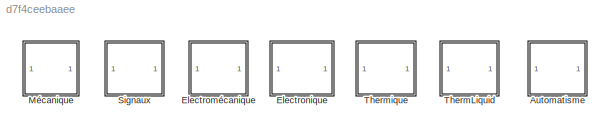
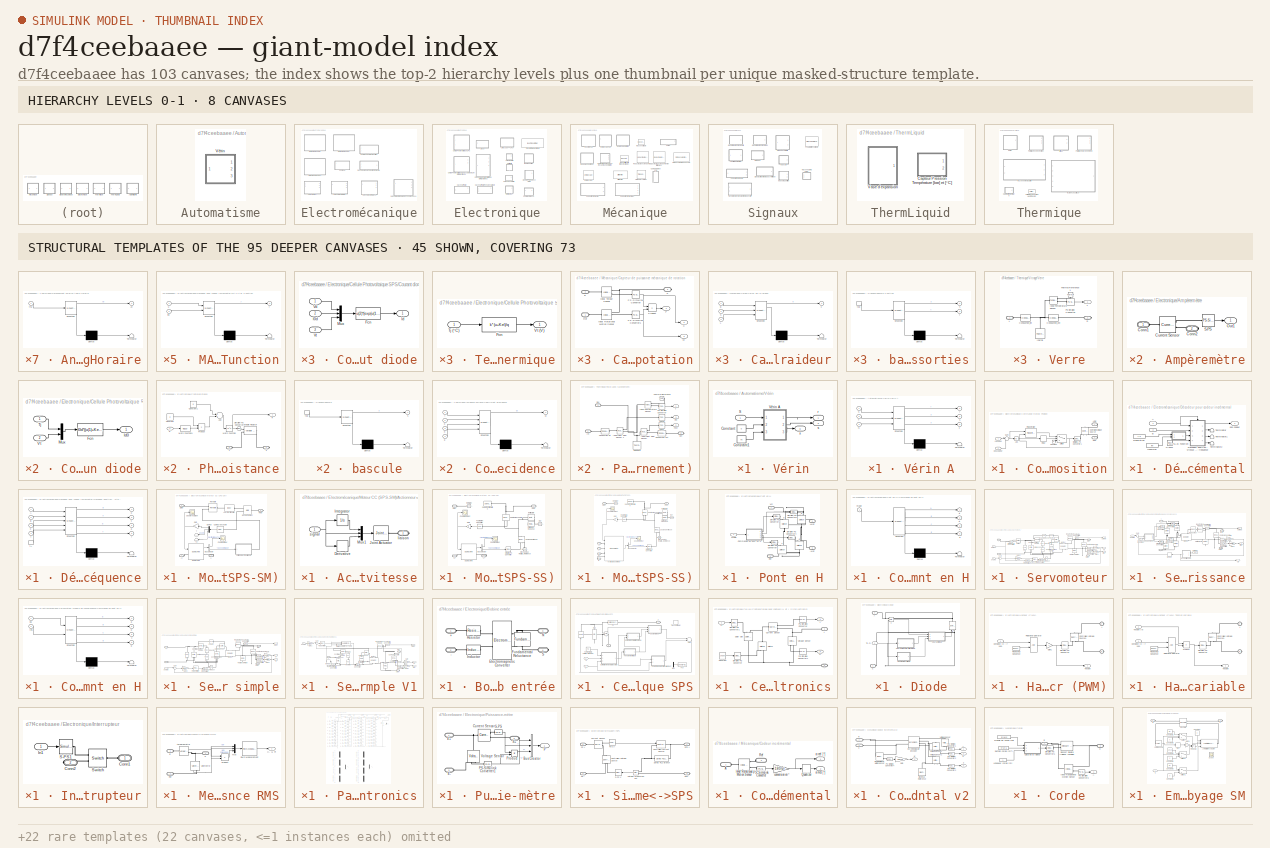
[diagram: thumbnail index - top-2 hierarchy levels (8 canvases) + 45 structural-template representatives of the remaining 95 canvases]
MODEL slx_d7f4ceebaaee
KIND library
CONFIG AbsTol = auto
CONFIG EnableMultiTasking = on
CONFIG FixedStep = auto
CONFIG MaxStep = auto
CONFIG MinStep = auto
CONFIG RelTol = 1e-3
CONFIG SampleTimeConstraint = Unconstrained
CONFIG Solver = ode45
CONFIG SolverName = ode45
CONFIG StartTime = 0.0
CONFIG StopTime = 10.0
BLOCK [SubSystem] Automatisme
  AncestorBlock = Library_SII/ThermLiquid
  Ports = []
  RequestExecContextInheritance = off
BLOCK [SubSystem] Automatisme/Vérin
  Ports = [1, 3]
  RequestExecContextInheritance = off
BLOCK [Constant] Automatisme/Vérin/Constant
  Value = T
BLOCK [Constant] Automatisme/Vérin/Constant1
  Value = N
BLOCK [Inport] Automatisme/Vérin/S
  IconDisplay = Port number
BLOCK [SubSystem] Automatisme/Vérin/Vérin A
  ErrorFcn = Stateflow.Translate.translate
  InitFcn = coder.extrinsic('tic')
  PermitHierarchicalResolution = ExplicitOnly
  Ports = [3, 3]
  RequestExecContextInheritance = off
  SFBlockType = Chart
  TreatAsAtomicUnit = on
BLOCK [Demux] Automatisme/Vérin/Vérin A/ Demux 
  Outputs = 1
  Ports = [1, 1]
BLOCK [S-Function] Automatisme/Vérin/Vérin A/ SFunction 
  EnableBusSupport = off
  FunctionName = sf_sfun
  PortCounts = [3 4]
  Ports = [3, 4]
  SFcnIsStateOwnerBlock = off
  SFunctionDeploymentMode = off
  Tag = Stateflow S-Function Library_SII 18
BLOCK [Terminator] Automatisme/Vérin/Vérin A/ Terminator 
BLOCK [Inport] Automatisme/Vérin/Vérin A/N
  IconDisplay = Port number
  Port = 3
BLOCK [Inport] Automatisme/Vérin/Vérin A/S
  IconDisplay = Port number
BLOCK [Inport] Automatisme/Vérin/Vérin A/T
  IconDisplay = Port number
  Port = 2
BLOCK [Outport] Automatisme/Vérin/Vérin A/r
  IconDisplay = Port number
BLOCK [Outport] Automatisme/Vérin/Vérin A/s
  IconDisplay = Port number
  Port = 2
BLOCK [Outport] Automatisme/Vérin/Vérin A/x
  IconDisplay = Port number
  Port = 3
BLOCK [Outport] Automatisme/Vérin/r
  IconDisplay = Port number
BLOCK [Outport] Automatisme/Vérin/s
  IconDisplay = Port number
  Port = 2
BLOCK [Outport] Automatisme/Vérin/x
  IconDisplay = Port number
  Port = 3
BLOCK [SubSystem] Electromécanique
  Ports = []
  RequestExecContextInheritance = off
BLOCK [SubSystem] Electromécanique/Commande moteur Position
  AncestorBlock = Library_SII/Electromécanique/Commande moteur\nPosition\n(pour codeur incrémental)
  Ports = [2, 0, 0, 0, 0, 0, 2]
  RequestExecContextInheritance = off
BLOCK [PMIOPort] Electromécanique/Commande moteur Position/+mot
  Side = Right
BLOCK [Abs] Electromécanique/Commande moteur Position/Abs
  SaturateOnIntegerOverflow = off
BLOCK [Constant] Electromécanique/Commande moteur Position/Constant
  Value = 0
BLOCK [Reference] Electromécanique/Commande moteur Position/Controlled Voltage Source  REF=fl_lib/Electrical/Electrical Sources/Controlled Voltage
Source
  Ports = [0, 0, 0, 0, 0, 1, 2]
  SourceBlock = fl_lib/Electrical/Electrical Sources/Controlled Voltage\nSource
  SourceProductBaseCode = SS
  SourceProductName = Simscape
  SourceType = Controlled Voltage\nSource
BLOCK [PMIOPort] Electromécanique/Commande moteur Position/GND
  Port = 2
  Side = Right
BLOCK [Reference] Electromécanique/Commande moteur Position/PID Controller  REF=simulink/Continuous/PID Controller
  Ports = [2, 1]
  SourceBlock = simulink/Continuous/PID Controller
  SourceProductBaseCode = SL
  SourceProductName = Simulink
  SourceType = PID 1dof
BLOCK [Relay] Electromécanique/Commande moteur Position/Relay
  InputProcessing = Elements as channels (sample based)
  OffSwitchValue = e/2
  OnSwitchValue = e
BLOCK [Reference] Electromécanique/Commande moteur Position/Simulink-PS Converter1  REF=nesl_utility/Simulink-PS
Converter
  Ports = [1, 0, 0, 0, 0, 0, 1]
  SourceBlock = nesl_utility/Simulink-PS\nConverter
  SourceProductBaseCode = SS
  SourceProductName = Simscape
  SourceType = Simulink-PS\nConverter
BLOCK [Sum] Electromécanique/Commande moteur Position/Sum
  IconShape = round
  InputSameDT = off
  Inputs = |+-
  OutDataTypeStr = Inherit: Inherit via internal rule
  Ports = [2, 1]
  SaturateOnIntegerOverflow = off
BLOCK [Switch] Electromécanique/Commande moteur Position/Switch
  Criteria = u2 > Threshold
  InputSameDT = off
  SaturateOnIntegerOverflow = off
BLOCK [Inport] Electromécanique/Commande moteur Position/cons pos
  IconDisplay = Port number
BLOCK [Inport] Electromécanique/Commande moteur Position/pos codeur
  IconDisplay = Port number
  Port = 2
BLOCK [SubSystem] Electromécanique/Décodeur pour codeur incrémental
  Ports = [2, 1]
  RequestExecContextInheritance = off
BLOCK [Inport] Electromécanique/Décodeur pour codeur incrémental/A
  IconDisplay = Port number
BLOCK [Inport] Electromécanique/Décodeur pour codeur incrémental/B
  IconDisplay = Port number
  Port = 2
BLOCK [Clock] Electromécanique/Décodeur pour codeur incrémental/Clock1
BLOCK [SubSystem] Electromécanique/Décodeur pour codeur incrémental/Décodeur position - vitesse accélération - fréquence
  ErrorFcn = Stateflow.Translate.translate
  PermitHierarchicalResolution = ExplicitOnly
  Ports = [4, 4, 0, 1]
  RequestExecContextInheritance = off
  SFBlockType = Chart
  TreatAsAtomicUnit = on
BLOCK [Demux] Electromécanique/Décodeur pour codeur incrémental/Décodeur position - vitesse accélération - fréquence/ Demux 
  Outputs = 1
  Ports = [1, 1]
BLOCK [S-Function] Electromécanique/Décodeur pour codeur incrémental/Décodeur position - vitesse accélération - fréquence/ SFunction 
  EnableBusSupport = off
  FunctionName = sf_sfun
  PortCounts = [5 5]
  Ports = [5, 5]
  SFcnIsStateOwnerBlock = off
  SFunctionDeploymentMode = off
  Tag = Stateflow S-Function Library_SII 9
BLOCK [Terminator] Electromécanique/Décodeur pour codeur incrémental/Décodeur position - vitesse accélération - fréquence/ Terminator 
BLOCK [Inport] Electromécanique/Décodeur pour codeur incrémental/Décodeur position - vitesse accélération - fréquence/A
  IconDisplay = Port number
BLOCK [Inport] Electromécanique/Décodeur pour codeur incrémental/Décodeur position - vitesse accélération - fréquence/B
  IconDisplay = Port number
  Port = 2
BLOCK [Outport] Electromécanique/Décodeur pour codeur incrémental/Décodeur position - vitesse accélération - fréquence/a
  IconDisplay = Port number
  Port = 3
BLOCK [Outport] Electromécanique/Décodeur pour codeur incrémental/Décodeur position - vitesse accélération - fréquence/f
  IconDisplay = Port number
  Port = 4
BLOCK [TriggerPort] Electromécanique/Décodeur pour codeur incrémental/Décodeur position - vitesse accélération - fréquence/fA
  Ports = [0, 1]
  ShowOutputPort = on
  StatesWhenEnabling = held
  TriggerType = either
  VariantControl = (inherit)
BLOCK [Inport] Electromécanique/Décodeur pour codeur incrémental/Décodeur position - vitesse accélération - fréquence/k
  IconDisplay = Port number
  Port = 3
BLOCK [Outport] Electromécanique/Décodeur pour codeur incrémental/Décodeur position - vitesse accélération - fréquence/p
  IconDisplay = Port number
BLOCK [Inport] Electromécanique/Décodeur pour codeur incrémental/Décodeur position - vitesse accélération - fréquence/t
  IconDisplay = Port number
  Port = 4
BLOCK [Outport] Electromécanique/Décodeur pour codeur incrémental/Décodeur position - vitesse accélération - fréquence/v
  IconDisplay = Port number
  Port = 2
BLOCK [SubSystem] Electromécanique/Décodeur pour codeur incrémental/MATLAB Function
  ErrorFcn = Stateflow.Translate.translate
  PermitHierarchicalResolution = ExplicitOnly
  Ports = [2, 1]
  RequestExecContextInheritance = off
  SFBlockType = MATLAB Function
  TreatAsAtomicUnit = on
BLOCK [Demux] Electromécanique/Décodeur pour codeur incrémental/MATLAB Function/ Demux 
  Outputs = 1
  Ports = [1, 1]
BLOCK [S-Function] Electromécanique/Décodeur pour codeur incrémental/MATLAB Function/ SFunction 
  EnableBusSupport = off
  FunctionName = sf_sfun
  PortCounts = [2 2]
  Ports = [2, 2]
  SFcnIsStateOwnerBlock = off
  SFunctionDeploymentMode = off
  Tag = Stateflow S-Function Library_SII 11
BLOCK [Terminator] Electromécanique/Décodeur pour codeur incrémental/MATLAB Function/ Terminator 
BLOCK [Inport] Electromécanique/Décodeur pour codeur incrémental/MATLAB Function/inv
  IconDisplay = Port number
  Port = 2
BLOCK [Inport] Electromécanique/Décodeur pour codeur incrémental/MATLAB Function/u
  IconDisplay = Port number
BLOCK [Outport] Electromécanique/Décodeur pour codeur incrémental/MATLAB Function/y
  IconDisplay = Port number
BLOCK [Constant] Electromécanique/Décodeur pour codeur incrémental/Résolution
  Value = r/2
BLOCK [Terminator] Electromécanique/Décodeur pour codeur incrémental/Terminator
BLOCK [Terminator] Electromécanique/Décodeur pour codeur incrémental/Terminator1
BLOCK [Terminator] Electromécanique/Décodeur pour codeur incrémental/Terminator2
BLOCK [Constant] Electromécanique/Décodeur pour codeur incrémental/inversion
  Value = inv
BLOCK [Outport] Electromécanique/Décodeur pour codeur incrémental/pos codeur
  IconDisplay = Port number
BLOCK [SubSystem] Electromécanique/Moteur CC (SPS-SM)
  Description = Moteur CC
  Ports = [0, 0, 0, 0, 0, 2, 2]
  RequestExecContextInheritance = off
  Tag = Moteur
BLOCK [PMIOPort] Electromécanique/Moteur CC (SPS-SM)/A+
  Port = 3
  Side = Left
BLOCK [PMIOPort] Electromécanique/Moteur CC (SPS-SM)/A-
  Port = 4
  Side = Right
BLOCK [SubSystem] Electromécanique/Moteur CC (SPS-SM)/Actionneur en vitesse
  Ports = [1, 0, 0, 0, 0, 0, 1]
  RequestExecContextInheritance = off
BLOCK [Derivative] Electromécanique/Moteur CC (SPS-SM)/Actionneur en vitesse/Derivative
BLOCK [Integrator] Electromécanique/Moteur CC (SPS-SM)/Actionneur en vitesse/Integrator
  Ports = [1, 1]
BLOCK [Reference] Electromécanique/Moteur CC (SPS-SM)/Actionneur en vitesse/Joint Actuator  REF=mblibv1/Sensors & 
Actuators/Joint Actuator
  Ports = [1, 0, 0, 0, 0, 0, 1]
  SourceBlock = mblibv1/Sensors & \nActuators/Joint Actuator
  SourceProductBaseCode = MS
  SourceProductName = Simscape Multibody
  SourceType = Joint Actuator
BLOCK [Mux] Electromécanique/Moteur CC (SPS-SM)/Actionneur en vitesse/Mux1
  DisplayOption = bar
  Inputs = 3
  Ports = [3, 1]
BLOCK [PMIOPort] Electromécanique/Moteur CC (SPS-SM)/Actionneur en vitesse/liaison
  Side = Right
BLOCK [Inport] Electromécanique/Moteur CC (SPS-SM)/Actionneur en vitesse/signal
  IconDisplay = Port number
BLOCK [Reference] Electromécanique/Moteur CC (SPS-SM)/Axe (inertie nulle)  REF=mblibv1/Bodies/Body
  Ports = [0, 0, 0, 0, 0, 1, 1]
  SourceBlock = mblibv1/Bodies/Body
  SourceProductBaseCode = MS
  SourceProductName = Simscape Multibody
  SourceType = Body
BLOCK [BusSelector] Electromécanique/Moteur CC (SPS-SM)/Bus Selector
  OutputAsBus = off
  OutputSignals = Electrical torque Te (n m),Speed wm (rad/s)
  Ports = [1, 2]
BLOCK [Reference] Electromécanique/Moteur CC (SPS-SM)/Capteur de couple  REF=mblibv1/Sensors & 
Actuators/Joint Sensor
  Ports = [0, 1, 0, 0, 0, 1]
  SourceBlock = mblibv1/Sensors & \nActuators/Joint Sensor
  SourceProductBaseCode = MS
  SourceProductName = Simscape Multibody
  SourceType = Joint Sensor
BLOCK [Scope] Electromécanique/Moteur CC (SPS-SM)/Couple moteur
  Floating = off
  NumInputPorts = 1
  Ports = [1]
  ScopeSpecificationString = C++SS(StrPVP('Location','[24, 604, 348, 843]'),StrPVP('Open','off'),StrPVP('ZoomMode','xonly'),MxPVP('AxesTitles',53,'struct(''axes1'',''%<SignalLabel>'')'),StrPVP('ShowLegends','off'),StrPVP('SaveName','ScopeData3'),StrPVP('DataFormat','StructureWithTime'),StrPVP('LimitDataPoints','off'),StrPVP('BlockParamSampleTime','0'),StrPVP('ScrollMode','off'),StrPVP('Decimation','1'),StrPVP('BlockParamSampl...<+15ch>  <repeated x3 — deduplicated; at blocks: Couple moteur>
BLOCK [Scope] Electromécanique/Moteur CC (SPS-SM)/Couple résistant
  Floating = off
  NumInputPorts = 1
  Ports = [1]
  ScopeSpecificationString = C++SS(StrPVP('Location','[357, 56, 681, 295]'),StrPVP('Open','off'),StrPVP('ZoomMode','xonly'),MxPVP('AxesTitles',53,'struct(''axes1'',''%<SignalLabel>'')'),StrPVP('ShowLegends','off'),StrPVP('YMin','-0.0005'),StrPVP('YMax','0.0065'),StrPVP('SaveName','ScopeData1'),StrPVP('DataFormat','StructureWithTime'),StrPVP('LimitDataPoints','off'),StrPVP('MaxDataPoints','500000'),StrPVP('BlockParamSampleTime...<+97ch>
BLOCK [Reference] Electromécanique/Moteur CC (SPS-SM)/DC Machine  REF=powerlib/Machines/DC Machine
  AttributesFormatString = \n
  Ports = [1, 1, 0, 0, 0, 1, 1]
  SourceBlock = powerlib/Machines/DC Machine
  SourceProductBaseCode = PS
  SourceProductName = Simscape Electrical
  SourceType = DC machine
BLOCK [Demux] Electromécanique/Moteur CC (SPS-SM)/Demux
  DisplayOption = bar
  Outputs = 3
  Ports = [1, 3]
BLOCK [Reference] Electromécanique/Moteur CC (SPS-SM)/Encastrement  REF=mblibv1/Joints/Weld
  Ports = [0, 0, 0, 0, 0, 2, 1]
  SourceBlock = mblibv1/Joints/Weld
  SourceProductBaseCode = MS
  SourceProductName = Simscape Multibody
  SourceType = Weld
BLOCK [Gain] Electromécanique/Moteur CC (SPS-SM)/Gain
  Gain = -1
  OutDataTypeStr = Inherit: Inherit via internal rule
  ParamDataTypeStr = Inherit: Inherit via internal rule
  SaturateOnIntegerOverflow = off
BLOCK [Reference] Electromécanique/Moteur CC (SPS-SM)/Revolute  REF=mblibv1/Joints/Revolute
  Ports = [0, 0, 0, 0, 0, 2, 1]
  SourceBlock = mblibv1/Joints/Revolute
  SourceProductBaseCode = MS
  SourceProductName = Simscape Multibody
  SourceType = Revolute
BLOCK [PMIOPort] Electromécanique/Moteur CC (SPS-SM)/Rotor
  Port = 2
  Side = Right
BLOCK [PMIOPort] Electromécanique/Moteur CC (SPS-SM)/Stator
  Side = Left
BLOCK [Terminator] Electromécanique/Moteur CC (SPS-SM)/T
BLOCK [Terminator] Electromécanique/Moteur CC (SPS-SM)/T1
BLOCK [SubSystem] Electromécanique/Moteur CC (SPS-SS)
  Description = Moteur CC
  Ports = [0, 0, 0, 0, 0, 2, 2]
  RequestExecContextInheritance = off
  Tag = Moteur
BLOCK [PMIOPort] Electromécanique/Moteur CC (SPS-SS)/A+
  Port = 3
  Side = Left
BLOCK [PMIOPort] Electromécanique/Moteur CC (SPS-SS)/A-
  Port = 4
  Side = Right
BLOCK [BusSelector] Electromécanique/Moteur CC (SPS-SS)/Bus Selector
  OutputAsBus = off
  OutputSignals = Electrical torque Te (n m),Speed wm (rad/s)
  Ports = [1, 2]
BLOCK [Reference] Electromécanique/Moteur CC (SPS-SS)/Capteur de couple  REF=fl_lib/Mechanical/Mechanical Sensors/Ideal Torque Sensor
  Ports = [0, 0, 0, 0, 0, 1, 2]
  SourceBlock = fl_lib/Mechanical/Mechanical Sensors/Ideal Torque Sensor
  SourceProductBaseCode = SS
  SourceProductName = Simscape
  SourceType = Ideal Torque Sensor
BLOCK [Scope] Electromécanique/Moteur CC (SPS-SS)/Couple moteur
  Floating = off
  NumInputPorts = 1
  Ports = [1]
BLOCK [Scope] Electromécanique/Moteur CC (SPS-SS)/Couple résistant
  Floating = off
  NumInputPorts = 1
  Ports = [1]
  ScopeSpecificationString = C++SS(StrPVP('Location','[850, 599, 1174, 838]'),StrPVP('Open','off'),StrPVP('ZoomMode','xonly'),MxPVP('AxesTitles',53,'struct(''axes1'',''%<SignalLabel>'')'),StrPVP('ShowLegends','off'),StrPVP('TimeRange','1'),StrPVP('YMin','-0'),StrPVP('YMax','0.0014'),StrPVP('SaveName','ScopeData1'),StrPVP('DataFormat','StructureWithTime'),StrPVP('LimitDataPoints','off'),StrPVP('MaxDataPoints','500000'),StrPVP(...<+118ch>
BLOCK [Reference] Electromécanique/Moteur CC (SPS-SS)/DC Machine  REF=powerlib/Machines/DC Machine
  AttributesFormatString = \n
  Ports = [1, 1, 0, 0, 0, 1, 1]
  SourceBlock = powerlib/Machines/DC Machine
  SourceProductBaseCode = PS
  SourceProductName = Simscape Electrical
  SourceType = DC machine
BLOCK [Reference] Electromécanique/Moteur CC (SPS-SS)/Frottement visqueux  REF=fl_lib/Mechanical/Rotational Elements/Rotational Damper
  Ports = [0, 0, 0, 0, 0, 1, 1]
  SourceBlock = fl_lib/Mechanical/Rotational Elements/Rotational Damper
  SourceProductBaseCode = SS
  SourceProductName = Simscape
  SourceType = Rotational Damper
BLOCK [Gain] Electromécanique/Moteur CC (SPS-SS)/Gain
  Gain = -1
  OutDataTypeStr = Inherit: Inherit via internal rule
  ParamDataTypeStr = Inherit: Inherit via internal rule
  SaturateOnIntegerOverflow = off
BLOCK [Reference] Electromécanique/Moteur CC (SPS-SS)/Inertie arbre  REF=fl_lib/Mechanical/Rotational Elements/Inertia
  Ports = [0, 0, 0, 0, 0, 1]
  SourceBlock = fl_lib/Mechanical/Rotational Elements/Inertia
  SourceProductBaseCode = SS
  SourceProductName = Simscape
  SourceType = Inertia
BLOCK [Reference] Electromécanique/Moteur CC (SPS-SS)/Mechanical Rotational Reference  REF=fl_lib/Mechanical/Rotational Elements/Mechanical
Rotational Reference
  Ports = [0, 0, 0, 0, 0, 1]
  SourceBlock = fl_lib/Mechanical/Rotational Elements/Mechanical\nRotational Reference
  SourceProductBaseCode = SS
  SourceProductName = Simscape
  SourceType = Mechanical\nRotational Reference
BLOCK [Reference] Electromécanique/Moteur CC (SPS-SS)/PS-Simulink Converter  REF=nesl_utility/PS-Simulink
Converter
  Ports = [0, 1, 0, 0, 0, 1]
  SourceBlock = nesl_utility/PS-Simulink\nConverter
  SourceProductBaseCode = SS
  SourceProductName = Simscape
  SourceType = PS-Simulink\nConverter
BLOCK [Reference] Electromécanique/Moteur CC (SPS-SS)/Ref  REF=fl_lib/Mechanical/Rotational Elements/Mechanical
Rotational Reference
  Ports = [0, 0, 0, 0, 0, 1]
  SourceBlock = fl_lib/Mechanical/Rotational Elements/Mechanical\nRotational Reference
  SourceProductBaseCode = SS
  SourceProductName = Simscape
  SourceType = Mechanical\nRotational Reference
BLOCK [Reference] Electromécanique/Moteur CC (SPS-SS)/Ref Stator  REF=fl_lib/Mechanical/Rotational Elements/Mechanical
Rotational Reference
  Ports = [0, 0, 0, 0, 0, 1]
  SourceBlock = fl_lib/Mechanical/Rotational Elements/Mechanical\nRotational Reference
  SourceProductBaseCode = SS
  SourceProductName = Simscape
  SourceType = Mechanical\nRotational Reference
BLOCK [PMIOPort] Electromécanique/Moteur CC (SPS-SS)/Rotor
  Port = 2
  Side = Right
BLOCK [Reference] Electromécanique/Moteur CC (SPS-SS)/Simulink-PS Converter  REF=nesl_utility/Simulink-PS
Converter
  Ports = [1, 0, 0, 0, 0, 0, 1]
  SourceBlock = nesl_utility/Simulink-PS\nConverter
  SourceProductBaseCode = SS
  SourceProductName = Simscape
  SourceType = Simulink-PS\nConverter
BLOCK [Reference] Electromécanique/Moteur CC (SPS-SS)/Solver Configuration  REF=nesl_utility/Solver
Configuration
  Ports = [0, 0, 0, 0, 0, 0, 1]
  SourceBlock = nesl_utility/Solver\nConfiguration
  SourceProductBaseCode = SS
  SourceProductName = Simscape
  SourceType = Solver\nConfiguration
BLOCK [Reference] Electromécanique/Moteur CC (SPS-SS)/Source de vitesse  REF=fl_lib/Mechanical/Mechanical Sources/Ideal Angular
Velocity Source
  Ports = [0, 0, 0, 0, 0, 1, 2]
  SourceBlock = fl_lib/Mechanical/Mechanical Sources/Ideal Angular\nVelocity Source
  SourceProductBaseCode = SS
  SourceProductName = Simscape
  SourceType = Ideal Angular\nVelocity Source
BLOCK [PMIOPort] Electromécanique/Moteur CC (SPS-SS)/Stator
  Side = Left
BLOCK [SubSystem] Electromécanique/Moteur PaP (SPS-SS)
  Description = Moteur PaP
  Ports = [0, 0, 0, 0, 0, 3, 3]
  RequestExecContextInheritance = off
  Tag = Moteur
BLOCK [PMIOPort] Electromécanique/Moteur PaP (SPS-SS)/A+
  Port = 3
  Side = Left
BLOCK [PMIOPort] Electromécanique/Moteur PaP (SPS-SS)/A-
  Port = 4
  Side = Right
BLOCK [PMIOPort] Electromécanique/Moteur PaP (SPS-SS)/B+
  Port = 5
  Side = Left
BLOCK [PMIOPort] Electromécanique/Moteur PaP (SPS-SS)/B-
  Port = 6
  Side = Right
BLOCK [BusSelector] Electromécanique/Moteur PaP (SPS-SS)/Bus Selector
  OutputAsBus = off
  OutputSignals = Electrical torque Te (n m),Speed wm (rad/s)
  Ports = [1, 2]
BLOCK [Reference] Electromécanique/Moteur PaP (SPS-SS)/Capteur de couple  REF=fl_lib/Mechanical/Mechanical Sensors/Ideal Torque Sensor
  Ports = [0, 0, 0, 0, 0, 1, 2]
  SourceBlock = fl_lib/Mechanical/Mechanical Sensors/Ideal Torque Sensor
  SourceProductBaseCode = SS
  SourceProductName = Simscape
  SourceType = Ideal Torque Sensor
BLOCK [Scope] Electromécanique/Moteur PaP (SPS-SS)/Couple moteur
  Floating = off
  NumInputPorts = 1
  Ports = [1]
BLOCK [Scope] Electromécanique/Moteur PaP (SPS-SS)/Couple résistant
  Floating = off
  NumInputPorts = 1
  Ports = [1]
  ScopeSpecificationString = C++SS(StrPVP('Location','[850, 599, 1174, 838]'),StrPVP('Open','off'),StrPVP('ZoomMode','xonly'),MxPVP('AxesTitles',53,'struct(''axes1'',''%<SignalLabel>'')'),StrPVP('ShowLegends','off'),StrPVP('TimeRange','1'),StrPVP('YMin','-0'),StrPVP('YMax','0.0014'),StrPVP('SaveName','ScopeData1'),StrPVP('DataFormat','StructureWithTime'),StrPVP('LimitDataPoints','off'),StrPVP('MaxDataPoints','500000'),StrPVP(...<+118ch>
BLOCK [Reference] Electromécanique/Moteur PaP (SPS-SS)/Frottement visqueux  REF=fl_lib/Mechanical/Rotational Elements/Rotational Damper
  Ports = [0, 0, 0, 0, 0, 1, 1]
  SourceBlock = fl_lib/Mechanical/Rotational Elements/Rotational Damper
  SourceProductBaseCode = SS
  SourceProductName = Simscape
  SourceType = Rotational Damper
BLOCK [Gain] Electromécanique/Moteur PaP (SPS-SS)/Gain
  Gain = -1
  OutDataTypeStr = Inherit: Inherit via internal rule
  ParamDataTypeStr = Inherit: Inherit via internal rule
  SaturateOnIntegerOverflow = off
BLOCK [Reference] Electromécanique/Moteur PaP (SPS-SS)/Hybrid Stepper Motor  REF=powerlib/Machines/Stepper Motor
  Ports = [1, 1, 0, 0, 0, 4]
  SourceBlock = powerlib/Machines/Stepper Motor
  SourceProductBaseCode = PS
  SourceProductName = Simscape Electrical
  SourceType = Stepper Motor
BLOCK [Reference] Electromécanique/Moteur PaP (SPS-SS)/Inertie arbre  REF=fl_lib/Mechanical/Rotational Elements/Inertia
  Ports = [0, 0, 0, 0, 0, 1]
  SourceBlock = fl_lib/Mechanical/Rotational Elements/Inertia
  SourceProductBaseCode = SS
  SourceProductName = Simscape
  SourceType = Inertia
BLOCK [Reference] Electromécanique/Moteur PaP (SPS-SS)/Mechanical Rotational Reference  REF=fl_lib/Mechanical/Rotational Elements/Mechanical
Rotational Reference
  Ports = [0, 0, 0, 0, 0, 1]
  SourceBlock = fl_lib/Mechanical/Rotational Elements/Mechanical\nRotational Reference
  SourceProductBaseCode = SS
  SourceProductName = Simscape
  SourceType = Mechanical\nRotational Reference
BLOCK [Reference] Electromécanique/Moteur PaP (SPS-SS)/PS-Simulink Converter  REF=nesl_utility/PS-Simulink
Converter
  Ports = [0, 1, 0, 0, 0, 1]
  SourceBlock = nesl_utility/PS-Simulink\nConverter
  SourceProductBaseCode = SS
  SourceProductName = Simscape
  SourceType = PS-Simulink\nConverter
BLOCK [Reference] Electromécanique/Moteur PaP (SPS-SS)/Ref  REF=fl_lib/Mechanical/Rotational Elements/Mechanical
Rotational Reference
  Ports = [0, 0, 0, 0, 0, 1]
  SourceBlock = fl_lib/Mechanical/Rotational Elements/Mechanical\nRotational Reference
  SourceProductBaseCode = SS
  SourceProductName = Simscape
  SourceType = Mechanical\nRotational Reference
BLOCK [Reference] Electromécanique/Moteur PaP (SPS-SS)/Ref Stator  REF=fl_lib/Mechanical/Rotational Elements/Mechanical
Rotational Reference
  Ports = [0, 0, 0, 0, 0, 1]
  SourceBlock = fl_lib/Mechanical/Rotational Elements/Mechanical\nRotational Reference
  SourceProductBaseCode = SS
  SourceProductName = Simscape
  SourceType = Mechanical\nRotational Reference
BLOCK [PMIOPort] Electromécanique/Moteur PaP (SPS-SS)/Rotor
  Port = 2
  Side = Right
BLOCK [Reference] Electromécanique/Moteur PaP (SPS-SS)/Simulink-PS Converter  REF=nesl_utility/Simulink-PS
Converter
  Ports = [1, 0, 0, 0, 0, 0, 1]
  SourceBlock = nesl_utility/Simulink-PS\nConverter
  SourceProductBaseCode = SS
  SourceProductName = Simscape
  SourceType = Simulink-PS\nConverter
BLOCK [Reference] Electromécanique/Moteur PaP (SPS-SS)/Solver Configuration  REF=nesl_utility/Solver
Configuration
  Ports = [0, 0, 0, 0, 0, 0, 1]
  SourceBlock = nesl_utility/Solver\nConfiguration
  SourceProductBaseCode = SS
  SourceProductName = Simscape
  SourceType = Solver\nConfiguration
BLOCK [Reference] Electromécanique/Moteur PaP (SPS-SS)/Source de vitesse  REF=fl_lib/Mechanical/Mechanical Sources/Ideal Angular
Velocity Source
  Ports = [0, 0, 0, 0, 0, 1, 2]
  SourceBlock = fl_lib/Mechanical/Mechanical Sources/Ideal Angular\nVelocity Source
  SourceProductBaseCode = SS
  SourceProductName = Simscape
  SourceType = Ideal Angular\nVelocity Source
BLOCK [PMIOPort] Electromécanique/Moteur PaP (SPS-SS)/Stator
  Side = Left
BLOCK [SubSystem] Electromécanique/Pont en H
  Ports = [1, 0, 0, 0, 0, 2, 2]
  RequestExecContextInheritance = off
BLOCK [PMIOPort] Electromécanique/Pont en H/+Mot
  Port = 2
  Side = Right
BLOCK [PMIOPort] Electromécanique/Pont en H/-Mot
  Port = 3
  Side = Right
BLOCK [SubSystem] Electromécanique/Pont en H/Commande du pont en H
  ErrorFcn = Stateflow.Translate.translate
  PermitHierarchicalResolution = ExplicitOnly
  Ports = [1, 4]
  RequestExecContextInheritance = off
  SFBlockType = MATLAB Function
  TreatAsAtomicUnit = on
BLOCK [Demux] Electromécanique/Pont en H/Commande du pont en H/ Demux 
  Outputs = 1
  Ports = [1, 1]
BLOCK [S-Function] Electromécanique/Pont en H/Commande du pont en H/ SFunction 
  EnableBusSupport = off
  FunctionName = sf_sfun
  PortCounts = [1 5]
  Ports = [1, 5]
  SFcnIsStateOwnerBlock = off
  SFunctionDeploymentMode = off
  Tag = Stateflow S-Function Library_SII 12
BLOCK [Terminator] Electromécanique/Pont en H/Commande du pont en H/ Terminator 
BLOCK [Outport] Electromécanique/Pont en H/Commande du pont en H/a
  IconDisplay = Port number
BLOCK [Outport] Electromécanique/Pont en H/Commande du pont en H/b
  IconDisplay = Port number
  Port = 2
BLOCK [Outport] Electromécanique/Pont en H/Commande du pont en H/c
  IconDisplay = Port number
  Port = 3
BLOCK [Outport] Electromécanique/Pont en H/Commande du pont en H/d
  IconDisplay = Port number
  Port = 4
BLOCK [Inport] Electromécanique/Pont en H/Commande du pont en H/mode
  IconDisplay = Port number
BLOCK [PMIOPort] Electromécanique/Pont en H/Ref
  Port = 4
  Side = Left
BLOCK [Reference] Electromécanique/Pont en H/Simulink-PS Converter1  REF=nesl_utility/Simulink-PS
Converter
  Ports = [1, 0, 0, 0, 0, 0, 1]
  SourceBlock = nesl_utility/Simulink-PS\nConverter
  SourceProductBaseCode = SS
  SourceProductName = Simscape
  SourceType = Simulink-PS\nConverter
BLOCK [Reference] Electromécanique/Pont en H/Simulink-PS Converter3  REF=nesl_utility/Simulink-PS
Converter
  Ports = [1, 0, 0, 0, 0, 0, 1]
  SourceBlock = nesl_utility/Simulink-PS\nConverter
  SourceProductBaseCode = SS
  SourceProductName = Simscape
  SourceType = Simulink-PS\nConverter
BLOCK [Reference] Electromécanique/Pont en H/Simulink-PS Converter4  REF=nesl_utility/Simulink-PS
Converter
  Ports = [1, 0, 0, 0, 0, 0, 1]
  SourceBlock = nesl_utility/Simulink-PS\nConverter
  SourceProductBaseCode = SS
  SourceProductName = Simscape
  SourceType = Simulink-PS\nConverter
BLOCK [Reference] Electromécanique/Pont en H/Simulink-PS Converter5  REF=nesl_utility/Simulink-PS
Converter
  Ports = [1, 0, 0, 0, 0, 0, 1]
  SourceBlock = nesl_utility/Simulink-PS\nConverter
  SourceProductBaseCode = SS
  SourceProductName = Simscape
  SourceType = Simulink-PS\nConverter
BLOCK [PMIOPort] Electromécanique/Pont en H/Vcc
  Side = Left
BLOCK [Reference] Electromécanique/Pont en H/a  REF=fl_lib/Electrical/Electrical Elements/Switch
  Ports = [0, 0, 0, 0, 0, 1, 2]
  SourceBlock = fl_lib/Electrical/Electrical Elements/Switch
  SourceProductBaseCode = SS
  SourceProductName = Simscape
  SourceType = Switch
BLOCK [Reference] Electromécanique/Pont en H/b  REF=fl_lib/Electrical/Electrical Elements/Switch
  Ports = [0, 0, 0, 0, 0, 1, 2]
  SourceBlock = fl_lib/Electrical/Electrical Elements/Switch
  SourceProductBaseCode = SS
  SourceProductName = Simscape
  SourceType = Switch
BLOCK [Reference] Electromécanique/Pont en H/c  REF=fl_lib/Electrical/Electrical Elements/Switch
  Ports = [0, 0, 0, 0, 0, 1, 2]
  SourceBlock = fl_lib/Electrical/Electrical Elements/Switch
  SourceProductBaseCode = SS
  SourceProductName = Simscape
  SourceType = Switch
BLOCK [Reference] Electromécanique/Pont en H/d  REF=fl_lib/Electrical/Electrical Elements/Switch
  Ports = [0, 0, 0, 0, 0, 1, 2]
  SourceBlock = fl_lib/Electrical/Electrical Elements/Switch
  SourceProductBaseCode = SS
  SourceProductName = Simscape
  SourceType = Switch
BLOCK [Inport] Electromécanique/Pont en H/mode
  IconDisplay = Port number
BLOCK [SubSystem] Electromécanique/Servomoteur
  Ports = [2, 3, 0, 0, 0, 2, 2]
  RequestExecContextInheritance = off
BLOCK [SubSystem] Electromécanique/Servomoteur modèle de connaissance
  Ports = [1, 3, 0, 0, 0, 2, 2]
  RequestExecContextInheritance = off
BLOCK [PMIOPort] Electromécanique/Servomoteur modèle de connaissance/+
  Side = Left
BLOCK [PMIOPort] Electromécanique/Servomoteur modèle de connaissance/-
  Port = 2
  Side = Left
BLOCK [Reference] Electromécanique/Servomoteur modèle de connaissance/Capteur angulaire  REF=fl_lib/Mechanical/Mechanical Sensors/Ideal Rotational
Motion Sensor
  Ports = [0, 0, 0, 0, 0, 1, 3]
  SourceBlock = fl_lib/Mechanical/Mechanical Sensors/Ideal Rotational\nMotion Sensor
  SourceProductBaseCode = SS
  SourceProductName = Simscape
  SourceType = Ideal Rotational\nMotion Sensor
BLOCK [Outport] Electromécanique/Servomoteur modèle de connaissance/Cm [Nm]
  IconDisplay = Port number
  Port = 3
BLOCK [SubSystem] Electromécanique/Servomoteur modèle de connaissance/Commande du pont en H
  ErrorFcn = Stateflow.Translate.translate
  MinAlgLoopOccurrences = on
  PermitHierarchicalResolution = ExplicitOnly
  Ports = [2, 4]
  RequestExecContextInheritance = off
  SFBlockType = MATLAB Function
  TreatAsAtomicUnit = on
BLOCK [Demux] Electromécanique/Servomoteur modèle de connaissance/Commande du pont en H/ Demux 
  Outputs = 1
  Ports = [1, 1]
BLOCK [S-Function] Electromécanique/Servomoteur modèle de connaissance/Commande du pont en H/ SFunction 
  EnableBusSupport = off
  FunctionName = sf_sfun
  PortCounts = [2 5]
  Ports = [2, 5]
  SFcnIsStateOwnerBlock = off
  SFunctionDeploymentMode = off
  Tag = Stateflow S-Function Library_SII 13
BLOCK [Terminator] Electromécanique/Servomoteur modèle de connaissance/Commande du pont en H/ Terminator 
BLOCK [Outport] Electromécanique/Servomoteur modèle de connaissance/Commande du pont en H/a
  IconDisplay = Port number
BLOCK [Outport] Electromécanique/Servomoteur modèle de connaissance/Commande du pont en H/b
  IconDisplay = Port number
  Port = 2
BLOCK [Outport] Electromécanique/Servomoteur modèle de connaissance/Commande du pont en H/c
  IconDisplay = Port number
  Port = 3
BLOCK [Outport] Electromécanique/Servomoteur modèle de connaissance/Commande du pont en H/d
  IconDisplay = Port number
  Port = 4
BLOCK [Inport] Electromécanique/Servomoteur modèle de connaissance/Commande du pont en H/da
  IconDisplay = Port number
BLOCK [Inport] Electromécanique/Servomoteur modèle de connaissance/Commande du pont en H/res
  IconDisplay = Port number
  Port = 2
BLOCK [Constant] Electromécanique/Servomoteur modèle de connaissance/Constant
  Value = res
BLOCK [SubSystem] Electromécanique/Servomoteur modèle de connaissance/Echantillonage
  ErrorFcn = Stateflow.Translate.translate
  PermitHierarchicalResolution = ExplicitOnly
  Ports = [2, 1]
  RequestExecContextInheritance = off
  SFBlockType = Chart
  TreatAsAtomicUnit = on
BLOCK [Demux] Electromécanique/Servomoteur modèle de connaissance/Echantillonage/ Demux 
  Outputs = 1
  Ports = [1, 1]
BLOCK [S-Function] Electromécanique/Servomoteur modèle de connaissance/Echantillonage/ SFunction 
  EnableBusSupport = off
  FunctionName = sf_sfun
  PortCounts = [2 2]
  Ports = [2, 2]
  SFcnIsStateOwnerBlock = off
  SFunctionDeploymentMode = off
  Tag = Stateflow S-Function Library_SII 14
BLOCK [Terminator] Electromécanique/Servomoteur modèle de connaissance/Echantillonage/ Terminator 
BLOCK [Inport] Electromécanique/Servomoteur modèle de connaissance/Echantillonage/e
  IconDisplay = Port number
  Port = 2
BLOCK [Outport] Electromécanique/Servomoteur modèle de connaissance/Echantillonage/s
  IconDisplay = Port number
BLOCK [Inport] Electromécanique/Servomoteur modèle de connaissance/Echantillonage/t
  IconDisplay = Port number
BLOCK [Reference] Electromécanique/Servomoteur modèle de connaissance/Frottements  REF=fl_lib/Mechanical/Rotational Elements/Rotational Friction
  Ports = [0, 0, 0, 0, 0, 1, 1]
  SourceBlock = fl_lib/Mechanical/Rotational Elements/Rotational Friction
  SourceProductBaseCode = SS
  SourceProductName = Simscape
  SourceType = Rotational Friction
BLOCK [Gain] Electromécanique/Servomoteur modèle de connaissance/Gain
  Gain = 180/pi
  OutDataTypeStr = Inherit: Inherit via internal rule
  ParamDataTypeStr = Inherit: Inherit via internal rule
  SaturateOnIntegerOverflow = off
BLOCK [Gain] Electromécanique/Servomoteur modèle de connaissance/Gain1
  Gain = 180/pi
  OutDataTypeStr = Inherit: Inherit via internal rule
  ParamDataTypeStr = Inherit: Inherit via internal rule
  SaturateOnIntegerOverflow = off
BLOCK [Reference] Electromécanique/Servomoteur modèle de connaissance/Ideal Torque Sensor  REF=fl_lib/Mechanical/Mechanical Sensors/Ideal Torque Sensor
  Ports = [0, 0, 0, 0, 0, 1, 2]
  SourceBlock = fl_lib/Mechanical/Mechanical Sensors/Ideal Torque Sensor
  SourceProductBaseCode = SS
  SourceProductName = Simscape
  SourceType = Ideal Torque Sensor
BLOCK [Memory] Electromécanique/Servomoteur modèle de connaissance/Memory
  InheritSampleTime = on
BLOCK [Reference] Electromécanique/Servomoteur modèle de connaissance/Moteur  REF=elec_lib/Actuators & Drivers/Rotational Actuators/DC Motor
  Ports = [0, 0, 0, 0, 0, 2, 2]
  SourceBlock = elec_lib/Actuators & Drivers/Rotational Actuators/DC Motor
  SourceProductBaseCode = SN
  SourceProductName = Simscape Electronics
  SourceType = DC Motor
BLOCK [Reference] Electromécanique/Servomoteur modèle de connaissance/PS-Simulink Converter  REF=nesl_utility/PS-Simulink
Converter
  Ports = [0, 1, 0, 0, 0, 1]
  SourceBlock = nesl_utility/PS-Simulink\nConverter
  SourceProductBaseCode = SS
  SourceProductName = Simscape
  SourceType = PS-Simulink\nConverter
BLOCK [Reference] Electromécanique/Servomoteur modèle de connaissance/PS-Simulink Converter1  REF=nesl_utility/PS-Simulink
Converter
  Ports = [0, 1, 0, 0, 0, 1]
  SourceBlock = nesl_utility/PS-Simulink\nConverter
  SourceProductBaseCode = SS
  SourceProductName = Simscape
  SourceType = PS-Simulink\nConverter
BLOCK [Reference] Electromécanique/Servomoteur modèle de connaissance/PS-Simulink Converter3  REF=nesl_utility/PS-Simulink
Converter
  Ports = [0, 1, 0, 0, 0, 1]
  SourceBlock = nesl_utility/PS-Simulink\nConverter
  SourceProductBaseCode = SS
  SourceProductName = Simscape
  SourceType = PS-Simulink\nConverter
BLOCK [Reference] Electromécanique/Servomoteur modèle de connaissance/Réducteur  REF=fl_lib/Mechanical/Mechanisms/Gear Box
  Ports = [0, 0, 0, 0, 0, 1, 1]
  SourceBlock = fl_lib/Mechanical/Mechanisms/Gear Box
  SourceProductBaseCode = SS
  SourceProductName = Simscape
  SourceType = Gear Box
BLOCK [Reference] Electromécanique/Servomoteur modèle de connaissance/Simulink-PS Converter1  REF=nesl_utility/Simulink-PS
Converter
  Ports = [1, 0, 0, 0, 0, 0, 1]
  SourceBlock = nesl_utility/Simulink-PS\nConverter
  SourceProductBaseCode = SS
  SourceProductName = Simscape
  SourceType = Simulink-PS\nConverter
BLOCK [Reference] Electromécanique/Servomoteur modèle de connaissance/Simulink-PS Converter3  REF=nesl_utility/Simulink-PS
Converter
  Ports = [1, 0, 0, 0, 0, 0, 1]
  SourceBlock = nesl_utility/Simulink-PS\nConverter
  SourceProductBaseCode = SS
  SourceProductName = Simscape
  SourceType = Simulink-PS\nConverter
BLOCK [Reference] Electromécanique/Servomoteur modèle de connaissance/Simulink-PS Converter4  REF=nesl_utility/Simulink-PS
Converter
  Ports = [1, 0, 0, 0, 0, 0, 1]
  SourceBlock = nesl_utility/Simulink-PS\nConverter
  SourceProductBaseCode = SS
  SourceProductName = Simscape
  SourceType = Simulink-PS\nConverter
BLOCK [Reference] Electromécanique/Servomoteur modèle de connaissance/Simulink-PS Converter5  REF=nesl_utility/Simulink-PS
Converter
  Ports = [1, 0, 0, 0, 0, 0, 1]
  SourceBlock = nesl_utility/Simulink-PS\nConverter
  SourceProductBaseCode = SS
  SourceProductName = Simscape
  SourceType = Simulink-PS\nConverter
BLOCK [Sum] Electromécanique/Servomoteur modèle de connaissance/Sum
  IconShape = round
  InputSameDT = off
  Inputs = |+-
  OutDataTypeStr = Inherit: Inherit via internal rule
  Ports = [2, 1]
  SaturateOnIntegerOverflow = off
BLOCK [Reference] Electromécanique/Servomoteur modèle de connaissance/a  REF=fl_lib/Electrical/Electrical Elements/Switch
  Ports = [0, 0, 0, 0, 0, 1, 2]
  SourceBlock = fl_lib/Electrical/Electrical Elements/Switch
  SourceProductBaseCode = SS
  SourceProductName = Simscape
  SourceType = Switch
BLOCK [Outport] Electromécanique/Servomoteur modèle de connaissance/a [°]
  IconDisplay = Port number
  Port = 2
BLOCK [Inport] Electromécanique/Servomoteur modèle de connaissance/angle [°]
  IconDisplay = Port number
BLOCK [Reference] Electromécanique/Servomoteur modèle de connaissance/b  REF=fl_lib/Electrical/Electrical Elements/Switch
  Ports = [0, 0, 0, 0, 0, 1, 2]
  SourceBlock = fl_lib/Electrical/Electrical Elements/Switch
  SourceProductBaseCode = SS
  SourceProductName = Simscape
  SourceType = Switch
BLOCK [Reference] Electromécanique/Servomoteur modèle de connaissance/c  REF=fl_lib/Electrical/Electrical Elements/Switch
  Ports = [0, 0, 0, 0, 0, 1, 2]
  SourceBlock = fl_lib/Electrical/Electrical Elements/Switch
  SourceProductBaseCode = SS
  SourceProductName = Simscape
  SourceType = Switch
BLOCK [Reference] Electromécanique/Servomoteur modèle de connaissance/d  REF=fl_lib/Electrical/Electrical Elements/Switch
  Ports = [0, 0, 0, 0, 0, 1, 2]
  SourceBlock = fl_lib/Electrical/Electrical Elements/Switch
  SourceProductBaseCode = SS
  SourceProductName = Simscape
  SourceType = Switch
BLOCK [Constant] Electromécanique/Servomoteur modèle de connaissance/période
  Value = 2e-3
BLOCK [PMIOPort] Electromécanique/Servomoteur modèle de connaissance/rotor
  Port = 3
  Side = Right
BLOCK [PMIOPort] Electromécanique/Servomoteur modèle de connaissance/stator
  Port = 4
  Side = Right
BLOCK [Outport] Electromécanique/Servomoteur modèle de connaissance/w [°//s]
  IconDisplay = Port number
BLOCK [SubSystem] Electromécanique/Servomoteur simple
  AncestorBlock = Library_SII/Electromécanique/Servomoteur
  Ports = [1, 3, 0, 0, 0, 2, 2]
  RequestExecContextInheritance = off
BLOCK [SubSystem] Electromécanique/Servomoteur simple V1
  Ports = [1, 3, 0, 0, 0, 2, 2]
  RequestExecContextInheritance = off
BLOCK [PMIOPort] Electromécanique/Servomoteur simple V1/+
  Side = Left
BLOCK [PMIOPort] Electromécanique/Servomoteur simple V1/-
  Port = 2
  Side = Left
BLOCK [Outport] Electromécanique/Servomoteur simple V1/C [Nm]
  IconDisplay = Port number
  Port = 3
BLOCK [Reference] Electromécanique/Servomoteur simple V1/Capteur angulaire  REF=fl_lib/Mechanical/Mechanical Sensors/Ideal Rotational
Motion Sensor
  Ports = [0, 0, 0, 0, 0, 1, 3]
  SourceBlock = fl_lib/Mechanical/Mechanical Sensors/Ideal Rotational\nMotion Sensor
  SourceProductBaseCode = SS
  SourceProductName = Simscape
  SourceType = Ideal Rotational\nMotion Sensor
BLOCK [Reference] Electromécanique/Servomoteur simple V1/Controlled Current Source  REF=fl_lib/Electrical/Electrical Sources/Controlled Current
Source
  Ports = [0, 0, 0, 0, 0, 1, 2]
  SourceBlock = fl_lib/Electrical/Electrical Sources/Controlled Current\nSource
  SourceProductBaseCode = SS
  SourceProductName = Simscape
  SourceType = Controlled Current\nSource
BLOCK [Reference] Electromécanique/Servomoteur simple V1/Controlled Voltage Source  REF=fl_lib/Electrical/Electrical Sources/Controlled Voltage
Source
  Ports = [0, 0, 0, 0, 0, 1, 2]
  SourceBlock = fl_lib/Electrical/Electrical Sources/Controlled Voltage\nSource
  SourceProductBaseCode = SS
  SourceProductName = Simscape
  SourceType = Controlled Voltage\nSource
BLOCK [Reference] Electromécanique/Servomoteur simple V1/Current Sensor  REF=fl_lib/Electrical/Electrical Sensors/Current Sensor
  Ports = [0, 0, 0, 0, 0, 1, 2]
  SourceBlock = fl_lib/Electrical/Electrical Sensors/Current Sensor
  SourceProductBaseCode = SS
  SourceProductName = Simscape
  SourceType = Current Sensor
BLOCK [Gain] Electromécanique/Servomoteur simple V1/Gain
  Gain = 180/pi
  OutDataTypeStr = Inherit: Inherit via internal rule
  ParamDataTypeStr = Inherit: Inherit via internal rule
  SaturateOnIntegerOverflow = off
BLOCK [Gain] Electromécanique/Servomoteur simple V1/Gain1
  Gain = 180/pi
  OutDataTypeStr = Inherit: Inherit via internal rule
  ParamDataTypeStr = Inherit: Inherit via internal rule
  SaturateOnIntegerOverflow = off
BLOCK [Gain] Electromécanique/Servomoteur simple V1/Gain2
  Gain = pi/180
  OutDataTypeStr = Inherit: Inherit via internal rule
  ParamDataTypeStr = Inherit: Inherit via internal rule
  SaturateOnIntegerOverflow = off
BLOCK [Gain] Electromécanique/Servomoteur simple V1/Gain3
  Gain = -1
  OutDataTypeStr = Inherit: Inherit via internal rule
  ParamDataTypeStr = Inherit: Inherit via internal rule
  SaturateOnIntegerOverflow = off
BLOCK [Reference] Electromécanique/Servomoteur simple V1/Ideal Torque Sensor  REF=fl_lib/Mechanical/Mechanical Sensors/Ideal Torque Sensor
  Ports = [0, 0, 0, 0, 0, 1, 2]
  SourceBlock = fl_lib/Mechanical/Mechanical Sensors/Ideal Torque Sensor
  SourceProductBaseCode = SS
  SourceProductName = Simscape
  SourceType = Ideal Torque Sensor
BLOCK [Reference] Electromécanique/Servomoteur simple V1/Inductor  REF=fl_lib/Electrical/Electrical Elements/Inductor
  Ports = [0, 0, 0, 0, 0, 1, 1]
  SourceBlock = fl_lib/Electrical/Electrical Elements/Inductor
  SourceProductBaseCode = SS
  SourceProductName = Simscape
  SourceType = Inductor
BLOCK [Memory] Electromécanique/Servomoteur simple V1/Memory1
  InheritSampleTime = on
  LinearizeMemory = on
BLOCK [Reference] Electromécanique/Servomoteur simple V1/Moteur  REF=elec_lib/Actuators & Drivers/Rotational Actuators/DC Motor
  Ports = [0, 0, 0, 0, 0, 2, 2]
  SourceBlock = elec_lib/Actuators & Drivers/Rotational Actuators/DC Motor
  SourceProductBaseCode = SN
  SourceProductName = Simscape Electronics
  SourceType = DC Motor
BLOCK [Reference] Electromécanique/Servomoteur simple V1/PID Controller  REF=simulink/Continuous/PID Controller
  Ports = [1, 1]
  SourceBlock = simulink/Continuous/PID Controller
  SourceProductBaseCode = SL
  SourceProductName = Simulink
  SourceType = PID 1dof
BLOCK [Reference] Electromécanique/Servomoteur simple V1/PS-Simulink Converter  REF=nesl_utility/PS-Simulink
Converter
  Ports = [0, 1, 0, 0, 0, 1]
  SourceBlock = nesl_utility/PS-Simulink\nConverter
  SourceProductBaseCode = SS
  SourceProductName = Simscape
  SourceType = PS-Simulink\nConverter
BLOCK [Reference] Electromécanique/Servomoteur simple V1/PS-Simulink Converter1  REF=nesl_utility/PS-Simulink
Converter
  Ports = [0, 1, 0, 0, 0, 1]
  SourceBlock = nesl_utility/PS-Simulink\nConverter
  SourceProductBaseCode = SS
  SourceProductName = Simscape
  SourceType = PS-Simulink\nConverter
BLOCK [Reference] Electromécanique/Servomoteur simple V1/PS-Simulink Converter2  REF=nesl_utility/PS-Simulink
Converter
  Ports = [0, 1, 0, 0, 0, 1]
  SourceBlock = nesl_utility/PS-Simulink\nConverter
  SourceProductBaseCode = SS
  SourceProductName = Simscape
  SourceType = PS-Simulink\nConverter
BLOCK [Reference] Electromécanique/Servomoteur simple V1/PS-Simulink Converter3  REF=nesl_utility/PS-Simulink
Converter
  Ports = [0, 1, 0, 0, 0, 1]
  SourceBlock = nesl_utility/PS-Simulink\nConverter
  SourceProductBaseCode = SS
  SourceProductName = Simscape
  SourceType = PS-Simulink\nConverter
BLOCK [Reference] Electromécanique/Servomoteur simple V1/Resistor  REF=fl_lib/Electrical/Electrical Elements/Resistor
  Ports = [0, 0, 0, 0, 0, 1, 1]
  SourceBlock = fl_lib/Electrical/Electrical Elements/Resistor
  SourceProductBaseCode = SS
  SourceProductName = Simscape
  SourceType = Resistor
BLOCK [Reference] Electromécanique/Servomoteur simple V1/Rotational Friction  REF=fl_lib/Mechanical/Rotational Elements/Rotational Friction
  Ports = [0, 0, 0, 0, 0, 1, 1]
  SourceBlock = fl_lib/Mechanical/Rotational Elements/Rotational Friction
  SourceProductBaseCode = SS
  SourceProductName = Simscape
  SourceType = Rotational Friction
BLOCK [Reference] Electromécanique/Servomoteur simple V1/Saturation Dynamic  REF=simulink/Discontinuities/Saturation
Dynamic
  Ports = [3, 1]
  SourceBlock = simulink/Discontinuities/Saturation\nDynamic
  SourceProductBaseCode = SL
  SourceProductName = Simulink
  SourceType = Saturation Dynamic
BLOCK [Reference] Electromécanique/Servomoteur simple V1/Simulink-PS Converter  REF=nesl_utility/Simulink-PS
Converter
  Ports = [1, 0, 0, 0, 0, 0, 1]
  SourceBlock = nesl_utility/Simulink-PS\nConverter
  SourceProductBaseCode = SS
  SourceProductName = Simscape
  SourceType = Simulink-PS\nConverter
BLOCK [Sum] Electromécanique/Servomoteur simple V1/Sum
  IconShape = round
  InputSameDT = off
  Inputs = |+-
  OutDataTypeStr = Inherit: Inherit via internal rule
  Ports = [2, 1]
  SaturateOnIntegerOverflow = off
BLOCK [Reference] Electromécanique/Servomoteur simple V1/Voltage Sensor  REF=fl_lib/Electrical/Electrical Sensors/Voltage Sensor
  Ports = [0, 0, 0, 0, 0, 1, 2]
  SourceBlock = fl_lib/Electrical/Electrical Sensors/Voltage Sensor
  SourceProductBaseCode = SS
  SourceProductName = Simscape
  SourceType = Voltage Sensor
BLOCK [Outport] Electromécanique/Servomoteur simple V1/a [°]
  IconDisplay = Port number
  Port = 2
BLOCK [Inport] Electromécanique/Servomoteur simple V1/angle [°]
  IconDisplay = Port number
BLOCK [PMIOPort] Electromécanique/Servomoteur simple V1/rotor
  Port = 3
  Side = Right
BLOCK [PMIOPort] Electromécanique/Servomoteur simple V1/stator
  Port = 4
  Side = Right
BLOCK [Outport] Electromécanique/Servomoteur simple V1/w [°//s]
  IconDisplay = Port number
BLOCK [PMIOPort] Electromécanique/Servomoteur simple/+
  Side = Left
BLOCK [PMIOPort] Electromécanique/Servomoteur simple/-
  Port = 2
  Side = Left
BLOCK [Outport] Electromécanique/Servomoteur simple/C [Nm]
  IconDisplay = Port number
  Port = 3
BLOCK [Reference] Electromécanique/Servomoteur simple/Capteur angulaire  REF=fl_lib/Mechanical/Mechanical Sensors/Ideal Rotational
Motion Sensor
  Ports = [0, 0, 0, 0, 0, 1, 3]
  SourceBlock = fl_lib/Mechanical/Mechanical Sensors/Ideal Rotational\nMotion Sensor
  SourceProductBaseCode = SS
  SourceProductName = Simscape
  SourceType = Ideal Rotational\nMotion Sensor
BLOCK [Reference] Electromécanique/Servomoteur simple/Controlled Current Source  REF=fl_lib/Electrical/Electrical Sources/Controlled Current
Source
  Ports = [0, 0, 0, 0, 0, 1, 2]
  SourceBlock = fl_lib/Electrical/Electrical Sources/Controlled Current\nSource
  SourceProductBaseCode = SS
  SourceProductName = Simscape
  SourceType = Controlled Current\nSource
BLOCK [Reference] Electromécanique/Servomoteur simple/Controlled Voltage Source  REF=fl_lib/Electrical/Electrical Sources/Controlled Voltage
Source
  Ports = [0, 0, 0, 0, 0, 1, 2]
  SourceBlock = fl_lib/Electrical/Electrical Sources/Controlled Voltage\nSource
  SourceProductBaseCode = SS
  SourceProductName = Simscape
  SourceType = Controlled Voltage\nSource
BLOCK [Reference] Electromécanique/Servomoteur simple/Current Sensor  REF=fl_lib/Electrical/Electrical Sensors/Current Sensor
  Ports = [0, 0, 0, 0, 0, 1, 2]
  SourceBlock = fl_lib/Electrical/Electrical Sensors/Current Sensor
  SourceProductBaseCode = SS
  SourceProductName = Simscape
  SourceType = Current Sensor
BLOCK [Gain] Electromécanique/Servomoteur simple/Gain
  Gain = 180/pi
  OutDataTypeStr = Inherit: Inherit via internal rule
  ParamDataTypeStr = Inherit: Inherit via internal rule
  SaturateOnIntegerOverflow = off
BLOCK [Gain] Electromécanique/Servomoteur simple/Gain1
  Gain = 180/pi
  OutDataTypeStr = Inherit: Inherit via internal rule
  ParamDataTypeStr = Inherit: Inherit via internal rule
  SaturateOnIntegerOverflow = off
BLOCK [Gain] Electromécanique/Servomoteur simple/Gain2
  Gain = pi/180
  OutDataTypeStr = Inherit: Inherit via internal rule
  ParamDataTypeStr = Inherit: Inherit via internal rule
  SaturateOnIntegerOverflow = off
BLOCK [Reference] Electromécanique/Servomoteur simple/Ideal Torque Sensor  REF=fl_lib/Mechanical/Mechanical Sensors/Ideal Torque Sensor
  Ports = [0, 0, 0, 0, 0, 1, 2]
  SourceBlock = fl_lib/Mechanical/Mechanical Sensors/Ideal Torque Sensor
  SourceProductBaseCode = SS
  SourceProductName = Simscape
  SourceType = Ideal Torque Sensor
BLOCK [Reference] Electromécanique/Servomoteur simple/Inductor  REF=fl_lib/Electrical/Electrical Elements/Inductor
  Ports = [0, 0, 0, 0, 0, 1, 1]
  SourceBlock = fl_lib/Electrical/Electrical Elements/Inductor
  SourceProductBaseCode = SS
  SourceProductName = Simscape
  SourceType = Inductor
BLOCK [Reference] Electromécanique/Servomoteur simple/Moteur  REF=elec_lib/Actuators & Drivers/Rotational Actuators/DC Motor
  Ports = [0, 0, 0, 0, 0, 2, 2]
  SourceBlock = elec_lib/Actuators & Drivers/Rotational Actuators/DC Motor
  SourceProductBaseCode = SN
  SourceProductName = Simscape Electronics
  SourceType = DC Motor
BLOCK [Reference] Electromécanique/Servomoteur simple/PID Controller  REF=simulink/Continuous/PID Controller
  Ports = [1, 1]
  SourceBlock = simulink/Continuous/PID Controller
  SourceProductBaseCode = SL
  SourceProductName = Simulink
  SourceType = PID 1dof
BLOCK [Reference] Electromécanique/Servomoteur simple/PS Abs  REF=fl_lib/Physical Signals/Nonlinear Operators/PS Abs
  Ports = [0, 0, 0, 0, 0, 1, 1]
  SourceBlock = fl_lib/Physical Signals/Nonlinear Operators/PS Abs
  SourceProductBaseCode = SS
  SourceProductName = Simscape
  SourceType = PS Abs
BLOCK [Reference] Electromécanique/Servomoteur simple/PS Product  REF=fl_lib/Physical Signals/Functions/PS Product
  Ports = [0, 0, 0, 0, 0, 2, 1]
  SourceBlock = fl_lib/Physical Signals/Functions/PS Product
  SourceProductBaseCode = SS
  SourceProductName = Simscape
  SourceType = PS Product
BLOCK [Reference] Electromécanique/Servomoteur simple/PS-Simulink Converter  REF=nesl_utility/PS-Simulink
Converter
  Ports = [0, 1, 0, 0, 0, 1]
  SourceBlock = nesl_utility/PS-Simulink\nConverter
  SourceProductBaseCode = SS
  SourceProductName = Simscape
  SourceType = PS-Simulink\nConverter
BLOCK [Reference] Electromécanique/Servomoteur simple/PS-Simulink Converter1  REF=nesl_utility/PS-Simulink
Converter
  Ports = [0, 1, 0, 0, 0, 1]
  SourceBlock = nesl_utility/PS-Simulink\nConverter
  SourceProductBaseCode = SS
  SourceProductName = Simscape
  SourceType = PS-Simulink\nConverter
BLOCK [Reference] Electromécanique/Servomoteur simple/PS-Simulink Converter3  REF=nesl_utility/PS-Simulink
Converter
  Ports = [0, 1, 0, 0, 0, 1]
  SourceBlock = nesl_utility/PS-Simulink\nConverter
  SourceProductBaseCode = SS
  SourceProductName = Simscape
  SourceType = PS-Simulink\nConverter
BLOCK [Reference] Electromécanique/Servomoteur simple/R  REF=fl_lib/Electrical/Electrical Elements/Resistor
  Ports = [0, 0, 0, 0, 0, 1, 1]
  SourceBlock = fl_lib/Electrical/Electrical Elements/Resistor
  SourceProductBaseCode = SS
  SourceProductName = Simscape
  SourceType = Resistor
BLOCK [Reference] Electromécanique/Servomoteur simple/R0  REF=fl_lib/Electrical/Electrical Elements/Resistor
  Ports = [0, 0, 0, 0, 0, 1, 1]
  SourceBlock = fl_lib/Electrical/Electrical Elements/Resistor
  SourceProductBaseCode = SS
  SourceProductName = Simscape
  SourceType = Resistor
BLOCK [Reference] Electromécanique/Servomoteur simple/Rotational Friction  REF=fl_lib/Mechanical/Rotational Elements/Rotational Friction
  Ports = [0, 0, 0, 0, 0, 1, 1]
  SourceBlock = fl_lib/Mechanical/Rotational Elements/Rotational Friction
  SourceProductBaseCode = SS
  SourceProductName = Simscape
  SourceType = Rotational Friction
BLOCK [Reference] Electromécanique/Servomoteur simple/Simulink-PS Converter1  REF=nesl_utility/Simulink-PS
Converter
  Ports = [1, 0, 0, 0, 0, 0, 1]
  SourceBlock = nesl_utility/Simulink-PS\nConverter
  SourceProductBaseCode = SS
  SourceProductName = Simscape
  SourceType = Simulink-PS\nConverter
BLOCK [Sum] Electromécanique/Servomoteur simple/Sum
  IconShape = round
  InputSameDT = off
  Inputs = |+-
  OutDataTypeStr = Inherit: Inherit via internal rule
  Ports = [2, 1]
  SaturateOnIntegerOverflow = off
BLOCK [Reference] Electromécanique/Servomoteur simple/Voltage Sensor  REF=fl_lib/Electrical/Electrical Sensors/Voltage Sensor
  Ports = [0, 0, 0, 0, 0, 1, 2]
  SourceBlock = fl_lib/Electrical/Electrical Sensors/Voltage Sensor
  SourceProductBaseCode = SS
  SourceProductName = Simscape
  SourceType = Voltage Sensor
BLOCK [Outport] Electromécanique/Servomoteur simple/a
  IconDisplay = Port number
  Port = 2
BLOCK [Inport] Electromécanique/Servomoteur simple/angle [°]
  IconDisplay = Port number
BLOCK [PMIOPort] Electromécanique/Servomoteur simple/rotor
  Port = 3
  Side = Right
BLOCK [PMIOPort] Electromécanique/Servomoteur simple/stator
  Port = 4
  Side = Right
BLOCK [Outport] Electromécanique/Servomoteur simple/w
  IconDisplay = Port number
BLOCK [PMIOPort] Electromécanique/Servomoteur/+
  Side = Left
BLOCK [PMIOPort] Electromécanique/Servomoteur/-
  Port = 2
  Side = Left
BLOCK [Reference] Electromécanique/Servomoteur/Capteur angulaire  REF=fl_lib/Mechanical/Mechanical Sensors/Ideal Rotational
Motion Sensor
  Ports = [0, 0, 0, 0, 0, 1, 3]
  SourceBlock = fl_lib/Mechanical/Mechanical Sensors/Ideal Rotational\nMotion Sensor
  SourceProductBaseCode = SS
  SourceProductName = Simscape
  SourceType = Ideal Rotational\nMotion Sensor
BLOCK [Outport] Electromécanique/Servomoteur/Cm [Nm]
  IconDisplay = Port number
  Port = 3
BLOCK [Reference] Electromécanique/Servomoteur/Compare To Constant  REF=simulink/Logic and Bit
Operations/Compare
To Constant
  Ports = [1, 1]
  SourceBlock = simulink/Logic and Bit\nOperations/Compare\nTo Constant
  SourceProductBaseCode = SL
  SourceProductName = Simulink
  SourceType = Compare To Constant
BLOCK [Reference] Electromécanique/Servomoteur/Controlled Current Source  REF=fl_lib/Electrical/Electrical Sources/Controlled Current
Source
  Ports = [0, 0, 0, 0, 0, 1, 2]
  SourceBlock = fl_lib/Electrical/Electrical Sources/Controlled Current\nSource
  SourceProductBaseCode = SS
  SourceProductName = Simscape
  SourceType = Controlled Current\nSource
BLOCK [Reference] Electromécanique/Servomoteur/Controlled Voltage Source  REF=fl_lib/Electrical/Electrical Sources/Controlled Voltage
Source
  Ports = [0, 0, 0, 0, 0, 1, 2]
  SourceBlock = fl_lib/Electrical/Electrical Sources/Controlled Voltage\nSource
  SourceProductBaseCode = SS
  SourceProductName = Simscape
  SourceType = Controlled Voltage\nSource
BLOCK [Reference] Electromécanique/Servomoteur/Current Sensor  REF=fl_lib/Electrical/Electrical Sensors/Current Sensor
  Ports = [0, 0, 0, 0, 0, 1, 2]
  SourceBlock = fl_lib/Electrical/Electrical Sensors/Current Sensor
  SourceProductBaseCode = SS
  SourceProductName = Simscape
  SourceType = Current Sensor
BLOCK [Gain] Electromécanique/Servomoteur/Gain
  Gain = 180/pi
  OutDataTypeStr = Inherit: Inherit via internal rule
  ParamDataTypeStr = Inherit: Inherit via internal rule
  SaturateOnIntegerOverflow = off
BLOCK [Gain] Electromécanique/Servomoteur/Gain1
  Gain = 180/pi
  OutDataTypeStr = Inherit: Inherit via internal rule
  ParamDataTypeStr = Inherit: Inherit via internal rule
  SaturateOnIntegerOverflow = off
BLOCK [Gain] Electromécanique/Servomoteur/Gain2
  Gain = pi/180
  OutDataTypeStr = Inherit: Inherit via internal rule
  ParamDataTypeStr = Inherit: Inherit via internal rule
  SaturateOnIntegerOverflow = off
BLOCK [Reference] Electromécanique/Servomoteur/Ideal Torque Sensor  REF=fl_lib/Mechanical/Mechanical Sensors/Ideal Torque Sensor
  Ports = [0, 0, 0, 0, 0, 1, 2]
  SourceBlock = fl_lib/Mechanical/Mechanical Sensors/Ideal Torque Sensor
  SourceProductBaseCode = SS
  SourceProductName = Simscape
  SourceType = Ideal Torque Sensor
BLOCK [Reference] Electromécanique/Servomoteur/Inductor  REF=fl_lib/Electrical/Electrical Elements/Inductor
  Ports = [0, 0, 0, 0, 0, 1, 1]
  SourceBlock = fl_lib/Electrical/Electrical Elements/Inductor
  SourceProductBaseCode = SS
  SourceProductName = Simscape
  SourceType = Inductor
BLOCK [Reference] Electromécanique/Servomoteur/Moteur  REF=elec_lib/Actuators & Drivers/Rotational Actuators/DC Motor
  Ports = [0, 0, 0, 0, 0, 2, 2]
  SourceBlock = elec_lib/Actuators & Drivers/Rotational Actuators/DC Motor
  SourceProductBaseCode = SN
  SourceProductName = Simscape Electronics
  SourceType = DC Motor
BLOCK [Inport] Electromécanique/Servomoteur/ON//OFF
  IconDisplay = Port number
  Port = 2
BLOCK [Reference] Electromécanique/Servomoteur/PID Controller  REF=simulink/Continuous/PID Controller
  Ports = [2, 1]
  SourceBlock = simulink/Continuous/PID Controller
  SourceProductBaseCode = SL
  SourceProductName = Simulink
  SourceType = PID 1dof
BLOCK [Reference] Electromécanique/Servomoteur/PS Abs  REF=fl_lib/Physical Signals/Nonlinear Operators/PS Abs
  Ports = [0, 0, 0, 0, 0, 1, 1]
  SourceBlock = fl_lib/Physical Signals/Nonlinear Operators/PS Abs
  SourceProductBaseCode = SS
  SourceProductName = Simscape
  SourceType = PS Abs
BLOCK [Reference] Electromécanique/Servomoteur/PS Dead Zone  REF=fl_lib/Physical Signals/Nonlinear Operators/PS Dead Zone
  Ports = [0, 0, 0, 0, 0, 1, 1]
  SourceBlock = fl_lib/Physical Signals/Nonlinear Operators/PS Dead Zone
  SourceProductBaseCode = SS
  SourceProductName = Simscape
  SourceType = PS Dead Zone
BLOCK [Reference] Electromécanique/Servomoteur/PS Product  REF=fl_lib/Physical Signals/Functions/PS Product
  Ports = [0, 0, 0, 0, 0, 2, 1]
  SourceBlock = fl_lib/Physical Signals/Functions/PS Product
  SourceProductBaseCode = SS
  SourceProductName = Simscape
  SourceType = PS Product
BLOCK [Reference] Electromécanique/Servomoteur/PS-Simulink Converter  REF=nesl_utility/PS-Simulink
Converter
  Ports = [0, 1, 0, 0, 0, 1]
  SourceBlock = nesl_utility/PS-Simulink\nConverter
  SourceProductBaseCode = SS
  SourceProductName = Simscape
  SourceType = PS-Simulink\nConverter
BLOCK [Reference] Electromécanique/Servomoteur/PS-Simulink Converter1  REF=nesl_utility/PS-Simulink
Converter
  Ports = [0, 1, 0, 0, 0, 1]
  SourceBlock = nesl_utility/PS-Simulink\nConverter
  SourceProductBaseCode = SS
  SourceProductName = Simscape
  SourceType = PS-Simulink\nConverter
BLOCK [Reference] Electromécanique/Servomoteur/PS-Simulink Converter3  REF=nesl_utility/PS-Simulink
Converter
  Ports = [0, 1, 0, 0, 0, 1]
  SourceBlock = nesl_utility/PS-Simulink\nConverter
  SourceProductBaseCode = SS
  SourceProductName = Simscape
  SourceType = PS-Simulink\nConverter
BLOCK [Reference] Electromécanique/Servomoteur/R  REF=fl_lib/Electrical/Electrical Elements/Resistor
  Ports = [0, 0, 0, 0, 0, 1, 1]
  SourceBlock = fl_lib/Electrical/Electrical Elements/Resistor
  SourceProductBaseCode = SS
  SourceProductName = Simscape
  SourceType = Resistor
BLOCK [Reference] Electromécanique/Servomoteur/R0  REF=fl_lib/Electrical/Electrical Elements/Resistor
  Ports = [0, 0, 0, 0, 0, 1, 1]
  SourceBlock = fl_lib/Electrical/Electrical Elements/Resistor
  SourceProductBaseCode = SS
  SourceProductName = Simscape
  SourceType = Resistor
BLOCK [Reference] Electromécanique/Servomoteur/Rotational Friction  REF=fl_lib/Mechanical/Rotational Elements/Rotational Friction
  Ports = [0, 0, 0, 0, 0, 1, 1]
  SourceBlock = fl_lib/Mechanical/Rotational Elements/Rotational Friction
  SourceProductBaseCode = SS
  SourceProductName = Simscape
  SourceType = Rotational Friction
BLOCK [Reference] Electromécanique/Servomoteur/Simulink-PS Converter1  REF=nesl_utility/Simulink-PS
Converter
  Ports = [1, 0, 0, 0, 0, 0, 1]
  SourceBlock = nesl_utility/Simulink-PS\nConverter
  SourceProductBaseCode = SS
  SourceProductName = Simscape
  SourceType = Simulink-PS\nConverter
BLOCK [Reference] Electromécanique/Servomoteur/Simulink-PS Converter2  REF=nesl_utility/Simulink-PS
Converter
  Ports = [1, 0, 0, 0, 0, 0, 1]
  SourceBlock = nesl_utility/Simulink-PS\nConverter
  SourceProductBaseCode = SS
  SourceProductName = Simscape
  SourceType = Simulink-PS\nConverter
BLOCK [Sum] Electromécanique/Servomoteur/Sum
  IconShape = round
  InputSameDT = off
  Inputs = |+-
  OutDataTypeStr = Inherit: Inherit via internal rule
  Ports = [2, 1]
  SaturateOnIntegerOverflow = off
BLOCK [Reference] Electromécanique/Servomoteur/Switch  REF=fl_lib/Electrical/Electrical Elements/Switch
  Ports = [0, 0, 0, 0, 0, 1, 2]
  SourceBlock = fl_lib/Electrical/Electrical Elements/Switch
  SourceProductBaseCode = SS
  SourceProductName = Simscape
  SourceType = Switch
BLOCK [Reference] Electromécanique/Servomoteur/Voltage Sensor  REF=fl_lib/Electrical/Electrical Sensors/Voltage Sensor
  Ports = [0, 0, 0, 0, 0, 1, 2]
  SourceBlock = fl_lib/Electrical/Electrical Sensors/Voltage Sensor
  SourceProductBaseCode = SS
  SourceProductName = Simscape
  SourceType = Voltage Sensor
BLOCK [Outport] Electromécanique/Servomoteur/a [°]
  IconDisplay = Port number
  Port = 2
BLOCK [Inport] Electromécanique/Servomoteur/angle [°]
  IconDisplay = Port number
BLOCK [PMIOPort] Electromécanique/Servomoteur/rotor
  Port = 3
  Side = Right
BLOCK [PMIOPort] Electromécanique/Servomoteur/stator
  Port = 4
  Side = Right
BLOCK [Outport] Electromécanique/Servomoteur/w [°//s]
  IconDisplay = Port number
BLOCK [SubSystem] Electronique
  Ports = []
  RequestExecContextInheritance = off
BLOCK [SubSystem] Electronique/Ampèremètre
  Ports = [0, 1, 0, 0, 0, 1, 1]
  RequestExecContextInheritance = off
BLOCK [PMIOPort] Electronique/Ampèremètre/Conn1
  Side = Left
BLOCK [PMIOPort] Electronique/Ampèremètre/Conn2
  Port = 2
  Side = Right
BLOCK [Reference] Electronique/Ampèremètre/Current Sensor  REF=fl_lib/Electrical/Electrical Sensors/Current Sensor
  Ports = [0, 0, 0, 0, 0, 1, 2]
  SourceBlock = fl_lib/Electrical/Electrical Sensors/Current Sensor
  SourceProductBaseCode = SS
  SourceProductName = Simscape
  SourceType = Current Sensor
BLOCK [Outport] Electronique/Ampèremètre/Out1
  IconDisplay = Port number
BLOCK [Reference] Electronique/Ampèremètre/S-PS  REF=nesl_utility/PS-Simulink
Converter
  Ports = [0, 1, 0, 0, 0, 1]
  SourceBlock = nesl_utility/PS-Simulink\nConverter
  SourceProductBaseCode = SS
  SourceProductName = Simscape
  SourceType = PS-Simulink\nConverter
BLOCK [SubSystem] Electronique/Bobine entrée
  Ports = [0, 0, 0, 0, 0, 2, 2]
  RequestExecContextInheritance = off
BLOCK [PMIOPort] Electronique/Bobine entrée/+
  Side = Left
BLOCK [PMIOPort] Electronique/Bobine entrée/-
  Port = 2
  Side = Left
BLOCK [Reference] Electronique/Bobine entrée/Electromagnetic Converter  REF=fl_lib/Magnetic/Magnetic Elements/Electromagnetic
Converter
  Ports = [0, 0, 0, 0, 0, 2, 2]
  SourceBlock = fl_lib/Magnetic/Magnetic Elements/Electromagnetic\nConverter
  SourceProductBaseCode = SS
  SourceProductName = Simscape
  SourceType = Electromagnetic\nConverter
BLOCK [Reference] Electronique/Bobine entrée/Fundamental Reluctance  REF=fl_lib/Magnetic/Magnetic Elements/Fundamental
Reluctance
  Ports = [0, 0, 0, 0, 0, 1, 1]
  SourceBlock = fl_lib/Magnetic/Magnetic Elements/Fundamental\nReluctance
  SourceProductBaseCode = SS
  SourceProductName = Simscape
  SourceType = Fundamental\nReluctance
BLOCK [Reference] Electronique/Bobine entrée/Inductor  REF=fl_lib/Electrical/Electrical Elements/Inductor
  Ports = [0, 0, 0, 0, 0, 1, 1]
  SourceBlock = fl_lib/Electrical/Electrical Elements/Inductor
  SourceProductBaseCode = SS
  SourceProductName = Simscape
  SourceType = Inductor
BLOCK [PMIOPort] Electronique/Bobine entrée/N
  Port = 3
  Side = Right
BLOCK [Reference] Electronique/Bobine entrée/Resistor  REF=fl_lib/Electrical/Electrical Elements/Resistor
  Ports = [0, 0, 0, 0, 0, 1, 1]
  SourceBlock = fl_lib/Electrical/Electrical Elements/Resistor
  SourceProductBaseCode = SS
  SourceProductName = Simscape
  SourceType = Resistor
BLOCK [PMIOPort] Electronique/Bobine entrée/S
  Port = 4
  Side = Right
BLOCK [SubSystem] Electronique/Cellule Photovoltaique SPS
  Ports = [2, 0, 0, 0, 0, 0, 2]
  RequestExecContextInheritance = off
BLOCK [PMIOPort] Electronique/Cellule Photovoltaique SPS/+
  Side = Right
  Tag = PMCPort
BLOCK [PMIOPort] Electronique/Cellule Photovoltaique SPS/-
  Port = 2
  Side = Right
  Tag = PMCPort
BLOCK [Sum] Electronique/Cellule Photovoltaique SPS/Add
  InputSameDT = off
  Inputs = -+
  OutDataTypeStr = Inherit: Inherit via internal rule
  Ports = [2, 1]
  SaturateOnIntegerOverflow = off
BLOCK [SubSystem] Electronique/Cellule Photovoltaique SPS/Courant de saturation diode
  Ports = [2, 1]
  RequestExecContextInheritance = off
BLOCK [Fcn] Electronique/Cellule Photovoltaique SPS/Courant de saturation diode/Fcn
  Expr = I0d*((u(1)+Kel)/(Tjref+Kel))^(TXI/N)*exp(EG*((u(1)+Kel)/(Tjref+Kel)-1)/(N*u(2)))
BLOCK [Outport] Electronique/Cellule Photovoltaique SPS/Courant de saturation diode/Id0
  IconDisplay = Port number
BLOCK [Mux] Electronique/Cellule Photovoltaique SPS/Courant de saturation diode/Mux
  DisplayOption = bar
  Inputs = 2
  Ports = [2, 1]
BLOCK [Inport] Electronique/Cellule Photovoltaique SPS/Courant de saturation diode/Tj
  IconDisplay = Port number
BLOCK [Inport] Electronique/Cellule Photovoltaique SPS/Courant de saturation diode/Vt
  IconDisplay = Port number
  Port = 2
BLOCK [SubSystem] Electronique/Cellule Photovoltaique SPS/Courant diode
  Ports = [3, 1]
  RequestExecContextInheritance = off
BLOCK [Fcn] Electronique/Cellule Photovoltaique SPS/Courant diode/Fcn
  Expr = u(2)*(exp(u(1)/u(3)/N) - 1)
BLOCK [Inport] Electronique/Cellule Photovoltaique SPS/Courant diode/I0d
  IconDisplay = Port number
  Port = 2
BLOCK [Outport] Electronique/Cellule Photovoltaique SPS/Courant diode/Id
  IconDisplay = Port number
BLOCK [Mux] Electronique/Cellule Photovoltaique SPS/Courant diode/Mux
  DisplayOption = bar
  Inputs = 3
  Ports = [3, 1]
BLOCK [Inport] Electronique/Cellule Photovoltaique SPS/Courant diode/Vd
  IconDisplay = Port number
BLOCK [Inport] Electronique/Cellule Photovoltaique SPS/Courant diode/Vt
  IconDisplay = Port number
  Port = 3
BLOCK [SubSystem] Electronique/Cellule Photovoltaique SPS/Courant gégéré par l'éclairement
  Ports = [2, 1]
  RequestExecContextInheritance = off
BLOCK [Fcn] Electronique/Cellule Photovoltaique SPS/Courant gégéré par l'éclairement/Fcn
  Expr = I0*u(2)/Eref*(1+alpha*(u(1)-Tjref))
BLOCK [Outport] Electronique/Cellule Photovoltaique SPS/Courant gégéré par l'éclairement/Iph
  IconDisplay = Port number
BLOCK [Inport] Electronique/Cellule Photovoltaique SPS/Courant gégéré par l'éclairement/Ir
  IconDisplay = Port number
  Port = 2
BLOCK [Mux] Electronique/Cellule Photovoltaique SPS/Courant gégéré par l'éclairement/Mux
  DisplayOption = bar
  Inputs = 2
  Ports = [2, 1]
BLOCK [Inport] Electronique/Cellule Photovoltaique SPS/Courant gégéré par l'éclairement/Tj
  IconDisplay = Port number
BLOCK [SubSystem] Electronique/Cellule Photovoltaique SPS/Estimation température cellule
  Ports = [3, 1]
  RequestExecContextInheritance = off
BLOCK [Fcn] Electronique/Cellule Photovoltaique SPS/Estimation température cellule/Fcn
  Expr = u(2)+u(3)*((u(1)-20)/800)
BLOCK [Inport] Electronique/Cellule Photovoltaique SPS/Estimation température cellule/Ir
  IconDisplay = Port number
  Port = 3
BLOCK [Mux] Electronique/Cellule Photovoltaique SPS/Estimation température cellule/Mux
  DisplayOption = bar
  Inputs = 3
  Ports = [3, 1]
BLOCK [Inport] Electronique/Cellule Photovoltaique SPS/Estimation température cellule/Ta
  IconDisplay = Port number
  Port = 2
BLOCK [Outport] Electronique/Cellule Photovoltaique SPS/Estimation température cellule/Tj
  IconDisplay = Port number
BLOCK [Inport] Electronique/Cellule Photovoltaique SPS/Estimation température cellule/noct
  IconDisplay = Port number
BLOCK [Fcn] Electronique/Cellule Photovoltaique SPS/Fcn
  Expr = u(1)+beta*(u(2)-Tjref)
BLOCK [Inport] Electronique/Cellule Photovoltaique SPS/Ir
  IconDisplay = Port number
  Port = 2
BLOCK [Reference] Electronique/Cellule Photovoltaique SPS/Is  REF=powerlib/Electrical
Sources/Controlled Current Source
  Ports = [1, 0, 0, 0, 0, 1, 1]
  SourceBlock = powerlib/Electrical\nSources/Controlled Current Source
  SourceProductBaseCode = PS
  SourceProductName = Simscape Electrical
  SourceType = Controlled Current Source
BLOCK [Mux] Electronique/Cellule Photovoltaique SPS/Mux
  DisplayOption = bar
  Inputs = 2
  Ports = [2, 1]
BLOCK [Reference] Electronique/Cellule Photovoltaique SPS/Rs  REF=powerlib/Elements/Series RLC Branch
  Ports = [0, 0, 0, 0, 0, 1, 1]
  SourceBlock = powerlib/Elements/Series RLC Branch
  SourceProductBaseCode = PS
  SourceProductName = Simscape Electrical
  SourceType = Series RLC Branch
BLOCK [Reference] Electronique/Cellule Photovoltaique SPS/Rsh  REF=powerlib/Elements/Series RLC Branch
  Ports = [0, 0, 0, 0, 0, 1, 1]
  SourceBlock = powerlib/Elements/Series RLC Branch
  SourceProductBaseCode = PS
  SourceProductName = Simscape Electrical
  SourceType = Series RLC Branch
BLOCK [Inport] Electronique/Cellule Photovoltaique SPS/Ta
  IconDisplay = Port number
BLOCK [Constant] Electronique/Cellule Photovoltaique SPS/Température optimale (constructeur)
  Value = 45
BLOCK [SubSystem] Electronique/Cellule Photovoltaique SPS/Tension thermique
  Ports = [1, 1]
  RequestExecContextInheritance = off
BLOCK [Fcn] Electronique/Cellule Photovoltaique SPS/Tension thermique/Fcn
  Expr = k*(u+Kel)/q
BLOCK [Inport] Electronique/Cellule Photovoltaique SPS/Tension thermique/Tj (°C)
  IconDisplay = Port number
BLOCK [Outport] Electronique/Cellule Photovoltaique SPS/Tension thermique/Vt (V)
  IconDisplay = Port number
BLOCK [TransportDelay] Electronique/Cellule Photovoltaique SPS/Transport Delay
  DelayTime = 0.001
  Ports = [1, 1]
BLOCK [Reference] Electronique/Cellule Photovoltaique SPS/V  REF=powerlib/Measurements/Voltage Measurement
  Ports = [0, 1, 0, 0, 0, 2]
  SourceBlock = powerlib/Measurements/Voltage Measurement
  SourceProductBaseCode = PS
  SourceProductName = Simscape Electrical
  SourceType = Voltage Measurement
BLOCK [SubSystem] Electronique/Cellule Photovoltaique avec capteurs U et I SimElectronics
  Ports = [1, 2, 0, 0, 0, 0, 2]
  RequestExecContextInheritance = off
BLOCK [PMIOPort] Electronique/Cellule Photovoltaique avec capteurs U et I SimElectronics/+
  Side = Right
BLOCK [PMIOPort] Electronique/Cellule Photovoltaique avec capteurs U et I SimElectronics/-
  Port = 2
  Side = Right
BLOCK [Constant] Electronique/Cellule Photovoltaique avec capteurs U et I SimElectronics/Constant
  Value = shunt
BLOCK [Reference] Electronique/Cellule Photovoltaique avec capteurs U et I SimElectronics/Current Sensor  REF=fl_lib/Electrical/Electrical Sensors/Current Sensor
  Ports = [0, 0, 0, 0, 0, 1, 2]
  SourceBlock = fl_lib/Electrical/Electrical Sensors/Current Sensor
  SourceProductBaseCode = SS
  SourceProductName = Simscape
  SourceType = Current Sensor
BLOCK [Outport] Electronique/Cellule Photovoltaique avec capteurs U et I SimElectronics/I
  IconDisplay = Port number
BLOCK [Inport] Electronique/Cellule Photovoltaique avec capteurs U et I SimElectronics/Ir
  IconDisplay = Port number
BLOCK [Reference] Electronique/Cellule Photovoltaique avec capteurs U et I SimElectronics/PS-Simulink Converter  REF=nesl_utility/PS-Simulink
Converter
  Ports = [0, 1, 0, 0, 0, 1]
  SourceBlock = nesl_utility/PS-Simulink\nConverter
  SourceProductBaseCode = SS
  SourceProductName = Simscape
  SourceType = PS-Simulink\nConverter
BLOCK [Reference] Electronique/Cellule Photovoltaique avec capteurs U et I SimElectronics/PS-Simulink Converter1  REF=nesl_utility/PS-Simulink
Converter
  Ports = [0, 1, 0, 0, 0, 1]
  SourceBlock = nesl_utility/PS-Simulink\nConverter
  SourceProductBaseCode = SS
  SourceProductName = Simscape
  SourceType = PS-Simulink\nConverter
BLOCK [Reference] Electronique/Cellule Photovoltaique avec capteurs U et I SimElectronics/Simulink-PS Converter  REF=nesl_utility/Simulink-PS
Converter
  Ports = [1, 0, 0, 0, 0, 0, 1]
  SourceBlock = nesl_utility/Simulink-PS\nConverter
  SourceProductBaseCode = SS
  SourceProductName = Simscape
  SourceType = Simulink-PS\nConverter
BLOCK [Reference] Electronique/Cellule Photovoltaique avec capteurs U et I SimElectronics/Simulink-PS Converter1  REF=nesl_utility/Simulink-PS
Converter
  Ports = [1, 0, 0, 0, 0, 0, 1]
  SourceBlock = nesl_utility/Simulink-PS\nConverter
  SourceProductBaseCode = SS
  SourceProductName = Simscape
  SourceType = Simulink-PS\nConverter
BLOCK [Reference] Electronique/Cellule Photovoltaique avec capteurs U et I SimElectronics/Solar Cell  REF=elec_lib/Sources/Solar Cell
  Ports = [0, 0, 0, 0, 0, 2, 1]
  SourceBlock = elec_lib/Sources/Solar Cell
  SourceProductBaseCode = SN
  SourceProductName = Simscape Electronics
  SourceType = Solar Cell
BLOCK [Reference] Electronique/Cellule Photovoltaique avec capteurs U et I SimElectronics/Switch  REF=fl_lib/Electrical/Electrical Elements/Switch
  Ports = [0, 0, 0, 0, 0, 1, 2]
  SourceBlock = fl_lib/Electrical/Electrical Elements/Switch
  SourceProductBaseCode = SS
  SourceProductName = Simscape
  SourceType = Switch
BLOCK [Outport] Electronique/Cellule Photovoltaique avec capteurs U et I SimElectronics/U
  IconDisplay = Port number
  Port = 2
BLOCK [Reference] Electronique/Cellule Photovoltaique avec capteurs U et I SimElectronics/Voltage Sensor  REF=fl_lib/Electrical/Electrical Sensors/Voltage Sensor
  Ports = [0, 0, 0, 0, 0, 1, 2]
  SourceBlock = fl_lib/Electrical/Electrical Sensors/Voltage Sensor
  SourceProductBaseCode = SS
  SourceProductName = Simscape
  SourceType = Voltage Sensor
BLOCK [SubSystem] Electronique/Diode
  Ports = [1, 0, 0, 0, 0, 1, 1]
  RequestExecContextInheritance = off
BLOCK [PMIOPort] Electronique/Diode/A
  Port = 2
  Side = Left
  Tag = PMCPort
BLOCK [PMIOPort] Electronique/Diode/C
  Side = Right
  Tag = PMCPort
BLOCK [SubSystem] Electronique/Diode/Courant de saturation diode
  Ports = [1, 1]
  RequestExecContextInheritance = off
BLOCK [Fcn] Electronique/Diode/Courant de saturation diode/Fcn
  Expr = I0d
BLOCK [Outport] Electronique/Diode/Courant de saturation diode/Id0
  IconDisplay = Port number
BLOCK [Inport] Electronique/Diode/Courant de saturation diode/Tj
  IconDisplay = Port number
BLOCK [SubSystem] Electronique/Diode/Courant diode
  Ports = [3, 1]
  RequestExecContextInheritance = off
BLOCK [Fcn] Electronique/Diode/Courant diode/Fcn
  Expr = u(2)*(exp(u(1)/u(3)/N) - 1)
BLOCK [Inport] Electronique/Diode/Courant diode/I0d
  IconDisplay = Port number
  Port = 2
BLOCK [Outport] Electronique/Diode/Courant diode/Id
  IconDisplay = Port number
BLOCK [Mux] Electronique/Diode/Courant diode/Mux
  DisplayOption = bar
  Inputs = 3
  Ports = [3, 1]
BLOCK [Inport] Electronique/Diode/Courant diode/Vd
  IconDisplay = Port number
BLOCK [Inport] Electronique/Diode/Courant diode/Vt
  IconDisplay = Port number
  Port = 3
BLOCK [Reference] Electronique/Diode/Is  REF=powerlib/Electrical
Sources/Controlled Current Source
  Ports = [1, 0, 0, 0, 0, 1, 1]
  SourceBlock = powerlib/Electrical\nSources/Controlled Current Source
  SourceProductBaseCode = PS
  SourceProductName = Simscape Electrical
  SourceType = Controlled Current Source
BLOCK [SubSystem] Electronique/Diode/Tension thermique
  Ports = [1, 1]
  RequestExecContextInheritance = off
BLOCK [Fcn] Electronique/Diode/Tension thermique/Fcn
  Expr = k*(u+Kel)/q
BLOCK [Inport] Electronique/Diode/Tension thermique/Tj (°C)
  IconDisplay = Port number
BLOCK [Outport] Electronique/Diode/Tension thermique/Vt
  IconDisplay = Port number
BLOCK [Inport] Electronique/Diode/Tj (°C)
  IconDisplay = Port number
BLOCK [Reference] Electronique/Diode/V  REF=powerlib/Measurements/Voltage Measurement
  Ports = [0, 1, 0, 0, 0, 2]
  SourceBlock = powerlib/Measurements/Voltage Measurement
  SourceProductBaseCode = PS
  SourceProductName = Simscape Electrical
  SourceType = Voltage Measurement
BLOCK [SubSystem] Electronique/Hacheur (PWM)
  Ports = [1, 1, 0, 0, 0, 0, 2]
  RequestExecContextInheritance = off
BLOCK [SubSystem] Electronique/Hacheur (PWM) Tension variable
  Ports = [2, 1, 0, 0, 0, 0, 2]
  RequestExecContextInheritance = off
BLOCK [PMIOPort] Electronique/Hacheur (PWM) Tension variable/+
  Side = Right
BLOCK [PMIOPort] Electronique/Hacheur (PWM) Tension variable/-
  Port = 2
  Side = Right
BLOCK [Inport] Electronique/Hacheur (PWM) Tension variable/Consigne (0 --> 100)
  IconDisplay = Port number
BLOCK [Reference] Electronique/Hacheur (PWM) Tension variable/Controlled Voltage Source1  REF=fl_lib/Electrical/Electrical Sources/Controlled Voltage
Source
  Ports = [0, 0, 0, 0, 0, 1, 2]
  SourceBlock = fl_lib/Electrical/Electrical Sources/Controlled Voltage\nSource
  SourceProductBaseCode = SS
  SourceProductName = Simscape
  SourceType = Controlled Voltage\nSource
BLOCK [Product] Electronique/Hacheur (PWM) Tension variable/Product
  InputSameDT = off
  OutDataTypeStr = Inherit: Inherit via internal rule
  Ports = [2, 1]
  RndMeth = Floor
  SaturateOnIntegerOverflow = off
BLOCK [RelationalOperator] Electronique/Hacheur (PWM) Tension variable/Relational Operator
  InputSameDT = off
  Ports = [2, 1]
BLOCK [Reference] Electronique/Hacheur (PWM) Tension variable/Repeating Sequence  REF=simulink/Sources/Repeating
Sequence
  Ports = [0, 1]
  SourceBlock = simulink/Sources/Repeating\nSequence
  SourceProductBaseCode = SL
  SourceProductName = Simulink
  SourceType = Repeating table
BLOCK [Reference] Electronique/Hacheur (PWM) Tension variable/Simulink-PS Converter  REF=nesl_utility/Simulink-PS
Converter
  Ports = [1, 0, 0, 0, 0, 0, 1]
  SourceBlock = nesl_utility/Simulink-PS\nConverter
  SourceProductBaseCode = SS
  SourceProductName = Simscape
  SourceType = Simulink-PS\nConverter
BLOCK [Outport] Electronique/Hacheur (PWM) Tension variable/Tension
  IconDisplay = Port number
BLOCK [Inport] Electronique/Hacheur (PWM) Tension variable/Tension [V]
  IconDisplay = Port number
  Port = 2
BLOCK [PMIOPort] Electronique/Hacheur (PWM)/+
  Side = Right
BLOCK [PMIOPort] Electronique/Hacheur (PWM)/-
  Port = 2
  Side = Right
BLOCK [Inport] Electronique/Hacheur (PWM)/Consigne (0 --> 100)
  IconDisplay = Port number
BLOCK [Reference] Electronique/Hacheur (PWM)/Controlled Voltage Source1  REF=fl_lib/Electrical/Electrical Sources/Controlled Voltage
Source
  Ports = [0, 0, 0, 0, 0, 1, 2]
  SourceBlock = fl_lib/Electrical/Electrical Sources/Controlled Voltage\nSource
  SourceProductBaseCode = SS
  SourceProductName = Simscape
  SourceType = Controlled Voltage\nSource
BLOCK [Gain] Electronique/Hacheur (PWM)/Gain1
  Gain = A
  OutDataTypeStr = double
  ParamDataTypeStr = Inherit: Inherit via internal rule
  SaturateOnIntegerOverflow = off
BLOCK [RelationalOperator] Electronique/Hacheur (PWM)/Relational Operator
  InputSameDT = off
  Ports = [2, 1]
BLOCK [Reference] Electronique/Hacheur (PWM)/Repeating Sequence  REF=simulink/Sources/Repeating
Sequence
  Ports = [0, 1]
  SourceBlock = simulink/Sources/Repeating\nSequence
  SourceProductBaseCode = SL
  SourceProductName = Simulink
  SourceType = Repeating table
BLOCK [Reference] Electronique/Hacheur (PWM)/Simulink-PS Converter  REF=nesl_utility/Simulink-PS
Converter
  Ports = [1, 0, 0, 0, 0, 0, 1]
  SourceBlock = nesl_utility/Simulink-PS\nConverter
  SourceProductBaseCode = SS
  SourceProductName = Simscape
  SourceType = Simulink-PS\nConverter
BLOCK [Outport] Electronique/Hacheur (PWM)/Tension
  IconDisplay = Port number
BLOCK [SubSystem] Electronique/Interrupteur
  Ports = [1, 0, 0, 0, 0, 1, 1]
  RequestExecContextInheritance = off
BLOCK [PMIOPort] Electronique/Interrupteur/Conn1
  Side = Left
BLOCK [PMIOPort] Electronique/Interrupteur/Conn2
  Port = 2
  Side = Right
BLOCK [Inport] Electronique/Interrupteur/In1
  IconDisplay = Port number
BLOCK [Reference] Electronique/Interrupteur/S-PS1  REF=nesl_utility/Simulink-PS
Converter
  Ports = [1, 0, 0, 0, 0, 0, 1]
  SourceBlock = nesl_utility/Simulink-PS\nConverter
  SourceProductBaseCode = SS
  SourceProductName = Simscape
  SourceType = Simulink-PS\nConverter
BLOCK [Reference] Electronique/Interrupteur/Switch  REF=fl_lib/Electrical/Electrical Elements/Switch
  Ports = [0, 0, 0, 0, 0, 1, 2]
  SourceBlock = fl_lib/Electrical/Electrical Elements/Switch
  SourceProductBaseCode = SS
  SourceProductName = Simscape
  SourceType = Switch
BLOCK [SubSystem] Electronique/Mesure Puissance RMS
  Ports = [0, 1, 0, 0, 0, 2, 1]
  RequestExecContextInheritance = off
BLOCK [Reference] Electronique/Mesure Puissance RMS/Amperemetre  REF=$bdroot/Electronique/Ampèremètre
  Ports = [0, 1, 0, 0, 0, 1, 1]
  SourceBlock = $bdroot/Electronique/Ampèremètre
  SourceType = Ampèremètre
BLOCK [PMIOPort] Electronique/Mesure Puissance RMS/E
  Side = Left
BLOCK [Mux] Electronique/Mesure Puissance RMS/Mux
  DisplayOption = bar
  Inputs = 3
  Ports = [3, 1]
BLOCK [Product] Electronique/Mesure Puissance RMS/Product
  InputSameDT = off
  OutDataTypeStr = Inherit: Inherit via internal rule
  Ports = [2, 1]
  RndMeth = Floor
  SaturateOnIntegerOverflow = off
BLOCK [Reference] Electronique/Mesure Puissance RMS/RMS Measurement  REF=peRmsMeasurement/RMS
Measurement
  Ports = [1, 1]
  SourceBlock = peRmsMeasurement/RMS\nMeasurement
  SourceType = RMS Measurement
BLOCK [PMIOPort] Electronique/Mesure Puissance RMS/Ref
  Port = 2
  Side = Left
BLOCK [PMIOPort] Electronique/Mesure Puissance RMS/S
  Port = 3
  Side = Right
BLOCK [Reference] Electronique/Mesure Puissance RMS/Voltmetre  REF=$bdroot/Electronique/Voltmètre
  Ports = [0, 1, 0, 0, 0, 1, 1]
  SourceBlock = $bdroot/Electronique/Voltmètre
  SourceType = Voltmètre
BLOCK [Outport] Electronique/Mesure Puissance RMS/[I, U, P]
  IconDisplay = Port number
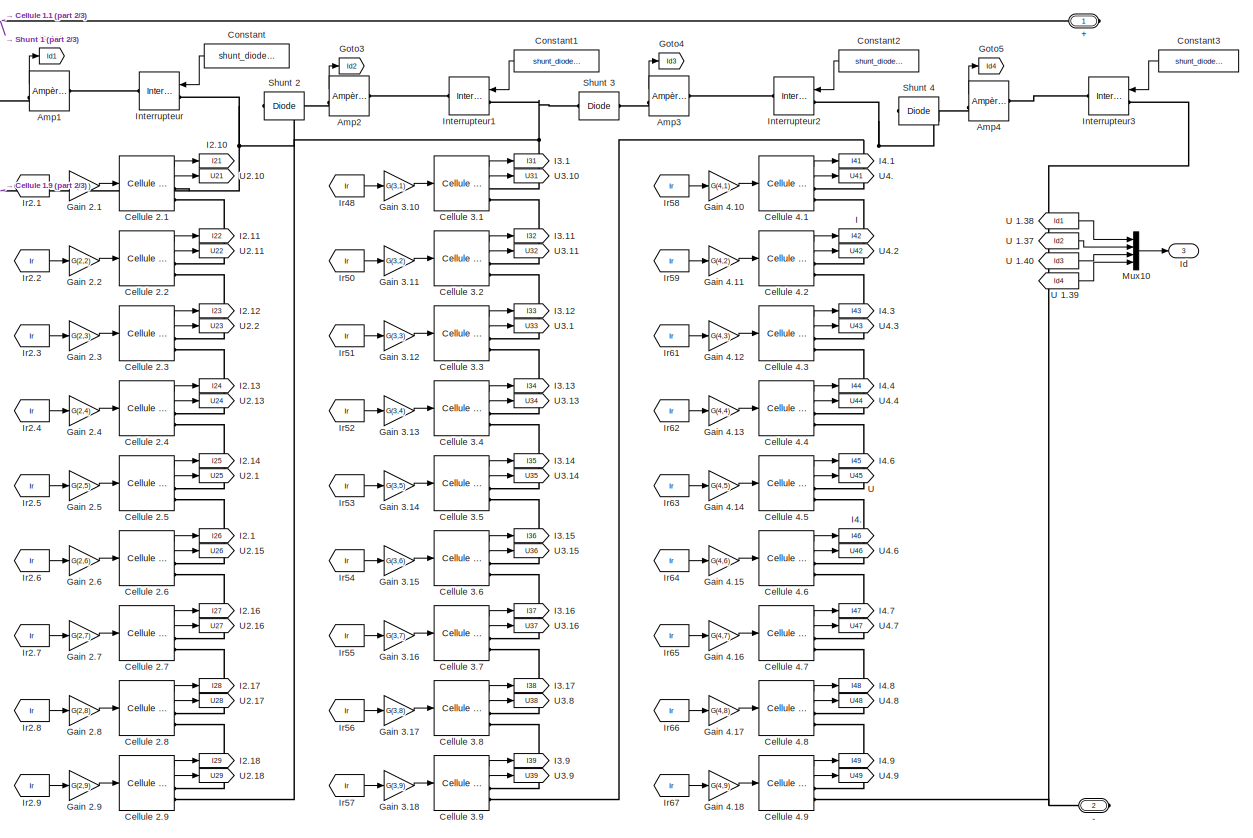
[diagram: Electronique/Panneau photovoltaique SimElectronics - part 1/3, full width, top band]
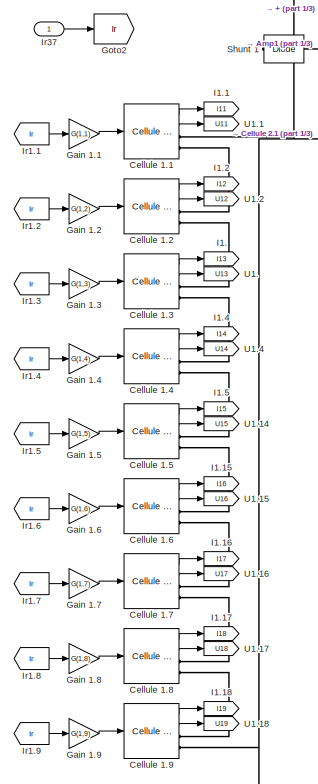
[diagram: Electronique/Panneau photovoltaique SimElectronics - part 2/3, top left region]
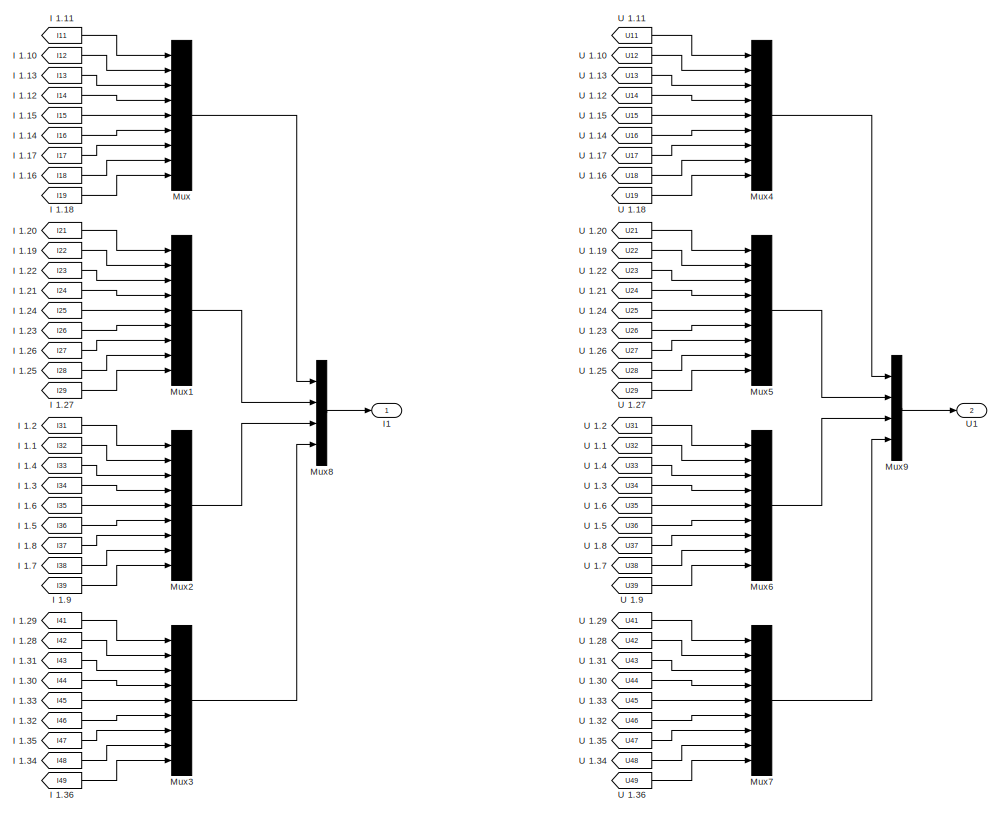
[diagram: Electronique/Panneau photovoltaique SimElectronics - part 3/3, bottom center region]
BLOCK [SubSystem] Electronique/Panneau photovoltaique SimElectronics
  Ports = [1, 3, 0, 0, 0, 0, 2]
  RequestExecContextInheritance = off
BLOCK [PMIOPort] Electronique/Panneau photovoltaique SimElectronics/+
  Side = Right
BLOCK [PMIOPort] Electronique/Panneau photovoltaique SimElectronics/-
  Port = 2
  Side = Right
BLOCK [Reference] Electronique/Panneau photovoltaique SimElectronics/Amp1  REF=Library_SII2/Electronique/Ampèremètre
  Ports = [0, 1, 0, 0, 0, 1, 1]
  SourceBlock = Library_SII2/Electronique/Ampèremètre
  SourceType = Ampèremètre
BLOCK [Reference] Electronique/Panneau photovoltaique SimElectronics/Amp2  REF=Library_SII2/Electronique/Ampèremètre
  Ports = [0, 1, 0, 0, 0, 1, 1]
  SourceBlock = Library_SII2/Electronique/Ampèremètre
  SourceType = Ampèremètre
BLOCK [Reference] Electronique/Panneau photovoltaique SimElectronics/Amp3  REF=Library_SII2/Electronique/Ampèremètre
  Ports = [0, 1, 0, 0, 0, 1, 1]
  SourceBlock = Library_SII2/Electronique/Ampèremètre
  SourceType = Ampèremètre
BLOCK [Reference] Electronique/Panneau photovoltaique SimElectronics/Amp4  REF=Library_SII2/Electronique/Ampèremètre
  Ports = [0, 1, 0, 0, 0, 1, 1]
  SourceBlock = Library_SII2/Electronique/Ampèremètre
  SourceType = Ampèremètre
BLOCK [Reference] Electronique/Panneau photovoltaique SimElectronics/Cellule 1.1  REF=Library_SII2/Electronique/Cellule Photovoltaique
avec capteurs U et I
SimElectronics
  Ports = [1, 2, 0, 0, 0, 0, 2]
  SourceBlock = Library_SII2/Electronique/Cellule Photovoltaique\navec capteurs U et I\nSimElectronics
  SourceType = Cellule Photovoltaique (SimElectronics)
BLOCK [Reference] Electronique/Panneau photovoltaique SimElectronics/Cellule 1.2  REF=Library_SII2/Electronique/Cellule Photovoltaique
avec capteurs U et I
SimElectronics
  Ports = [1, 2, 0, 0, 0, 0, 2]
  SourceBlock = Library_SII2/Electronique/Cellule Photovoltaique\navec capteurs U et I\nSimElectronics
  SourceType = Cellule Photovoltaique (SimElectronics)
BLOCK [Reference] Electronique/Panneau photovoltaique SimElectronics/Cellule 1.3  REF=Library_SII2/Electronique/Cellule Photovoltaique
avec capteurs U et I
SimElectronics
  Ports = [1, 2, 0, 0, 0, 0, 2]
  SourceBlock = Library_SII2/Electronique/Cellule Photovoltaique\navec capteurs U et I\nSimElectronics
  SourceType = Cellule Photovoltaique (SimElectronics)
BLOCK [Reference] Electronique/Panneau photovoltaique SimElectronics/Cellule 1.4  REF=Library_SII2/Electronique/Cellule Photovoltaique
avec capteurs U et I
SimElectronics
  Ports = [1, 2, 0, 0, 0, 0, 2]
  SourceBlock = Library_SII2/Electronique/Cellule Photovoltaique\navec capteurs U et I\nSimElectronics
  SourceType = Cellule Photovoltaique (SimElectronics)
BLOCK [Reference] Electronique/Panneau photovoltaique SimElectronics/Cellule 1.5  REF=Library_SII2/Electronique/Cellule Photovoltaique
avec capteurs U et I
SimElectronics
  Ports = [1, 2, 0, 0, 0, 0, 2]
  SourceBlock = Library_SII2/Electronique/Cellule Photovoltaique\navec capteurs U et I\nSimElectronics
  SourceType = Cellule Photovoltaique (SimElectronics)
BLOCK [Reference] Electronique/Panneau photovoltaique SimElectronics/Cellule 1.6  REF=Library_SII2/Electronique/Cellule Photovoltaique
avec capteurs U et I
SimElectronics
  Ports = [1, 2, 0, 0, 0, 0, 2]
  SourceBlock = Library_SII2/Electronique/Cellule Photovoltaique\navec capteurs U et I\nSimElectronics
  SourceType = Cellule Photovoltaique (SimElectronics)
BLOCK [Reference] Electronique/Panneau photovoltaique SimElectronics/Cellule 1.7  REF=Library_SII2/Electronique/Cellule Photovoltaique
avec capteurs U et I
SimElectronics
  Ports = [1, 2, 0, 0, 0, 0, 2]
  SourceBlock = Library_SII2/Electronique/Cellule Photovoltaique\navec capteurs U et I\nSimElectronics
  SourceType = Cellule Photovoltaique (SimElectronics)
BLOCK [Reference] Electronique/Panneau photovoltaique SimElectronics/Cellule 1.8  REF=Library_SII2/Electronique/Cellule Photovoltaique
avec capteurs U et I
SimElectronics
  Ports = [1, 2, 0, 0, 0, 0, 2]
  SourceBlock = Library_SII2/Electronique/Cellule Photovoltaique\navec capteurs U et I\nSimElectronics
  SourceType = Cellule Photovoltaique (SimElectronics)
BLOCK [Reference] Electronique/Panneau photovoltaique SimElectronics/Cellule 1.9  REF=Library_SII2/Electronique/Cellule Photovoltaique
avec capteurs U et I
SimElectronics
  Ports = [1, 2, 0, 0, 0, 0, 2]
  SourceBlock = Library_SII2/Electronique/Cellule Photovoltaique\navec capteurs U et I\nSimElectronics
  SourceType = Cellule Photovoltaique (SimElectronics)
BLOCK [Reference] Electronique/Panneau photovoltaique SimElectronics/Cellule 2.1  REF=Library_SII2/Electronique/Cellule Photovoltaique
avec capteurs U et I
SimElectronics
  Ports = [1, 2, 0, 0, 0, 0, 2]
  SourceBlock = Library_SII2/Electronique/Cellule Photovoltaique\navec capteurs U et I\nSimElectronics
  SourceType = Cellule Photovoltaique (SimElectronics)
BLOCK [Reference] Electronique/Panneau photovoltaique SimElectronics/Cellule 2.2  REF=Library_SII2/Electronique/Cellule Photovoltaique
avec capteurs U et I
SimElectronics
  Ports = [1, 2, 0, 0, 0, 0, 2]
  SourceBlock = Library_SII2/Electronique/Cellule Photovoltaique\navec capteurs U et I\nSimElectronics
  SourceType = Cellule Photovoltaique (SimElectronics)
BLOCK [Reference] Electronique/Panneau photovoltaique SimElectronics/Cellule 2.3  REF=Library_SII2/Electronique/Cellule Photovoltaique
avec capteurs U et I
SimElectronics
  Ports = [1, 2, 0, 0, 0, 0, 2]
  SourceBlock = Library_SII2/Electronique/Cellule Photovoltaique\navec capteurs U et I\nSimElectronics
  SourceType = Cellule Photovoltaique (SimElectronics)
BLOCK [Reference] Electronique/Panneau photovoltaique SimElectronics/Cellule 2.4  REF=Library_SII2/Electronique/Cellule Photovoltaique
avec capteurs U et I
SimElectronics
  Ports = [1, 2, 0, 0, 0, 0, 2]
  SourceBlock = Library_SII2/Electronique/Cellule Photovoltaique\navec capteurs U et I\nSimElectronics
  SourceType = Cellule Photovoltaique (SimElectronics)
BLOCK [Reference] Electronique/Panneau photovoltaique SimElectronics/Cellule 2.5  REF=Library_SII2/Electronique/Cellule Photovoltaique
avec capteurs U et I
SimElectronics
  Ports = [1, 2, 0, 0, 0, 0, 2]
  SourceBlock = Library_SII2/Electronique/Cellule Photovoltaique\navec capteurs U et I\nSimElectronics
  SourceType = Cellule Photovoltaique (SimElectronics)
BLOCK [Reference] Electronique/Panneau photovoltaique SimElectronics/Cellule 2.6  REF=Library_SII2/Electronique/Cellule Photovoltaique
avec capteurs U et I
SimElectronics
  Ports = [1, 2, 0, 0, 0, 0, 2]
  SourceBlock = Library_SII2/Electronique/Cellule Photovoltaique\navec capteurs U et I\nSimElectronics
  SourceType = Cellule Photovoltaique (SimElectronics)
BLOCK [Reference] Electronique/Panneau photovoltaique SimElectronics/Cellule 2.7  REF=Library_SII2/Electronique/Cellule Photovoltaique
avec capteurs U et I
SimElectronics
  Ports = [1, 2, 0, 0, 0, 0, 2]
  SourceBlock = Library_SII2/Electronique/Cellule Photovoltaique\navec capteurs U et I\nSimElectronics
  SourceType = Cellule Photovoltaique (SimElectronics)
BLOCK [Reference] Electronique/Panneau photovoltaique SimElectronics/Cellule 2.8  REF=Library_SII2/Electronique/Cellule Photovoltaique
avec capteurs U et I
SimElectronics
  Ports = [1, 2, 0, 0, 0, 0, 2]
  SourceBlock = Library_SII2/Electronique/Cellule Photovoltaique\navec capteurs U et I\nSimElectronics
  SourceType = Cellule Photovoltaique (SimElectronics)
BLOCK [Reference] Electronique/Panneau photovoltaique SimElectronics/Cellule 2.9  REF=Library_SII2/Electronique/Cellule Photovoltaique
avec capteurs U et I
SimElectronics
  Ports = [1, 2, 0, 0, 0, 0, 2]
  SourceBlock = Library_SII2/Electronique/Cellule Photovoltaique\navec capteurs U et I\nSimElectronics
  SourceType = Cellule Photovoltaique (SimElectronics)
BLOCK [Reference] Electronique/Panneau photovoltaique SimElectronics/Cellule 3.1  REF=Library_SII2/Electronique/Cellule Photovoltaique
avec capteurs U et I
SimElectronics
  Ports = [1, 2, 0, 0, 0, 0, 2]
  SourceBlock = Library_SII2/Electronique/Cellule Photovoltaique\navec capteurs U et I\nSimElectronics
  SourceType = Cellule Photovoltaique (SimElectronics)
BLOCK [Reference] Electronique/Panneau photovoltaique SimElectronics/Cellule 3.2  REF=Library_SII2/Electronique/Cellule Photovoltaique
avec capteurs U et I
SimElectronics
  Ports = [1, 2, 0, 0, 0, 0, 2]
  SourceBlock = Library_SII2/Electronique/Cellule Photovoltaique\navec capteurs U et I\nSimElectronics
  SourceType = Cellule Photovoltaique (SimElectronics)
BLOCK [Reference] Electronique/Panneau photovoltaique SimElectronics/Cellule 3.3  REF=Library_SII2/Electronique/Cellule Photovoltaique
avec capteurs U et I
SimElectronics
  Ports = [1, 2, 0, 0, 0, 0, 2]
  SourceBlock = Library_SII2/Electronique/Cellule Photovoltaique\navec capteurs U et I\nSimElectronics
  SourceType = Cellule Photovoltaique (SimElectronics)
BLOCK [Reference] Electronique/Panneau photovoltaique SimElectronics/Cellule 3.4  REF=Library_SII2/Electronique/Cellule Photovoltaique
avec capteurs U et I
SimElectronics
  Ports = [1, 2, 0, 0, 0, 0, 2]
  SourceBlock = Library_SII2/Electronique/Cellule Photovoltaique\navec capteurs U et I\nSimElectronics
  SourceType = Cellule Photovoltaique (SimElectronics)
BLOCK [Reference] Electronique/Panneau photovoltaique SimElectronics/Cellule 3.5  REF=Library_SII2/Electronique/Cellule Photovoltaique
avec capteurs U et I
SimElectronics
  Ports = [1, 2, 0, 0, 0, 0, 2]
  SourceBlock = Library_SII2/Electronique/Cellule Photovoltaique\navec capteurs U et I\nSimElectronics
  SourceType = Cellule Photovoltaique (SimElectronics)
BLOCK [Reference] Electronique/Panneau photovoltaique SimElectronics/Cellule 3.6  REF=Library_SII2/Electronique/Cellule Photovoltaique
avec capteurs U et I
SimElectronics
  Ports = [1, 2, 0, 0, 0, 0, 2]
  SourceBlock = Library_SII2/Electronique/Cellule Photovoltaique\navec capteurs U et I\nSimElectronics
  SourceType = Cellule Photovoltaique (SimElectronics)
BLOCK [Reference] Electronique/Panneau photovoltaique SimElectronics/Cellule 3.7  REF=Library_SII2/Electronique/Cellule Photovoltaique
avec capteurs U et I
SimElectronics
  Ports = [1, 2, 0, 0, 0, 0, 2]
  SourceBlock = Library_SII2/Electronique/Cellule Photovoltaique\navec capteurs U et I\nSimElectronics
  SourceType = Cellule Photovoltaique (SimElectronics)
BLOCK [Reference] Electronique/Panneau photovoltaique SimElectronics/Cellule 3.8  REF=Library_SII2/Electronique/Cellule Photovoltaique
avec capteurs U et I
SimElectronics
  Ports = [1, 2, 0, 0, 0, 0, 2]
  SourceBlock = Library_SII2/Electronique/Cellule Photovoltaique\navec capteurs U et I\nSimElectronics
  SourceType = Cellule Photovoltaique (SimElectronics)
BLOCK [Reference] Electronique/Panneau photovoltaique SimElectronics/Cellule 3.9  REF=Library_SII2/Electronique/Cellule Photovoltaique
avec capteurs U et I
SimElectronics
  Ports = [1, 2, 0, 0, 0, 0, 2]
  SourceBlock = Library_SII2/Electronique/Cellule Photovoltaique\navec capteurs U et I\nSimElectronics
  SourceType = Cellule Photovoltaique (SimElectronics)
BLOCK [Reference] Electronique/Panneau photovoltaique SimElectronics/Cellule 4.1  REF=Library_SII2/Electronique/Cellule Photovoltaique
avec capteurs U et I
SimElectronics
  Ports = [1, 2, 0, 0, 0, 0, 2]
  SourceBlock = Library_SII2/Electronique/Cellule Photovoltaique\navec capteurs U et I\nSimElectronics
  SourceType = Cellule Photovoltaique (SimElectronics)
BLOCK [Reference] Electronique/Panneau photovoltaique SimElectronics/Cellule 4.2  REF=Library_SII2/Electronique/Cellule Photovoltaique
avec capteurs U et I
SimElectronics
  Ports = [1, 2, 0, 0, 0, 0, 2]
  SourceBlock = Library_SII2/Electronique/Cellule Photovoltaique\navec capteurs U et I\nSimElectronics
  SourceType = Cellule Photovoltaique (SimElectronics)
BLOCK [Reference] Electronique/Panneau photovoltaique SimElectronics/Cellule 4.3  REF=Library_SII2/Electronique/Cellule Photovoltaique
avec capteurs U et I
SimElectronics
  Ports = [1, 2, 0, 0, 0, 0, 2]
  SourceBlock = Library_SII2/Electronique/Cellule Photovoltaique\navec capteurs U et I\nSimElectronics
  SourceType = Cellule Photovoltaique (SimElectronics)
BLOCK [Reference] Electronique/Panneau photovoltaique SimElectronics/Cellule 4.4  REF=Library_SII2/Electronique/Cellule Photovoltaique
avec capteurs U et I
SimElectronics
  Ports = [1, 2, 0, 0, 0, 0, 2]
  SourceBlock = Library_SII2/Electronique/Cellule Photovoltaique\navec capteurs U et I\nSimElectronics
  SourceType = Cellule Photovoltaique (SimElectronics)
BLOCK [Reference] Electronique/Panneau photovoltaique SimElectronics/Cellule 4.5  REF=Library_SII2/Electronique/Cellule Photovoltaique
avec capteurs U et I
SimElectronics
  Ports = [1, 2, 0, 0, 0, 0, 2]
  SourceBlock = Library_SII2/Electronique/Cellule Photovoltaique\navec capteurs U et I\nSimElectronics
  SourceType = Cellule Photovoltaique (SimElectronics)
BLOCK [Reference] Electronique/Panneau photovoltaique SimElectronics/Cellule 4.6  REF=Library_SII2/Electronique/Cellule Photovoltaique
avec capteurs U et I
SimElectronics
  Ports = [1, 2, 0, 0, 0, 0, 2]
  SourceBlock = Library_SII2/Electronique/Cellule Photovoltaique\navec capteurs U et I\nSimElectronics
  SourceType = Cellule Photovoltaique (SimElectronics)
BLOCK [Reference] Electronique/Panneau photovoltaique SimElectronics/Cellule 4.7  REF=Library_SII2/Electronique/Cellule Photovoltaique
avec capteurs U et I
SimElectronics
  Ports = [1, 2, 0, 0, 0, 0, 2]
  SourceBlock = Library_SII2/Electronique/Cellule Photovoltaique\navec capteurs U et I\nSimElectronics
  SourceType = Cellule Photovoltaique (SimElectronics)
BLOCK [Reference] Electronique/Panneau photovoltaique SimElectronics/Cellule 4.8  REF=Library_SII2/Electronique/Cellule Photovoltaique
avec capteurs U et I
SimElectronics
  Ports = [1, 2, 0, 0, 0, 0, 2]
  SourceBlock = Library_SII2/Electronique/Cellule Photovoltaique\navec capteurs U et I\nSimElectronics
  SourceType = Cellule Photovoltaique (SimElectronics)
BLOCK [Reference] Electronique/Panneau photovoltaique SimElectronics/Cellule 4.9  REF=Library_SII2/Electronique/Cellule Photovoltaique
avec capteurs U et I
SimElectronics
  Ports = [1, 2, 0, 0, 0, 0, 2]
  SourceBlock = Library_SII2/Electronique/Cellule Photovoltaique\navec capteurs U et I\nSimElectronics
  SourceType = Cellule Photovoltaique (SimElectronics)
BLOCK [Constant] Electronique/Panneau photovoltaique SimElectronics/Constant
  Value = shunt_diode(1)
BLOCK [Constant] Electronique/Panneau photovoltaique SimElectronics/Constant1
  Value = shunt_diode(2)
BLOCK [Constant] Electronique/Panneau photovoltaique SimElectronics/Constant2
  Value = shunt_diode(3)
BLOCK [Constant] Electronique/Panneau photovoltaique SimElectronics/Constant3
  Value = shunt_diode(4)
BLOCK [Gain] Electronique/Panneau photovoltaique SimElectronics/Gain 1.1
  Gain = G(1,1)
  OutDataTypeStr = Inherit: Inherit via internal rule
  ParamDataTypeStr = Inherit: Inherit via internal rule
  SaturateOnIntegerOverflow = off
BLOCK [Gain] Electronique/Panneau photovoltaique SimElectronics/Gain 1.2
  Gain = G(1,2)
  OutDataTypeStr = Inherit: Inherit via internal rule
  ParamDataTypeStr = Inherit: Inherit via internal rule
  SaturateOnIntegerOverflow = off
BLOCK [Gain] Electronique/Panneau photovoltaique SimElectronics/Gain 1.3
  Gain = G(1,3)
  OutDataTypeStr = Inherit: Inherit via internal rule
  ParamDataTypeStr = Inherit: Inherit via internal rule
  SaturateOnIntegerOverflow = off
BLOCK [Gain] Electronique/Panneau photovoltaique SimElectronics/Gain 1.4
  Gain = G(1,4)
  OutDataTypeStr = Inherit: Inherit via internal rule
  ParamDataTypeStr = Inherit: Inherit via internal rule
  SaturateOnIntegerOverflow = off
BLOCK [Gain] Electronique/Panneau photovoltaique SimElectronics/Gain 1.5
  Gain = G(1,5)
  OutDataTypeStr = Inherit: Inherit via internal rule
  ParamDataTypeStr = Inherit: Inherit via internal rule
  SaturateOnIntegerOverflow = off
BLOCK [Gain] Electronique/Panneau photovoltaique SimElectronics/Gain 1.6
  Gain = G(1,6)
  OutDataTypeStr = Inherit: Inherit via internal rule
  ParamDataTypeStr = Inherit: Inherit via internal rule
  SaturateOnIntegerOverflow = off
BLOCK [Gain] Electronique/Panneau photovoltaique SimElectronics/Gain 1.7
  Gain = G(1,7)
  OutDataTypeStr = Inherit: Inherit via internal rule
  ParamDataTypeStr = Inherit: Inherit via internal rule
  SaturateOnIntegerOverflow = off
BLOCK [Gain] Electronique/Panneau photovoltaique SimElectronics/Gain 1.8
  Gain = G(1,8)
  OutDataTypeStr = Inherit: Inherit via internal rule
  ParamDataTypeStr = Inherit: Inherit via internal rule
  SaturateOnIntegerOverflow = off
BLOCK [Gain] Electronique/Panneau photovoltaique SimElectronics/Gain 1.9
  Gain = G(1,9)
  OutDataTypeStr = Inherit: Inherit via internal rule
  ParamDataTypeStr = Inherit: Inherit via internal rule
  SaturateOnIntegerOverflow = off
BLOCK [Gain] Electronique/Panneau photovoltaique SimElectronics/Gain 2.1
  Gain = G(2,1)
  OutDataTypeStr = Inherit: Inherit via internal rule
  ParamDataTypeStr = Inherit: Inherit via internal rule
  SaturateOnIntegerOverflow = off
BLOCK [Gain] Electronique/Panneau photovoltaique SimElectronics/Gain 2.2
  Gain = G(2,2)
  OutDataTypeStr = Inherit: Inherit via internal rule
  ParamDataTypeStr = Inherit: Inherit via internal rule
  SaturateOnIntegerOverflow = off
BLOCK [Gain] Electronique/Panneau photovoltaique SimElectronics/Gain 2.3
  Gain = G(2,3)
  OutDataTypeStr = Inherit: Inherit via internal rule
  ParamDataTypeStr = Inherit: Inherit via internal rule
  SaturateOnIntegerOverflow = off
BLOCK [Gain] Electronique/Panneau photovoltaique SimElectronics/Gain 2.4
  Gain = G(2,4)
  OutDataTypeStr = Inherit: Inherit via internal rule
  ParamDataTypeStr = Inherit: Inherit via internal rule
  SaturateOnIntegerOverflow = off
BLOCK [Gain] Electronique/Panneau photovoltaique SimElectronics/Gain 2.5
  Gain = G(2,5)
  OutDataTypeStr = Inherit: Inherit via internal rule
  ParamDataTypeStr = Inherit: Inherit via internal rule
  SaturateOnIntegerOverflow = off
BLOCK [Gain] Electronique/Panneau photovoltaique SimElectronics/Gain 2.6
  Gain = G(2,6)
  OutDataTypeStr = Inherit: Inherit via internal rule
  ParamDataTypeStr = Inherit: Inherit via internal rule
  SaturateOnIntegerOverflow = off
BLOCK [Gain] Electronique/Panneau photovoltaique SimElectronics/Gain 2.7
  Gain = G(2,7)
  OutDataTypeStr = Inherit: Inherit via internal rule
  ParamDataTypeStr = Inherit: Inherit via internal rule
  SaturateOnIntegerOverflow = off
BLOCK [Gain] Electronique/Panneau photovoltaique SimElectronics/Gain 2.8
  Gain = G(2,8)
  OutDataTypeStr = Inherit: Inherit via internal rule
  ParamDataTypeStr = Inherit: Inherit via internal rule
  SaturateOnIntegerOverflow = off
BLOCK [Gain] Electronique/Panneau photovoltaique SimElectronics/Gain 2.9
  Gain = G(2,9)
  OutDataTypeStr = Inherit: Inherit via internal rule
  ParamDataTypeStr = Inherit: Inherit via internal rule
  SaturateOnIntegerOverflow = off
BLOCK [Gain] Electronique/Panneau photovoltaique SimElectronics/Gain 3.10
  Gain = G(3,1)
  OutDataTypeStr = Inherit: Inherit via internal rule
  ParamDataTypeStr = Inherit: Inherit via internal rule
  SaturateOnIntegerOverflow = off
BLOCK [Gain] Electronique/Panneau photovoltaique SimElectronics/Gain 3.11
  Gain = G(3,2)
  OutDataTypeStr = Inherit: Inherit via internal rule
  ParamDataTypeStr = Inherit: Inherit via internal rule
  SaturateOnIntegerOverflow = off
BLOCK [Gain] Electronique/Panneau photovoltaique SimElectronics/Gain 3.12
  Gain = G(3,3)
  OutDataTypeStr = Inherit: Inherit via internal rule
  ParamDataTypeStr = Inherit: Inherit via internal rule
  SaturateOnIntegerOverflow = off
BLOCK [Gain] Electronique/Panneau photovoltaique SimElectronics/Gain 3.13
  Gain = G(3,4)
  OutDataTypeStr = Inherit: Inherit via internal rule
  ParamDataTypeStr = Inherit: Inherit via internal rule
  SaturateOnIntegerOverflow = off
BLOCK [Gain] Electronique/Panneau photovoltaique SimElectronics/Gain 3.14
  Gain = G(3,5)
  OutDataTypeStr = Inherit: Inherit via internal rule
  ParamDataTypeStr = Inherit: Inherit via internal rule
  SaturateOnIntegerOverflow = off
BLOCK [Gain] Electronique/Panneau photovoltaique SimElectronics/Gain 3.15
  Gain = G(3,6)
  OutDataTypeStr = Inherit: Inherit via internal rule
  ParamDataTypeStr = Inherit: Inherit via internal rule
  SaturateOnIntegerOverflow = off
BLOCK [Gain] Electronique/Panneau photovoltaique SimElectronics/Gain 3.16
  Gain = G(3,7)
  OutDataTypeStr = Inherit: Inherit via internal rule
  ParamDataTypeStr = Inherit: Inherit via internal rule
  SaturateOnIntegerOverflow = off
BLOCK [Gain] Electronique/Panneau photovoltaique SimElectronics/Gain 3.17
  Gain = G(3,8)
  OutDataTypeStr = Inherit: Inherit via internal rule
  ParamDataTypeStr = Inherit: Inherit via internal rule
  SaturateOnIntegerOverflow = off
BLOCK [Gain] Electronique/Panneau photovoltaique SimElectronics/Gain 3.18
  Gain = G(3,9)
  OutDataTypeStr = Inherit: Inherit via internal rule
  ParamDataTypeStr = Inherit: Inherit via internal rule
  SaturateOnIntegerOverflow = off
BLOCK [Gain] Electronique/Panneau photovoltaique SimElectronics/Gain 4.10
  Gain = G(4,1)
  OutDataTypeStr = Inherit: Inherit via internal rule
  ParamDataTypeStr = Inherit: Inherit via internal rule
  SaturateOnIntegerOverflow = off
BLOCK [Gain] Electronique/Panneau photovoltaique SimElectronics/Gain 4.11
  Gain = G(4,2)
  OutDataTypeStr = Inherit: Inherit via internal rule
  ParamDataTypeStr = Inherit: Inherit via internal rule
  SaturateOnIntegerOverflow = off
BLOCK [Gain] Electronique/Panneau photovoltaique SimElectronics/Gain 4.12
  Gain = G(4,3)
  OutDataTypeStr = Inherit: Inherit via internal rule
  ParamDataTypeStr = Inherit: Inherit via internal rule
  SaturateOnIntegerOverflow = off
BLOCK [Gain] Electronique/Panneau photovoltaique SimElectronics/Gain 4.13
  Gain = G(4,4)
  OutDataTypeStr = Inherit: Inherit via internal rule
  ParamDataTypeStr = Inherit: Inherit via internal rule
  SaturateOnIntegerOverflow = off
BLOCK [Gain] Electronique/Panneau photovoltaique SimElectronics/Gain 4.14
  Gain = G(4,5)
  OutDataTypeStr = Inherit: Inherit via internal rule
  ParamDataTypeStr = Inherit: Inherit via internal rule
  SaturateOnIntegerOverflow = off
BLOCK [Gain] Electronique/Panneau photovoltaique SimElectronics/Gain 4.15
  Gain = G(4,6)
  OutDataTypeStr = Inherit: Inherit via internal rule
  ParamDataTypeStr = Inherit: Inherit via internal rule
  SaturateOnIntegerOverflow = off
BLOCK [Gain] Electronique/Panneau photovoltaique SimElectronics/Gain 4.16
  Gain = G(4,7)
  OutDataTypeStr = Inherit: Inherit via internal rule
  ParamDataTypeStr = Inherit: Inherit via internal rule
  SaturateOnIntegerOverflow = off
BLOCK [Gain] Electronique/Panneau photovoltaique SimElectronics/Gain 4.17
  Gain = G(4,8)
  OutDataTypeStr = Inherit: Inherit via internal rule
  ParamDataTypeStr = Inherit: Inherit via internal rule
  SaturateOnIntegerOverflow = off
BLOCK [Gain] Electronique/Panneau photovoltaique SimElectronics/Gain 4.18
  Gain = G(4,9)
  OutDataTypeStr = Inherit: Inherit via internal rule
  ParamDataTypeStr = Inherit: Inherit via internal rule
  SaturateOnIntegerOverflow = off
BLOCK [Goto] Electronique/Panneau photovoltaique SimElectronics/Goto1
  GotoTag = Id1
BLOCK [Goto] Electronique/Panneau photovoltaique SimElectronics/Goto2
  GotoTag = Ir
BLOCK [Goto] Electronique/Panneau photovoltaique SimElectronics/Goto3
  GotoTag = Id2
BLOCK [Goto] Electronique/Panneau photovoltaique SimElectronics/Goto4
  GotoTag = Id3
BLOCK [Goto] Electronique/Panneau photovoltaique SimElectronics/Goto5
  GotoTag = Id4
BLOCK [Goto] Electronique/Panneau photovoltaique SimElectronics/I
  GotoTag = I42
BLOCK [From] Electronique/Panneau photovoltaique SimElectronics/I 1.1
  GotoTag = I32
  IconDisplay = Signal name
BLOCK [From] Electronique/Panneau photovoltaique SimElectronics/I 1.10
  GotoTag = I12
  IconDisplay = Signal name
BLOCK [From] Electronique/Panneau photovoltaique SimElectronics/I 1.11
  GotoTag = I11
  IconDisplay = Signal name
BLOCK [From] Electronique/Panneau photovoltaique SimElectronics/I 1.12
  GotoTag = I14
  IconDisplay = Signal name
BLOCK [From] Electronique/Panneau photovoltaique SimElectronics/I 1.13
  GotoTag = I13
  IconDisplay = Signal name
BLOCK [From] Electronique/Panneau photovoltaique SimElectronics/I 1.14
  GotoTag = I16
  IconDisplay = Signal name
BLOCK [From] Electronique/Panneau photovoltaique SimElectronics/I 1.15
  GotoTag = I15
  IconDisplay = Signal name
BLOCK [From] Electronique/Panneau photovoltaique SimElectronics/I 1.16
  GotoTag = I18
  IconDisplay = Signal name
BLOCK [From] Electronique/Panneau photovoltaique SimElectronics/I 1.17
  GotoTag = I17
  IconDisplay = Signal name
BLOCK [From] Electronique/Panneau photovoltaique SimElectronics/I 1.18
  GotoTag = I19
  IconDisplay = Signal name
BLOCK [From] Electronique/Panneau photovoltaique SimElectronics/I 1.19
  GotoTag = I22
  IconDisplay = Signal name
BLOCK [From] Electronique/Panneau photovoltaique SimElectronics/I 1.2
  GotoTag = I31
  IconDisplay = Signal name
BLOCK [From] Electronique/Panneau photovoltaique SimElectronics/I 1.20
  GotoTag = I21
  IconDisplay = Signal name
BLOCK [From] Electronique/Panneau photovoltaique SimElectronics/I 1.21
  GotoTag = I24
  IconDisplay = Signal name
BLOCK [From] Electronique/Panneau photovoltaique SimElectronics/I 1.22
  GotoTag = I23
  IconDisplay = Signal name
BLOCK [From] Electronique/Panneau photovoltaique SimElectronics/I 1.23
  GotoTag = I26
  IconDisplay = Signal name
BLOCK [From] Electronique/Panneau photovoltaique SimElectronics/I 1.24
  GotoTag = I25
  IconDisplay = Signal name
BLOCK [From] Electronique/Panneau photovoltaique SimElectronics/I 1.25
  GotoTag = I28
  IconDisplay = Signal name
BLOCK [From] Electronique/Panneau photovoltaique SimElectronics/I 1.26
  GotoTag = I27
  IconDisplay = Signal name
BLOCK [From] Electronique/Panneau photovoltaique SimElectronics/I 1.27
  GotoTag = I29
  IconDisplay = Signal name
BLOCK [From] Electronique/Panneau photovoltaique SimElectronics/I 1.28
  GotoTag = I42
  IconDisplay = Signal name
BLOCK [From] Electronique/Panneau photovoltaique SimElectronics/I 1.29
  GotoTag = I41
  IconDisplay = Signal name
BLOCK [From] Electronique/Panneau photovoltaique SimElectronics/I 1.3
  GotoTag = I34
  IconDisplay = Signal name
BLOCK [From] Electronique/Panneau photovoltaique SimElectronics/I 1.30
  GotoTag = I44
  IconDisplay = Signal name
BLOCK [From] Electronique/Panneau photovoltaique SimElectronics/I 1.31
  GotoTag = I43
  IconDisplay = Signal name
BLOCK [From] Electronique/Panneau photovoltaique SimElectronics/I 1.32
  GotoTag = I46
  IconDisplay = Signal name
BLOCK [From] Electronique/Panneau photovoltaique SimElectronics/I 1.33
  GotoTag = I45
  IconDisplay = Signal name
BLOCK [From] Electronique/Panneau photovoltaique SimElectronics/I 1.34
  GotoTag = I48
  IconDisplay = Signal name
BLOCK [From] Electronique/Panneau photovoltaique SimElectronics/I 1.35
  GotoTag = I47
  IconDisplay = Signal name
BLOCK [From] Electronique/Panneau photovoltaique SimElectronics/I 1.36
  GotoTag = I49
  IconDisplay = Signal name
BLOCK [From] Electronique/Panneau photovoltaique SimElectronics/I 1.4
  GotoTag = I33
  IconDisplay = Signal name
BLOCK [From] Electronique/Panneau photovoltaique SimElectronics/I 1.5
  GotoTag = I36
  IconDisplay = Signal name
BLOCK [From] Electronique/Panneau photovoltaique SimElectronics/I 1.6
  GotoTag = I35
  IconDisplay = Signal name
BLOCK [From] Electronique/Panneau photovoltaique SimElectronics/I 1.7
  GotoTag = I38
  IconDisplay = Signal name
BLOCK [From] Electronique/Panneau photovoltaique SimElectronics/I 1.8
  GotoTag = I37
  IconDisplay = Signal name
BLOCK [From] Electronique/Panneau photovoltaique SimElectronics/I 1.9
  GotoTag = I39
  IconDisplay = Signal name
BLOCK [Outport] Electronique/Panneau photovoltaique SimElectronics/I1
  IconDisplay = Port number
BLOCK [Goto] Electronique/Panneau photovoltaique SimElectronics/I1.
  GotoTag = I13
BLOCK [Goto] Electronique/Panneau photovoltaique SimElectronics/I1.1
  GotoTag = I11
BLOCK [Goto] Electronique/Panneau photovoltaique SimElectronics/I1.15
  GotoTag = I16
BLOCK [Goto] Electronique/Panneau photovoltaique SimElectronics/I1.16
  GotoTag = I17
BLOCK [Goto] Electronique/Panneau photovoltaique SimElectronics/I1.17
  GotoTag = I18
BLOCK [Goto] Electronique/Panneau photovoltaique SimElectronics/I1.18
  GotoTag = I19
BLOCK [Goto] Electronique/Panneau photovoltaique SimElectronics/I1.2
  GotoTag = I12
BLOCK [Goto] Electronique/Panneau photovoltaique SimElectronics/I1.4
  GotoTag = I14
BLOCK [Goto] Electronique/Panneau photovoltaique SimElectronics/I1.5
  GotoTag = I15
BLOCK [Goto] Electronique/Panneau photovoltaique SimElectronics/I2.1
  GotoTag = I26
BLOCK [Goto] Electronique/Panneau photovoltaique SimElectronics/I2.10
  GotoTag = I21
BLOCK [Goto] Electronique/Panneau photovoltaique SimElectronics/I2.11
  GotoTag = I22
BLOCK [Goto] Electronique/Panneau photovoltaique SimElectronics/I2.12
  GotoTag = I23
BLOCK [Goto] Electronique/Panneau photovoltaique SimElectronics/I2.13
  GotoTag = I24
BLOCK [Goto] Electronique/Panneau photovoltaique SimElectronics/I2.14
  GotoTag = I25
BLOCK [Goto] Electronique/Panneau photovoltaique SimElectronics/I2.16
  GotoTag = I27
BLOCK [Goto] Electronique/Panneau photovoltaique SimElectronics/I2.17
  GotoTag = I28
BLOCK [Goto] Electronique/Panneau photovoltaique SimElectronics/I2.18
  GotoTag = I29
BLOCK [Goto] Electronique/Panneau photovoltaique SimElectronics/I3.1
  GotoTag = I31
BLOCK [Goto] Electronique/Panneau photovoltaique SimElectronics/I3.11
  GotoTag = I32
BLOCK [Goto] Electronique/Panneau photovoltaique SimElectronics/I3.12
  GotoTag = I33
BLOCK [Goto] Electronique/Panneau photovoltaique SimElectronics/I3.13
  GotoTag = I34
BLOCK [Goto] Electronique/Panneau photovoltaique SimElectronics/I3.14
  GotoTag = I35
BLOCK [Goto] Electronique/Panneau photovoltaique SimElectronics/I3.15
  GotoTag = I36
BLOCK [Goto] Electronique/Panneau photovoltaique SimElectronics/I3.16
  GotoTag = I37
BLOCK [Goto] Electronique/Panneau photovoltaique SimElectronics/I3.17
  GotoTag = I38
BLOCK [Goto] Electronique/Panneau photovoltaique SimElectronics/I3.9
  GotoTag = I39
BLOCK [Goto] Electronique/Panneau photovoltaique SimElectronics/I4.
  GotoTag = I46
BLOCK [Goto] Electronique/Panneau photovoltaique SimElectronics/I4.1
  GotoTag = I41
BLOCK [Goto] Electronique/Panneau photovoltaique SimElectronics/I4.3
  GotoTag = I43
BLOCK [Goto] Electronique/Panneau photovoltaique SimElectronics/I4.4
  GotoTag = I44
BLOCK [Goto] Electronique/Panneau photovoltaique SimElectronics/I4.6
  GotoTag = I45
BLOCK [Goto] Electronique/Panneau photovoltaique SimElectronics/I4.7
  GotoTag = I47
BLOCK [Goto] Electronique/Panneau photovoltaique SimElectronics/I4.8
  GotoTag = I48
BLOCK [Goto] Electronique/Panneau photovoltaique SimElectronics/I4.9
  GotoTag = I49
BLOCK [Outport] Electronique/Panneau photovoltaique SimElectronics/Id
  IconDisplay = Port number
  Port = 3
BLOCK [Reference] Electronique/Panneau photovoltaique SimElectronics/Interrupteur  REF=Library_SII2/Electronique/Interrupteur
  Ports = [1, 0, 0, 0, 0, 1, 1]
  SourceBlock = Library_SII2/Electronique/Interrupteur
  SourceType = Interrupteur
BLOCK [Reference] Electronique/Panneau photovoltaique SimElectronics/Interrupteur1  REF=Library_SII2/Electronique/Interrupteur
  Ports = [1, 0, 0, 0, 0, 1, 1]
  SourceBlock = Library_SII2/Electronique/Interrupteur
  SourceType = Interrupteur
BLOCK [Reference] Electronique/Panneau photovoltaique SimElectronics/Interrupteur2  REF=Library_SII2/Electronique/Interrupteur
  Ports = [1, 0, 0, 0, 0, 1, 1]
  SourceBlock = Library_SII2/Electronique/Interrupteur
  SourceType = Interrupteur
BLOCK [Reference] Electronique/Panneau photovoltaique SimElectronics/Interrupteur3  REF=Library_SII2/Electronique/Interrupteur
  Ports = [1, 0, 0, 0, 0, 1, 1]
  SourceBlock = Library_SII2/Electronique/Interrupteur
  SourceType = Interrupteur
BLOCK [From] Electronique/Panneau photovoltaique SimElectronics/Ir1.1
  GotoTag = Ir
  IconDisplay = Signal name
BLOCK [From] Electronique/Panneau photovoltaique SimElectronics/Ir1.2
  GotoTag = Ir
  IconDisplay = Signal name
BLOCK [From] Electronique/Panneau photovoltaique SimElectronics/Ir1.3
  GotoTag = Ir
  IconDisplay = Signal name
BLOCK [From] Electronique/Panneau photovoltaique SimElectronics/Ir1.4
  GotoTag = Ir
  IconDisplay = Signal name
BLOCK [From] Electronique/Panneau photovoltaique SimElectronics/Ir1.5
  GotoTag = Ir
  IconDisplay = Signal name
BLOCK [From] Electronique/Panneau photovoltaique SimElectronics/Ir1.6
  GotoTag = Ir
  IconDisplay = Signal name
BLOCK [From] Electronique/Panneau photovoltaique SimElectronics/Ir1.7
  GotoTag = Ir
  IconDisplay = Signal name
BLOCK [From] Electronique/Panneau photovoltaique SimElectronics/Ir1.8
  GotoTag = Ir
  IconDisplay = Signal name
BLOCK [From] Electronique/Panneau photovoltaique SimElectronics/Ir1.9
  GotoTag = Ir
  IconDisplay = Signal name
BLOCK [From] Electronique/Panneau photovoltaique SimElectronics/Ir2.1
  GotoTag = Ir
  IconDisplay = Signal name
BLOCK [From] Electronique/Panneau photovoltaique SimElectronics/Ir2.2
  GotoTag = Ir
  IconDisplay = Signal name
BLOCK [From] Electronique/Panneau photovoltaique SimElectronics/Ir2.3
  GotoTag = Ir
  IconDisplay = Signal name
BLOCK [From] Electronique/Panneau photovoltaique SimElectronics/Ir2.4
  GotoTag = Ir
  IconDisplay = Signal name
BLOCK [From] Electronique/Panneau photovoltaique SimElectronics/Ir2.5
  GotoTag = Ir
  IconDisplay = Signal name
BLOCK [From] Electronique/Panneau photovoltaique SimElectronics/Ir2.6
  GotoTag = Ir
  IconDisplay = Signal name
BLOCK [From] Electronique/Panneau photovoltaique SimElectronics/Ir2.7
  GotoTag = Ir
  IconDisplay = Signal name
BLOCK [From] Electronique/Panneau photovoltaique SimElectronics/Ir2.8
  GotoTag = Ir
  IconDisplay = Signal name
BLOCK [From] Electronique/Panneau photovoltaique SimElectronics/Ir2.9
  GotoTag = Ir
  IconDisplay = Signal name
BLOCK [Inport] Electronique/Panneau photovoltaique SimElectronics/Ir37
  IconDisplay = Port number
BLOCK [From] Electronique/Panneau photovoltaique SimElectronics/Ir48
  GotoTag = Ir
  IconDisplay = Signal name
BLOCK [From] Electronique/Panneau photovoltaique SimElectronics/Ir50
  GotoTag = Ir
  IconDisplay = Signal name
BLOCK [From] Electronique/Panneau photovoltaique SimElectronics/Ir51
  GotoTag = Ir
  IconDisplay = Signal name
BLOCK [From] Electronique/Panneau photovoltaique SimElectronics/Ir52
  GotoTag = Ir
  IconDisplay = Signal name
BLOCK [From] Electronique/Panneau photovoltaique SimElectronics/Ir53
  GotoTag = Ir
  IconDisplay = Signal name
BLOCK [From] Electronique/Panneau photovoltaique SimElectronics/Ir54
  GotoTag = Ir
  IconDisplay = Signal name
BLOCK [From] Electronique/Panneau photovoltaique SimElectronics/Ir55
  GotoTag = Ir
  IconDisplay = Signal name
BLOCK [From] Electronique/Panneau photovoltaique SimElectronics/Ir56
  GotoTag = Ir
  IconDisplay = Signal name
BLOCK [From] Electronique/Panneau photovoltaique SimElectronics/Ir57
  GotoTag = Ir
  IconDisplay = Signal name
BLOCK [From] Electronique/Panneau photovoltaique SimElectronics/Ir58
  GotoTag = Ir
  IconDisplay = Signal name
BLOCK [From] Electronique/Panneau photovoltaique SimElectronics/Ir59
  GotoTag = Ir
  IconDisplay = Signal name
BLOCK [From] Electronique/Panneau photovoltaique SimElectronics/Ir61
  GotoTag = Ir
  IconDisplay = Signal name
BLOCK [From] Electronique/Panneau photovoltaique SimElectronics/Ir62
  GotoTag = Ir
  IconDisplay = Signal name
BLOCK [From] Electronique/Panneau photovoltaique SimElectronics/Ir63
  GotoTag = Ir
  IconDisplay = Signal name
BLOCK [From] Electronique/Panneau photovoltaique SimElectronics/Ir64
  GotoTag = Ir
  IconDisplay = Signal name
BLOCK [From] Electronique/Panneau photovoltaique SimElectronics/Ir65
  GotoTag = Ir
  IconDisplay = Signal name
BLOCK [From] Electronique/Panneau photovoltaique SimElectronics/Ir66
  GotoTag = Ir
  IconDisplay = Signal name
BLOCK [From] Electronique/Panneau photovoltaique SimElectronics/Ir67
  GotoTag = Ir
  IconDisplay = Signal name
BLOCK [Mux] Electronique/Panneau photovoltaique SimElectronics/Mux
  DisplayOption = bar
  Inputs = 9
  Ports = [9, 1]
BLOCK [Mux] Electronique/Panneau photovoltaique SimElectronics/Mux1
  DisplayOption = bar
  Inputs = 9
  Ports = [9, 1]
BLOCK [Mux] Electronique/Panneau photovoltaique SimElectronics/Mux10
  DisplayOption = bar
  Ports = [4, 1]
BLOCK [Mux] Electronique/Panneau photovoltaique SimElectronics/Mux2
  DisplayOption = bar
  Inputs = 9
  Ports = [9, 1]
BLOCK [Mux] Electronique/Panneau photovoltaique SimElectronics/Mux3
  DisplayOption = bar
  Inputs = 9
  Ports = [9, 1]
BLOCK [Mux] Electronique/Panneau photovoltaique SimElectronics/Mux4
  DisplayOption = bar
  Inputs = 9
  Ports = [9, 1]
BLOCK [Mux] Electronique/Panneau photovoltaique SimElectronics/Mux5
  DisplayOption = bar
  Inputs = 9
  Ports = [9, 1]
BLOCK [Mux] Electronique/Panneau photovoltaique SimElectronics/Mux6
  DisplayOption = bar
  Inputs = 9
  Ports = [9, 1]
BLOCK [Mux] Electronique/Panneau photovoltaique SimElectronics/Mux7
  DisplayOption = bar
  Inputs = 9
  Ports = [9, 1]
BLOCK [Mux] Electronique/Panneau photovoltaique SimElectronics/Mux8
  DisplayOption = bar
  Ports = [4, 1]
BLOCK [Mux] Electronique/Panneau photovoltaique SimElectronics/Mux9
  DisplayOption = bar
  Ports = [4, 1]
BLOCK [Reference] Electronique/Panneau photovoltaique SimElectronics/Shunt 1  REF=elec_lib/Semiconductor
Devices/Diode
  Ports = [0, 0, 0, 0, 0, 1, 1]
  SourceBlock = elec_lib/Semiconductor\nDevices/Diode
  SourceProductBaseCode = SN
  SourceProductName = Simscape Electronics
  SourceType = Diode
BLOCK [Reference] Electronique/Panneau photovoltaique SimElectronics/Shunt 2  REF=elec_lib/Semiconductor
Devices/Diode
  Ports = [0, 0, 0, 0, 0, 1, 1]
  SourceBlock = elec_lib/Semiconductor\nDevices/Diode
  SourceProductBaseCode = SN
  SourceProductName = Simscape Electronics
  SourceType = Diode
BLOCK [Reference] Electronique/Panneau photovoltaique SimElectronics/Shunt 3  REF=elec_lib/Semiconductor
Devices/Diode
  Ports = [0, 0, 0, 0, 0, 1, 1]
  SourceBlock = elec_lib/Semiconductor\nDevices/Diode
  SourceProductBaseCode = SN
  SourceProductName = Simscape Electronics
  SourceType = Diode
BLOCK [Reference] Electronique/Panneau photovoltaique SimElectronics/Shunt 4  REF=elec_lib/Semiconductor
Devices/Diode
  Ports = [0, 0, 0, 0, 0, 1, 1]
  SourceBlock = elec_lib/Semiconductor\nDevices/Diode
  SourceProductBaseCode = SN
  SourceProductName = Simscape Electronics
  SourceType = Diode
BLOCK [Goto] Electronique/Panneau photovoltaique SimElectronics/U
  GotoTag = U45
BLOCK [From] Electronique/Panneau photovoltaique SimElectronics/U 1.1
  GotoTag = U32
  IconDisplay = Signal name
BLOCK [From] Electronique/Panneau photovoltaique SimElectronics/U 1.10
  GotoTag = U12
  IconDisplay = Signal name
BLOCK [From] Electronique/Panneau photovoltaique SimElectronics/U 1.11
  GotoTag = U11
  IconDisplay = Signal name
BLOCK [From] Electronique/Panneau photovoltaique SimElectronics/U 1.12
  GotoTag = U14
  IconDisplay = Signal name
BLOCK [From] Electronique/Panneau photovoltaique SimElectronics/U 1.13
  GotoTag = U13
  IconDisplay = Signal name
BLOCK [From] Electronique/Panneau photovoltaique SimElectronics/U 1.14
  GotoTag = U16
  IconDisplay = Signal name
BLOCK [From] Electronique/Panneau photovoltaique SimElectronics/U 1.15
  GotoTag = U15
  IconDisplay = Signal name
BLOCK [From] Electronique/Panneau photovoltaique SimElectronics/U 1.16
  GotoTag = U18
  IconDisplay = Signal name
BLOCK [From] Electronique/Panneau photovoltaique SimElectronics/U 1.17
  GotoTag = U17
  IconDisplay = Signal name
BLOCK [From] Electronique/Panneau photovoltaique SimElectronics/U 1.18
  GotoTag = U19
  IconDisplay = Signal name
BLOCK [From] Electronique/Panneau photovoltaique SimElectronics/U 1.19
  GotoTag = U22
  IconDisplay = Signal name
BLOCK [From] Electronique/Panneau photovoltaique SimElectronics/U 1.2
  GotoTag = U31
  IconDisplay = Signal name
BLOCK [From] Electronique/Panneau photovoltaique SimElectronics/U 1.20
  GotoTag = U21
  IconDisplay = Signal name
BLOCK [From] Electronique/Panneau photovoltaique SimElectronics/U 1.21
  GotoTag = U24
  IconDisplay = Signal name
BLOCK [From] Electronique/Panneau photovoltaique SimElectronics/U 1.22
  GotoTag = U23
  IconDisplay = Signal name
BLOCK [From] Electronique/Panneau photovoltaique SimElectronics/U 1.23
  GotoTag = U26
  IconDisplay = Signal name
BLOCK [From] Electronique/Panneau photovoltaique SimElectronics/U 1.24
  GotoTag = U25
  IconDisplay = Signal name
BLOCK [From] Electronique/Panneau photovoltaique SimElectronics/U 1.25
  GotoTag = U28
  IconDisplay = Signal name
BLOCK [From] Electronique/Panneau photovoltaique SimElectronics/U 1.26
  GotoTag = U27
  IconDisplay = Signal name
BLOCK [From] Electronique/Panneau photovoltaique SimElectronics/U 1.27
  GotoTag = U29
  IconDisplay = Signal name
BLOCK [From] Electronique/Panneau photovoltaique SimElectronics/U 1.28
  GotoTag = U42
  IconDisplay = Signal name
BLOCK [From] Electronique/Panneau photovoltaique SimElectronics/U 1.29
  GotoTag = U41
  IconDisplay = Signal name
BLOCK [From] Electronique/Panneau photovoltaique SimElectronics/U 1.3
  GotoTag = U34
  IconDisplay = Signal name
BLOCK [From] Electronique/Panneau photovoltaique SimElectronics/U 1.30
  GotoTag = U44
  IconDisplay = Signal name
BLOCK [From] Electronique/Panneau photovoltaique SimElectronics/U 1.31
  GotoTag = U43
  IconDisplay = Signal name
BLOCK [From] Electronique/Panneau photovoltaique SimElectronics/U 1.32
  GotoTag = U46
  IconDisplay = Signal name
BLOCK [From] Electronique/Panneau photovoltaique SimElectronics/U 1.33
  GotoTag = U45
  IconDisplay = Signal name
BLOCK [From] Electronique/Panneau photovoltaique SimElectronics/U 1.34
  GotoTag = U48
  IconDisplay = Signal name
BLOCK [From] Electronique/Panneau photovoltaique SimElectronics/U 1.35
  GotoTag = U47
  IconDisplay = Signal name
BLOCK [From] Electronique/Panneau photovoltaique SimElectronics/U 1.36
  GotoTag = U49
  IconDisplay = Signal name
BLOCK [From] Electronique/Panneau photovoltaique SimElectronics/U 1.37
  GotoTag = Id2
  IconDisplay = Signal name
BLOCK [From] Electronique/Panneau photovoltaique SimElectronics/U 1.38
  GotoTag = Id1
  IconDisplay = Signal name
BLOCK [From] Electronique/Panneau photovoltaique SimElectronics/U 1.39
  GotoTag = Id4
  IconDisplay = Signal name
BLOCK [From] Electronique/Panneau photovoltaique SimElectronics/U 1.4
  GotoTag = U33
  IconDisplay = Signal name
BLOCK [From] Electronique/Panneau photovoltaique SimElectronics/U 1.40
  GotoTag = Id3
  IconDisplay = Signal name
BLOCK [From] Electronique/Panneau photovoltaique SimElectronics/U 1.5
  GotoTag = U36
  IconDisplay = Signal name
BLOCK [From] Electronique/Panneau photovoltaique SimElectronics/U 1.6
  GotoTag = U35
  IconDisplay = Signal name
BLOCK [From] Electronique/Panneau photovoltaique SimElectronics/U 1.7
  GotoTag = U38
  IconDisplay = Signal name
BLOCK [From] Electronique/Panneau photovoltaique SimElectronics/U 1.8
  GotoTag = U37
  IconDisplay = Signal name
BLOCK [From] Electronique/Panneau photovoltaique SimElectronics/U 1.9
  GotoTag = U39
  IconDisplay = Signal name
BLOCK [Outport] Electronique/Panneau photovoltaique SimElectronics/U1
  IconDisplay = Port number
  Port = 2
BLOCK [Goto] Electronique/Panneau photovoltaique SimElectronics/U1.
  GotoTag = U13
BLOCK [Goto] Electronique/Panneau photovoltaique SimElectronics/U1.1
  GotoTag = U11
BLOCK [Goto] Electronique/Panneau photovoltaique SimElectronics/U1.14
  GotoTag = U15
BLOCK [Goto] Electronique/Panneau photovoltaique SimElectronics/U1.15
  GotoTag = U16
BLOCK [Goto] Electronique/Panneau photovoltaique SimElectronics/U1.16
  GotoTag = U17
BLOCK [Goto] Electronique/Panneau photovoltaique SimElectronics/U1.17
  GotoTag = U18
BLOCK [Goto] Electronique/Panneau photovoltaique SimElectronics/U1.18
  GotoTag = U19
BLOCK [Goto] Electronique/Panneau photovoltaique SimElectronics/U1.2
  GotoTag = U12
BLOCK [Goto] Electronique/Panneau photovoltaique SimElectronics/U1.4
  GotoTag = U14
BLOCK [Goto] Electronique/Panneau photovoltaique SimElectronics/U2.1
  GotoTag = U25
BLOCK [Goto] Electronique/Panneau photovoltaique SimElectronics/U2.10
  GotoTag = U21
BLOCK [Goto] Electronique/Panneau photovoltaique SimElectronics/U2.11
  GotoTag = U22
BLOCK [Goto] Electronique/Panneau photovoltaique SimElectronics/U2.13
  GotoTag = U24
BLOCK [Goto] Electronique/Panneau photovoltaique SimElectronics/U2.15
  GotoTag = U26
BLOCK [Goto] Electronique/Panneau photovoltaique SimElectronics/U2.16
  GotoTag = U27
BLOCK [Goto] Electronique/Panneau photovoltaique SimElectronics/U2.17
  GotoTag = U28
BLOCK [Goto] Electronique/Panneau photovoltaique SimElectronics/U2.18
  GotoTag = U29
BLOCK [Goto] Electronique/Panneau photovoltaique SimElectronics/U2.2
  GotoTag = U23
BLOCK [Goto] Electronique/Panneau photovoltaique SimElectronics/U3.1
  GotoTag = U33
BLOCK [Goto] Electronique/Panneau photovoltaique SimElectronics/U3.10
  GotoTag = U31
BLOCK [Goto] Electronique/Panneau photovoltaique SimElectronics/U3.11
  GotoTag = U32
BLOCK [Goto] Electronique/Panneau photovoltaique SimElectronics/U3.13
  GotoTag = U34
BLOCK [Goto] Electronique/Panneau photovoltaique SimElectronics/U3.14
  GotoTag = U35
BLOCK [Goto] Electronique/Panneau photovoltaique SimElectronics/U3.15
  GotoTag = U36
BLOCK [Goto] Electronique/Panneau photovoltaique SimElectronics/U3.16
  GotoTag = U37
BLOCK [Goto] Electronique/Panneau photovoltaique SimElectronics/U3.8
  GotoTag = U38
BLOCK [Goto] Electronique/Panneau photovoltaique SimElectronics/U3.9
  GotoTag = U39
BLOCK [Goto] Electronique/Panneau photovoltaique SimElectronics/U4.
  GotoTag = U41
BLOCK [Goto] Electronique/Panneau photovoltaique SimElectronics/U4.2
  GotoTag = U42
BLOCK [Goto] Electronique/Panneau photovoltaique SimElectronics/U4.3
  GotoTag = U43
BLOCK [Goto] Electronique/Panneau photovoltaique SimElectronics/U4.4
  GotoTag = U44
BLOCK [Goto] Electronique/Panneau photovoltaique SimElectronics/U4.6
  GotoTag = U46
BLOCK [Goto] Electronique/Panneau photovoltaique SimElectronics/U4.7
  GotoTag = U47
BLOCK [Goto] Electronique/Panneau photovoltaique SimElectronics/U4.8
  GotoTag = U48
BLOCK [Goto] Electronique/Panneau photovoltaique SimElectronics/U4.9
  GotoTag = U49
BLOCK [SubSystem] Electronique/Photorésistance
  Ports = [1, 1, 0, 0, 0, 1, 1]
  RequestExecContextInheritance = off
BLOCK [PMIOPort] Electronique/Photorésistance/1
  Port = 2
  Side = Left
BLOCK [PMIOPort] Electronique/Photorésistance/2
  Side = Right
BLOCK [Sum] Electronique/Photorésistance/Add
  InputSameDT = off
  OutDataTypeStr = Inherit: Inherit via internal rule
  Ports = [2, 1]
  SaturateOnIntegerOverflow = off
BLOCK [Constant] Electronique/Photorésistance/Constant
  Value = a
BLOCK [Constant] Electronique/Photorésistance/Constant1
  Value = b
BLOCK [Inport] Electronique/Photorésistance/E
  IconDisplay = Port number
BLOCK [Math] Electronique/Photorésistance/Math Function
  Operator = 10^u
  Ports = [1, 1]
BLOCK [Math] Electronique/Photorésistance/Math Function1
  Operator = log10
  Ports = [1, 1]
BLOCK [Product] Electronique/Photorésistance/Product
  InputSameDT = off
  OutDataTypeStr = Inherit: Inherit via internal rule
  Ports = [2, 1]
  RndMeth = Floor
  SaturateOnIntegerOverflow = off
BLOCK [Outport] Electronique/Photorésistance/R
  IconDisplay = Port number
BLOCK [Reference] Electronique/Photorésistance/Simulink-PS Converter  REF=nesl_utility/Simulink-PS
Converter
  Ports = [1, 0, 0, 0, 0, 0, 1]
  SourceBlock = nesl_utility/Simulink-PS\nConverter
  SourceProductBaseCode = SS
  SourceProductName = Simscape
  SourceType = Simulink-PS\nConverter
BLOCK [Reference] Electronique/Photorésistance/Variable Resistor  REF=fl_lib/Electrical/Electrical Elements/Variable Resistor
  Ports = [0, 0, 0, 0, 0, 2, 1]
  SourceBlock = fl_lib/Electrical/Electrical Elements/Variable Resistor
  SourceProductBaseCode = SS
  SourceProductName = Simscape
  SourceType = Variable Resistor
BLOCK [SubSystem] Electronique/Puissance-mètre
  Ports = [0, 1, 0, 0, 0, 2, 1]
  RequestExecContextInheritance = off
BLOCK [BusCreator] Electronique/Puissance-mètre/Bus Creator
  DisplayOption = bar
  InheritFromInputs = on
  Inputs = 3
  Ports = [3, 1]
BLOCK [Reference] Electronique/Puissance-mètre/Current Sensor  REF=fl_lib/Electrical/Electrical Sensors/Current Sensor
  Ports = [0, 0, 0, 0, 0, 1, 2]
  SourceBlock = fl_lib/Electrical/Electrical Sensors/Current Sensor
  SourceProductBaseCode = SS
  SourceProductName = Simscape
  SourceType = Current Sensor
BLOCK [PMIOPort] Electronique/Puissance-mètre/E+
  Side = Left
BLOCK [PMIOPort] Electronique/Puissance-mètre/E-
  Port = 3
  Side = Left
BLOCK [Outport] Electronique/Puissance-mètre/P
  IconDisplay = Port number
BLOCK [Reference] Electronique/Puissance-mètre/PS-Simulink Converter1  REF=nesl_utility/PS-Simulink
Converter
  Ports = [0, 1, 0, 0, 0, 1]
  SourceBlock = nesl_utility/PS-Simulink\nConverter
  SourceProductBaseCode = SS
  SourceProductName = Simscape
  SourceType = PS-Simulink\nConverter
BLOCK [Product] Electronique/Puissance-mètre/Product
  InputSameDT = off
  OutDataTypeStr = Inherit: Inherit via internal rule
  Ports = [2, 1]
  RndMeth = Floor
  SaturateOnIntegerOverflow = off
BLOCK [PMIOPort] Electronique/Puissance-mètre/S+
  Port = 2
  Side = Right
BLOCK [Reference] Electronique/Puissance-mètre/S-PS  REF=nesl_utility/PS-Simulink
Converter
  Ports = [0, 1, 0, 0, 0, 1]
  SourceBlock = nesl_utility/PS-Simulink\nConverter
  SourceProductBaseCode = SS
  SourceProductName = Simscape
  SourceType = PS-Simulink\nConverter
BLOCK [Reference] Electronique/Puissance-mètre/Voltage Sensor  REF=fl_lib/Electrical/Electrical Sensors/Voltage Sensor
  Ports = [0, 0, 0, 0, 0, 1, 2]
  SourceBlock = fl_lib/Electrical/Electrical Sensors/Voltage Sensor
  SourceProductBaseCode = SS
  SourceProductName = Simscape
  SourceType = Voltage Sensor
BLOCK [SubSystem] Electronique/Simscape<->SPS
  Ports = [0, 0, 0, 0, 0, 2, 2]
  RequestExecContextInheritance = off
BLOCK [Reference] Electronique/Simscape<->SPS/Controlled Current Source  REF=powerlib/Electrical
Sources/Controlled Current Source
  Ports = [1, 0, 0, 0, 0, 1, 1]
  SourceBlock = powerlib/Electrical\nSources/Controlled Current Source
  SourceProductBaseCode = PS
  SourceProductName = Simscape Electrical
  SourceType = Controlled Current Source
BLOCK [Reference] Electronique/Simscape<->SPS/Controlled Voltage Source  REF=fl_lib/Electrical/Electrical Sources/Controlled Voltage
Source
  Ports = [0, 0, 0, 0, 0, 1, 2]
  SourceBlock = fl_lib/Electrical/Electrical Sources/Controlled Voltage\nSource
  SourceProductBaseCode = SS
  SourceProductName = Simscape
  SourceType = Controlled Voltage\nSource
BLOCK [Reference] Electronique/Simscape<->SPS/Current Sensor  REF=fl_lib/Electrical/Electrical Sensors/Current Sensor
  Ports = [0, 0, 0, 0, 0, 1, 2]
  SourceBlock = fl_lib/Electrical/Electrical Sensors/Current Sensor
  SourceProductBaseCode = SS
  SourceProductName = Simscape
  SourceType = Current Sensor
BLOCK [Reference] Electronique/Simscape<->SPS/PS-S I  REF=nesl_utility/PS-Simulink
Converter
  Ports = [0, 1, 0, 0, 0, 1]
  SourceBlock = nesl_utility/PS-Simulink\nConverter
  SourceProductBaseCode = SS
  SourceProductName = Simscape
  SourceType = PS-Simulink\nConverter
BLOCK [Reference] Electronique/Simscape<->SPS/S-PS V  REF=nesl_utility/Simulink-PS
Converter
  Ports = [1, 0, 0, 0, 0, 0, 1]
  SourceBlock = nesl_utility/Simulink-PS\nConverter
  SourceProductBaseCode = SS
  SourceProductName = Simscape
  SourceType = Simulink-PS\nConverter
BLOCK [PMIOPort] Electronique/Simscape<->SPS/SPS +
  Side = Right
BLOCK [PMIOPort] Electronique/Simscape<->SPS/SPS -
  Port = 3
  Side = Right
BLOCK [PMIOPort] Electronique/Simscape<->SPS/SS +
  Port = 2
  Side = Left
BLOCK [PMIOPort] Electronique/Simscape<->SPS/SS -
  Port = 4
  Side = Left
BLOCK [Reference] Electronique/Simscape<->SPS/Series RLC Branch  REF=powerlib/Elements/Series RLC Branch
  Ports = [0, 0, 0, 0, 0, 1, 1]
  SourceBlock = powerlib/Elements/Series RLC Branch
  SourceProductBaseCode = PS
  SourceProductName = Simscape Electrical
  SourceType = Series RLC Branch
BLOCK [Reference] Electronique/Simscape<->SPS/Voltage Measurement  REF=powerlib/Measurements/Voltage Measurement
  Ports = [0, 1, 0, 0, 0, 2]
  SourceBlock = powerlib/Measurements/Voltage Measurement
  SourceProductBaseCode = PS
  SourceProductName = Simscape Electrical
  SourceType = Voltage Measurement
BLOCK [Reference] Electronique/Transformateur variable  REF=Simscape_SII_lib/Ideal Transformer
  Ports = [0, 0, 0, 0, 0, 3, 2]
  SourceBlock = Simscape_SII_lib/Ideal Transformer
  SourceType = Ideal Transformer
BLOCK [SubSystem] Electronique/Voltmètre
  Ports = [0, 1, 0, 0, 0, 1, 1]
  RequestExecContextInheritance = off
BLOCK [PMIOPort] Electronique/Voltmètre/Conn1
  Side = Left
BLOCK [PMIOPort] Electronique/Voltmètre/Conn2
  Port = 2
  Side = Right
BLOCK [Outport] Electronique/Voltmètre/Out1
  IconDisplay = Port number
BLOCK [Reference] Electronique/Voltmètre/PS-Simulink Converter1  REF=nesl_utility/PS-Simulink
Converter
  Ports = [0, 1, 0, 0, 0, 1]
  SourceBlock = nesl_utility/PS-Simulink\nConverter
  SourceProductBaseCode = SS
  SourceProductName = Simscape
  SourceType = PS-Simulink\nConverter
BLOCK [Reference] Electronique/Voltmètre/Voltage Sensor  REF=fl_lib/Electrical/Electrical Sensors/Voltage Sensor
  Ports = [0, 0, 0, 0, 0, 1, 2]
  SourceBlock = fl_lib/Electrical/Electrical Sensors/Voltage Sensor
  SourceProductBaseCode = SS
  SourceProductName = Simscape
  SourceType = Voltage Sensor
BLOCK [SubSystem] Mécanique
  Ports = []
  RequestExecContextInheritance = off
BLOCK [SubSystem] Mécanique/Capteur de force FSR
  Ports = [1, 1, 0, 0, 0, 1, 1]
  RequestExecContextInheritance = off
BLOCK [PMIOPort] Mécanique/Capteur de force FSR/1
  Port = 2
  Side = Left
BLOCK [PMIOPort] Mécanique/Capteur de force FSR/2
  Side = Right
BLOCK [Sum] Mécanique/Capteur de force FSR/Add
  InputSameDT = off
  OutDataTypeStr = Inherit: Inherit via internal rule
  Ports = [2, 1]
  SaturateOnIntegerOverflow = off
BLOCK [Constant] Mécanique/Capteur de force FSR/Constant
  Value = a
BLOCK [Constant] Mécanique/Capteur de force FSR/Constant1
  Value = b
BLOCK [Inport] Mécanique/Capteur de force FSR/E
  IconDisplay = Port number
BLOCK [Math] Mécanique/Capteur de force FSR/Math Function
  Operator = 10^u
  Ports = [1, 1]
BLOCK [Math] Mécanique/Capteur de force FSR/Math Function1
  Operator = log10
  Ports = [1, 1]
BLOCK [Product] Mécanique/Capteur de force FSR/Product
  InputSameDT = off
  OutDataTypeStr = Inherit: Inherit via internal rule
  Ports = [2, 1]
  RndMeth = Floor
  SaturateOnIntegerOverflow = off
BLOCK [Outport] Mécanique/Capteur de force FSR/R
  IconDisplay = Port number
BLOCK [Reference] Mécanique/Capteur de force FSR/Simulink-PS Converter  REF=nesl_utility/Simulink-PS
Converter
  Ports = [1, 0, 0, 0, 0, 0, 1]
  SourceBlock = nesl_utility/Simulink-PS\nConverter
  SourceProductBaseCode = SS
  SourceProductName = Simscape
  SourceType = Simulink-PS\nConverter
BLOCK [Reference] Mécanique/Capteur de force FSR/Variable Resistor  REF=fl_lib/Electrical/Electrical Elements/Variable Resistor
  Ports = [0, 0, 0, 0, 0, 2, 1]
  SourceBlock = fl_lib/Electrical/Electrical Elements/Variable Resistor
  SourceProductBaseCode = SS
  SourceProductName = Simscape
  SourceType = Variable Resistor
BLOCK [SubSystem] Mécanique/Capteur de puissance mécanique de rotation
  Ports = [0, 3, 0, 0, 0, 2, 1]
  RequestExecContextInheritance = off
BLOCK [Outport] Mécanique/Capteur de puissance mécanique de rotation/C
  IconDisplay = Port number
  Port = 2
BLOCK [PMIOPort] Mécanique/Capteur de puissance mécanique de rotation/E
  Port = 2
  Side = Left
BLOCK [Reference] Mécanique/Capteur de puissance mécanique de rotation/Ideal Rotational Motion Sensor  REF=fl_lib/Mechanical/Mechanical Sensors/Ideal Rotational
Motion Sensor
  Ports = [0, 0, 0, 0, 0, 1, 3]
  SourceBlock = fl_lib/Mechanical/Mechanical Sensors/Ideal Rotational\nMotion Sensor
  SourceProductBaseCode = SS
  SourceProductName = Simscape
  SourceType = Ideal Rotational\nMotion Sensor
BLOCK [Reference] Mécanique/Capteur de puissance mécanique de rotation/Ideal Torque Sensor  REF=fl_lib/Mechanical/Mechanical Sensors/Ideal Torque Sensor
  Ports = [0, 0, 0, 0, 0, 1, 2]
  SourceBlock = fl_lib/Mechanical/Mechanical Sensors/Ideal Torque Sensor
  SourceProductBaseCode = SS
  SourceProductName = Simscape
  SourceType = Ideal Torque Sensor
BLOCK [Outport] Mécanique/Capteur de puissance mécanique de rotation/P
  IconDisplay = Port number
BLOCK [Reference] Mécanique/Capteur de puissance mécanique de rotation/PS-Simulink Converter  REF=nesl_utility/PS-Simulink
Converter
  Ports = [0, 1, 0, 0, 0, 1]
  SourceBlock = nesl_utility/PS-Simulink\nConverter
  SourceProductBaseCode = SS
  SourceProductName = Simscape
  SourceType = PS-Simulink\nConverter
BLOCK [Reference] Mécanique/Capteur de puissance mécanique de rotation/PS-Simulink Converter1  REF=nesl_utility/PS-Simulink
Converter
  Ports = [0, 1, 0, 0, 0, 1]
  SourceBlock = nesl_utility/PS-Simulink\nConverter
  SourceProductBaseCode = SS
  SourceProductName = Simscape
  SourceType = PS-Simulink\nConverter
BLOCK [Product] Mécanique/Capteur de puissance mécanique de rotation/Product
  InputSameDT = off
  OutDataTypeStr = Inherit: Inherit via internal rule
  Ports = [2, 1]
  SaturateOnIntegerOverflow = off
BLOCK [PMIOPort] Mécanique/Capteur de puissance mécanique de rotation/Ref
  Side = Left
  Tag = PMCPort
BLOCK [PMIOPort] Mécanique/Capteur de puissance mécanique de rotation/S
  Port = 3
  Side = Right
  Tag = PMCPort
BLOCK [Outport] Mécanique/Capteur de puissance mécanique de rotation/W
  IconDisplay = Port number
  Port = 3
BLOCK [SubSystem] Mécanique/Codeur incrémental
  AncestorBlock = Library_SII/Signaux/Codeur incrémental
  Ports = [0, 2, 0, 0, 0, 2]
  RequestExecContextInheritance = off
BLOCK [SubSystem] Mécanique/Codeur incrémental v2
  AncestorBlock = Library_SII/Mécanique/Codeur incrémental
  Ports = [0, 4, 0, 0, 0, 2]
  RequestExecContextInheritance = off
BLOCK [Outport] Mécanique/Codeur incrémental v2/A
  IconDisplay = Port number
BLOCK [Outport] Mécanique/Codeur incrémental v2/B
  IconDisplay = Port number
  Port = 2
BLOCK [PMIOPort] Mécanique/Codeur incrémental v2/C
  Port = 2
  Side = Left
BLOCK [Reference] Mécanique/Codeur incrémental v2/Electrical Reference  REF=fl_lib/Electrical/Electrical Elements/Electrical Reference
  Ports = [0, 0, 0, 0, 0, 1]
  SourceBlock = fl_lib/Electrical/Electrical Elements/Electrical Reference
  SourceProductBaseCode = SS
  SourceProductName = Simscape
  SourceType = Electrical Reference
BLOCK [Gain] Mécanique/Codeur incrémental v2/Gain
  Gain = 180/pi
  OutDataTypeStr = Inherit: Inherit via internal rule
  ParamDataTypeStr = Inherit: Inherit via internal rule
  SaturateOnIntegerOverflow = off
BLOCK [Reference] Mécanique/Codeur incrémental v2/Ideal Rotational Motion Sensor  REF=fl_lib/Mechanical/Mechanical Sensors/Ideal Rotational
Motion Sensor
  Ports = [0, 0, 0, 0, 0, 1, 3]
  SourceBlock = fl_lib/Mechanical/Mechanical Sensors/Ideal Rotational\nMotion Sensor
  SourceProductBaseCode = SS
  SourceProductName = Simscape
  SourceType = Ideal Rotational\nMotion Sensor
BLOCK [Reference] Mécanique/Codeur incrémental v2/Incremental Shaft Encoder  REF=elec_lib/Sensors/Incremental Shaft
Encoder
  Ports = [0, 0, 0, 0, 0, 2, 4]
  SourceBlock = elec_lib/Sensors/Incremental Shaft\nEncoder
  SourceProductBaseCode = SN
  SourceProductName = Simscape Electronics
  SourceType = Incremental Shaft\nEncoder
BLOCK [Reference] Mécanique/Codeur incrémental v2/PS-Simulink Converter1  REF=nesl_utility/PS-Simulink
Converter
  Ports = [0, 1, 0, 0, 0, 1]
  SourceBlock = nesl_utility/PS-Simulink\nConverter
  SourceProductBaseCode = SS
  SourceProductName = Simscape
  SourceType = PS-Simulink\nConverter
BLOCK [Reference] Mécanique/Codeur incrémental v2/PS-Simulink Converter2  REF=nesl_utility/PS-Simulink
Converter
  Ports = [0, 1, 0, 0, 0, 1]
  SourceBlock = nesl_utility/PS-Simulink\nConverter
  SourceProductBaseCode = SS
  SourceProductName = Simscape
  SourceType = PS-Simulink\nConverter
BLOCK [Reference] Mécanique/Codeur incrémental v2/PS-Simulink Converter3  REF=nesl_utility/PS-Simulink
Converter
  Ports = [0, 1, 0, 0, 0, 1]
  SourceBlock = nesl_utility/PS-Simulink\nConverter
  SourceProductBaseCode = SS
  SourceProductName = Simscape
  SourceType = PS-Simulink\nConverter
BLOCK [Reference] Mécanique/Codeur incrémental v2/PS-Simulink Converter4  REF=nesl_utility/PS-Simulink
Converter
  Ports = [0, 1, 0, 0, 0, 1]
  SourceBlock = nesl_utility/PS-Simulink\nConverter
  SourceProductBaseCode = SS
  SourceProductName = Simscape
  SourceType = PS-Simulink\nConverter
BLOCK [PMIOPort] Mécanique/Codeur incrémental v2/R
  Side = Left
BLOCK [Reference] Mécanique/Codeur incrémental v2/Voltage Sensor  REF=fl_lib/Electrical/Electrical Sensors/Voltage Sensor
  Ports = [0, 0, 0, 0, 0, 1, 2]
  SourceBlock = fl_lib/Electrical/Electrical Sensors/Voltage Sensor
  SourceProductBaseCode = SS
  SourceProductName = Simscape
  SourceType = Voltage Sensor
BLOCK [Reference] Mécanique/Codeur incrémental v2/Voltage Sensor1  REF=fl_lib/Electrical/Electrical Sensors/Voltage Sensor
  Ports = [0, 0, 0, 0, 0, 1, 2]
  SourceBlock = fl_lib/Electrical/Electrical Sensors/Voltage Sensor
  SourceProductBaseCode = SS
  SourceProductName = Simscape
  SourceType = Voltage Sensor
BLOCK [Reference] Mécanique/Codeur incrémental v2/Voltage Sensor2  REF=fl_lib/Electrical/Electrical Sensors/Voltage Sensor
  Ports = [0, 0, 0, 0, 0, 1, 2]
  SourceBlock = fl_lib/Electrical/Electrical Sensors/Voltage Sensor
  SourceProductBaseCode = SS
  SourceProductName = Simscape
  SourceType = Voltage Sensor
BLOCK [Outport] Mécanique/Codeur incrémental v2/Z
  IconDisplay = Port number
  Port = 3
BLOCK [Outport] Mécanique/Codeur incrémental v2/ar
  IconDisplay = Port number
  Port = 4
BLOCK [PMIOPort] Mécanique/Codeur incrémental/A
  Side = Left
BLOCK [Reference] Mécanique/Codeur incrémental/Ideal Rotational Motion Sensor  REF=fl_lib/Mechanical/Mechanical Sensors/Ideal Rotational
Motion Sensor
  Ports = [0, 0, 0, 0, 0, 1, 3]
  SourceBlock = fl_lib/Mechanical/Mechanical Sensors/Ideal Rotational\nMotion Sensor
  SourceProductBaseCode = SS
  SourceProductName = Simscape
  SourceType = Ideal Rotational\nMotion Sensor
BLOCK [Reference] Mécanique/Codeur incrémental/PS-Simulink Converter  REF=nesl_utility/PS-Simulink
Converter
  Ports = [0, 1, 0, 0, 0, 1]
  SourceBlock = nesl_utility/PS-Simulink\nConverter
  SourceProductBaseCode = SS
  SourceProductName = Simscape
  SourceType = PS-Simulink\nConverter
BLOCK [Quantizer] Mécanique/Codeur incrémental/Quantizer
  QuantizationInterval = p
BLOCK [PMIOPort] Mécanique/Codeur incrémental/Ref
  Port = 2
  Side = Left
BLOCK [Outport] Mécanique/Codeur incrémental/a mes [°]
  IconDisplay = Port number
  Port = 2
BLOCK [Outport] Mécanique/Codeur incrémental/a reel [°]
  IconDisplay = Port number
BLOCK [Gain] Mécanique/Codeur incrémental/conversion en °
  Gain = 180/pi
  OutDataTypeStr = Inherit: Inherit via internal rule
  ParamDataTypeStr = Inherit: Inherit via internal rule
  SaturateOnIntegerOverflow = off
BLOCK [SubSystem] Mécanique/Corde
  Ports = [0, 1, 0, 0, 0, 1, 1]
  RequestExecContextInheritance = off
BLOCK [Outport] Mécanique/Corde/A
  IconDisplay = Port number
BLOCK [PMIOPort] Mécanique/Corde/C
  Port = 2
  Side = Right
BLOCK [SubSystem] Mécanique/Corde/Calcul de la raideur
  ErrorFcn = Stateflow.Translate.translate
  PermitHierarchicalResolution = ExplicitOnly
  Ports = [3, 1]
  RequestExecContextInheritance = off
  SFBlockType = MATLAB Function
  TreatAsAtomicUnit = on
BLOCK [Demux] Mécanique/Corde/Calcul de la raideur/ Demux 
  Outputs = 1
  Ports = [1, 1]
BLOCK [S-Function] Mécanique/Corde/Calcul de la raideur/ SFunction 
  EnableBusSupport = off
  FunctionName = sf_sfun
  PortCounts = [3 2]
  Ports = [3, 2]
  SFcnIsStateOwnerBlock = off
  SFunctionDeploymentMode = off
  Tag = Stateflow S-Function Library_SII 10
BLOCK [Terminator] Mécanique/Corde/Calcul de la raideur/ Terminator 
BLOCK [Inport] Mécanique/Corde/Calcul de la raideur/E
  IconDisplay = Port number
BLOCK [Inport] Mécanique/Corde/Calcul de la raideur/L
  IconDisplay = Port number
  Port = 3
BLOCK [Inport] Mécanique/Corde/Calcul de la raideur/S
  IconDisplay = Port number
  Port = 2
BLOCK [Outport] Mécanique/Corde/Calcul de la raideur/k
  IconDisplay = Port number
BLOCK [Reference] Mécanique/Corde/Ideal Translational Motion Sensor  REF=fl_lib/Mechanical/Mechanical Sensors/Ideal Translational
Motion Sensor
  Ports = [0, 0, 0, 0, 0, 1, 3]
  SourceBlock = fl_lib/Mechanical/Mechanical Sensors/Ideal Translational\nMotion Sensor
  SourceProductBaseCode = SS
  SourceProductName = Simscape
  SourceType = Ideal Translational\nMotion Sensor
BLOCK [Constant] Mécanique/Corde/Longueur corde [m]
  Value = L
BLOCK [Constant] Mécanique/Corde/Module de Young [Pa]
  Value = E*1e12
BLOCK [Reference] Mécanique/Corde/PS-Simulink Converter3  REF=nesl_utility/PS-Simulink
Converter
  Ports = [0, 1, 0, 0, 0, 1]
  SourceBlock = nesl_utility/PS-Simulink\nConverter
  SourceProductBaseCode = SS
  SourceProductName = Simscape
  SourceType = PS-Simulink\nConverter
BLOCK [PMIOPort] Mécanique/Corde/R
  Side = Left
BLOCK [Reference] Mécanique/Corde/Ressort lineaire (raideur variable)  REF=Simscape_SII_lib/Ressort lineaire
(raideur variable)
  Ports = [0, 0, 0, 0, 0, 2, 1]
  SourceBlock = Simscape_SII_lib/Ressort lineaire\n(raideur variable)
  SourceType = Ressort lineaire\n(raideur variable)
BLOCK [Constant] Mécanique/Corde/Section corde [m²]
  Value = S*1e-6
BLOCK [Reference] Mécanique/Corde/Simulink-PS Converter1  REF=nesl_utility/Simulink-PS
Converter
  Ports = [1, 0, 0, 0, 0, 0, 1]
  SourceBlock = nesl_utility/Simulink-PS\nConverter
  SourceProductBaseCode = SS
  SourceProductName = Simscape
  SourceType = Simulink-PS\nConverter
BLOCK [Reference] Mécanique/Differentiel  REF=Simscape_SII_lib/Differentiel
  Ports = [0, 0, 0, 0, 0, 2, 1]
  SourceBlock = Simscape_SII_lib/Differentiel
  SourceType = Differentiel
BLOCK [Reference] Mécanique/Embrayage  REF=Simscape_SII_lib/Embrayage
  Ports = [0, 0, 0, 0, 0, 2, 1]
  SourceBlock = Simscape_SII_lib/Embrayage
  SourceType = Embrayage
BLOCK [SubSystem] Mécanique/Embrayage SM
  Ports = [1, 0, 0, 0, 0, 1, 1]
  RequestExecContextInheritance = off
BLOCK [PMIOPort] Mécanique/Embrayage SM/B
  Port = 2
  Side = Left
BLOCK [Inport] Mécanique/Embrayage SM/C
  IconDisplay = Port number
BLOCK [Constant] Mécanique/Embrayage SM/Constant
  Value = 0
BLOCK [Constant] Mécanique/Embrayage SM/Constant1
  Value = -inf
BLOCK [Constant] Mécanique/Embrayage SM/Constant2
  Value = inf
BLOCK [Constant] Mécanique/Embrayage SM/Constant3
  Value = 0
BLOCK [Constant] Mécanique/Embrayage SM/Constant4
  Value = 0
BLOCK [Constant] Mécanique/Embrayage SM/Constant5
  Value = 1e10
BLOCK [Constant] Mécanique/Embrayage SM/Constant6
  Value = 0
BLOCK [PMIOPort] Mécanique/Embrayage SM/F
  Side = Right
BLOCK [Gain] Mécanique/Embrayage SM/Gain1
  Gain = -1
BLOCK [Reference] Mécanique/Embrayage SM/Joint Sensor1  REF=mblibv1/Sensors & 
Actuators/Joint Sensor
  Ports = [0, 1, 0, 0, 0, 1]
  SourceBlock = mblibv1/Sensors & \nActuators/Joint Sensor
  SourceProductBaseCode = MS
  SourceProductName = Simscape Multibody
  SourceType = Joint Sensor
BLOCK [Reference] Mécanique/Embrayage SM/Joint Stiction Actuator  REF=mblibv1/Sensors & 
Actuators/Joint Stiction Actuator
  Ports = [5, 0, 0, 0, 0, 0, 1]
  SourceBlock = mblibv1/Sensors & \nActuators/Joint Stiction Actuator
  SourceProductBaseCode = MS
  SourceProductName = Simscape Multibody
  SourceType = Joint Stiction Actuator
BLOCK [Product] Mécanique/Embrayage SM/Product2
  Ports = [2, 1]
  RndMeth = Floor
BLOCK [Reference] Mécanique/Embrayage SM/Revolute  REF=mblibv1/Joints/Revolute
  Ports = [0, 0, 0, 0, 0, 2, 2]
  SourceBlock = mblibv1/Joints/Revolute
  SourceProductBaseCode = MS
  SourceProductName = Simscape Multibody
  SourceType = Revolute
BLOCK [Scope] Mécanique/Embrayage SM/Scope
  Floating = off
  NumInputPorts = 1
  Ports = [1]
  ScopeSpecificationString = C++SS(StrPVP('Location','[351, 614, 675, 853]'),StrPVP('Open','off'),MxPVP('AxesTitles',53,'struct(''axes1'',''%<SignalLabel>'')'),StrPVP('ShowLegends','off'),StrPVP('SaveName','ScopeData1'),StrPVP('DataFormat','StructureWithTime'),StrPVP('BlockParamSampleTime','0'),StrPVP('ScrollMode','off'),StrPVP('LimitDataPoints','on'),StrPVP('Decimation','1'),StrPVP('BlockParamSampleInput','off'))
BLOCK [Signum] Mécanique/Embrayage SM/Sign
  ZeroCross = off
BLOCK [Switch] Mécanique/Embrayage SM/Switch
  Criteria = u2 > Threshold
  InputSameDT = off
  SaturateOnIntegerOverflow = off
BLOCK [Switch] Mécanique/Embrayage SM/Switch1
  Criteria = u2 > Threshold
  InputSameDT = off
  SaturateOnIntegerOverflow = off
BLOCK [Switch] Mécanique/Embrayage SM/Switch2
  Criteria = u2 > Threshold
  InputSameDT = off
  SaturateOnIntegerOverflow = off
BLOCK [SubSystem] Mécanique/Engrenage droit SS
  Ports = [0, 0, 0, 0, 0, 2, 1]
  RequestExecContextInheritance = off
BLOCK [SubSystem] Mécanique/Engrenage droit SS/Capteur de puissance mécanique de rotation
  Ports = [0, 3, 0, 0, 0, 2, 1]
  RequestExecContextInheritance = off
BLOCK [Outport] Mécanique/Engrenage droit SS/Capteur de puissance mécanique de rotation/C
  IconDisplay = Port number
  Port = 2
BLOCK [PMIOPort] Mécanique/Engrenage droit SS/Capteur de puissance mécanique de rotation/E
  Port = 2
  Side = Left
BLOCK [Reference] Mécanique/Engrenage droit SS/Capteur de puissance mécanique de rotation/Ideal Rotational Motion Sensor  REF=fl_lib/Mechanical/Mechanical Sensors/Ideal Rotational
Motion Sensor
  Ports = [0, 0, 0, 0, 0, 1, 3]
  SourceBlock = fl_lib/Mechanical/Mechanical Sensors/Ideal Rotational\nMotion Sensor
  SourceProductBaseCode = SS
  SourceProductName = Simscape
  SourceType = Ideal Rotational\nMotion Sensor
BLOCK [Reference] Mécanique/Engrenage droit SS/Capteur de puissance mécanique de rotation/Ideal Torque Sensor  REF=fl_lib/Mechanical/Mechanical Sensors/Ideal Torque Sensor
  Ports = [0, 0, 0, 0, 0, 1, 2]
  SourceBlock = fl_lib/Mechanical/Mechanical Sensors/Ideal Torque Sensor
  SourceProductBaseCode = SS
  SourceProductName = Simscape
  SourceType = Ideal Torque Sensor
BLOCK [Outport] Mécanique/Engrenage droit SS/Capteur de puissance mécanique de rotation/P
  IconDisplay = Port number
BLOCK [Reference] Mécanique/Engrenage droit SS/Capteur de puissance mécanique de rotation/PS-Simulink Converter  REF=nesl_utility/PS-Simulink
Converter
  Ports = [0, 1, 0, 0, 0, 1]
  SourceBlock = nesl_utility/PS-Simulink\nConverter
  SourceProductBaseCode = SS
  SourceProductName = Simscape
  SourceType = PS-Simulink\nConverter
BLOCK [Reference] Mécanique/Engrenage droit SS/Capteur de puissance mécanique de rotation/PS-Simulink Converter1  REF=nesl_utility/PS-Simulink
Converter
  Ports = [0, 1, 0, 0, 0, 1]
  SourceBlock = nesl_utility/PS-Simulink\nConverter
  SourceProductBaseCode = SS
  SourceProductName = Simscape
  SourceType = PS-Simulink\nConverter
BLOCK [Product] Mécanique/Engrenage droit SS/Capteur de puissance mécanique de rotation/Product
  InputSameDT = off
  OutDataTypeStr = Inherit: Inherit via internal rule
  Ports = [2, 1]
  SaturateOnIntegerOverflow = off
BLOCK [PMIOPort] Mécanique/Engrenage droit SS/Capteur de puissance mécanique de rotation/Ref
  Side = Left
  Tag = PMCPort
BLOCK [PMIOPort] Mécanique/Engrenage droit SS/Capteur de puissance mécanique de rotation/S
  Port = 3
  Side = Right
  Tag = PMCPort
BLOCK [Outport] Mécanique/Engrenage droit SS/Capteur de puissance mécanique de rotation/W
  IconDisplay = Port number
  Port = 3
BLOCK [Scope] Mécanique/Engrenage droit SS/Couple d'entrée
  Floating = off
  NumInputPorts = 1
  Ports = [1]
  ScopeSpecificationString = C++SS(StrPVP('Location','[6, 605, 330, 844]'),StrPVP('Open','off'),MxPVP('AxesTitles',53,'struct(''axes1'',''%<SignalLabel>'')'),StrPVP('ShowLegends','off'),StrPVP('TimeRange','4'),StrPVP('YMin','-0.5005000000000001'),StrPVP('YMax','-0.4985000000000001'),StrPVP('SaveName','ScopeData2'),StrPVP('DataFormat','StructureWithTime'),StrPVP('BlockParamSampleTime','0'),StrPVP('ScrollMode','off'),StrPVP('Li...<+84ch>
BLOCK [Scope] Mécanique/Engrenage droit SS/Couple de sortie
  Floating = off
  NumInputPorts = 1
  Ports = [1]
  ScopeSpecificationString = C++SS(StrPVP('Location','[0, 321, 324, 560]'),StrPVP('Open','off'),StrPVP('ZoomMode','xonly'),MxPVP('AxesTitles',53,'struct(''axes1'',''%<SignalLabel>'')'),StrPVP('ShowLegends','off'),StrPVP('TimeRange','4'),StrPVP('YMin','-0.1'),StrPVP('YMax','0'),StrPVP('SaveName','ScopeData1'),StrPVP('DataFormat','StructureWithTime'),StrPVP('BlockParamSampleTime','0'),StrPVP('ScrollMode','off'),StrPVP('LimitDat...<+78ch>
BLOCK [Gain] Mécanique/Engrenage droit SS/Gain
  Gain = 1-n
  OutDataTypeStr = Inherit: Inherit via internal rule
  ParamDataTypeStr = Inherit: Inherit via internal rule
  SaturateOnIntegerOverflow = off
BLOCK [Reference] Mécanique/Engrenage droit SS/Gear Box  REF=fl_lib/Mechanical/Mechanisms/Gear Box
  Ports = [0, 0, 0, 0, 0, 1, 1]
  SourceBlock = fl_lib/Mechanical/Mechanisms/Gear Box
  SourceProductBaseCode = SS
  SourceProductName = Simscape
  SourceType = Gear Box
BLOCK [Reference] Mécanique/Engrenage droit SS/Ideal Torque Source  REF=fl_lib/Mechanical/Mechanical Sources/Ideal Torque Source
  Ports = [0, 0, 0, 0, 0, 1, 2]
  SourceBlock = fl_lib/Mechanical/Mechanical Sources/Ideal Torque Source
  SourceProductBaseCode = SS
  SourceProductName = Simscape
  SourceType = Ideal Torque Source
BLOCK [Reference] Mécanique/Engrenage droit SS/Inertia  REF=fl_lib/Mechanical/Rotational Elements/Inertia
  Ports = [0, 0, 0, 0, 0, 1]
  SourceBlock = fl_lib/Mechanical/Rotational Elements/Inertia
  SourceProductBaseCode = SS
  SourceProductName = Simscape
  SourceType = Inertia
BLOCK [PMIOPort] Mécanique/Engrenage droit SS/R
  Side = Right
BLOCK [PMIOPort] Mécanique/Engrenage droit SS/Ref
  Port = 3
  Side = Left
  Tag = PMCPort
BLOCK [Reference] Mécanique/Engrenage droit SS/Simulink-PS Converter  REF=nesl_utility/Simulink-PS
Converter
  Ports = [1, 0, 0, 0, 0, 0, 1]
  SourceBlock = nesl_utility/Simulink-PS\nConverter
  SourceProductBaseCode = SS
  SourceProductName = Simscape
  SourceType = Simulink-PS\nConverter
BLOCK [PMIOPort] Mécanique/Engrenage droit SS/V
  Port = 2
  Side = Left
  Tag = PMCPort
BLOCK [Reference] Mécanique/Frein à courant de Foucault  REF=Simscape_SII_lib/Frein à courant de
Foucault
  Ports = [0, 0, 0, 0, 0, 2, 1]
  SourceBlock = Simscape_SII_lib/Frein à courant de\nFoucault
  SourceType = Frein à courant de\nFoucault
BLOCK [Reference] Mécanique/Masse variable  REF=Simscape_SII_lib/Masse variable
  Ports = [0, 0, 0, 0, 0, 1, 1]
  SourceBlock = Simscape_SII_lib/Masse variable
  SourceType = Masse variable
BLOCK [Reference] Mécanique/Ressort lineaire (raideur variable)  REF=Simscape_SII_lib/Ressort lineaire
(raideur variable)
  Ports = [0, 0, 0, 0, 0, 2, 1]
  SourceBlock = Simscape_SII_lib/Ressort lineaire\n(raideur variable)
  SourceType = Ressort lineaire\n(raideur variable)
BLOCK [SubSystem] Mécanique/Roue - Vis sans fin SS
  Ports = [0, 0, 0, 0, 0, 2, 1]
  RequestExecContextInheritance = off
BLOCK [SubSystem] Mécanique/Roue - Vis sans fin SS/Capteur de puissance mécanique de rotation
  Ports = [0, 3, 0, 0, 0, 2, 1]
  RequestExecContextInheritance = off
BLOCK [Outport] Mécanique/Roue - Vis sans fin SS/Capteur de puissance mécanique de rotation/C
  IconDisplay = Port number
  Port = 2
BLOCK [PMIOPort] Mécanique/Roue - Vis sans fin SS/Capteur de puissance mécanique de rotation/E
  Port = 2
  Side = Left
BLOCK [Reference] Mécanique/Roue - Vis sans fin SS/Capteur de puissance mécanique de rotation/Ideal Rotational Motion Sensor  REF=fl_lib/Mechanical/Mechanical Sensors/Ideal Rotational
Motion Sensor
  Ports = [0, 0, 0, 0, 0, 1, 3]
  SourceBlock = fl_lib/Mechanical/Mechanical Sensors/Ideal Rotational\nMotion Sensor
  SourceProductBaseCode = SS
  SourceProductName = Simscape
  SourceType = Ideal Rotational\nMotion Sensor
BLOCK [Reference] Mécanique/Roue - Vis sans fin SS/Capteur de puissance mécanique de rotation/Ideal Torque Sensor  REF=fl_lib/Mechanical/Mechanical Sensors/Ideal Torque Sensor
  Ports = [0, 0, 0, 0, 0, 1, 2]
  SourceBlock = fl_lib/Mechanical/Mechanical Sensors/Ideal Torque Sensor
  SourceProductBaseCode = SS
  SourceProductName = Simscape
  SourceType = Ideal Torque Sensor
BLOCK [Outport] Mécanique/Roue - Vis sans fin SS/Capteur de puissance mécanique de rotation/P
  IconDisplay = Port number
BLOCK [Reference] Mécanique/Roue - Vis sans fin SS/Capteur de puissance mécanique de rotation/PS-Simulink Converter  REF=nesl_utility/PS-Simulink
Converter
  Ports = [0, 1, 0, 0, 0, 1]
  SourceBlock = nesl_utility/PS-Simulink\nConverter
  SourceProductBaseCode = SS
  SourceProductName = Simscape
  SourceType = PS-Simulink\nConverter
BLOCK [Reference] Mécanique/Roue - Vis sans fin SS/Capteur de puissance mécanique de rotation/PS-Simulink Converter1  REF=nesl_utility/PS-Simulink
Converter
  Ports = [0, 1, 0, 0, 0, 1]
  SourceBlock = nesl_utility/PS-Simulink\nConverter
  SourceProductBaseCode = SS
  SourceProductName = Simscape
  SourceType = PS-Simulink\nConverter
BLOCK [Product] Mécanique/Roue - Vis sans fin SS/Capteur de puissance mécanique de rotation/Product
  InputSameDT = off
  OutDataTypeStr = Inherit: Inherit via internal rule
  Ports = [2, 1]
  SaturateOnIntegerOverflow = off
BLOCK [PMIOPort] Mécanique/Roue - Vis sans fin SS/Capteur de puissance mécanique de rotation/Ref
  Side = Left
  Tag = PMCPort
BLOCK [PMIOPort] Mécanique/Roue - Vis sans fin SS/Capteur de puissance mécanique de rotation/S
  Port = 3
  Side = Right
  Tag = PMCPort
BLOCK [Outport] Mécanique/Roue - Vis sans fin SS/Capteur de puissance mécanique de rotation/W
  IconDisplay = Port number
  Port = 3
BLOCK [Fcn] Mécanique/Roue - Vis sans fin SS/Fcn
  Expr = 0.5*((u-1)*(1-n2)+(u+1)*(1-n1))
BLOCK [Reference] Mécanique/Roue - Vis sans fin SS/Gear Box  REF=fl_lib/Mechanical/Mechanisms/Gear Box
  Ports = [0, 0, 0, 0, 0, 1, 1]
  SourceBlock = fl_lib/Mechanical/Mechanisms/Gear Box
  SourceProductBaseCode = SS
  SourceProductName = Simscape
  SourceType = Gear Box
BLOCK [Reference] Mécanique/Roue - Vis sans fin SS/Ideal Rotational Motion Sensor  REF=fl_lib/Mechanical/Mechanical Sensors/Ideal Rotational
Motion Sensor
  Ports = [0, 0, 0, 0, 0, 1, 3]
  SourceBlock = fl_lib/Mechanical/Mechanical Sensors/Ideal Rotational\nMotion Sensor
  SourceProductBaseCode = SS
  SourceProductName = Simscape
  SourceType = Ideal Rotational\nMotion Sensor
BLOCK [Reference] Mécanique/Roue - Vis sans fin SS/Ideal Torque Source  REF=fl_lib/Mechanical/Mechanical Sources/Ideal Torque Source
  Ports = [0, 0, 0, 0, 0, 1, 2]
  SourceBlock = fl_lib/Mechanical/Mechanical Sources/Ideal Torque Source
  SourceProductBaseCode = SS
  SourceProductName = Simscape
  SourceType = Ideal Torque Source
BLOCK [Reference] Mécanique/Roue - Vis sans fin SS/Inertia  REF=fl_lib/Mechanical/Rotational Elements/Inertia
  Ports = [0, 0, 0, 0, 0, 1]
  SourceBlock = fl_lib/Mechanical/Rotational Elements/Inertia
  SourceProductBaseCode = SS
  SourceProductName = Simscape
  SourceType = Inertia
BLOCK [Product] Mécanique/Roue - Vis sans fin SS/Product
  InputSameDT = off
  OutDataTypeStr = Inherit: Inherit via internal rule
  Ports = [2, 1]
  SaturateOnIntegerOverflow = off
BLOCK [PMIOPort] Mécanique/Roue - Vis sans fin SS/R
  Side = Right
BLOCK [PMIOPort] Mécanique/Roue - Vis sans fin SS/Ref
  Port = 3
  Side = Left
  Tag = PMCPort
BLOCK [Scope] Mécanique/Roue - Vis sans fin SS/Scope
  Floating = off
  NumInputPorts = 1
  Ports = [1]
  ScopeSpecificationString = C++SS(StrPVP('Location','[188, 390, 512, 629]'),StrPVP('Open','off'),StrPVP('ZoomMode','xonly'),MxPVP('AxesTitles',53,'struct(''axes1'',''%<SignalLabel>'')'),StrPVP('ShowLegends','off'),StrPVP('TimeRange','4'),StrPVP('YMin','0'),StrPVP('YMax','0.014'),StrPVP('SaveName','ScopeData1'),StrPVP('DataFormat','StructureWithTime'),StrPVP('BlockParamSampleTime','0'),StrPVP('ScrollMode','off'),StrPVP('Limit...<+81ch>
BLOCK [Scope] Mécanique/Roue - Vis sans fin SS/Scope1
  Floating = off
  NumInputPorts = 1
  Ports = [1]
  ScopeSpecificationString = C++SS(StrPVP('Location','[188, 390, 512, 629]'),StrPVP('Open','off'),MxPVP('AxesTitles',53,'struct(''axes1'',''%<SignalLabel>'')'),StrPVP('ShowLegends','off'),StrPVP('TimeRange','4'),StrPVP('YMin','-0.5005000000000001'),StrPVP('YMax','-0.4985000000000001'),StrPVP('SaveName','ScopeData2'),StrPVP('DataFormat','StructureWithTime'),StrPVP('BlockParamSampleTime','0'),StrPVP('ScrollMode','off'),StrPVP('...<+86ch>
BLOCK [Signum] Mécanique/Roue - Vis sans fin SS/Sign
BLOCK [Reference] Mécanique/Roue - Vis sans fin SS/Simulink-PS Converter  REF=nesl_utility/Simulink-PS
Converter
  Ports = [1, 0, 0, 0, 0, 0, 1]
  SourceBlock = nesl_utility/Simulink-PS\nConverter
  SourceProductBaseCode = SS
  SourceProductName = Simscape
  SourceType = Simulink-PS\nConverter
BLOCK [PMIOPort] Mécanique/Roue - Vis sans fin SS/V
  Port = 2
  Side = Left
  Tag = PMCPort
BLOCK [SubSystem] Mécanique/Roue libre SM
  Ports = [0, 0, 0, 0, 0, 1, 1]
  RequestExecContextInheritance = off
BLOCK [Sum] Mécanique/Roue libre SM/Add1
  InputSameDT = off
  OutDataTypeStr = Inherit: Inherit via internal rule
  Ports = [2, 1]
  SaturateOnIntegerOverflow = off
BLOCK [PMIOPort] Mécanique/Roue libre SM/B
  Port = 2
  Side = Left
BLOCK [Constant] Mécanique/Roue libre SM/Constant
  Value = 0
BLOCK [Constant] Mécanique/Roue libre SM/Constant1
  Value = 0
BLOCK [Constant] Mécanique/Roue libre SM/Constant2
  Value = inf
BLOCK [Constant] Mécanique/Roue libre SM/Constante de frottement
  Value = kv
BLOCK [Constant] Mécanique/Roue libre SM/Couple constant pour maintenir la roue libre en position "bloquee" en l'absence de couple transmis
  Value = 1e-10
BLOCK [PMIOPort] Mécanique/Roue libre SM/F
  Side = Right
BLOCK [Gain] Mécanique/Roue libre SM/Gain1
  Gain = -1
BLOCK [Reference] Mécanique/Roue libre SM/Joint Stiction Actuator  REF=mblibv1/Sensors & 
Actuators/Joint Stiction Actuator
  Ports = [5, 0, 0, 0, 0, 0, 1]
  SourceBlock = mblibv1/Sensors & \nActuators/Joint Stiction Actuator
  SourceProductBaseCode = MS
  SourceProductName = Simscape Multibody
  SourceType = Joint Stiction Actuator
BLOCK [Reference] Mécanique/Roue libre SM/Mesures  REF=mblibv1/Sensors & 
Actuators/Joint Sensor
  Ports = [0, 2, 0, 0, 0, 1]
  SourceBlock = mblibv1/Sensors & \nActuators/Joint Sensor
  SourceProductBaseCode = MS
  SourceProductName = Simscape Multibody
  SourceType = Joint Sensor
BLOCK [Product] Mécanique/Roue libre SM/Product2
  Ports = [2, 1]
  RndMeth = Floor
BLOCK [Reference] Mécanique/Roue libre SM/Revolute  REF=mblibv1/Joints/Revolute
  Ports = [0, 0, 0, 0, 0, 2, 2]
  SourceBlock = mblibv1/Joints/Revolute
  SourceProductBaseCode = MS
  SourceProductName = Simscape Multibody
  SourceType = Revolute
BLOCK [Scope] Mécanique/Roue libre SM/Scope
  Floating = off
  NumInputPorts = 1
  Ports = [1]
  ScopeSpecificationString = C++SS(StrPVP('Location','[21, 302, 345, 541]'),StrPVP('Open','off'),StrPVP('ZoomMode','yonly'),MxPVP('AxesTitles',53,'struct(''axes1'',''%<SignalLabel>'')'),StrPVP('ShowLegends','off'),StrPVP('YMin','-0.01'),StrPVP('YMax','0.02'),StrPVP('SaveName','ScopeData1'),StrPVP('DataFormat','StructureWithTime'),StrPVP('BlockParamSampleTime','0'),StrPVP('ScrollMode','off'),StrPVP('LimitDataPoints','on'),StrP...<+59ch>
BLOCK [Reference] Mécanique/Réducteur avec rendement  REF=Simscape_SII_lib/Réducteur avec
rendement
  Ports = [0, 0, 0, 0, 0, 1, 1]
  SourceBlock = Simscape_SII_lib/Réducteur avec\nrendement
  SourceType = Réducteur avec\nrendement
BLOCK [Reference] Mécanique/Réducteur avec rendement et frottement  REF=Simscape_SII_lib/Réducteur avec
rendement et
frottement
  Ports = [0, 0, 0, 0, 0, 1, 1]
  SourceBlock = Simscape_SII_lib/Réducteur avec\nrendement et\nfrottement
  SourceType = Réducteur avec\nrendement et\nfrottement
BLOCK [Reference] Mécanique/Train epicycloidal  REF=Simscape_SII_lib/Train epicycloidal
  Ports = [0, 0, 0, 0, 0, 1, 2]
  SourceBlock = Simscape_SII_lib/Train epicycloidal
  SourceType = Train epicycloidal
BLOCK [SubSystem] Signaux
  Ports = []
  RequestExecContextInheritance = off
BLOCK [SubSystem] Signaux/Codeur incrémental
  Ports = [1, 2]
  RequestExecContextInheritance = off
BLOCK [Outport] Signaux/Codeur incrémental/A
  IconDisplay = Port number
BLOCK [Abs] Signaux/Codeur incrémental/Abs
  SaturateOnIntegerOverflow = off
BLOCK [Abs] Signaux/Codeur incrémental/Abs1
  SaturateOnIntegerOverflow = off
BLOCK [Outport] Signaux/Codeur incrémental/B
  IconDisplay = Port number
  Port = 2
BLOCK [SubSystem] Signaux/Codeur incrémental/Chart
  ErrorFcn = Stateflow.Translate.translate
  PermitHierarchicalResolution = ExplicitOnly
  Ports = [0, 1, 0, 1]
  RequestExecContextInheritance = off
  SFBlockType = Chart
  TreatAsAtomicUnit = on
BLOCK [Demux] Signaux/Codeur incrémental/Chart/ Demux 
  Outputs = 1
  Ports = [1, 1]
BLOCK [S-Function] Signaux/Codeur incrémental/Chart/ SFunction 
  EnableBusSupport = off
  FunctionName = sf_sfun
  PortCounts = [1 2]
  Ports = [1, 2]
  SFcnIsStateOwnerBlock = off
  SFunctionDeploymentMode = off
  Tag = Stateflow S-Function Library_SII 3
BLOCK [Terminator] Signaux/Codeur incrémental/Chart/ Terminator 
BLOCK [TriggerPort] Signaux/Codeur incrémental/Chart/hold
  Ports = [0, 1]
  ShowOutputPort = on
  StatesWhenEnabling = held
  VariantControl = (inherit)
BLOCK [Outport] Signaux/Codeur incrémental/Chart/y
  IconDisplay = Port number
BLOCK [Reference] Signaux/Codeur incrémental/Compare To Zero  REF=simulink/Logic and Bit
Operations/Compare
To Zero
  Ports = [1, 1]
  SourceBlock = simulink/Logic and Bit\nOperations/Compare\nTo Zero
  SourceProductBaseCode = SL
  SourceProductName = Simulink
  SourceType = Compare To Zero
BLOCK [Reference] Signaux/Codeur incrémental/Compare To Zero2  REF=simulink/Logic and Bit
Operations/Compare
To Zero
  Ports = [1, 1]
  SourceBlock = simulink/Logic and Bit\nOperations/Compare\nTo Zero
  SourceProductBaseCode = SL
  SourceProductName = Simulink
  SourceType = Compare To Zero
BLOCK [Constant] Signaux/Codeur incrémental/Constant
  Value = 0
BLOCK [Constant] Signaux/Codeur incrémental/Constant1
  Value = p
BLOCK [Derivative] Signaux/Codeur incrémental/Derivative
BLOCK [Gain] Signaux/Codeur incrémental/Gain1
  Gain = 0.5
  OutDataTypeStr = Inherit: Inherit via internal rule
  ParamDataTypeStr = Inherit: Inherit via internal rule
  SaturateOnIntegerOverflow = off
BLOCK [Gain] Signaux/Codeur incrémental/Gain3
  Gain = 0.25
  OutDataTypeStr = Inherit: Inherit via internal rule
  ParamDataTypeStr = Inherit: Inherit via internal rule
  SaturateOnIntegerOverflow = off
BLOCK [Gain] Signaux/Codeur incrémental/Gain4
  Gain = 2
  OutDataTypeStr = Inherit: Inherit via internal rule
  ParamDataTypeStr = Inherit: Inherit via internal rule
  SaturateOnIntegerOverflow = off
BLOCK [Integrator] Signaux/Codeur incrémental/Integrator
  ExternalReset = either
  Ports = [2, 1]
BLOCK [Integrator] Signaux/Codeur incrémental/Integrator1
  ExternalReset = either
  InitialConditionSource = external
  Ports = [3, 1]
BLOCK [Inport] Signaux/Codeur incrémental/Position
  IconDisplay = Port number
BLOCK [RelationalOperator] Signaux/Codeur incrémental/Relational Operator
  InputSameDT = off
  Operator = >
  OutDataTypeStr = boolean
  Ports = [2, 1]
BLOCK [Sum] Signaux/Codeur incrémental/Sum
  IconShape = round
  InputSameDT = off
  Inputs = |+-
  OutDataTypeStr = Inherit: Inherit via internal rule
  Ports = [2, 1]
  SaturateOnIntegerOverflow = off
BLOCK [Sum] Signaux/Codeur incrémental/Sum2
  IconShape = round
  InputSameDT = off
  Inputs = |+-
  OutDataTypeStr = Inherit: Inherit via internal rule
  Ports = [2, 1]
  SaturateOnIntegerOverflow = off
BLOCK [Switch] Signaux/Codeur incrémental/Switch
  Criteria = u2 > Threshold
  InputSameDT = off
  SaturateOnIntegerOverflow = off
BLOCK [UnitDelay] Signaux/Codeur incrémental/Unit Delay
  InputProcessing = Elements as channels (sample based)
  SampleTime = -1
BLOCK [UnitDelay] Signaux/Codeur incrémental/Unit Delay1
  InputProcessing = Elements as channels (sample based)
  SampleTime = -1
BLOCK [UnitDelay] Signaux/Codeur incrémental/Unit Delay2
  InputProcessing = Elements as channels (sample based)
  SampleTime = -1
BLOCK [SubSystem] Signaux/Codeur incrémental/bascule A
  ErrorFcn = Stateflow.Translate.translate
  PermitHierarchicalResolution = ExplicitOnly
  Ports = [0, 2, 0, 1]
  RequestExecContextInheritance = off
  SFBlockType = Chart
  TreatAsAtomicUnit = on
BLOCK [Demux] Signaux/Codeur incrémental/bascule A/ Demux 
  Outputs = 1
  Ports = [1, 1]
BLOCK [S-Function] Signaux/Codeur incrémental/bascule A/ SFunction 
  EnableBusSupport = off
  FunctionName = sf_sfun
  PortCounts = [1 3]
  Ports = [1, 3]
  SFcnIsStateOwnerBlock = off
  SFunctionDeploymentMode = off
  Tag = Stateflow S-Function Library_SII 5
BLOCK [Terminator] Signaux/Codeur incrémental/bascule A/ Terminator 
BLOCK [Outport] Signaux/Codeur incrémental/bascule A/s
  IconDisplay = Port number
BLOCK [Outport] Signaux/Codeur incrémental/bascule A/t
  IconDisplay = Port number
  Port = 2
BLOCK [TriggerPort] Signaux/Codeur incrémental/bascule A/top
  Ports = [0, 1]
  ShowOutputPort = on
  StatesWhenEnabling = held
  VariantControl = (inherit)
BLOCK [SubSystem] Signaux/Codeur incrémental/bascule B
  ErrorFcn = Stateflow.Translate.translate
  PermitHierarchicalResolution = ExplicitOnly
  Ports = [0, 2, 0, 1]
  RequestExecContextInheritance = off
  SFBlockType = Chart
  TreatAsAtomicUnit = on
BLOCK [Demux] Signaux/Codeur incrémental/bascule B/ Demux 
  Outputs = 1
  Ports = [1, 1]
BLOCK [S-Function] Signaux/Codeur incrémental/bascule B/ SFunction 
  EnableBusSupport = off
  FunctionName = sf_sfun
  PortCounts = [1 3]
  Ports = [1, 3]
  SFcnIsStateOwnerBlock = off
  SFunctionDeploymentMode = off
  Tag = Stateflow S-Function Library_SII 6
BLOCK [Terminator] Signaux/Codeur incrémental/bascule B/ Terminator 
BLOCK [Outport] Signaux/Codeur incrémental/bascule B/s
  IconDisplay = Port number
BLOCK [Outport] Signaux/Codeur incrémental/bascule B/t
  IconDisplay = Port number
  Port = 2
BLOCK [TriggerPort] Signaux/Codeur incrémental/bascule B/top
  Ports = [0, 1]
  ShowOutputPort = on
  StatesWhenEnabling = held
  VariantControl = (inherit)
BLOCK [SubSystem] Signaux/Contrôle de régime
  Ports = [1, 1]
  RequestExecContextInheritance = off
BLOCK [Clock] Signaux/Contrôle de régime/Clock
BLOCK [Constant] Signaux/Contrôle de régime/Constant
  Value = al
BLOCK [Constant] Signaux/Contrôle de régime/Constant1
  Value = vl
BLOCK [Derivative] Signaux/Contrôle de régime/Derivative
BLOCK [SubSystem] Signaux/Contrôle de régime/MATLAB Function
  ErrorFcn = Stateflow.Translate.translate
  PermitHierarchicalResolution = ExplicitOnly
  Ports = [7, 1]
  RequestExecContextInheritance = off
  SFBlockType = MATLAB Function
  TreatAsAtomicUnit = on
BLOCK [Demux] Signaux/Contrôle de régime/MATLAB Function/ Demux 
  Outputs = 1
  Ports = [1, 1]
BLOCK [S-Function] Signaux/Contrôle de régime/MATLAB Function/ SFunction 
  EnableBusSupport = off
  FunctionName = sf_sfun
  PortCounts = [7 2]
  Ports = [7, 2]
  SFcnIsStateOwnerBlock = off
  SFunctionDeploymentMode = off
  Tag = Stateflow S-Function Library_SII 1
BLOCK [Terminator] Signaux/Contrôle de régime/MATLAB Function/ Terminator 
BLOCK [Inport] Signaux/Contrôle de régime/MATLAB Function/al
  IconDisplay = Port number
  Port = 4
BLOCK [Inport] Signaux/Contrôle de régime/MATLAB Function/t
  IconDisplay = Port number
BLOCK [Inport] Signaux/Contrôle de régime/MATLAB Function/t_1
  IconDisplay = Port number
  Port = 2
BLOCK [Inport] Signaux/Contrôle de régime/MATLAB Function/v_1
  IconDisplay = Port number
  Port = 7
BLOCK [Inport] Signaux/Contrôle de régime/MATLAB Function/vl
  IconDisplay = Port number
  Port = 5
BLOCK [Inport] Signaux/Contrôle de régime/MATLAB Function/x
  IconDisplay = Port number
  Port = 3
BLOCK [Inport] Signaux/Contrôle de régime/MATLAB Function/x_1
  IconDisplay = Port number
  Port = 6
BLOCK [Outport] Signaux/Contrôle de régime/MATLAB Function/xc
  IconDisplay = Port number
BLOCK [Memory] Signaux/Contrôle de régime/Memory
BLOCK [Memory] Signaux/Contrôle de régime/Memory2
BLOCK [Memory] Signaux/Contrôle de régime/Memory5
BLOCK [TransferFcn] Signaux/Contrôle de régime/Transfer Fcn4
  Denominator = [1/(al*100)^2 2/(al*100) 1]
BLOCK [Inport] Signaux/Contrôle de régime/x
  IconDisplay = Port number
BLOCK [Outport] Signaux/Contrôle de régime/xc
  IconDisplay = Port number
BLOCK [SubSystem] Signaux/Frequence-Metre
  Ports = [1, 2]
  RequestExecContextInheritance = off
BLOCK [Outport] Signaux/Frequence-Metre/Amplitude
  IconDisplay = Port number
  Port = 2
BLOCK [Constant] Signaux/Frequence-Metre/Constant
  Value = 1/Ts
BLOCK [Constant] Signaux/Frequence-Metre/Constant1
  Value = spec
BLOCK [Constant] Signaux/Frequence-Metre/Constant2
  Value = plage
BLOCK [Reference] Signaux/Frequence-Metre/Discrete Shift Register  REF=powerlib_extras/Discrete 
Control Blocks/Discrete
Shift Register
  Ports = [1, 1]
  SourceBlock = powerlib_extras/Discrete \nControl Blocks/Discrete\nShift Register
  SourceType = Discrete Shift Register
BLOCK [Outport] Signaux/Frequence-Metre/Frequence
  IconDisplay = Port number
BLOCK [SubSystem] Signaux/Frequence-Metre/MATLAB Function
  ErrorFcn = Stateflow.Translate.translate
  PermitHierarchicalResolution = ExplicitOnly
  Ports = [4, 2]
  RequestExecContextInheritance = off
  SFBlockType = MATLAB Function
  TreatAsAtomicUnit = on
BLOCK [Demux] Signaux/Frequence-Metre/MATLAB Function/ Demux 
  Outputs = 1
  Ports = [1, 1]
BLOCK [S-Function] Signaux/Frequence-Metre/MATLAB Function/ SFunction 
  EnableBusSupport = off
  FunctionName = sf_sfun
  PortCounts = [4 3]
  Ports = [4, 3]
  SFcnIsStateOwnerBlock = off
  SFunctionDeploymentMode = off
  Tag = Stateflow S-Function Library_SII 2
BLOCK [Terminator] Signaux/Frequence-Metre/MATLAB Function/ Terminator 
BLOCK [Outport] Signaux/Frequence-Metre/MATLAB Function/F
  IconDisplay = Port number
BLOCK [Outport] Signaux/Frequence-Metre/MATLAB Function/Pmax
  IconDisplay = Port number
  Port = 2
BLOCK [Inport] Signaux/Frequence-Metre/MATLAB Function/fs
  IconDisplay = Port number
  Port = 2
BLOCK [Inport] Signaux/Frequence-Metre/MATLAB Function/plage
  IconDisplay = Port number
  Port = 4
BLOCK [Inport] Signaux/Frequence-Metre/MATLAB Function/spec
  IconDisplay = Port number
  Port = 3
BLOCK [Inport] Signaux/Frequence-Metre/MATLAB Function/x
  IconDisplay = Port number
BLOCK [Reshape] Signaux/Frequence-Metre/Reshape
  OutputDimensionality = Customize
  OutputDimensions = [1,N]
  Ports = [1, 1]
BLOCK [Inport] Signaux/Frequence-Metre/Signal
  IconDisplay = Port number
BLOCK [ZeroOrderHold] Signaux/Frequence-Metre/TsFFT1
BLOCK [SubSystem] Signaux/Générateur de signal carré
  Ports = [0, 1]
  RequestExecContextInheritance = off
BLOCK [Sum] Signaux/Générateur de signal carré/Add1
  InputSameDT = off
  OutDataTypeStr = Inherit: Inherit via internal rule
  Ports = [2, 1]
  SaturateOnIntegerOverflow = off
BLOCK [Outport] Signaux/Générateur de signal carré/Out1
  IconDisplay = Port number
BLOCK [Step] Signaux/Générateur de signal carré/Step
  After = a
  SampleTime = 0
  Time = t
BLOCK [Step] Signaux/Générateur de signal carré/Step1
  After = -a
  SampleTime = 0
  Time = d+t
BLOCK [SubSystem] Signaux/Générateur de signal pas
  Ports = [0, 1]
  RequestExecContextInheritance = off
BLOCK [Sum] Signaux/Générateur de signal pas/Add1
  InputSameDT = off
  OutDataTypeStr = Inherit: Inherit via internal rule
  Ports = [2, 1]
  SaturateOnIntegerOverflow = off
BLOCK [Outport] Signaux/Générateur de signal pas/Out1
  IconDisplay = Port number
BLOCK [Reference] Signaux/Générateur de signal pas/Ramp  REF=simulink/Sources/Ramp
  Ports = [0, 1]
  SourceBlock = simulink/Sources/Ramp
  SourceProductBaseCode = SL
  SourceProductName = Simulink
  SourceType = Ramp
BLOCK [Reference] Signaux/Générateur de signal pas/Ramp1  REF=simulink/Sources/Ramp
  Ports = [0, 1]
  SourceBlock = simulink/Sources/Ramp
  SourceProductBaseCode = SL
  SourceProductName = Simulink
  SourceType = Ramp
BLOCK [SubSystem] Signaux/Générateur de signal périodique carré
  Ports = [2, 1]
  RequestExecContextInheritance = off
BLOCK [Reference] Signaux/Générateur de signal périodique carré/Compare To Zero  REF=simulink/Logic and Bit
Operations/Compare
To Zero
  Ports = [1, 1]
  SourceBlock = simulink/Logic and Bit\nOperations/Compare\nTo Zero
  SourceProductBaseCode = SL
  SourceProductName = Simulink
  SourceType = Compare To Zero
BLOCK [Constant] Signaux/Générateur de signal périodique carré/Constant
BLOCK [Constant] Signaux/Générateur de signal périodique carré/Constant1
BLOCK [Inport] Signaux/Générateur de signal périodique carré/Fréquence [Hz]
  IconDisplay = Port number
BLOCK [Gain] Signaux/Générateur de signal périodique carré/Gain
  Gain = 0.5
  OutDataTypeStr = Inherit: Inherit via internal rule
  ParamDataTypeStr = Inherit: Inherit via internal rule
  SaturateOnIntegerOverflow = off
BLOCK [Integrator] Signaux/Générateur de signal périodique carré/Integrator
  ExternalReset = rising
  Ports = [2, 1]
BLOCK [Inport] Signaux/Générateur de signal périodique carré/Rapport cyclique (0-1)
  IconDisplay = Port number
  Port = 2
BLOCK [Outport] Signaux/Générateur de signal périodique carré/S
  IconDisplay = Port number
BLOCK [Signum] Signaux/Générateur de signal périodique carré/Sign
BLOCK [Sum] Signaux/Générateur de signal périodique carré/Sum
  IconShape = round
  InputSameDT = off
  Inputs = |+-
  OutDataTypeStr = Inherit: Inherit via internal rule
  Ports = [2, 1]
  SaturateOnIntegerOverflow = off
BLOCK [Sum] Signaux/Générateur de signal périodique carré/Sum1
  IconShape = round
  InputSameDT = off
  Inputs = |-+
  OutDataTypeStr = Inherit: Inherit via internal rule
  Ports = [2, 1]
  SaturateOnIntegerOverflow = off
BLOCK [Sum] Signaux/Générateur de signal périodique carré/Sum2
  IconShape = round
  InputSameDT = off
  Inputs = |++
  OutDataTypeStr = Inherit: Inherit via internal rule
  Ports = [2, 1]
  SaturateOnIntegerOverflow = off
BLOCK [SimscapeBlock] Signaux/PS Saturation variable
  AncestorBlock = Simscape_SII_lib/PS Saturation
  CopyFcn = simscape.compiler.sli.internal.callback('CopyFcn',gcbh);
  DeleteFcn = simscape.compiler.sli.internal.callback('DeleteFcn',gcbh);
  DialogController = NetworkEngine.DynNeDlgSource
  LoadFcn = simscape.compiler.sli.internal.callback('LoadFcn',gcbh);
  ModelCloseFcn = simscape.compiler.sli.internal.callback('ModelCloseFcn',gcbh);
  Ports = [0, 0, 0, 0, 0, 2, 1]
  PostSaveFcn = simscape.compiler.sli.internal.callback('PostSaveFcn',gcbh);
  PreCopyFcn = simscape.compiler.sli.internal.callback('PreCopyFcn',gcbh);
  PreDeleteFcn = simscape.compiler.sli.internal.callback('PreDeleteFcn',gcbh);
  PreSaveFcn = simscape.compiler.sli.internal.callback('PreSaveFcn',gcbh);
  SourceFile = Simscape_SII.saturation_var
BLOCK [SubSystem] Signaux/Signal carré périodique symétrique
  Ports = [0, 1]
  RequestExecContextInheritance = off
BLOCK [Sum] Signaux/Signal carré périodique symétrique/Add
  InputSameDT = off
  Inputs = +-
  OutDataTypeStr = Inherit: Inherit via internal rule
  Ports = [2, 1]
  SaturateOnIntegerOverflow = off
BLOCK [Constant] Signaux/Signal carré périodique symétrique/Constant
  Value = a
BLOCK [Outport] Signaux/Signal carré périodique symétrique/Out1
  IconDisplay = Port number
BLOCK [DiscretePulseGenerator] Signaux/Signal carré périodique symétrique/Pulse Generator
  Amplitude = 2*a
  Period = T
  Ports = [0, 1]
  PulseType = Time based
  PulseWidth = r
BLOCK [SubSystem] Signaux/Tracé XY point à point
  ErrorFcn = Stateflow.Translate.translate
  InitFcn = titre = get_param(gcb, 'titre');
  PermitHierarchicalResolution = ExplicitOnly
  Ports = [2]
  RequestExecContextInheritance = off
  SFBlockType = MATLAB Function
  SystemSampleTime = 0.2
  TreatAsAtomicUnit = on
BLOCK [Demux] Signaux/Tracé XY point à point/ Demux 
  Outputs = 1
  Ports = [1, 1]
BLOCK [S-Function] Signaux/Tracé XY point à point/ SFunction 
  EnableBusSupport = on
  FunctionName = sf_sfun
  Parameters = xmax,xmin,ymax,ymin
  PortCounts = [2 1]
  Ports = [2, 1]
  SFcnIsStateOwnerBlock = off
  SFunctionDeploymentMode = off
  Tag = Stateflow S-Function Library_SII 31
BLOCK [Terminator] Signaux/Tracé XY point à point/ Terminator 
BLOCK [Inport] Signaux/Tracé XY point à point/x
  IconDisplay = Port number
BLOCK [Inport] Signaux/Tracé XY point à point/y
  IconDisplay = Port number
  Port = 2
BLOCK [SubSystem] Signaux/Trapèze
  Ports = [0, 1]
  RequestExecContextInheritance = off
BLOCK [Sum] Signaux/Trapèze/Add
  InputSameDT = off
  Inputs = ++++
  OutDataTypeStr = Inherit: Inherit via internal rule
  Ports = [4, 1]
  SaturateOnIntegerOverflow = off
BLOCK [Outport] Signaux/Trapèze/Out1
  IconDisplay = Port number
BLOCK [Reference] Signaux/Trapèze/Ramp  REF=simulink/Sources/Ramp
  Ports = [0, 1]
  SourceBlock = simulink/Sources/Ramp
  SourceProductBaseCode = SL
  SourceProductName = Simulink
  SourceType = Ramp
BLOCK [Reference] Signaux/Trapèze/Ramp1  REF=simulink/Sources/Ramp
  Ports = [0, 1]
  SourceBlock = simulink/Sources/Ramp
  SourceProductBaseCode = SL
  SourceProductName = Simulink
  SourceType = Ramp
BLOCK [Reference] Signaux/Trapèze/Ramp2  REF=simulink/Sources/Ramp
  Ports = [0, 1]
  SourceBlock = simulink/Sources/Ramp
  SourceProductBaseCode = SL
  SourceProductName = Simulink
  SourceType = Ramp
BLOCK [Reference] Signaux/Trapèze/Ramp3  REF=simulink/Sources/Ramp
  Ports = [0, 1]
  SourceBlock = simulink/Sources/Ramp
  SourceProductBaseCode = SL
  SourceProductName = Simulink
  SourceType = Ramp
BLOCK [SubSystem] Signaux/bascule
  ErrorFcn = Stateflow.Translate.translate
  PermitHierarchicalResolution = ExplicitOnly
  Ports = [0, 1, 0, 1]
  RequestExecContextInheritance = off
  SFBlockType = Chart
  TreatAsAtomicUnit = on
BLOCK [SubSystem] Signaux/bascule 2 sorties
  ErrorFcn = Stateflow.Translate.translate
  PermitHierarchicalResolution = ExplicitOnly
  Ports = [0, 2, 0, 1]
  RequestExecContextInheritance = off
  SFBlockType = Chart
  TreatAsAtomicUnit = on
BLOCK [Demux] Signaux/bascule 2 sorties/ Demux 
  Outputs = 1
  Ports = [1, 1]
BLOCK [S-Function] Signaux/bascule 2 sorties/ SFunction 
  EnableBusSupport = off
  FunctionName = sf_sfun
  PortCounts = [1 3]
  Ports = [1, 3]
  SFcnIsStateOwnerBlock = off
  SFunctionDeploymentMode = off
  Tag = Stateflow S-Function Library_SII 8
BLOCK [Terminator] Signaux/bascule 2 sorties/ Terminator 
BLOCK [Outport] Signaux/bascule 2 sorties/s
  IconDisplay = Port number
BLOCK [Outport] Signaux/bascule 2 sorties/t
  IconDisplay = Port number
  Port = 2
BLOCK [TriggerPort] Signaux/bascule 2 sorties/top
  Ports = [0, 1]
  ShowOutputPort = on
  StatesWhenEnabling = held
  VariantControl = (inherit)
BLOCK [Demux] Signaux/bascule/ Demux 
  Outputs = 1
  Ports = [1, 1]
BLOCK [S-Function] Signaux/bascule/ SFunction 
  EnableBusSupport = off
  FunctionName = sf_sfun
  PortCounts = [1 2]
  Ports = [1, 2]
  SFcnIsStateOwnerBlock = off
  SFunctionDeploymentMode = off
  Tag = Stateflow S-Function Library_SII 7
BLOCK [Terminator] Signaux/bascule/ Terminator 
BLOCK [Outport] Signaux/bascule/s
  IconDisplay = Port number
BLOCK [TriggerPort] Signaux/bascule/top
  Ports = [0, 1]
  ShowOutputPort = on
  StatesWhenEnabling = held
  VariantControl = (inherit)
BLOCK [SubSystem] ThermLiquid
  Ports = []
  RequestExecContextInheritance = off
BLOCK [SubSystem] ThermLiquid/Capteur Pression Température [bar] et [°C]
  Ports = [0, 2, 0, 0, 0, 1]
  RequestExecContextInheritance = off
BLOCK [Reference] ThermLiquid/Capteur Pression Température [bar] et [°C]/Absolute Reference (TL)  REF=fl_lib/Thermal Liquid/Elements/Absolute Reference
(TL)
  Ports = [0, 0, 0, 0, 0, 1]
  SourceBlock = fl_lib/Thermal Liquid/Elements/Absolute Reference\n(TL)
  SourceProductBaseCode = SS
  SourceProductName = Simscape
  SourceType = Absolute Reference\n(TL)
BLOCK [Fcn] ThermLiquid/Capteur Pression Température [bar] et [°C]/Fcn
  Expr = u-273.16
BLOCK [Reference] ThermLiquid/Capteur Pression Température [bar] et [°C]/PS-Simulink Converter  REF=nesl_utility/PS-Simulink
Converter
  Ports = [0, 1, 0, 0, 0, 1]
  SourceBlock = nesl_utility/PS-Simulink\nConverter
  SourceProductBaseCode = SS
  SourceProductName = Simscape
  SourceType = PS-Simulink\nConverter
BLOCK [Reference] ThermLiquid/Capteur Pression Température [bar] et [°C]/PS-Simulink Converter1  REF=nesl_utility/PS-Simulink
Converter
  Ports = [0, 1, 0, 0, 0, 1]
  SourceBlock = nesl_utility/PS-Simulink\nConverter
  SourceProductBaseCode = SS
  SourceProductName = Simscape
  SourceType = PS-Simulink\nConverter
BLOCK [Reference] ThermLiquid/Capteur Pression Température [bar] et [°C]/Pressure & Temperature Sensor (TL)  REF=fl_lib/Thermal Liquid/Sensors/Pressure &
Temperature Sensor
(TL)
  Ports = [0, 0, 0, 0, 0, 1, 3]
  SourceBlock = fl_lib/Thermal Liquid/Sensors/Pressure &\nTemperature Sensor\n(TL)
  SourceProductBaseCode = SS
  SourceProductName = Simscape
  SourceType = Pressure &\nTemperature Sensor\n(TL)
BLOCK [PMIOPort] ThermLiquid/Capteur Pression Température [bar] et [°C]/S
  Side = Left
BLOCK [Outport] ThermLiquid/Capteur Pression Température [bar] et [°C]/T [°C]
  IconDisplay = Port number
  Port = 2
BLOCK [Outport] ThermLiquid/Capteur Pression Température [bar] et [°C]/p [bar]
  IconDisplay = Port number
BLOCK [SubSystem] ThermLiquid/Vase d'expansion
  Ports = [0, 1, 0, 0, 0, 1]
  RequestExecContextInheritance = off
BLOCK [BusCreator] ThermLiquid/Vase d'expansion/Bus Creator
  DisplayOption = bar
  InheritFromInputs = on
  Inputs = 3
  Ports = [3, 1]
BLOCK [Constant] ThermLiquid/Vase d'expansion/Constant
  Value = T0+273.16
BLOCK [Gain] ThermLiquid/Vase d'expansion/Gain
  Gain = 1e-5
  OutDataTypeStr = Inherit: Inherit via internal rule
  ParamDataTypeStr = Inherit: Inherit via internal rule
  SaturateOnIntegerOverflow = off
BLOCK [Reference] ThermLiquid/Vase d'expansion/Gas Properties  REF=Pneumatic_lib/Pneumatic Utilities/Gas Properties
  Ports = [0, 0, 0, 0, 0, 0, 1]
  SourceBlock = Pneumatic_lib/Pneumatic Utilities/Gas Properties
  SourceProductBaseCode = SS
  SourceProductName = Simscape
  SourceType = Gas Properties
BLOCK [Reference] ThermLiquid/Vase d'expansion/Ideal Temperature Source  REF=fl_lib/Thermal/Thermal Sources/Controlled
Temperature Source
  Ports = [0, 0, 0, 0, 0, 1, 2]
  SourceBlock = fl_lib/Thermal/Thermal Sources/Controlled\nTemperature Source
  SourceProductBaseCode = SS
  SourceProductName = Simscape
  SourceType = Controlled\nTemperature Source
BLOCK [Reference] ThermLiquid/Vase d'expansion/Ideal Translational Motion Sensor  REF=fl_lib/Mechanical/Mechanical Sensors/Ideal Translational
Motion Sensor
  Ports = [0, 0, 0, 0, 0, 1, 3]
  SourceBlock = fl_lib/Mechanical/Mechanical Sensors/Ideal Translational\nMotion Sensor
  SourceProductBaseCode = SS
  SourceProductName = Simscape
  SourceType = Ideal Translational\nMotion Sensor
BLOCK [PMIOPort] ThermLiquid/Vase d'expansion/Liquid
  Side = Left
BLOCK [Reference] ThermLiquid/Vase d'expansion/Mass  REF=fl_lib/Mechanical/Translational
Elements/Mass
  Ports = [0, 0, 0, 0, 0, 1]
  SourceBlock = fl_lib/Mechanical/Translational\nElements/Mass
  SourceProductBaseCode = SS
  SourceProductName = Simscape
  SourceType = Mass
BLOCK [Reference] ThermLiquid/Vase d'expansion/Mechanical Translational Reference  REF=fl_lib/Mechanical/Translational
Elements/Mechanical
Translational
Reference
  Ports = [0, 0, 0, 0, 0, 1]
  SourceBlock = fl_lib/Mechanical/Translational\nElements/Mechanical\nTranslational\nReference
  SourceProductBaseCode = SS
  SourceProductName = Simscape
  SourceType = Mechanical\nTranslational\nReference
BLOCK [Reference] ThermLiquid/Vase d'expansion/Mechanical Translational Reference1  REF=fl_lib/Mechanical/Translational
Elements/Mechanical
Translational
Reference
  Ports = [0, 0, 0, 0, 0, 1]
  SourceBlock = fl_lib/Mechanical/Translational\nElements/Mechanical\nTranslational\nReference
  SourceProductBaseCode = SS
  SourceProductName = Simscape
  SourceType = Mechanical\nTranslational\nReference
BLOCK [Outport] ThermLiquid/Vase d'expansion/Out1
  IconDisplay = Port number
BLOCK [Reference] ThermLiquid/Vase d'expansion/PS Terminator  REF=fl_lib/Physical Signals/Sinks/PS Terminator
  Ports = [0, 0, 0, 0, 0, 1]
  SourceBlock = fl_lib/Physical Signals/Sinks/PS Terminator
  SourceProductBaseCode = SS
  SourceProductName = Simscape
  SourceType = PS Terminator
BLOCK [Reference] ThermLiquid/Vase d'expansion/PS-Simulink Converter1  REF=nesl_utility/PS-Simulink
Converter
  Ports = [0, 1, 0, 0, 0, 1]
  SourceBlock = nesl_utility/PS-Simulink\nConverter
  SourceProductBaseCode = SS
  SourceProductName = Simscape
  SourceType = PS-Simulink\nConverter
BLOCK [Reference] ThermLiquid/Vase d'expansion/PS-Simulink Converter2  REF=nesl_utility/PS-Simulink
Converter
  Ports = [0, 1, 0, 0, 0, 1]
  SourceBlock = nesl_utility/PS-Simulink\nConverter
  SourceProductBaseCode = SS
  SourceProductName = Simscape
  SourceType = PS-Simulink\nConverter
BLOCK [Reference] ThermLiquid/Vase d'expansion/PS-Simulink Converter4  REF=nesl_utility/PS-Simulink
Converter
  Ports = [0, 1, 0, 0, 0, 1]
  SourceBlock = nesl_utility/PS-Simulink\nConverter
  SourceProductBaseCode = SS
  SourceProductName = Simscape
  SourceType = PS-Simulink\nConverter
BLOCK [Reference] ThermLiquid/Vase d'expansion/Perfect Insulator  REF=fl_lib/Thermal/Thermal Elements/Perfect Insulator
  Ports = [0, 0, 0, 0, 0, 1]
  SourceBlock = fl_lib/Thermal/Thermal Elements/Perfect Insulator
  SourceProductBaseCode = SS
  SourceProductName = Simscape
  SourceType = Perfect Insulator
BLOCK [Reference] ThermLiquid/Vase d'expansion/Pneumatic Atmospheric Reference  REF=Pneumatic_lib/Pneumatic Elements/Pneumatic
Atmospheric
Reference
  Ports = [0, 0, 0, 0, 0, 1]
  SourceBlock = Pneumatic_lib/Pneumatic Elements/Pneumatic\nAtmospheric\nReference
  SourceProductBaseCode = SS
  SourceProductName = Simscape
  SourceType = Pneumatic\nAtmospheric\nReference
BLOCK [Reference] ThermLiquid/Vase d'expansion/Pneumatic Piston Chamber  REF=Pneumatic_lib/Pneumatic Elements/Pneumatic Piston
Chamber
  Ports = [0, 0, 0, 0, 0, 3, 1]
  SourceBlock = Pneumatic_lib/Pneumatic Elements/Pneumatic Piston\nChamber
  SourceProductBaseCode = SS
  SourceProductName = Simscape
  SourceType = Pneumatic Piston\nChamber
BLOCK [Reference] ThermLiquid/Vase d'expansion/Pneumatic Pressure & Temperature Sensor  REF=Pneumatic_lib/Pneumatic Sensors/Pneumatic Pressure &
Temperature Sensor
  Ports = [0, 0, 0, 0, 0, 1, 3]
  SourceBlock = Pneumatic_lib/Pneumatic Sensors/Pneumatic Pressure &\nTemperature Sensor
  SourceProductBaseCode = SS
  SourceProductName = Simscape
  SourceType = Pneumatic Pressure &\nTemperature Sensor
BLOCK [Reference] ThermLiquid/Vase d'expansion/Simulink-PS Converter3  REF=nesl_utility/Simulink-PS
Converter
  Ports = [1, 0, 0, 0, 0, 0, 1]
  SourceBlock = nesl_utility/Simulink-PS\nConverter
  SourceProductBaseCode = SS
  SourceProductName = Simscape
  SourceType = Simulink-PS\nConverter
BLOCK [Reference] ThermLiquid/Vase d'expansion/Thermal Reference  REF=fl_lib/Thermal/Thermal Elements/Thermal Reference
  Ports = [0, 0, 0, 0, 0, 1]
  SourceBlock = fl_lib/Thermal/Thermal Elements/Thermal Reference
  SourceProductBaseCode = SS
  SourceProductName = Simscape
  SourceType = Thermal Reference
BLOCK [Reference] ThermLiquid/Vase d'expansion/Translational Damper  REF=fl_lib/Mechanical/Translational
Elements/Translational Damper
  Ports = [0, 0, 0, 0, 0, 1, 1]
  SourceBlock = fl_lib/Mechanical/Translational\nElements/Translational Damper
  SourceProductBaseCode = SS
  SourceProductName = Simscape
  SourceType = Translational Damper
BLOCK [Reference] ThermLiquid/Vase d'expansion/Translational Hard Stop  REF=fl_lib/Mechanical/Translational
Elements/Translational Hard
Stop
  Ports = [0, 0, 0, 0, 0, 1, 1]
  SourceBlock = fl_lib/Mechanical/Translational\nElements/Translational Hard\nStop
  SourceProductBaseCode = SS
  SourceProductName = Simscape
  SourceType = Translational Hard\nStop
BLOCK [Reference] ThermLiquid/Vase d'expansion/Translational Mechanical Converter (TL)  REF=fl_lib/Thermal Liquid/Elements/Translational
Mechanical Converter
(TL)
  Ports = [0, 0, 0, 0, 0, 3, 1]
  SourceBlock = fl_lib/Thermal Liquid/Elements/Translational\nMechanical Converter\n(TL)
  SourceProductBaseCode = SS
  SourceProductName = Simscape
  SourceType = Translational\nMechanical Converter\n(TL)
BLOCK [SubSystem] Thermique
  Ports = []
  RequestExecContextInheritance = off
BLOCK [SubSystem] Thermique/Capteur température
  Ports = [0, 1, 0, 0, 0, 1]
  RequestExecContextInheritance = off
BLOCK [PMIOPort] Thermique/Capteur température/A
  Side = Left
BLOCK [Fcn] Thermique/Capteur température/Fcn
  Expr = u-273.16
BLOCK [Reference] Thermique/Capteur température/Ideal Temperature Sensor  REF=fl_lib/Thermal/Thermal Sensors/Temperature Sensor
  Ports = [0, 0, 0, 0, 0, 1, 2]
  SourceBlock = fl_lib/Thermal/Thermal Sensors/Temperature Sensor
  SourceProductBaseCode = SS
  SourceProductName = Simscape
  SourceType = Temperature Sensor
BLOCK [Reference] Thermique/Capteur température/PS-Simulink Converter  REF=nesl_utility/PS-Simulink
Converter
  Ports = [0, 1, 0, 0, 0, 1]
  SourceBlock = nesl_utility/PS-Simulink\nConverter
  SourceProductBaseCode = SS
  SourceProductName = Simscape
  SourceType = PS-Simulink\nConverter
BLOCK [Outport] Thermique/Capteur température/T [°C]
  IconDisplay = Port number
BLOCK [Reference] Thermique/Capteur température/Thermal Reference  REF=fl_lib/Thermal/Thermal Elements/Thermal Reference
  Ports = [0, 0, 0, 0, 0, 1]
  SourceBlock = fl_lib/Thermal/Thermal Elements/Thermal Reference
  SourceProductBaseCode = SS
  SourceProductName = Simscape
  SourceType = Thermal Reference
BLOCK [SubSystem] Thermique/Incidence surface
  Ports = [5, 1]
  RequestExecContextInheritance = off
BLOCK [Sum] Thermique/Incidence surface/Add
  InputSameDT = off
  Inputs = +-
  OutDataTypeStr = Inherit: Inherit via internal rule
  Ports = [2, 1]
  SaturateOnIntegerOverflow = off
BLOCK [Inport] Thermique/Incidence surface/Azimut soleil
  IconDisplay = Port number
  Port = 3
BLOCK [SubSystem] Thermique/Incidence surface/Coefficient d'incidence
  ErrorFcn = Stateflow.Translate.translate
  PermitHierarchicalResolution = ExplicitOnly
  Ports = [4, 1]
  RequestExecContextInheritance = off
  SFBlockType = MATLAB Function
  TreatAsAtomicUnit = on
BLOCK [Demux] Thermique/Incidence surface/Coefficient d'incidence/ Demux 
  Outputs = 1
  Ports = [1, 1]
BLOCK [S-Function] Thermique/Incidence surface/Coefficient d'incidence/ SFunction 
  EnableBusSupport = off
  FunctionName = sf_sfun
  PortCounts = [4 2]
  Ports = [4, 2]
  SFcnIsStateOwnerBlock = off
  SFunctionDeploymentMode = off
  Tag = Stateflow S-Function Library_SII 4
BLOCK [Terminator] Thermique/Incidence surface/Coefficient d'incidence/ Terminator 
BLOCK [Outport] Thermique/Incidence surface/Coefficient d'incidence/CI
  IconDisplay = Port number
BLOCK [Inport] Thermique/Incidence surface/Coefficient d'incidence/a
  IconDisplay = Port number
  Port = 4
BLOCK [Inport] Thermique/Incidence surface/Coefficient d'incidence/h
  IconDisplay = Port number
  Port = 3
BLOCK [Inport] Thermique/Incidence surface/Coefficient d'incidence/i
  IconDisplay = Port number
BLOCK [Inport] Thermique/Incidence surface/Coefficient d'incidence/o
  IconDisplay = Port number
  Port = 2
BLOCK [Display] Thermique/Incidence surface/Display13
  Decimation = 1
  Ports = [1]
BLOCK [Inport] Thermique/Incidence surface/Energie soleil [W//m²]
  IconDisplay = Port number
BLOCK [Outport] Thermique/Incidence surface/Energie surface [W//m²]
  IconDisplay = Port number
BLOCK [Inport] Thermique/Incidence surface/Hauteur soleil
  IconDisplay = Port number
  Port = 2
BLOCK [Product] Thermique/Incidence surface/Product
  InputSameDT = off
  OutDataTypeStr = Inherit: Inherit via internal rule
  Ports = [2, 1]
  SaturateOnIntegerOverflow = off
BLOCK [Inport] Thermique/Incidence surface/inclinaison surface (horizontal = 0°)
  IconDisplay = Port number
  Port = 5
BLOCK [Constant] Thermique/Incidence surface/orientation
  Value = 180
BLOCK [Inport] Thermique/Incidence surface/orientation surface (nord = 0°)
  IconDisplay = Port number
  Port = 4
BLOCK [SubSystem] Thermique/Paroi
  Ports = [0, 1, 0, 0, 0, 1, 1]
  RequestExecContextInheritance = off
BLOCK [SubSystem] Thermique/Paroi (avec  rayonnement)
  Ports = [0, 3, 0, 0, 0, 1, 2]
  RequestExecContextInheritance = off
BLOCK [Reference] Thermique/Paroi (avec  rayonnement)/Capacité  REF=fl_lib/Thermal/Thermal Elements/Thermal Mass
  Ports = [0, 0, 0, 0, 0, 1]
  SourceBlock = fl_lib/Thermal/Thermal Elements/Thermal Mass
  SourceProductBaseCode = SS
  SourceProductName = Simscape
  SourceType = Thermal Mass
BLOCK [Reference] Thermique/Paroi (avec  rayonnement)/Conduction ext  REF=fl_lib/Thermal/Thermal Elements/Conductive Heat
Transfer
  Ports = [0, 0, 0, 0, 0, 1, 1]
  SourceBlock = fl_lib/Thermal/Thermal Elements/Conductive Heat\nTransfer
  SourceProductBaseCode = SS
  SourceProductName = Simscape
  SourceType = Conductive Heat\nTransfer
BLOCK [Reference] Thermique/Paroi (avec  rayonnement)/Conduction int  REF=fl_lib/Thermal/Thermal Elements/Conductive Heat
Transfer
  Ports = [0, 0, 0, 0, 0, 1, 1]
  SourceBlock = fl_lib/Thermal/Thermal Elements/Conductive Heat\nTransfer
  SourceProductBaseCode = SS
  SourceProductName = Simscape
  SourceType = Conductive Heat\nTransfer
BLOCK [PMIOPort] Thermique/Paroi (avec  rayonnement)/Ext
  Port = 2
  Side = Right
BLOCK [Outport] Thermique/Paroi (avec  rayonnement)/Fext
  IconDisplay = Port number
  Port = 2
BLOCK [Outport] Thermique/Paroi (avec  rayonnement)/Fint
  IconDisplay = Port number
  Port = 3
BLOCK [Reference] Thermique/Paroi (avec  rayonnement)/Ideal Heat Flow Sensor.  REF=fl_lib/Thermal/Thermal Sensors/Heat Flow Rate
Sensor
  Ports = [0, 0, 0, 0, 0, 1, 2]
  SourceBlock = fl_lib/Thermal/Thermal Sensors/Heat Flow Rate\nSensor
  SourceProductBaseCode = SS
  SourceProductName = Simscape
  SourceType = Heat Flow Rate\nSensor
BLOCK [Reference] Thermique/Paroi (avec  rayonnement)/Ideal Heat Flow Sensor.1  REF=fl_lib/Thermal/Thermal Sensors/Heat Flow Rate
Sensor
  Ports = [0, 0, 0, 0, 0, 1, 2]
  SourceBlock = fl_lib/Thermal/Thermal Sensors/Heat Flow Rate\nSensor
  SourceProductBaseCode = SS
  SourceProductName = Simscape
  SourceType = Heat Flow Rate\nSensor
BLOCK [Reference] Thermique/Paroi (avec  rayonnement)/Ideal Temperature Sensor  REF=fl_lib/Thermal/Thermal Sensors/Temperature Sensor
  Ports = [0, 0, 0, 0, 0, 1, 2]
  SourceBlock = fl_lib/Thermal/Thermal Sensors/Temperature Sensor
  SourceProductBaseCode = SS
  SourceProductName = Simscape
  SourceType = Temperature Sensor
BLOCK [PMIOPort] Thermique/Paroi (avec  rayonnement)/Int
  Side = Left
BLOCK [Reference] Thermique/Paroi (avec  rayonnement)/PS-Simulink Converter  REF=nesl_utility/PS-Simulink
Converter
  Ports = [0, 1, 0, 0, 0, 1]
  SourceBlock = nesl_utility/PS-Simulink\nConverter
  SourceProductBaseCode = SS
  SourceProductName = Simscape
  SourceType = PS-Simulink\nConverter
BLOCK [Reference] Thermique/Paroi (avec  rayonnement)/PS2S  REF=nesl_utility/PS-Simulink
Converter
  Ports = [0, 1, 0, 0, 0, 1]
  SourceBlock = nesl_utility/PS-Simulink\nConverter
  SourceProductBaseCode = SS
  SourceProductName = Simscape
  SourceType = PS-Simulink\nConverter
BLOCK [Reference] Thermique/Paroi (avec  rayonnement)/PS2S1  REF=nesl_utility/PS-Simulink
Converter
  Ports = [0, 1, 0, 0, 0, 1]
  SourceBlock = nesl_utility/PS-Simulink\nConverter
  SourceProductBaseCode = SS
  SourceProductName = Simscape
  SourceType = PS-Simulink\nConverter
BLOCK [PMIOPort] Thermique/Paroi (avec  rayonnement)/Ray
  Port = 3
  Side = Right
BLOCK [Outport] Thermique/Paroi (avec  rayonnement)/T
  IconDisplay = Port number
BLOCK [Reference] Thermique/Paroi (avec  rayonnement)/Thermal Reference  REF=fl_lib/Thermal/Thermal Elements/Thermal Reference
  Ports = [0, 0, 0, 0, 0, 1]
  SourceBlock = fl_lib/Thermal/Thermal Elements/Thermal Reference
  SourceProductBaseCode = SS
  SourceProductName = Simscape
  SourceType = Thermal Reference
BLOCK [SubSystem] Thermique/Paroi (avec convection)
  Ports = [0, 3, 0, 0, 0, 1, 2]
  RequestExecContextInheritance = off
BLOCK [Reference] Thermique/Paroi (avec convection)/Capacité  REF=fl_lib/Thermal/Thermal Elements/Thermal Mass
  Ports = [0, 0, 0, 0, 0, 1]
  SourceBlock = fl_lib/Thermal/Thermal Elements/Thermal Mass
  SourceProductBaseCode = SS
  SourceProductName = Simscape
  SourceType = Thermal Mass
BLOCK [Reference] Thermique/Paroi (avec convection)/Conduction ext  REF=fl_lib/Thermal/Thermal Elements/Conductive Heat
Transfer
  Ports = [0, 0, 0, 0, 0, 1, 1]
  SourceBlock = fl_lib/Thermal/Thermal Elements/Conductive Heat\nTransfer
  SourceProductBaseCode = SS
  SourceProductName = Simscape
  SourceType = Conductive Heat\nTransfer
BLOCK [Reference] Thermique/Paroi (avec convection)/Conduction int  REF=fl_lib/Thermal/Thermal Elements/Conductive Heat
Transfer
  Ports = [0, 0, 0, 0, 0, 1, 1]
  SourceBlock = fl_lib/Thermal/Thermal Elements/Conductive Heat\nTransfer
  SourceProductBaseCode = SS
  SourceProductName = Simscape
  SourceType = Conductive Heat\nTransfer
BLOCK [PMIOPort] Thermique/Paroi (avec convection)/Ext
  Port = 2
  Side = Right
BLOCK [Outport] Thermique/Paroi (avec convection)/Fext
  IconDisplay = Port number
  Port = 2
BLOCK [Outport] Thermique/Paroi (avec convection)/Fint
  IconDisplay = Port number
  Port = 3
BLOCK [Reference] Thermique/Paroi (avec convection)/Ideal Heat Flow Sensor.  REF=fl_lib/Thermal/Thermal Sensors/Heat Flow Rate
Sensor
  Ports = [0, 0, 0, 0, 0, 1, 2]
  SourceBlock = fl_lib/Thermal/Thermal Sensors/Heat Flow Rate\nSensor
  SourceProductBaseCode = SS
  SourceProductName = Simscape
  SourceType = Heat Flow Rate\nSensor
BLOCK [Reference] Thermique/Paroi (avec convection)/Ideal Heat Flow Sensor.1  REF=fl_lib/Thermal/Thermal Sensors/Heat Flow Rate
Sensor
  Ports = [0, 0, 0, 0, 0, 1, 2]
  SourceBlock = fl_lib/Thermal/Thermal Sensors/Heat Flow Rate\nSensor
  SourceProductBaseCode = SS
  SourceProductName = Simscape
  SourceType = Heat Flow Rate\nSensor
BLOCK [Reference] Thermique/Paroi (avec convection)/Ideal Temperature Sensor  REF=fl_lib/Thermal/Thermal Sensors/Temperature Sensor
  Ports = [0, 0, 0, 0, 0, 1, 2]
  SourceBlock = fl_lib/Thermal/Thermal Sensors/Temperature Sensor
  SourceProductBaseCode = SS
  SourceProductName = Simscape
  SourceType = Temperature Sensor
BLOCK [PMIOPort] Thermique/Paroi (avec convection)/Int
  Side = Left
BLOCK [Reference] Thermique/Paroi (avec convection)/PS-Simulink Converter  REF=nesl_utility/PS-Simulink
Converter
  Ports = [0, 1, 0, 0, 0, 1]
  SourceBlock = nesl_utility/PS-Simulink\nConverter
  SourceProductBaseCode = SS
  SourceProductName = Simscape
  SourceType = PS-Simulink\nConverter
BLOCK [Reference] Thermique/Paroi (avec convection)/PS2S  REF=nesl_utility/PS-Simulink
Converter
  Ports = [0, 1, 0, 0, 0, 1]
  SourceBlock = nesl_utility/PS-Simulink\nConverter
  SourceProductBaseCode = SS
  SourceProductName = Simscape
  SourceType = PS-Simulink\nConverter
BLOCK [Reference] Thermique/Paroi (avec convection)/PS2S1  REF=nesl_utility/PS-Simulink
Converter
  Ports = [0, 1, 0, 0, 0, 1]
  SourceBlock = nesl_utility/PS-Simulink\nConverter
  SourceProductBaseCode = SS
  SourceProductName = Simscape
  SourceType = PS-Simulink\nConverter
BLOCK [PMIOPort] Thermique/Paroi (avec convection)/Ray
  Port = 3
  Side = Right
BLOCK [Outport] Thermique/Paroi (avec convection)/T
  IconDisplay = Port number
BLOCK [Reference] Thermique/Paroi (avec convection)/Thermal Reference  REF=fl_lib/Thermal/Thermal Elements/Thermal Reference
  Ports = [0, 0, 0, 0, 0, 1]
  SourceBlock = fl_lib/Thermal/Thermal Elements/Thermal Reference
  SourceProductBaseCode = SS
  SourceProductName = Simscape
  SourceType = Thermal Reference
BLOCK [Sum] Thermique/Paroi/Add
  InputSameDT = off
  Inputs = +-
  OutDataTypeStr = Inherit: Inherit via internal rule
  Ports = [2, 1]
  SaturateOnIntegerOverflow = off
BLOCK [Reference] Thermique/Paroi/Conductive_ext  REF=fl_lib/Thermal/Thermal Elements/Conductive Heat
Transfer
  Ports = [0, 0, 0, 0, 0, 1, 1]
  SourceBlock = fl_lib/Thermal/Thermal Elements/Conductive Heat\nTransfer
  SourceProductBaseCode = SS
  SourceProductName = Simscape
  SourceType = Conductive Heat\nTransfer
BLOCK [Reference] Thermique/Paroi/Conductive_int  REF=fl_lib/Thermal/Thermal Elements/Conductive Heat
Transfer
  Ports = [0, 0, 0, 0, 0, 1, 1]
  SourceBlock = fl_lib/Thermal/Thermal Elements/Conductive Heat\nTransfer
  SourceProductBaseCode = SS
  SourceProductName = Simscape
  SourceType = Conductive Heat\nTransfer
BLOCK [Constant] Thermique/Paroi/Constant
  Value = 273.15
BLOCK [Reference] Thermique/Paroi/Ideal Temperature Sensor  REF=fl_lib/Thermal/Thermal Sensors/Temperature Sensor
  Ports = [0, 0, 0, 0, 0, 1, 2]
  SourceBlock = fl_lib/Thermal/Thermal Sensors/Temperature Sensor
  SourceProductBaseCode = SS
  SourceProductName = Simscape
  SourceType = Temperature Sensor
BLOCK [Reference] Thermique/Paroi/Inertie  REF=fl_lib/Thermal/Thermal Elements/Thermal Mass
  Ports = [0, 0, 0, 0, 0, 1]
  SourceBlock = fl_lib/Thermal/Thermal Elements/Thermal Mass
  SourceProductBaseCode = SS
  SourceProductName = Simscape
  SourceType = Thermal Mass
BLOCK [PMIOPort] Thermique/Paroi/L
  Side = Left
BLOCK [Reference] Thermique/Paroi/PS-Simulink Converter  REF=nesl_utility/PS-Simulink
Converter
  Ports = [0, 1, 0, 0, 0, 1]
  SourceBlock = nesl_utility/PS-Simulink\nConverter
  SourceProductBaseCode = SS
  SourceProductName = Simscape
  SourceType = PS-Simulink\nConverter
BLOCK [PMIOPort] Thermique/Paroi/R
  Port = 2
  Side = Right
BLOCK [Outport] Thermique/Paroi/T
  IconDisplay = Port number
BLOCK [Reference] Thermique/Paroi/Thermal Reference1  REF=fl_lib/Thermal/Thermal Elements/Thermal Reference
  Ports = [0, 0, 0, 0, 0, 1]
  SourceBlock = fl_lib/Thermal/Thermal Elements/Thermal Reference
  SourceProductBaseCode = SS
  SourceProductName = Simscape
  SourceType = Thermal Reference
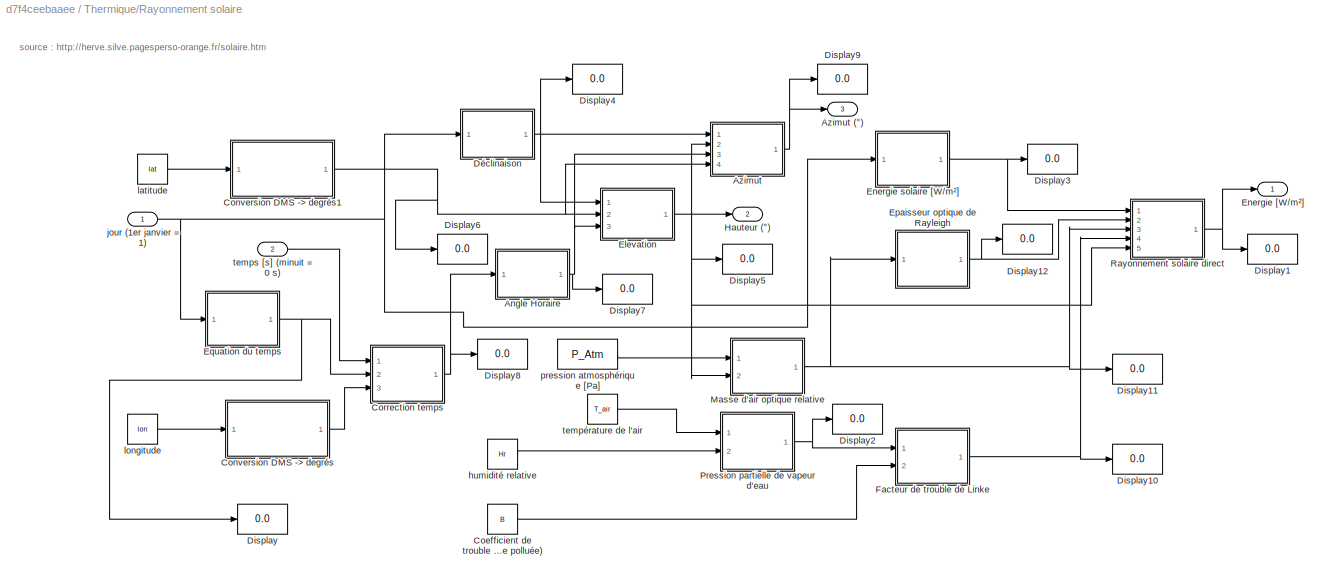
BLOCK [SubSystem] Thermique/Rayonnement solaire
  Ports = [2, 3]
  RequestExecContextInheritance = off
BLOCK [SubSystem] Thermique/Rayonnement solaire/Angle Horaire
  ErrorFcn = Stateflow.Translate.translate
  PermitHierarchicalResolution = ExplicitOnly
  Ports = [1, 1]
  RequestExecContextInheritance = off
  SFBlockType = MATLAB Function
  TreatAsAtomicUnit = on
BLOCK [Demux] Thermique/Rayonnement solaire/Angle Horaire/ Demux 
  Outputs = 1
  Ports = [1, 1]
BLOCK [S-Function] Thermique/Rayonnement solaire/Angle Horaire/ SFunction 
  EnableBusSupport = off
  FunctionName = sf_sfun
  PortCounts = [1 2]
  Ports = [1, 2]
  SFcnIsStateOwnerBlock = off
  SFunctionDeploymentMode = off
  Tag = Stateflow S-Function Library_SII 16
BLOCK [Terminator] Thermique/Rayonnement solaire/Angle Horaire/ Terminator 
BLOCK [Outport] Thermique/Rayonnement solaire/Angle Horaire/Ah
  IconDisplay = Port number
BLOCK [Inport] Thermique/Rayonnement solaire/Angle Horaire/tSV
  IconDisplay = Port number
BLOCK [SubSystem] Thermique/Rayonnement solaire/Azimut
  ErrorFcn = Stateflow.Translate.translate
  PermitHierarchicalResolution = ExplicitOnly
  Ports = [4, 1]
  RequestExecContextInheritance = off
  SFBlockType = MATLAB Function
  TreatAsAtomicUnit = on
BLOCK [Outport] Thermique/Rayonnement solaire/Azimut (°)
  IconDisplay = Port number
  Port = 3
BLOCK [Demux] Thermique/Rayonnement solaire/Azimut/ Demux 
  Outputs = 1
  Ports = [1, 1]
BLOCK [S-Function] Thermique/Rayonnement solaire/Azimut/ SFunction 
  EnableBusSupport = off
  FunctionName = sf_sfun
  PortCounts = [4 2]
  Ports = [4, 2]
  SFcnIsStateOwnerBlock = off
  SFunctionDeploymentMode = off
  Tag = Stateflow S-Function Library_SII 17
BLOCK [Terminator] Thermique/Rayonnement solaire/Azimut/ Terminator 
BLOCK [Inport] Thermique/Rayonnement solaire/Azimut/Ah
  IconDisplay = Port number
  Port = 3
BLOCK [Inport] Thermique/Rayonnement solaire/Azimut/Dec
  IconDisplay = Port number
BLOCK [Outport] Thermique/Rayonnement solaire/Azimut/a
  IconDisplay = Port number
BLOCK [Inport] Thermique/Rayonnement solaire/Azimut/h
  IconDisplay = Port number
  Port = 2
BLOCK [Inport] Thermique/Rayonnement solaire/Azimut/lat
  IconDisplay = Port number
  Port = 4
BLOCK [Constant] Thermique/Rayonnement solaire/Coefficient de trouble atmosphérique B = 0,02 pour un lieu situé en montagne B = 0,05 pour un lieu rural B = 0,10 pour un lieu urbain B = 0,20 pour un lieu industriel (atmosphère polluée)
  Value = B
BLOCK [SubSystem] Thermique/Rayonnement solaire/Conversion DMS -> degrés
  ErrorFcn = Stateflow.Translate.translate
  PermitHierarchicalResolution = ExplicitOnly
  Ports = [1, 1]
  RequestExecContextInheritance = off
  SFBlockType = MATLAB Function
  TreatAsAtomicUnit = on
BLOCK [Demux] Thermique/Rayonnement solaire/Conversion DMS -> degrés/ Demux 
  Outputs = 1
  Ports = [1, 1]
BLOCK [S-Function] Thermique/Rayonnement solaire/Conversion DMS -> degrés/ SFunction 
  EnableBusSupport = off
  FunctionName = sf_sfun
  PortCounts = [1 2]
  Ports = [1, 2]
  SFcnIsStateOwnerBlock = off
  SFunctionDeploymentMode = off
  Tag = Stateflow S-Function Library_SII 19
BLOCK [Terminator] Thermique/Rayonnement solaire/Conversion DMS -> degrés/ Terminator 
BLOCK [Inport] Thermique/Rayonnement solaire/Conversion DMS -> degrés/DMS
  IconDisplay = Port number
BLOCK [Outport] Thermique/Rayonnement solaire/Conversion DMS -> degrés/Degres
  IconDisplay = Port number
BLOCK [SubSystem] Thermique/Rayonnement solaire/Conversion DMS -> degrés1
  ErrorFcn = Stateflow.Translate.translate
  PermitHierarchicalResolution = ExplicitOnly
  Ports = [1, 1]
  RequestExecContextInheritance = off
  SFBlockType = MATLAB Function
  TreatAsAtomicUnit = on
BLOCK [Demux] Thermique/Rayonnement solaire/Conversion DMS -> degrés1/ Demux 
  Outputs = 1
  Ports = [1, 1]
BLOCK [S-Function] Thermique/Rayonnement solaire/Conversion DMS -> degrés1/ SFunction 
  EnableBusSupport = off
  FunctionName = sf_sfun
  PortCounts = [1 2]
  Ports = [1, 2]
  SFcnIsStateOwnerBlock = off
  SFunctionDeploymentMode = off
  Tag = Stateflow S-Function Library_SII 20
BLOCK [Terminator] Thermique/Rayonnement solaire/Conversion DMS -> degrés1/ Terminator 
BLOCK [Inport] Thermique/Rayonnement solaire/Conversion DMS -> degrés1/DMS
  IconDisplay = Port number
BLOCK [Outport] Thermique/Rayonnement solaire/Conversion DMS -> degrés1/Degres
  IconDisplay = Port number
BLOCK [SubSystem] Thermique/Rayonnement solaire/Correction temps
  ErrorFcn = Stateflow.Translate.translate
  PermitHierarchicalResolution = ExplicitOnly
  Ports = [3, 1]
  RequestExecContextInheritance = off
  SFBlockType = MATLAB Function
  TreatAsAtomicUnit = on
BLOCK [Demux] Thermique/Rayonnement solaire/Correction temps/ Demux 
  Outputs = 1
  Ports = [1, 1]
BLOCK [S-Function] Thermique/Rayonnement solaire/Correction temps/ SFunction 
  EnableBusSupport = off
  FunctionName = sf_sfun
  PortCounts = [3 2]
  Ports = [3, 2]
  SFcnIsStateOwnerBlock = off
  SFunctionDeploymentMode = off
  Tag = Stateflow S-Function Library_SII 21
BLOCK [Terminator] Thermique/Rayonnement solaire/Correction temps/ Terminator 
BLOCK [Inport] Thermique/Rayonnement solaire/Correction temps/E
  IconDisplay = Port number
  Port = 2
BLOCK [Inport] Thermique/Rayonnement solaire/Correction temps/lon
  IconDisplay = Port number
  Port = 3
BLOCK [Inport] Thermique/Rayonnement solaire/Correction temps/t
  IconDisplay = Port number
BLOCK [Outport] Thermique/Rayonnement solaire/Correction temps/tSV
  IconDisplay = Port number
BLOCK [Display] Thermique/Rayonnement solaire/Display
  Decimation = 1
  Ports = [1]
BLOCK [Display] Thermique/Rayonnement solaire/Display1
  Decimation = 1
  Ports = [1]
BLOCK [Display] Thermique/Rayonnement solaire/Display10
  Decimation = 1
  Ports = [1]
BLOCK [Display] Thermique/Rayonnement solaire/Display11
  Decimation = 1
  Ports = [1]
BLOCK [Display] Thermique/Rayonnement solaire/Display12
  Decimation = 1
  Ports = [1]
BLOCK [Display] Thermique/Rayonnement solaire/Display2
  Decimation = 1
  Ports = [1]
BLOCK [Display] Thermique/Rayonnement solaire/Display3
  Decimation = 1
  Ports = [1]
BLOCK [Display] Thermique/Rayonnement solaire/Display4
  Decimation = 1
  Ports = [1]
BLOCK [Display] Thermique/Rayonnement solaire/Display5
  Decimation = 1
  Ports = [1]
BLOCK [Display] Thermique/Rayonnement solaire/Display6
  Decimation = 1
  Ports = [1]
BLOCK [Display] Thermique/Rayonnement solaire/Display7
  Decimation = 1
  Ports = [1]
BLOCK [Display] Thermique/Rayonnement solaire/Display8
  Decimation = 1
  Ports = [1]
BLOCK [Display] Thermique/Rayonnement solaire/Display9
  Decimation = 1
  Ports = [1]
BLOCK [SubSystem] Thermique/Rayonnement solaire/Déclinaison
  ErrorFcn = Stateflow.Translate.translate
  PermitHierarchicalResolution = ExplicitOnly
  Ports = [1, 1]
  RequestExecContextInheritance = off
  SFBlockType = MATLAB Function
  TreatAsAtomicUnit = on
BLOCK [Demux] Thermique/Rayonnement solaire/Déclinaison/ Demux 
  Outputs = 1
  Ports = [1, 1]
BLOCK [S-Function] Thermique/Rayonnement solaire/Déclinaison/ SFunction 
  EnableBusSupport = off
  FunctionName = sf_sfun
  PortCounts = [1 2]
  Ports = [1, 2]
  SFcnIsStateOwnerBlock = off
  SFunctionDeploymentMode = off
  Tag = Stateflow S-Function Library_SII 22
BLOCK [Terminator] Thermique/Rayonnement solaire/Déclinaison/ Terminator 
BLOCK [Outport] Thermique/Rayonnement solaire/Déclinaison/Dec
  IconDisplay = Port number
BLOCK [Inport] Thermique/Rayonnement solaire/Déclinaison/j
  IconDisplay = Port number
BLOCK [SubSystem] Thermique/Rayonnement solaire/Elevation
  ErrorFcn = Stateflow.Translate.translate
  PermitHierarchicalResolution = ExplicitOnly
  Ports = [3, 1]
  RequestExecContextInheritance = off
  SFBlockType = MATLAB Function
  TreatAsAtomicUnit = on
BLOCK [Demux] Thermique/Rayonnement solaire/Elevation/ Demux 
  Outputs = 1
  Ports = [1, 1]
BLOCK [S-Function] Thermique/Rayonnement solaire/Elevation/ SFunction 
  EnableBusSupport = off
  FunctionName = sf_sfun
  PortCounts = [3 2]
  Ports = [3, 2]
  SFcnIsStateOwnerBlock = off
  SFunctionDeploymentMode = off
  Tag = Stateflow S-Function Library_SII 23
BLOCK [Terminator] Thermique/Rayonnement solaire/Elevation/ Terminator 
BLOCK [Inport] Thermique/Rayonnement solaire/Elevation/Ah
  IconDisplay = Port number
  Port = 3
BLOCK [Inport] Thermique/Rayonnement solaire/Elevation/Dec
  IconDisplay = Port number
BLOCK [Inport] Thermique/Rayonnement solaire/Elevation/Lat
  IconDisplay = Port number
  Port = 2
BLOCK [Outport] Thermique/Rayonnement solaire/Elevation/h
  IconDisplay = Port number
BLOCK [Outport] Thermique/Rayonnement solaire/Energie [W//m²]
  IconDisplay = Port number
BLOCK [SubSystem] Thermique/Rayonnement solaire/Energie solaire [W//m²]
  ErrorFcn = Stateflow.Translate.translate
  PermitHierarchicalResolution = ExplicitOnly
  Ports = [1, 1]
  RequestExecContextInheritance = off
  SFBlockType = MATLAB Function
  TreatAsAtomicUnit = on
BLOCK [Demux] Thermique/Rayonnement solaire/Energie solaire [W//m²]/ Demux 
  Outputs = 1
  Ports = [1, 1]
BLOCK [S-Function] Thermique/Rayonnement solaire/Energie solaire [W//m²]/ SFunction 
  EnableBusSupport = off
  FunctionName = sf_sfun
  PortCounts = [1 2]
  Ports = [1, 2]
  SFcnIsStateOwnerBlock = off
  SFunctionDeploymentMode = off
  Tag = Stateflow S-Function Library_SII 24
BLOCK [Terminator] Thermique/Rayonnement solaire/Energie solaire [W//m²]/ Terminator 
BLOCK [Outport] Thermique/Rayonnement solaire/Energie solaire [W//m²]/ESol
  IconDisplay = Port number
BLOCK [Inport] Thermique/Rayonnement solaire/Energie solaire [W//m²]/j
  IconDisplay = Port number
BLOCK [SubSystem] Thermique/Rayonnement solaire/Epaisseur optique de Rayleigh
  ErrorFcn = Stateflow.Translate.translate
  PermitHierarchicalResolution = ExplicitOnly
  Ports = [1, 1]
  RequestExecContextInheritance = off
  SFBlockType = MATLAB Function
  TreatAsAtomicUnit = on
BLOCK [Demux] Thermique/Rayonnement solaire/Epaisseur optique de Rayleigh/ Demux 
  Outputs = 1
  Ports = [1, 1]
BLOCK [S-Function] Thermique/Rayonnement solaire/Epaisseur optique de Rayleigh/ SFunction 
  EnableBusSupport = off
  FunctionName = sf_sfun
  PortCounts = [1 2]
  Ports = [1, 2]
  SFcnIsStateOwnerBlock = off
  SFunctionDeploymentMode = off
  Tag = Stateflow S-Function Library_SII 25
BLOCK [Terminator] Thermique/Rayonnement solaire/Epaisseur optique de Rayleigh/ Terminator 
BLOCK [Outport] Thermique/Rayonnement solaire/Epaisseur optique de Rayleigh/ER
  IconDisplay = Port number
BLOCK [Inport] Thermique/Rayonnement solaire/Epaisseur optique de Rayleigh/m
  IconDisplay = Port number
BLOCK [SubSystem] Thermique/Rayonnement solaire/Equation du temps
  ErrorFcn = Stateflow.Translate.translate
  PermitHierarchicalResolution = ExplicitOnly
  Ports = [1, 1]
  RequestExecContextInheritance = off
  SFBlockType = MATLAB Function
  TreatAsAtomicUnit = on
BLOCK [Demux] Thermique/Rayonnement solaire/Equation du temps/ Demux 
  Outputs = 1
  Ports = [1, 1]
BLOCK [S-Function] Thermique/Rayonnement solaire/Equation du temps/ SFunction 
  EnableBusSupport = off
  FunctionName = sf_sfun
  PortCounts = [1 2]
  Ports = [1, 2]
  SFcnIsStateOwnerBlock = off
  SFunctionDeploymentMode = off
  Tag = Stateflow S-Function Library_SII 26
BLOCK [Terminator] Thermique/Rayonnement solaire/Equation du temps/ Terminator 
BLOCK [Outport] Thermique/Rayonnement solaire/Equation du temps/E
  IconDisplay = Port number
BLOCK [Inport] Thermique/Rayonnement solaire/Equation du temps/j
  IconDisplay = Port number
BLOCK [SubSystem] Thermique/Rayonnement solaire/Facteur de trouble de Linke
  ErrorFcn = Stateflow.Translate.translate
  PermitHierarchicalResolution = ExplicitOnly
  Ports = [2, 1]
  RequestExecContextInheritance = off
  SFBlockType = MATLAB Function
  TreatAsAtomicUnit = on
BLOCK [Demux] Thermique/Rayonnement solaire/Facteur de trouble de Linke/ Demux 
  Outputs = 1
  Ports = [1, 1]
BLOCK [S-Function] Thermique/Rayonnement solaire/Facteur de trouble de Linke/ SFunction 
  EnableBusSupport = off
  FunctionName = sf_sfun
  PortCounts = [2 2]
  Ports = [2, 2]
  SFcnIsStateOwnerBlock = off
  SFunctionDeploymentMode = off
  Tag = Stateflow S-Function Library_SII 27
BLOCK [Terminator] Thermique/Rayonnement solaire/Facteur de trouble de Linke/ Terminator 
BLOCK [Inport] Thermique/Rayonnement solaire/Facteur de trouble de Linke/B
  IconDisplay = Port number
  Port = 2
BLOCK [Inport] Thermique/Rayonnement solaire/Facteur de trouble de Linke/Pv
  IconDisplay = Port number
BLOCK [Outport] Thermique/Rayonnement solaire/Facteur de trouble de Linke/TL
  IconDisplay = Port number
BLOCK [Outport] Thermique/Rayonnement solaire/Hauteur (°)
  IconDisplay = Port number
  Port = 2
BLOCK [SubSystem] Thermique/Rayonnement solaire/Masse d'air optique relative
  ErrorFcn = Stateflow.Translate.translate
  PermitHierarchicalResolution = ExplicitOnly
  Ports = [2, 1]
  RequestExecContextInheritance = off
  SFBlockType = MATLAB Function
  TreatAsAtomicUnit = on
BLOCK [Demux] Thermique/Rayonnement solaire/Masse d'air optique relative/ Demux 
  Outputs = 1
  Ports = [1, 1]
BLOCK [S-Function] Thermique/Rayonnement solaire/Masse d'air optique relative/ SFunction 
  EnableBusSupport = off
  FunctionName = sf_sfun
  PortCounts = [2 2]
  Ports = [2, 2]
  SFcnIsStateOwnerBlock = off
  SFunctionDeploymentMode = off
  Tag = Stateflow S-Function Library_SII 28
BLOCK [Terminator] Thermique/Rayonnement solaire/Masse d'air optique relative/ Terminator 
BLOCK [Inport] Thermique/Rayonnement solaire/Masse d'air optique relative/PAtm
  IconDisplay = Port number
BLOCK [Inport] Thermique/Rayonnement solaire/Masse d'air optique relative/h
  IconDisplay = Port number
  Port = 2
BLOCK [Outport] Thermique/Rayonnement solaire/Masse d'air optique relative/m
  IconDisplay = Port number
BLOCK [SubSystem] Thermique/Rayonnement solaire/Pression partielle de vapeur d'eau
  ErrorFcn = Stateflow.Translate.translate
  PermitHierarchicalResolution = ExplicitOnly
  Ports = [2, 1]
  RequestExecContextInheritance = off
  SFBlockType = MATLAB Function
  TreatAsAtomicUnit = on
BLOCK [Demux] Thermique/Rayonnement solaire/Pression partielle de vapeur d'eau/ Demux 
  Outputs = 1
  Ports = [1, 1]
BLOCK [S-Function] Thermique/Rayonnement solaire/Pression partielle de vapeur d'eau/ SFunction 
  EnableBusSupport = off
  FunctionName = sf_sfun
  PortCounts = [2 2]
  Ports = [2, 2]
  SFcnIsStateOwnerBlock = off
  SFunctionDeploymentMode = off
  Tag = Stateflow S-Function Library_SII 29
BLOCK [Terminator] Thermique/Rayonnement solaire/Pression partielle de vapeur d'eau/ Terminator 
BLOCK [Inport] Thermique/Rayonnement solaire/Pression partielle de vapeur d'eau/HR
  IconDisplay = Port number
  Port = 2
BLOCK [Outport] Thermique/Rayonnement solaire/Pression partielle de vapeur d'eau/Pv
  IconDisplay = Port number
BLOCK [Inport] Thermique/Rayonnement solaire/Pression partielle de vapeur d'eau/T
  IconDisplay = Port number
BLOCK [SubSystem] Thermique/Rayonnement solaire/Rayonnement solaire direct
  ErrorFcn = Stateflow.Translate.translate
  PermitHierarchicalResolution = ExplicitOnly
  Ports = [5, 1]
  RequestExecContextInheritance = off
  SFBlockType = MATLAB Function
  TreatAsAtomicUnit = on
BLOCK [Demux] Thermique/Rayonnement solaire/Rayonnement solaire direct/ Demux 
  Outputs = 1
  Ports = [1, 1]
BLOCK [S-Function] Thermique/Rayonnement solaire/Rayonnement solaire direct/ SFunction 
  EnableBusSupport = off
  FunctionName = sf_sfun
  PortCounts = [5 2]
  Ports = [5, 2]
  SFcnIsStateOwnerBlock = off
  SFunctionDeploymentMode = off
  Tag = Stateflow S-Function Library_SII 30
BLOCK [Terminator] Thermique/Rayonnement solaire/Rayonnement solaire direct/ Terminator 
BLOCK [Inport] Thermique/Rayonnement solaire/Rayonnement solaire direct/ER
  IconDisplay = Port number
  Port = 2
BLOCK [Inport] Thermique/Rayonnement solaire/Rayonnement solaire direct/ESol
  IconDisplay = Port number
BLOCK [Outport] Thermique/Rayonnement solaire/Rayonnement solaire direct/I
  IconDisplay = Port number
BLOCK [Inport] Thermique/Rayonnement solaire/Rayonnement solaire direct/TL
  IconDisplay = Port number
  Port = 4
BLOCK [Inport] Thermique/Rayonnement solaire/Rayonnement solaire direct/h
  IconDisplay = Port number
  Port = 5
BLOCK [Inport] Thermique/Rayonnement solaire/Rayonnement solaire direct/m
  IconDisplay = Port number
  Port = 3
BLOCK [Constant] Thermique/Rayonnement solaire/humidité relative
  Value = Hr
BLOCK [Inport] Thermique/Rayonnement solaire/jour (1er janvier = 1)
  IconDisplay = Port number
BLOCK [Constant] Thermique/Rayonnement solaire/latitude
  Value = lat
BLOCK [Constant] Thermique/Rayonnement solaire/longitude
  Value = lon
BLOCK [Constant] Thermique/Rayonnement solaire/pression atmosphérique [Pa]
  Value = P_Atm
BLOCK [Inport] Thermique/Rayonnement solaire/temps [s] (minuit = 0 s)
  IconDisplay = Port number
  Port = 2
BLOCK [Constant] Thermique/Rayonnement solaire/température de l'air
  Value = T_air
BLOCK [Reference] Thermique/Variable convective Heat Transfer  REF=Simscape_SII_lib/Variable convective
Heat Transfer
  Ports = [0, 0, 0, 0, 0, 2, 1]
  SourceBlock = Simscape_SII_lib/Variable convective\nHeat Transfer
  SourceType = Variable convective\nHeat Transfer
BLOCK [SubSystem] Thermique/Vitrage
  Ports = [0, 2, 0, 0, 0, 1, 1]
  RequestExecContextInheritance = off
BLOCK [Reference] Thermique/Vitrage/Conv_ext  REF=fl_lib/Thermal/Thermal Elements/Convective Heat
Transfer
  Ports = [0, 0, 0, 0, 0, 1, 1]
  SourceBlock = fl_lib/Thermal/Thermal Elements/Convective Heat\nTransfer
  SourceProductBaseCode = SS
  SourceProductName = Simscape
  SourceType = Convective Heat\nTransfer
BLOCK [Reference] Thermique/Vitrage/Conv_int  REF=fl_lib/Thermal/Thermal Elements/Convective Heat
Transfer
  Ports = [0, 0, 0, 0, 0, 1, 1]
  SourceBlock = fl_lib/Thermal/Thermal Elements/Convective Heat\nTransfer
  SourceProductBaseCode = SS
  SourceProductName = Simscape
  SourceType = Convective Heat\nTransfer
BLOCK [Reference] Thermique/Vitrage/Gaz_ext  REF=fl_lib/Thermal/Thermal Elements/Convective Heat
Transfer
  Ports = [0, 0, 0, 0, 0, 1, 1]
  SourceBlock = fl_lib/Thermal/Thermal Elements/Convective Heat\nTransfer
  SourceProductBaseCode = SS
  SourceProductName = Simscape
  SourceType = Convective Heat\nTransfer
BLOCK [Reference] Thermique/Vitrage/Gaz_int  REF=fl_lib/Thermal/Thermal Elements/Convective Heat
Transfer
  Ports = [0, 0, 0, 0, 0, 1, 1]
  SourceBlock = fl_lib/Thermal/Thermal Elements/Convective Heat\nTransfer
  SourceProductBaseCode = SS
  SourceProductName = Simscape
  SourceType = Convective Heat\nTransfer
BLOCK [Reference] Thermique/Vitrage/Ideal Temperature Sensor  REF=fl_lib/Thermal/Thermal Sensors/Temperature Sensor
  Ports = [0, 0, 0, 0, 0, 1, 2]
  SourceBlock = fl_lib/Thermal/Thermal Sensors/Temperature Sensor
  SourceProductBaseCode = SS
  SourceProductName = Simscape
  SourceType = Temperature Sensor
BLOCK [Reference] Thermique/Vitrage/Ideal Temperature Sensor1  REF=fl_lib/Thermal/Thermal Sensors/Temperature Sensor
  Ports = [0, 0, 0, 0, 0, 1, 2]
  SourceBlock = fl_lib/Thermal/Thermal Sensors/Temperature Sensor
  SourceProductBaseCode = SS
  SourceProductName = Simscape
  SourceType = Temperature Sensor
BLOCK [Reference] Thermique/Vitrage/PS-Simulink Converter  REF=nesl_utility/PS-Simulink
Converter
  Ports = [0, 1, 0, 0, 0, 1]
  SourceBlock = nesl_utility/PS-Simulink\nConverter
  SourceProductBaseCode = SS
  SourceProductName = Simscape
  SourceType = PS-Simulink\nConverter
BLOCK [Reference] Thermique/Vitrage/PS-Simulink Converter1  REF=nesl_utility/PS-Simulink
Converter
  Ports = [0, 1, 0, 0, 0, 1]
  SourceBlock = nesl_utility/PS-Simulink\nConverter
  SourceProductBaseCode = SS
  SourceProductName = Simscape
  SourceType = PS-Simulink\nConverter
BLOCK [Outport] Thermique/Vitrage/Te
  IconDisplay = Port number
  Port = 2
BLOCK [Terminator] Thermique/Vitrage/Terminator
BLOCK [Terminator] Thermique/Vitrage/Terminator1
BLOCK [Terminator] Thermique/Vitrage/Terminator2
BLOCK [Reference] Thermique/Vitrage/Thermal Reference1  REF=fl_lib/Thermal/Thermal Elements/Thermal Reference
  Ports = [0, 0, 0, 0, 0, 1]
  SourceBlock = fl_lib/Thermal/Thermal Elements/Thermal Reference
  SourceProductBaseCode = SS
  SourceProductName = Simscape
  SourceType = Thermal Reference
BLOCK [Reference] Thermique/Vitrage/Thermal Reference2  REF=fl_lib/Thermal/Thermal Elements/Thermal Reference
  Ports = [0, 0, 0, 0, 0, 1]
  SourceBlock = fl_lib/Thermal/Thermal Elements/Thermal Reference
  SourceProductBaseCode = SS
  SourceProductName = Simscape
  SourceType = Thermal Reference
BLOCK [Outport] Thermique/Vitrage/Ti
  IconDisplay = Port number
BLOCK [SubSystem] Thermique/Vitrage/Verre
  Ports = [0, 1, 0, 0, 0, 1, 1]
  RequestExecContextInheritance = off
BLOCK [Reference] Thermique/Vitrage/Verre/Conductive_ext  REF=fl_lib/Thermal/Thermal Elements/Conductive Heat
Transfer
  Ports = [0, 0, 0, 0, 0, 1, 1]
  SourceBlock = fl_lib/Thermal/Thermal Elements/Conductive Heat\nTransfer
  SourceProductBaseCode = SS
  SourceProductName = Simscape
  SourceType = Conductive Heat\nTransfer
BLOCK [Reference] Thermique/Vitrage/Verre/Conductive_int  REF=fl_lib/Thermal/Thermal Elements/Conductive Heat
Transfer
  Ports = [0, 0, 0, 0, 0, 1, 1]
  SourceBlock = fl_lib/Thermal/Thermal Elements/Conductive Heat\nTransfer
  SourceProductBaseCode = SS
  SourceProductName = Simscape
  SourceType = Conductive Heat\nTransfer
BLOCK [Reference] Thermique/Vitrage/Verre/Ideal Temperature Sensor  REF=fl_lib/Thermal/Thermal Sensors/Temperature Sensor
  Ports = [0, 0, 0, 0, 0, 1, 2]
  SourceBlock = fl_lib/Thermal/Thermal Sensors/Temperature Sensor
  SourceProductBaseCode = SS
  SourceProductName = Simscape
  SourceType = Temperature Sensor
BLOCK [Reference] Thermique/Vitrage/Verre/Inertie  REF=fl_lib/Thermal/Thermal Elements/Thermal Mass
  Ports = [0, 0, 0, 0, 0, 1]
  SourceBlock = fl_lib/Thermal/Thermal Elements/Thermal Mass
  SourceProductBaseCode = SS
  SourceProductName = Simscape
  SourceType = Thermal Mass
BLOCK [PMIOPort] Thermique/Vitrage/Verre/L
  Side = Left
BLOCK [Reference] Thermique/Vitrage/Verre/PS-Simulink Converter  REF=nesl_utility/PS-Simulink
Converter
  Ports = [0, 1, 0, 0, 0, 1]
  SourceBlock = nesl_utility/PS-Simulink\nConverter
  SourceProductBaseCode = SS
  SourceProductName = Simscape
  SourceType = PS-Simulink\nConverter
BLOCK [PMIOPort] Thermique/Vitrage/Verre/R
  Port = 2
  Side = Right
BLOCK [Outport] Thermique/Vitrage/Verre/T
  IconDisplay = Port number
BLOCK [Reference] Thermique/Vitrage/Verre/Thermal Reference1  REF=fl_lib/Thermal/Thermal Elements/Thermal Reference
  Ports = [0, 0, 0, 0, 0, 1]
  SourceBlock = fl_lib/Thermal/Thermal Elements/Thermal Reference
  SourceProductBaseCode = SS
  SourceProductName = Simscape
  SourceType = Thermal Reference
BLOCK [SubSystem] Thermique/Vitrage/Verre_ext
  Ports = [0, 1, 0, 0, 0, 1, 1]
  RequestExecContextInheritance = off
BLOCK [Reference] Thermique/Vitrage/Verre_ext/Conductive_ext  REF=fl_lib/Thermal/Thermal Elements/Conductive Heat
Transfer
  Ports = [0, 0, 0, 0, 0, 1, 1]
  SourceBlock = fl_lib/Thermal/Thermal Elements/Conductive Heat\nTransfer
  SourceProductBaseCode = SS
  SourceProductName = Simscape
  SourceType = Conductive Heat\nTransfer
BLOCK [Reference] Thermique/Vitrage/Verre_ext/Conductive_int  REF=fl_lib/Thermal/Thermal Elements/Conductive Heat
Transfer
  Ports = [0, 0, 0, 0, 0, 1, 1]
  SourceBlock = fl_lib/Thermal/Thermal Elements/Conductive Heat\nTransfer
  SourceProductBaseCode = SS
  SourceProductName = Simscape
  SourceType = Conductive Heat\nTransfer
BLOCK [Reference] Thermique/Vitrage/Verre_ext/Ideal Temperature Sensor  REF=fl_lib/Thermal/Thermal Sensors/Temperature Sensor
  Ports = [0, 0, 0, 0, 0, 1, 2]
  SourceBlock = fl_lib/Thermal/Thermal Sensors/Temperature Sensor
  SourceProductBaseCode = SS
  SourceProductName = Simscape
  SourceType = Temperature Sensor
BLOCK [Reference] Thermique/Vitrage/Verre_ext/Inertie  REF=fl_lib/Thermal/Thermal Elements/Thermal Mass
  Ports = [0, 0, 0, 0, 0, 1]
  SourceBlock = fl_lib/Thermal/Thermal Elements/Thermal Mass
  SourceProductBaseCode = SS
  SourceProductName = Simscape
  SourceType = Thermal Mass
BLOCK [PMIOPort] Thermique/Vitrage/Verre_ext/L
  Side = Left
BLOCK [Reference] Thermique/Vitrage/Verre_ext/PS-Simulink Converter  REF=nesl_utility/PS-Simulink
Converter
  Ports = [0, 1, 0, 0, 0, 1]
  SourceBlock = nesl_utility/PS-Simulink\nConverter
  SourceProductBaseCode = SS
  SourceProductName = Simscape
  SourceType = PS-Simulink\nConverter
BLOCK [PMIOPort] Thermique/Vitrage/Verre_ext/R
  Port = 2
  Side = Right
BLOCK [Outport] Thermique/Vitrage/Verre_ext/T
  IconDisplay = Port number
BLOCK [Reference] Thermique/Vitrage/Verre_ext/Thermal Reference1  REF=fl_lib/Thermal/Thermal Elements/Thermal Reference
  Ports = [0, 0, 0, 0, 0, 1]
  SourceBlock = fl_lib/Thermal/Thermal Elements/Thermal Reference
  SourceProductBaseCode = SS
  SourceProductName = Simscape
  SourceType = Thermal Reference
BLOCK [SubSystem] Thermique/Vitrage/Verre_int
  Ports = [0, 1, 0, 0, 0, 1, 1]
  RequestExecContextInheritance = off
BLOCK [Reference] Thermique/Vitrage/Verre_int/Conductive_ext  REF=fl_lib/Thermal/Thermal Elements/Conductive Heat
Transfer
  Ports = [0, 0, 0, 0, 0, 1, 1]
  SourceBlock = fl_lib/Thermal/Thermal Elements/Conductive Heat\nTransfer
  SourceProductBaseCode = SS
  SourceProductName = Simscape
  SourceType = Conductive Heat\nTransfer
BLOCK [Reference] Thermique/Vitrage/Verre_int/Conductive_int  REF=fl_lib/Thermal/Thermal Elements/Conductive Heat
Transfer
  Ports = [0, 0, 0, 0, 0, 1, 1]
  SourceBlock = fl_lib/Thermal/Thermal Elements/Conductive Heat\nTransfer
  SourceProductBaseCode = SS
  SourceProductName = Simscape
  SourceType = Conductive Heat\nTransfer
BLOCK [Reference] Thermique/Vitrage/Verre_int/Ideal Temperature Sensor  REF=fl_lib/Thermal/Thermal Sensors/Temperature Sensor
  Ports = [0, 0, 0, 0, 0, 1, 2]
  SourceBlock = fl_lib/Thermal/Thermal Sensors/Temperature Sensor
  SourceProductBaseCode = SS
  SourceProductName = Simscape
  SourceType = Temperature Sensor
BLOCK [Reference] Thermique/Vitrage/Verre_int/Inertie  REF=fl_lib/Thermal/Thermal Elements/Thermal Mass
  Ports = [0, 0, 0, 0, 0, 1]
  SourceBlock = fl_lib/Thermal/Thermal Elements/Thermal Mass
  SourceProductBaseCode = SS
  SourceProductName = Simscape
  SourceType = Thermal Mass
BLOCK [PMIOPort] Thermique/Vitrage/Verre_int/L
  Side = Left
BLOCK [Reference] Thermique/Vitrage/Verre_int/PS-Simulink Converter  REF=nesl_utility/PS-Simulink
Converter
  Ports = [0, 1, 0, 0, 0, 1]
  SourceBlock = nesl_utility/PS-Simulink\nConverter
  SourceProductBaseCode = SS
  SourceProductName = Simscape
  SourceType = PS-Simulink\nConverter
BLOCK [PMIOPort] Thermique/Vitrage/Verre_int/R
  Port = 2
  Side = Right
BLOCK [Outport] Thermique/Vitrage/Verre_int/T
  IconDisplay = Port number
BLOCK [Reference] Thermique/Vitrage/Verre_int/Thermal Reference1  REF=fl_lib/Thermal/Thermal Elements/Thermal Reference
  Ports = [0, 0, 0, 0, 0, 1]
  SourceBlock = fl_lib/Thermal/Thermal Elements/Thermal Reference
  SourceProductBaseCode = SS
  SourceProductName = Simscape
  SourceType = Thermal Reference
BLOCK [PMIOPort] Thermique/Vitrage/ext
  Port = 2
  Side = Right
BLOCK [PMIOPort] Thermique/Vitrage/int
  Side = Left
ANNOTATION Electronique/Cellule Photovoltaique SPS/Estimation température cellule: Estimation de la température de la cellule Ta en °C Es en W/m² Tj en °C
ANNOTATION Signaux/Codeur incrémental: Condition initiale au début
ANNOTATION Thermique/Rayonnement solaire: source : http://herve.silve.pagesperso-orange.fr/solaire.htm
NET Electromécanique/Décodeur pour codeur incrémental/A:1 -> Electromécanique/Décodeur pour codeur incrémental/Décodeur position - vitesse accélération - fréquence:1, Electromécanique/Décodeur pour codeur incrémental/Décodeur position - vitesse accélération - fréquence:trigger
LINE Electromécanique/Décodeur pour codeur incrémental/B:1 -> Electromécanique/Décodeur pour codeur incrémental/Décodeur position - vitesse accélération - fréquence:2
LINE Electromécanique/Décodeur pour codeur incrémental/Clock1:1 -> Electromécanique/Décodeur pour codeur incrémental/Décodeur position - vitesse accélération - fréquence:4
LINE Electromécanique/Décodeur pour codeur incrémental/Décodeur position - vitesse accélération - fréquence:1 -> Electromécanique/Décodeur pour codeur incrémental/pos codeur:1
LINE Electromécanique/Décodeur pour codeur incrémental/Décodeur position - vitesse accélération - fréquence:2 -> Electromécanique/Décodeur pour codeur incrémental/Terminator:1
LINE Electromécanique/Décodeur pour codeur incrémental/Décodeur position - vitesse accélération - fréquence:3 -> Electromécanique/Décodeur pour codeur incrémental/Terminator1:1
LINE Electromécanique/Décodeur pour codeur incrémental/Décodeur position - vitesse accélération - fréquence:4 -> Electromécanique/Décodeur pour codeur incrémental/Terminator2:1
LINE Electromécanique/Décodeur pour codeur incrémental/MATLAB Function:1 -> Electromécanique/Décodeur pour codeur incrémental/Décodeur position - vitesse accélération - fréquence:3
LINE Electromécanique/Décodeur pour codeur incrémental/Résolution:1 -> Electromécanique/Décodeur pour codeur incrémental/MATLAB Function:1
LINE Electromécanique/Décodeur pour codeur incrémental/inversion:1 -> Electromécanique/Décodeur pour codeur incrémental/MATLAB Function:2
LINE Electromécanique/Moteur CC (SPS-SM)/Actionneur en vitesse/Derivative:1 -> Electromécanique/Moteur CC (SPS-SM)/Actionneur en vitesse/Mux1:3
LINE Electromécanique/Moteur CC (SPS-SM)/Actionneur en vitesse/Integrator:1 -> Electromécanique/Moteur CC (SPS-SM)/Actionneur en vitesse/Mux1:1
LINE Electromécanique/Moteur CC (SPS-SM)/Actionneur en vitesse/Mux1:1 -> Electromécanique/Moteur CC (SPS-SM)/Actionneur en vitesse/Joint Actuator:1
NET Electromécanique/Moteur CC (SPS-SM)/Actionneur en vitesse/signal:1 -> Electromécanique/Moteur CC (SPS-SM)/Actionneur en vitesse/Derivative:1, Electromécanique/Moteur CC (SPS-SM)/Actionneur en vitesse/Integrator:1, Electromécanique/Moteur CC (SPS-SM)/Actionneur en vitesse/Mux1:2
LINE Electromécanique/Moteur CC (SPS-SM)/Bus Selector:1 -> Electromécanique/Moteur CC (SPS-SM)/Couple moteur:1
LINE Electromécanique/Moteur CC (SPS-SM)/Bus Selector:2 -> Electromécanique/Moteur CC (SPS-SM)/Actionneur en vitesse:1
LINE Electromécanique/Moteur CC (SPS-SM)/Capteur de couple:1 -> Electromécanique/Moteur CC (SPS-SM)/Demux:1
LINE Electromécanique/Moteur CC (SPS-SM)/DC Machine:1 -> Electromécanique/Moteur CC (SPS-SM)/Bus Selector:1
LINE Electromécanique/Moteur CC (SPS-SM)/Demux:1 -> Electromécanique/Moteur CC (SPS-SM)/Gain:1
LINE Electromécanique/Moteur CC (SPS-SM)/Demux:2 -> Electromécanique/Moteur CC (SPS-SM)/T:1
LINE Electromécanique/Moteur CC (SPS-SM)/Demux:3 -> Electromécanique/Moteur CC (SPS-SM)/T1:1
NET Electromécanique/Moteur CC (SPS-SM)/Gain:1 -> Electromécanique/Moteur CC (SPS-SM)/Couple résistant:1, Electromécanique/Moteur CC (SPS-SM)/DC Machine:1
LINE Electromécanique/Moteur CC (SPS-SS)/Bus Selector:1 -> Electromécanique/Moteur CC (SPS-SS)/Couple moteur:1
LINE Electromécanique/Moteur CC (SPS-SS)/Bus Selector:2 -> Electromécanique/Moteur CC (SPS-SS)/Simulink-PS Converter:1
LINE Electromécanique/Moteur CC (SPS-SS)/DC Machine:1 -> Electromécanique/Moteur CC (SPS-SS)/Bus Selector:1
NET Electromécanique/Moteur CC (SPS-SS)/Gain:1 -> Electromécanique/Moteur CC (SPS-SS)/Couple résistant:1, Electromécanique/Moteur CC (SPS-SS)/DC Machine:1
LINE Electromécanique/Moteur CC (SPS-SS)/PS-Simulink Converter:1 -> Electromécanique/Moteur CC (SPS-SS)/Gain:1
LINE Electromécanique/Moteur PaP (SPS-SS)/Bus Selector:1 -> Electromécanique/Moteur PaP (SPS-SS)/Couple moteur:1
LINE Electromécanique/Moteur PaP (SPS-SS)/Bus Selector:2 -> Electromécanique/Moteur PaP (SPS-SS)/Simulink-PS Converter:1
NET Electromécanique/Moteur PaP (SPS-SS)/Gain:1 -> Electromécanique/Moteur PaP (SPS-SS)/Couple résistant:1, Electromécanique/Moteur PaP (SPS-SS)/Hybrid Stepper Motor:1
LINE Electromécanique/Moteur PaP (SPS-SS)/Hybrid Stepper Motor:1 -> Electromécanique/Moteur PaP (SPS-SS)/Bus Selector:1
LINE Electromécanique/Moteur PaP (SPS-SS)/PS-Simulink Converter:1 -> Electromécanique/Moteur PaP (SPS-SS)/Gain:1
LINE Electromécanique/Pont en H/Commande du pont en H:1 -> Electromécanique/Pont en H/Simulink-PS Converter1:1
LINE Electromécanique/Pont en H/Commande du pont en H:2 -> Electromécanique/Pont en H/Simulink-PS Converter3:1
LINE Electromécanique/Pont en H/Commande du pont en H:3 -> Electromécanique/Pont en H/Simulink-PS Converter5:1
LINE Electromécanique/Pont en H/Commande du pont en H:4 -> Electromécanique/Pont en H/Simulink-PS Converter4:1
LINE Electromécanique/Pont en H/mode:1 -> Electromécanique/Pont en H/Commande du pont en H:1
LINE Electromécanique/Servomoteur modèle de connaissance/Commande du pont en H:1 -> Electromécanique/Servomoteur modèle de connaissance/Simulink-PS Converter1:1
LINE Electromécanique/Servomoteur modèle de connaissance/Commande du pont en H:2 -> Electromécanique/Servomoteur modèle de connaissance/Simulink-PS Converter3:1
LINE Electromécanique/Servomoteur modèle de connaissance/Commande du pont en H:3 -> Electromécanique/Servomoteur modèle de connaissance/Simulink-PS Converter5:1
LINE Electromécanique/Servomoteur modèle de connaissance/Commande du pont en H:4 -> Electromécanique/Servomoteur modèle de connaissance/Simulink-PS Converter4:1
LINE Electromécanique/Servomoteur modèle de connaissance/Constant:1 -> Electromécanique/Servomoteur modèle de connaissance/Commande du pont en H:2
NET Electromécanique/Servomoteur modèle de connaissance/Echantillonage:1 -> Electromécanique/Servomoteur modèle de connaissance/Memory:1, Electromécanique/Servomoteur modèle de connaissance/a [°]:1
LINE Electromécanique/Servomoteur modèle de connaissance/Gain1:1 -> Electromécanique/Servomoteur modèle de connaissance/w [°//s]:1
LINE Electromécanique/Servomoteur modèle de connaissance/Gain:1 -> Electromécanique/Servomoteur modèle de connaissance/Echantillonage:2
LINE Electromécanique/Servomoteur modèle de connaissance/Memory:1 -> Electromécanique/Servomoteur modèle de connaissance/Sum:2
LINE Electromécanique/Servomoteur modèle de connaissance/PS-Simulink Converter1:1 -> Electromécanique/Servomoteur modèle de connaissance/Gain1:1
LINE Electromécanique/Servomoteur modèle de connaissance/PS-Simulink Converter3:1 -> Electromécanique/Servomoteur modèle de connaissance/Cm [Nm]:1
LINE Electromécanique/Servomoteur modèle de connaissance/PS-Simulink Converter:1 -> Electromécanique/Servomoteur modèle de connaissance/Gain:1
LINE Electromécanique/Servomoteur modèle de connaissance/Sum:1 -> Electromécanique/Servomoteur modèle de connaissance/Commande du pont en H:1
LINE Electromécanique/Servomoteur modèle de connaissance/angle [°]:1 -> Electromécanique/Servomoteur modèle de connaissance/Sum:1
LINE Electromécanique/Servomoteur modèle de connaissance/période:1 -> Electromécanique/Servomoteur modèle de connaissance/Echantillonage:1
LINE Electromécanique/Servomoteur simple V1/Gain1:1 -> Electromécanique/Servomoteur simple V1/w [°//s]:1
LINE Electromécanique/Servomoteur simple V1/Gain2:1 -> Electromécanique/Servomoteur simple V1/Sum:1
LINE Electromécanique/Servomoteur simple V1/Gain3:1 -> Electromécanique/Servomoteur simple V1/Saturation Dynamic:3
LINE Electromécanique/Servomoteur simple V1/Gain:1 -> Electromécanique/Servomoteur simple V1/a [°]:1
NET Electromécanique/Servomoteur simple V1/Memory1:1 -> Electromécanique/Servomoteur simple V1/Gain3:1, Electromécanique/Servomoteur simple V1/Saturation Dynamic:1
LINE Electromécanique/Servomoteur simple V1/PID Controller:1 -> Electromécanique/Servomoteur simple V1/Saturation Dynamic:2
LINE Electromécanique/Servomoteur simple V1/PS-Simulink Converter1:1 -> Electromécanique/Servomoteur simple V1/Gain1:1
LINE Electromécanique/Servomoteur simple V1/PS-Simulink Converter2:1 -> Electromécanique/Servomoteur simple V1/Memory1:1
LINE Electromécanique/Servomoteur simple V1/PS-Simulink Converter3:1 -> Electromécanique/Servomoteur simple V1/C [Nm]:1
NET Electromécanique/Servomoteur simple V1/PS-Simulink Converter:1 -> Electromécanique/Servomoteur simple V1/Gain:1, Electromécanique/Servomoteur simple V1/Sum:2
LINE Electromécanique/Servomoteur simple V1/Saturation Dynamic:1 -> Electromécanique/Servomoteur simple V1/Simulink-PS Converter:1
LINE Electromécanique/Servomoteur simple V1/Sum:1 -> Electromécanique/Servomoteur simple V1/PID Controller:1
LINE Electromécanique/Servomoteur simple V1/angle [°]:1 -> Electromécanique/Servomoteur simple V1/Gain2:1
LINE Electromécanique/Servomoteur/Compare To Constant:1 -> Electromécanique/Servomoteur/PID Controller:2
LINE Electromécanique/Servomoteur/Gain1:1 -> Electromécanique/Servomoteur/w [°//s]:1
LINE Electromécanique/Servomoteur/Gain2:1 -> Electromécanique/Servomoteur/PID Controller:1
NET Electromécanique/Servomoteur/Gain:1 -> Electromécanique/Servomoteur/Sum:2, Electromécanique/Servomoteur/a [°]:1
NET Electromécanique/Servomoteur/ON//OFF:1 -> Electromécanique/Servomoteur/Compare To Constant:1, Electromécanique/Servomoteur/Simulink-PS Converter2:1
LINE Electromécanique/Servomoteur/PID Controller:1 -> Electromécanique/Servomoteur/Simulink-PS Converter1:1
LINE Electromécanique/Servomoteur/PS-Simulink Converter1:1 -> Electromécanique/Servomoteur/Gain1:1
LINE Electromécanique/Servomoteur/PS-Simulink Converter3:1 -> Electromécanique/Servomoteur/Cm [Nm]:1
LINE Electromécanique/Servomoteur/PS-Simulink Converter:1 -> Electromécanique/Servomoteur/Gain:1
LINE Electromécanique/Servomoteur/Sum:1 -> Electromécanique/Servomoteur/Gain2:1
LINE Electromécanique/Servomoteur/angle [°]:1 -> Electromécanique/Servomoteur/Sum:1
LINE Electronique/Ampèremètre/S-PS:1 -> Electronique/Ampèremètre/Out1:1
LINE Electronique/Cellule Photovoltaique SPS/Add:1 -> Electronique/Cellule Photovoltaique SPS/Is:1
LINE Electronique/Cellule Photovoltaique SPS/Courant de saturation diode/Fcn:1 -> Electronique/Cellule Photovoltaique SPS/Courant de saturation diode/Id0:1
LINE Electronique/Cellule Photovoltaique SPS/Courant de saturation diode/Mux:1 -> Electronique/Cellule Photovoltaique SPS/Courant de saturation diode/Fcn:1
LINE Electronique/Cellule Photovoltaique SPS/Courant de saturation diode/Tj:1 -> Electronique/Cellule Photovoltaique SPS/Courant de saturation diode/Mux:1
LINE Electronique/Cellule Photovoltaique SPS/Courant de saturation diode/Vt:1 -> Electronique/Cellule Photovoltaique SPS/Courant de saturation diode/Mux:2
LINE Electronique/Cellule Photovoltaique SPS/Courant de saturation diode:1 -> Electronique/Cellule Photovoltaique SPS/Courant diode:2
LINE Electronique/Cellule Photovoltaique SPS/Courant diode/Fcn:1 -> Electronique/Cellule Photovoltaique SPS/Courant diode/Id:1
LINE Electronique/Cellule Photovoltaique SPS/Courant diode/I0d:1 -> Electronique/Cellule Photovoltaique SPS/Courant diode/Mux:2
LINE Electronique/Cellule Photovoltaique SPS/Courant diode/Mux:1 -> Electronique/Cellule Photovoltaique SPS/Courant diode/Fcn:1
LINE Electronique/Cellule Photovoltaique SPS/Courant diode/Vd:1 -> Electronique/Cellule Photovoltaique SPS/Courant diode/Mux:1
LINE Electronique/Cellule Photovoltaique SPS/Courant diode/Vt:1 -> Electronique/Cellule Photovoltaique SPS/Courant diode/Mux:3
LINE Electronique/Cellule Photovoltaique SPS/Courant diode:1 -> Electronique/Cellule Photovoltaique SPS/Add:1
LINE Electronique/Cellule Photovoltaique SPS/Courant gégéré par l'éclairement/Fcn:1 -> Electronique/Cellule Photovoltaique SPS/Courant gégéré par l'éclairement/Iph:1
LINE Electronique/Cellule Photovoltaique SPS/Courant gégéré par l'éclairement/Ir:1 -> Electronique/Cellule Photovoltaique SPS/Courant gégéré par l'éclairement/Mux:2
LINE Electronique/Cellule Photovoltaique SPS/Courant gégéré par l'éclairement/Mux:1 -> Electronique/Cellule Photovoltaique SPS/Courant gégéré par l'éclairement/Fcn:1
LINE Electronique/Cellule Photovoltaique SPS/Courant gégéré par l'éclairement/Tj:1 -> Electronique/Cellule Photovoltaique SPS/Courant gégéré par l'éclairement/Mux:1
LINE Electronique/Cellule Photovoltaique SPS/Courant gégéré par l'éclairement:1 -> Electronique/Cellule Photovoltaique SPS/Add:2
LINE Electronique/Cellule Photovoltaique SPS/Estimation température cellule/Fcn:1 -> Electronique/Cellule Photovoltaique SPS/Estimation température cellule/Tj:1
LINE Electronique/Cellule Photovoltaique SPS/Estimation température cellule/Ir:1 -> Electronique/Cellule Photovoltaique SPS/Estimation température cellule/Mux:3
LINE Electronique/Cellule Photovoltaique SPS/Estimation température cellule/Mux:1 -> Electronique/Cellule Photovoltaique SPS/Estimation température cellule/Fcn:1
LINE Electronique/Cellule Photovoltaique SPS/Estimation température cellule/Ta:1 -> Electronique/Cellule Photovoltaique SPS/Estimation température cellule/Mux:2
LINE Electronique/Cellule Photovoltaique SPS/Estimation température cellule/noct:1 -> Electronique/Cellule Photovoltaique SPS/Estimation température cellule/Mux:1
NET Electronique/Cellule Photovoltaique SPS/Estimation température cellule:1 -> Electronique/Cellule Photovoltaique SPS/Courant de saturation diode:1, Electronique/Cellule Photovoltaique SPS/Courant gégéré par l'éclairement:1, Electronique/Cellule Photovoltaique SPS/Tension thermique:1
NET Electronique/Cellule Photovoltaique SPS/Ir:1 -> Electronique/Cellule Photovoltaique SPS/Courant gégéré par l'éclairement:2, Electronique/Cellule Photovoltaique SPS/Estimation température cellule:3
LINE Electronique/Cellule Photovoltaique SPS/Mux:1 -> Electronique/Cellule Photovoltaique SPS/Fcn:1
LINE Electronique/Cellule Photovoltaique SPS/Ta:1 -> Electronique/Cellule Photovoltaique SPS/Estimation température cellule:2
LINE Electronique/Cellule Photovoltaique SPS/Température optimale (constructeur):1 -> Electronique/Cellule Photovoltaique SPS/Estimation température cellule:1
LINE Electronique/Cellule Photovoltaique SPS/Tension thermique/Fcn:1 -> Electronique/Cellule Photovoltaique SPS/Tension thermique/Vt (V):1
LINE Electronique/Cellule Photovoltaique SPS/Tension thermique/Tj (°C):1 -> Electronique/Cellule Photovoltaique SPS/Tension thermique/Fcn:1
NET Electronique/Cellule Photovoltaique SPS/Tension thermique:1 -> Electronique/Cellule Photovoltaique SPS/Courant de saturation diode:2, Electronique/Cellule Photovoltaique SPS/Courant diode:3
LINE Electronique/Cellule Photovoltaique SPS/V:1 -> Electronique/Cellule Photovoltaique SPS/Courant diode:1
LINE Electronique/Cellule Photovoltaique avec capteurs U et I SimElectronics/Constant:1 -> Electronique/Cellule Photovoltaique avec capteurs U et I SimElectronics/Simulink-PS Converter:1
LINE Electronique/Cellule Photovoltaique avec capteurs U et I SimElectronics/Ir:1 -> Electronique/Cellule Photovoltaique avec capteurs U et I SimElectronics/Simulink-PS Converter1:1
LINE Electronique/Cellule Photovoltaique avec capteurs U et I SimElectronics/PS-Simulink Converter1:1 -> Electronique/Cellule Photovoltaique avec capteurs U et I SimElectronics/U:1
LINE Electronique/Cellule Photovoltaique avec capteurs U et I SimElectronics/PS-Simulink Converter:1 -> Electronique/Cellule Photovoltaique avec capteurs U et I SimElectronics/I:1
LINE Electronique/Diode/Courant de saturation diode/Fcn:1 -> Electronique/Diode/Courant de saturation diode/Id0:1
LINE Electronique/Diode/Courant de saturation diode/Tj:1 -> Electronique/Diode/Courant de saturation diode/Fcn:1
LINE Electronique/Diode/Courant de saturation diode:1 -> Electronique/Diode/Courant diode:2
LINE Electronique/Diode/Courant diode/Fcn:1 -> Electronique/Diode/Courant diode/Id:1
LINE Electronique/Diode/Courant diode/I0d:1 -> Electronique/Diode/Courant diode/Mux:2
LINE Electronique/Diode/Courant diode/Mux:1 -> Electronique/Diode/Courant diode/Fcn:1
LINE Electronique/Diode/Courant diode/Vd:1 -> Electronique/Diode/Courant diode/Mux:1
LINE Electronique/Diode/Courant diode/Vt:1 -> Electronique/Diode/Courant diode/Mux:3
LINE Electronique/Diode/Courant diode:1 -> Electronique/Diode/Is:1
LINE Electronique/Diode/Tension thermique/Fcn:1 -> Electronique/Diode/Tension thermique/Vt:1
LINE Electronique/Diode/Tension thermique/Tj (°C):1 -> Electronique/Diode/Tension thermique/Fcn:1
LINE Electronique/Diode/Tension thermique:1 -> Electronique/Diode/Courant diode:3
NET Electronique/Diode/Tj (°C):1 -> Electronique/Diode/Courant de saturation diode:1, Electronique/Diode/Tension thermique:1
LINE Electronique/Diode/V:1 -> Electronique/Diode/Courant diode:1
LINE Electronique/Hacheur (PWM) Tension variable/Consigne (0 --> 100):1 -> Electronique/Hacheur (PWM) Tension variable/Relational Operator:1
NET Electronique/Hacheur (PWM) Tension variable/Product:1 -> Electronique/Hacheur (PWM) Tension variable/Simulink-PS Converter:1, Electronique/Hacheur (PWM) Tension variable/Tension:1
LINE Electronique/Hacheur (PWM) Tension variable/Relational Operator:1 -> Electronique/Hacheur (PWM) Tension variable/Product:2
LINE Electronique/Hacheur (PWM) Tension variable/Repeating Sequence:1 -> Electronique/Hacheur (PWM) Tension variable/Relational Operator:2
LINE Electronique/Hacheur (PWM) Tension variable/Tension [V]:1 -> Electronique/Hacheur (PWM) Tension variable/Product:1
LINE Electronique/Hacheur (PWM)/Consigne (0 --> 100):1 -> Electronique/Hacheur (PWM)/Relational Operator:1
NET Electronique/Hacheur (PWM)/Gain1:1 -> Electronique/Hacheur (PWM)/Simulink-PS Converter:1, Electronique/Hacheur (PWM)/Tension:1
LINE Electronique/Hacheur (PWM)/Relational Operator:1 -> Electronique/Hacheur (PWM)/Gain1:1
LINE Electronique/Hacheur (PWM)/Repeating Sequence:1 -> Electronique/Hacheur (PWM)/Relational Operator:2
LINE Electronique/Interrupteur/In1:1 -> Electronique/Interrupteur/S-PS1:1
NET Electronique/Mesure Puissance RMS/Amperemetre:1 -> Electronique/Mesure Puissance RMS/Mux:1, Electronique/Mesure Puissance RMS/Product:1
LINE Electronique/Mesure Puissance RMS/Mux:1 -> Electronique/Mesure Puissance RMS/RMS Measurement:1
LINE Electronique/Mesure Puissance RMS/Product:1 -> Electronique/Mesure Puissance RMS/Mux:3
LINE Electronique/Mesure Puissance RMS/RMS Measurement:1 -> Electronique/Mesure Puissance RMS/[I, U, P]:1
NET Electronique/Mesure Puissance RMS/Voltmetre:1 -> Electronique/Mesure Puissance RMS/Mux:2, Electronique/Mesure Puissance RMS/Product:2
LINE Electronique/Photorésistance/Add:1 -> Electronique/Photorésistance/Math Function:1
LINE Electronique/Photorésistance/Constant1:1 -> Electronique/Photorésistance/Add:1
LINE Electronique/Photorésistance/Constant:1 -> Electronique/Photorésistance/Product:1
LINE Electronique/Photorésistance/E:1 -> Electronique/Photorésistance/Math Function1:1
LINE Electronique/Photorésistance/Math Function1:1 -> Electronique/Photorésistance/Product:2
NET Electronique/Photorésistance/Math Function:1 -> Electronique/Photorésistance/R:1, Electronique/Photorésistance/Simulink-PS Converter:1
LINE Electronique/Photorésistance/Product:1 -> Electronique/Photorésistance/Add:2
LINE Electronique/Puissance-mètre/Bus Creator:1 -> Electronique/Puissance-mètre/P:1
NET Electronique/Puissance-mètre/PS-Simulink Converter1:1 -> Electronique/Puissance-mètre/Bus Creator:1, Electronique/Puissance-mètre/Product:2
LINE Electronique/Puissance-mètre/Product:1 -> Electronique/Puissance-mètre/Bus Creator:3
NET Electronique/Puissance-mètre/S-PS:1 -> Electronique/Puissance-mètre/Bus Creator:2, Electronique/Puissance-mètre/Product:1
LINE Electronique/Simscape<->SPS/PS-S I:1 -> Electronique/Simscape<->SPS/Controlled Current Source:1
LINE Electronique/Simscape<->SPS/Voltage Measurement:1 -> Electronique/Simscape<->SPS/S-PS V:1
LINE Electronique/Voltmètre/PS-Simulink Converter1:1 -> Electronique/Voltmètre/Out1:1
LINE Mécanique/Capteur de force FSR/Add:1 -> Mécanique/Capteur de force FSR/Math Function:1
LINE Mécanique/Capteur de force FSR/Constant1:1 -> Mécanique/Capteur de force FSR/Add:1
LINE Mécanique/Capteur de force FSR/Constant:1 -> Mécanique/Capteur de force FSR/Product:1
LINE Mécanique/Capteur de force FSR/E:1 -> Mécanique/Capteur de force FSR/Math Function1:1
LINE Mécanique/Capteur de force FSR/Math Function1:1 -> Mécanique/Capteur de force FSR/Product:2
NET Mécanique/Capteur de force FSR/Math Function:1 -> Mécanique/Capteur de force FSR/R:1, Mécanique/Capteur de force FSR/Simulink-PS Converter:1
LINE Mécanique/Capteur de force FSR/Product:1 -> Mécanique/Capteur de force FSR/Add:2
NET Mécanique/Capteur de puissance mécanique de rotation/PS-Simulink Converter1:1 -> Mécanique/Capteur de puissance mécanique de rotation/Product:2, Mécanique/Capteur de puissance mécanique de rotation/W:1
NET Mécanique/Capteur de puissance mécanique de rotation/PS-Simulink Converter:1 -> Mécanique/Capteur de puissance mécanique de rotation/C:1, Mécanique/Capteur de puissance mécanique de rotation/Product:1
LINE Mécanique/Capteur de puissance mécanique de rotation/Product:1 -> Mécanique/Capteur de puissance mécanique de rotation/P:1
LINE Mécanique/Corde/Calcul de la raideur:1 -> Mécanique/Corde/Simulink-PS Converter1:1
LINE Mécanique/Corde/Longueur corde [m]:1 -> Mécanique/Corde/Calcul de la raideur:3
LINE Mécanique/Corde/Module de Young [Pa]:1 -> Mécanique/Corde/Calcul de la raideur:1
LINE Mécanique/Corde/PS-Simulink Converter3:1 -> Mécanique/Corde/A:1
LINE Mécanique/Corde/Section corde [m²]:1 -> Mécanique/Corde/Calcul de la raideur:2
NET Mécanique/Embrayage SM/C:1 -> Mécanique/Embrayage SM/Switch1:2, Mécanique/Embrayage SM/Switch2:2, Mécanique/Embrayage SM/Switch:2
LINE Mécanique/Embrayage SM/Constant1:1 -> Mécanique/Embrayage SM/Switch:1
LINE Mécanique/Embrayage SM/Constant2:1 -> Mécanique/Embrayage SM/Switch1:1
LINE Mécanique/Embrayage SM/Constant3:1 -> Mécanique/Embrayage SM/Switch:3
LINE Mécanique/Embrayage SM/Constant4:1 -> Mécanique/Embrayage SM/Switch1:3
LINE Mécanique/Embrayage SM/Constant5:1 -> Mécanique/Embrayage SM/Switch2:1
LINE Mécanique/Embrayage SM/Constant6:1 -> Mécanique/Embrayage SM/Switch2:3
LINE Mécanique/Embrayage SM/Constant:1 -> Mécanique/Embrayage SM/Joint Stiction Actuator:1
LINE Mécanique/Embrayage SM/Gain1:1 -> Mécanique/Embrayage SM/Product2:1
LINE Mécanique/Embrayage SM/Joint Sensor1:1 -> Mécanique/Embrayage SM/Sign:1
LINE Mécanique/Embrayage SM/Product2:1 -> Mécanique/Embrayage SM/Joint Stiction Actuator:2
LINE Mécanique/Embrayage SM/Sign:1 -> Mécanique/Embrayage SM/Gain1:1
LINE Mécanique/Embrayage SM/Switch1:1 -> Mécanique/Embrayage SM/Joint Stiction Actuator:5
LINE Mécanique/Embrayage SM/Switch2:1 -> Mécanique/Embrayage SM/Product2:2
LINE Mécanique/Embrayage SM/Switch:1 -> Mécanique/Embrayage SM/Joint Stiction Actuator:3
NET Mécanique/Engrenage droit SS/Capteur de puissance mécanique de rotation/PS-Simulink Converter1:1 -> Mécanique/Engrenage droit SS/Capteur de puissance mécanique de rotation/Product:2, Mécanique/Engrenage droit SS/Capteur de puissance mécanique de rotation/W:1
NET Mécanique/Engrenage droit SS/Capteur de puissance mécanique de rotation/PS-Simulink Converter:1 -> Mécanique/Engrenage droit SS/Capteur de puissance mécanique de rotation/C:1, Mécanique/Engrenage droit SS/Capteur de puissance mécanique de rotation/Product:1
LINE Mécanique/Engrenage droit SS/Capteur de puissance mécanique de rotation/Product:1 -> Mécanique/Engrenage droit SS/Capteur de puissance mécanique de rotation/P:1
NET Mécanique/Engrenage droit SS/Capteur de puissance mécanique de rotation:2 -> Mécanique/Engrenage droit SS/Couple d'entrée:1, Mécanique/Engrenage droit SS/Gain:1
NET Mécanique/Engrenage droit SS/Gain:1 -> Mécanique/Engrenage droit SS/Couple de sortie:1, Mécanique/Engrenage droit SS/Simulink-PS Converter:1
NET Mécanique/Roue - Vis sans fin SS/Capteur de puissance mécanique de rotation/PS-Simulink Converter1:1 -> Mécanique/Roue - Vis sans fin SS/Capteur de puissance mécanique de rotation/Product:2, Mécanique/Roue - Vis sans fin SS/Capteur de puissance mécanique de rotation/W:1
NET Mécanique/Roue - Vis sans fin SS/Capteur de puissance mécanique de rotation/PS-Simulink Converter:1 -> Mécanique/Roue - Vis sans fin SS/Capteur de puissance mécanique de rotation/C:1, Mécanique/Roue - Vis sans fin SS/Capteur de puissance mécanique de rotation/Product:1
LINE Mécanique/Roue - Vis sans fin SS/Capteur de puissance mécanique de rotation/Product:1 -> Mécanique/Roue - Vis sans fin SS/Capteur de puissance mécanique de rotation/P:1
LINE Mécanique/Roue - Vis sans fin SS/Capteur de puissance mécanique de rotation:1 -> Mécanique/Roue - Vis sans fin SS/Sign:1
NET Mécanique/Roue - Vis sans fin SS/Capteur de puissance mécanique de rotation:2 -> Mécanique/Roue - Vis sans fin SS/Product:2, Mécanique/Roue - Vis sans fin SS/Scope1:1
LINE Mécanique/Roue - Vis sans fin SS/Fcn:1 -> Mécanique/Roue - Vis sans fin SS/Product:1
NET Mécanique/Roue - Vis sans fin SS/Product:1 -> Mécanique/Roue - Vis sans fin SS/Scope:1, Mécanique/Roue - Vis sans fin SS/Simulink-PS Converter:1
LINE Mécanique/Roue - Vis sans fin SS/Sign:1 -> Mécanique/Roue - Vis sans fin SS/Fcn:1
LINE Mécanique/Roue libre SM/Add1:1 -> Mécanique/Roue libre SM/Joint Stiction Actuator:4
LINE Mécanique/Roue libre SM/Constant1:1 -> Mécanique/Roue libre SM/Joint Stiction Actuator:3
LINE Mécanique/Roue libre SM/Constant2:1 -> Mécanique/Roue libre SM/Joint Stiction Actuator:5
LINE Mécanique/Roue libre SM/Constant:1 -> Mécanique/Roue libre SM/Joint Stiction Actuator:1
LINE Mécanique/Roue libre SM/Constante de frottement:1 -> Mécanique/Roue libre SM/Product2:1
LINE Mécanique/Roue libre SM/Couple constant pour maintenir la roue libre en position "bloquee" en l'absence de couple transmis:1 -> Mécanique/Roue libre SM/Add1:2
LINE Mécanique/Roue libre SM/Gain1:1 -> Mécanique/Roue libre SM/Product2:2
LINE Mécanique/Roue libre SM/Mesures:1 -> Mécanique/Roue libre SM/Gain1:1
NET Mécanique/Roue libre SM/Mesures:2 -> Mécanique/Roue libre SM/Add1:1, Mécanique/Roue libre SM/Scope:1
LINE Mécanique/Roue libre SM/Product2:1 -> Mécanique/Roue libre SM/Joint Stiction Actuator:2
NET Signaux/Codeur incrémental/Abs1:1 -> Signaux/Codeur incrémental/Sum2:1, Signaux/Codeur incrémental/Unit Delay:1
LINE Signaux/Codeur incrémental/Abs:1 -> Signaux/Codeur incrémental/Sum:1
LINE Signaux/Codeur incrémental/Chart:1 -> Signaux/Codeur incrémental/Switch:2
LINE Signaux/Codeur incrémental/Compare To Zero2:1 -> Signaux/Codeur incrémental/bascule B:trigger
LINE Signaux/Codeur incrémental/Compare To Zero:1 -> Signaux/Codeur incrémental/bascule A:trigger
LINE Signaux/Codeur incrémental/Constant1:1 -> Signaux/Codeur incrémental/Gain1:1
LINE Signaux/Codeur incrémental/Constant:1 -> Signaux/Codeur incrémental/Switch:1
NET Signaux/Codeur incrémental/Derivative:1 -> Signaux/Codeur incrémental/Integrator1:1, Signaux/Codeur incrémental/Integrator:1
NET Signaux/Codeur incrémental/Gain1:1 -> Signaux/Codeur incrémental/Gain3:1, Signaux/Codeur incrémental/Sum2:2, Signaux/Codeur incrémental/Sum:2
NET Signaux/Codeur incrémental/Gain3:1 -> Signaux/Codeur incrémental/Gain4:1, Signaux/Codeur incrémental/Switch:3
LINE Signaux/Codeur incrémental/Gain4:1 -> Signaux/Codeur incrémental/Relational Operator:2
LINE Signaux/Codeur incrémental/Integrator1:1 -> Signaux/Codeur incrémental/Abs1:1
LINE Signaux/Codeur incrémental/Integrator:1 -> Signaux/Codeur incrémental/Abs:1
LINE Signaux/Codeur incrémental/Position:1 -> Signaux/Codeur incrémental/Derivative:1
LINE Signaux/Codeur incrémental/Relational Operator:1 -> Signaux/Codeur incrémental/Chart:trigger
LINE Signaux/Codeur incrémental/Sum2:1 -> Signaux/Codeur incrémental/Compare To Zero2:1
LINE Signaux/Codeur incrémental/Sum:1 -> Signaux/Codeur incrémental/Compare To Zero:1
LINE Signaux/Codeur incrémental/Switch:1 -> Signaux/Codeur incrémental/Integrator1:3
LINE Signaux/Codeur incrémental/Unit Delay1:1 -> Signaux/Codeur incrémental/Integrator:2
LINE Signaux/Codeur incrémental/Unit Delay2:1 -> Signaux/Codeur incrémental/Integrator1:2
LINE Signaux/Codeur incrémental/Unit Delay:1 -> Signaux/Codeur incrémental/Relational Operator:1
LINE Signaux/Codeur incrémental/bascule A:1 -> Signaux/Codeur incrémental/A:1
LINE Signaux/Codeur incrémental/bascule A:2 -> Signaux/Codeur incrémental/Unit Delay1:1
LINE Signaux/Codeur incrémental/bascule B:1 -> Signaux/Codeur incrémental/B:1
LINE Signaux/Codeur incrémental/bascule B:2 -> Signaux/Codeur incrémental/Unit Delay2:1
NET Signaux/Contrôle de régime/Clock:1 -> Signaux/Contrôle de régime/MATLAB Function:1, Signaux/Contrôle de régime/Memory5:1
LINE Signaux/Contrôle de régime/Constant1:1 -> Signaux/Contrôle de régime/MATLAB Function:5
LINE Signaux/Contrôle de régime/Constant:1 -> Signaux/Contrôle de régime/MATLAB Function:4
LINE Signaux/Contrôle de régime/Derivative:1 -> Signaux/Contrôle de régime/Memory2:1
NET Signaux/Contrôle de régime/MATLAB Function:1 -> Signaux/Contrôle de régime/Derivative:1, Signaux/Contrôle de régime/Memory:1, Signaux/Contrôle de régime/Transfer Fcn4:1
LINE Signaux/Contrôle de régime/Memory2:1 -> Signaux/Contrôle de régime/MATLAB Function:7
LINE Signaux/Contrôle de régime/Memory5:1 -> Signaux/Contrôle de régime/MATLAB Function:2
LINE Signaux/Contrôle de régime/Memory:1 -> Signaux/Contrôle de régime/MATLAB Function:6
LINE Signaux/Contrôle de régime/Transfer Fcn4:1 -> Signaux/Contrôle de régime/xc:1
LINE Signaux/Contrôle de régime/x:1 -> Signaux/Contrôle de régime/MATLAB Function:3
LINE Signaux/Frequence-Metre/Constant1:1 -> Signaux/Frequence-Metre/MATLAB Function:3
LINE Signaux/Frequence-Metre/Constant2:1 -> Signaux/Frequence-Metre/MATLAB Function:4
LINE Signaux/Frequence-Metre/Constant:1 -> Signaux/Frequence-Metre/MATLAB Function:2
LINE Signaux/Frequence-Metre/Discrete Shift Register:1 -> Signaux/Frequence-Metre/Reshape:1
LINE Signaux/Frequence-Metre/MATLAB Function:1 -> Signaux/Frequence-Metre/Frequence:1
LINE Signaux/Frequence-Metre/MATLAB Function:2 -> Signaux/Frequence-Metre/Amplitude:1
LINE Signaux/Frequence-Metre/Reshape:1 -> Signaux/Frequence-Metre/TsFFT1:1
LINE Signaux/Frequence-Metre/Signal:1 -> Signaux/Frequence-Metre/Discrete Shift Register:1
LINE Signaux/Frequence-Metre/TsFFT1:1 -> Signaux/Frequence-Metre/MATLAB Function:1
LINE Signaux/Générateur de signal carré/Add1:1 -> Signaux/Générateur de signal carré/Out1:1
LINE Signaux/Générateur de signal carré/Step1:1 -> Signaux/Générateur de signal carré/Add1:2
LINE Signaux/Générateur de signal carré/Step:1 -> Signaux/Générateur de signal carré/Add1:1
LINE Signaux/Générateur de signal pas/Add1:1 -> Signaux/Générateur de signal pas/Out1:1
LINE Signaux/Générateur de signal pas/Ramp1:1 -> Signaux/Générateur de signal pas/Add1:1
LINE Signaux/Générateur de signal pas/Ramp:1 -> Signaux/Générateur de signal pas/Add1:2
LINE Signaux/Générateur de signal périodique carré/Compare To Zero:1 -> Signaux/Générateur de signal périodique carré/Integrator:2
LINE Signaux/Générateur de signal périodique carré/Constant1:1 -> Signaux/Générateur de signal périodique carré/Sum2:2
LINE Signaux/Générateur de signal périodique carré/Constant:1 -> Signaux/Générateur de signal périodique carré/Sum:2
LINE Signaux/Générateur de signal périodique carré/Fréquence [Hz]:1 -> Signaux/Générateur de signal périodique carré/Integrator:1
LINE Signaux/Générateur de signal périodique carré/Gain:1 -> Signaux/Générateur de signal périodique carré/S:1
NET Signaux/Générateur de signal périodique carré/Integrator:1 -> Signaux/Générateur de signal périodique carré/Sum1:1, Signaux/Générateur de signal périodique carré/Sum:1
LINE Signaux/Générateur de signal périodique carré/Rapport cyclique (0-1):1 -> Signaux/Générateur de signal périodique carré/Sum1:2
LINE Signaux/Générateur de signal périodique carré/Sign:1 -> Signaux/Générateur de signal périodique carré/Sum2:1
LINE Signaux/Générateur de signal périodique carré/Sum1:1 -> Signaux/Générateur de signal périodique carré/Sign:1
LINE Signaux/Générateur de signal périodique carré/Sum2:1 -> Signaux/Générateur de signal périodique carré/Gain:1
LINE Signaux/Générateur de signal périodique carré/Sum:1 -> Signaux/Générateur de signal périodique carré/Compare To Zero:1
LINE Signaux/Signal carré périodique symétrique/Add:1 -> Signaux/Signal carré périodique symétrique/Out1:1
LINE Signaux/Signal carré périodique symétrique/Constant:1 -> Signaux/Signal carré périodique symétrique/Add:2
LINE Signaux/Signal carré périodique symétrique/Pulse Generator:1 -> Signaux/Signal carré périodique symétrique/Add:1
LINE Signaux/Trapèze/Add:1 -> Signaux/Trapèze/Out1:1
LINE Signaux/Trapèze/Ramp1:1 -> Signaux/Trapèze/Add:2
LINE Signaux/Trapèze/Ramp2:1 -> Signaux/Trapèze/Add:3
LINE Signaux/Trapèze/Ramp3:1 -> Signaux/Trapèze/Add:4
LINE Signaux/Trapèze/Ramp:1 -> Signaux/Trapèze/Add:1
LINE ThermLiquid/Capteur Pression Température [bar] et [°C]/Fcn:1 -> ThermLiquid/Capteur Pression Température [bar] et [°C]/T [°C]:1
LINE ThermLiquid/Capteur Pression Température [bar] et [°C]/PS-Simulink Converter1:1 -> ThermLiquid/Capteur Pression Température [bar] et [°C]/Fcn:1
LINE ThermLiquid/Capteur Pression Température [bar] et [°C]/PS-Simulink Converter:1 -> ThermLiquid/Capteur Pression Température [bar] et [°C]/p [bar]:1
LINE ThermLiquid/Vase d'expansion/Bus Creator:1 -> ThermLiquid/Vase d'expansion/Out1:1
LINE ThermLiquid/Vase d'expansion/Constant:1 -> ThermLiquid/Vase d'expansion/Simulink-PS Converter3:1
LINE ThermLiquid/Vase d'expansion/Gain:1 -> ThermLiquid/Vase d'expansion/Bus Creator:1
LINE ThermLiquid/Vase d'expansion/PS-Simulink Converter1:1 -> ThermLiquid/Vase d'expansion/Bus Creator:2
LINE ThermLiquid/Vase d'expansion/PS-Simulink Converter2:1 -> ThermLiquid/Vase d'expansion/Bus Creator:3
LINE ThermLiquid/Vase d'expansion/PS-Simulink Converter4:1 -> ThermLiquid/Vase d'expansion/Gain:1
LINE Thermique/Capteur température/Fcn:1 -> Thermique/Capteur température/T [°C]:1
LINE Thermique/Capteur température/PS-Simulink Converter:1 -> Thermique/Capteur température/Fcn:1
LINE Thermique/Incidence surface/Add:1 -> Thermique/Incidence surface/Coefficient d'incidence:2
LINE Thermique/Incidence surface/Azimut soleil:1 -> Thermique/Incidence surface/Coefficient d'incidence:4
NET Thermique/Incidence surface/Coefficient d'incidence:1 -> Thermique/Incidence surface/Display13:1, Thermique/Incidence surface/Product:1
LINE Thermique/Incidence surface/Energie soleil [W//m²]:1 -> Thermique/Incidence surface/Product:2
LINE Thermique/Incidence surface/Hauteur soleil:1 -> Thermique/Incidence surface/Coefficient d'incidence:3
LINE Thermique/Incidence surface/Product:1 -> Thermique/Incidence surface/Energie surface [W//m²]:1
LINE Thermique/Incidence surface/inclinaison surface (horizontal = 0°):1 -> Thermique/Incidence surface/Coefficient d'incidence:1
LINE Thermique/Incidence surface/orientation surface (nord = 0°):1 -> Thermique/Incidence surface/Add:2
LINE Thermique/Incidence surface/orientation:1 -> Thermique/Incidence surface/Add:1
LINE Thermique/Paroi (avec  rayonnement)/PS-Simulink Converter:1 -> Thermique/Paroi (avec  rayonnement)/T:1
LINE Thermique/Paroi (avec  rayonnement)/PS2S1:1 -> Thermique/Paroi (avec  rayonnement)/Fint:1
LINE Thermique/Paroi (avec  rayonnement)/PS2S:1 -> Thermique/Paroi (avec  rayonnement)/Fext:1
LINE Thermique/Paroi (avec convection)/PS-Simulink Converter:1 -> Thermique/Paroi (avec convection)/T:1
LINE Thermique/Paroi (avec convection)/PS2S1:1 -> Thermique/Paroi (avec convection)/Fint:1
LINE Thermique/Paroi (avec convection)/PS2S:1 -> Thermique/Paroi (avec convection)/Fext:1
LINE Thermique/Paroi/Add:1 -> Thermique/Paroi/T:1
LINE Thermique/Paroi/Constant:1 -> Thermique/Paroi/Add:2
LINE Thermique/Paroi/PS-Simulink Converter:1 -> Thermique/Paroi/Add:1
NET Thermique/Rayonnement solaire/Angle Horaire:1 -> Thermique/Rayonnement solaire/Azimut:3, Thermique/Rayonnement solaire/Display7:1, Thermique/Rayonnement solaire/Elevation:3
NET Thermique/Rayonnement solaire/Azimut:1 -> Thermique/Rayonnement solaire/Azimut (°):1, Thermique/Rayonnement solaire/Display9:1
LINE Thermique/Rayonnement solaire/Coefficient de trouble atmosphérique B = 0,02 pour un lieu situé en montagne B = 0,05 pour un lieu rural B = 0,10 pour un lieu urbain B = 0,20 pour un lieu industriel (atmosphère polluée):1 -> Thermique/Rayonnement solaire/Facteur de trouble de Linke:2
NET Thermique/Rayonnement solaire/Conversion DMS -> degrés1:1 -> Thermique/Rayonnement solaire/Azimut:4, Thermique/Rayonnement solaire/Display6:1, Thermique/Rayonnement solaire/Elevation:2
LINE Thermique/Rayonnement solaire/Conversion DMS -> degrés:1 -> Thermique/Rayonnement solaire/Correction temps:3
NET Thermique/Rayonnement solaire/Correction temps:1 -> Thermique/Rayonnement solaire/Angle Horaire:1, Thermique/Rayonnement solaire/Display8:1
NET Thermique/Rayonnement solaire/Déclinaison:1 -> Thermique/Rayonnement solaire/Azimut:1, Thermique/Rayonnement solaire/Display4:1, Thermique/Rayonnement solaire/Elevation:1
NET Thermique/Rayonnement solaire/Elevation:1 -> Thermique/Rayonnement solaire/Azimut:2, Thermique/Rayonnement solaire/Display5:1, Thermique/Rayonnement solaire/Hauteur (°):1, Thermique/Rayonnement solaire/Masse d'air optique relative:2, Thermique/Rayonnement solaire/Rayonnement solaire direct:5
NET Thermique/Rayonnement solaire/Energie solaire [W//m²]:1 -> Thermique/Rayonnement solaire/Display3:1, Thermique/Rayonnement solaire/Rayonnement solaire direct:1
NET Thermique/Rayonnement solaire/Epaisseur optique de Rayleigh:1 -> Thermique/Rayonnement solaire/Display12:1, Thermique/Rayonnement solaire/Rayonnement solaire direct:2
NET Thermique/Rayonnement solaire/Equation du temps:1 -> Thermique/Rayonnement solaire/Correction temps:2, Thermique/Rayonnement solaire/Display:1
NET Thermique/Rayonnement solaire/Facteur de trouble de Linke:1 -> Thermique/Rayonnement solaire/Display10:1, Thermique/Rayonnement solaire/Rayonnement solaire direct:4
NET Thermique/Rayonnement solaire/Masse d'air optique relative:1 -> Thermique/Rayonnement solaire/Display11:1, Thermique/Rayonnement solaire/Epaisseur optique de Rayleigh:1, Thermique/Rayonnement solaire/Rayonnement solaire direct:3
NET Thermique/Rayonnement solaire/Pression partielle de vapeur d'eau:1 -> Thermique/Rayonnement solaire/Display2:1, Thermique/Rayonnement solaire/Facteur de trouble de Linke:1
NET Thermique/Rayonnement solaire/Rayonnement solaire direct:1 -> Thermique/Rayonnement solaire/Display1:1, Thermique/Rayonnement solaire/Energie [W//m²]:1
LINE Thermique/Rayonnement solaire/humidité relative:1 -> Thermique/Rayonnement solaire/Pression partielle de vapeur d'eau:2
NET Thermique/Rayonnement solaire/jour (1er janvier = 1):1 -> Thermique/Rayonnement solaire/Déclinaison:1, Thermique/Rayonnement solaire/Energie solaire [W//m²]:1, Thermique/Rayonnement solaire/Equation du temps:1
LINE Thermique/Rayonnement solaire/latitude:1 -> Thermique/Rayonnement solaire/Conversion DMS -> degrés1:1
LINE Thermique/Rayonnement solaire/longitude:1 -> Thermique/Rayonnement solaire/Conversion DMS -> degrés:1
LINE Thermique/Rayonnement solaire/pression atmosphérique [Pa]:1 -> Thermique/Rayonnement solaire/Masse d'air optique relative:1
LINE Thermique/Rayonnement solaire/temps [s] (minuit = 0 s):1 -> Thermique/Rayonnement solaire/Correction temps:1
LINE Thermique/Rayonnement solaire/température de l'air:1 -> Thermique/Rayonnement solaire/Pression partielle de vapeur d'eau:1
PLINE Electromécanique/Moteur CC (SPS-SM)/A+:RConn1 -- Electromécanique/Moteur CC (SPS-SM)/DC Machine:LConn1
PLINE Electromécanique/Moteur CC (SPS-SM)/A-:RConn1 -- Electromécanique/Moteur CC (SPS-SM)/DC Machine:RConn1
PLINE Electromécanique/Moteur CC (SPS-SM)/Actionneur en vitesse/Joint Actuator:RConn1 -- Electromécanique/Moteur CC (SPS-SM)/Actionneur en vitesse/liaison:RConn1
PLINE Electromécanique/Moteur CC (SPS-SM)/Actionneur en vitesse:RConn1 -- Electromécanique/Moteur CC (SPS-SM)/Revolute:LConn2
PLINE Electromécanique/Moteur CC (SPS-SM)/Axe (inertie nulle):LConn1 -- Electromécanique/Moteur CC (SPS-SM)/Revolute:RConn1
PLINE Electromécanique/Moteur CC (SPS-SM)/Axe (inertie nulle):RConn1 -- Electromécanique/Moteur CC (SPS-SM)/Encastrement:LConn1
PLINE Electromécanique/Moteur CC (SPS-SM)/Capteur de couple:LConn1 -- Electromécanique/Moteur CC (SPS-SM)/Encastrement:LConn2
PLINE Electromécanique/Moteur CC (SPS-SM)/Encastrement:RConn1 -- Electromécanique/Moteur CC (SPS-SM)/Rotor:RConn1
PLINE Electromécanique/Moteur CC (SPS-SM)/Revolute:LConn1 -- Electromécanique/Moteur CC (SPS-SM)/Stator:RConn1
PLINE Electromécanique/Moteur CC (SPS-SS)/A+:RConn1 -- Electromécanique/Moteur CC (SPS-SS)/DC Machine:LConn1
PLINE Electromécanique/Moteur CC (SPS-SS)/A-:RConn1 -- Electromécanique/Moteur CC (SPS-SS)/DC Machine:RConn1
PNET net1: Electromécanique/Moteur CC (SPS-SS)/Capteur de couple:LConn1 -- Electromécanique/Moteur CC (SPS-SS)/Rotor:RConn1 -- Electromécanique/Moteur CC (SPS-SS)/Solver Configuration:RConn1
PNET net2: Electromécanique/Moteur CC (SPS-SS)/Capteur de couple:RConn1 -- Electromécanique/Moteur CC (SPS-SS)/Frottement visqueux:RConn1 -- Electromécanique/Moteur CC (SPS-SS)/Inertie arbre:LConn1 -- Electromécanique/Moteur CC (SPS-SS)/Source de vitesse:LConn1
PLINE Electromécanique/Moteur CC (SPS-SS)/Capteur de couple:RConn2 -- Electromécanique/Moteur CC (SPS-SS)/PS-Simulink Converter:LConn1
PLINE Electromécanique/Moteur CC (SPS-SS)/Frottement visqueux:LConn1 -- Electromécanique/Moteur CC (SPS-SS)/Ref:LConn1
PLINE Electromécanique/Moteur CC (SPS-SS)/Mechanical Rotational Reference:LConn1 -- Electromécanique/Moteur CC (SPS-SS)/Source de vitesse:RConn2
PLINE Electromécanique/Moteur CC (SPS-SS)/Ref Stator:LConn1 -- Electromécanique/Moteur CC (SPS-SS)/Stator:RConn1
PLINE Electromécanique/Moteur CC (SPS-SS)/Simulink-PS Converter:RConn1 -- Electromécanique/Moteur CC (SPS-SS)/Source de vitesse:RConn1
PLINE Electromécanique/Moteur PaP (SPS-SS)/A+:RConn1 -- Electromécanique/Moteur PaP (SPS-SS)/Hybrid Stepper Motor:LConn1
PLINE Electromécanique/Moteur PaP (SPS-SS)/A-:RConn1 -- Electromécanique/Moteur PaP (SPS-SS)/Hybrid Stepper Motor:LConn2
PLINE Electromécanique/Moteur PaP (SPS-SS)/B+:RConn1 -- Electromécanique/Moteur PaP (SPS-SS)/Hybrid Stepper Motor:LConn3
PLINE Electromécanique/Moteur PaP (SPS-SS)/B-:RConn1 -- Electromécanique/Moteur PaP (SPS-SS)/Hybrid Stepper Motor:LConn4
PNET net3: Electromécanique/Moteur PaP (SPS-SS)/Capteur de couple:LConn1 -- Electromécanique/Moteur PaP (SPS-SS)/Rotor:RConn1 -- Electromécanique/Moteur PaP (SPS-SS)/Solver Configuration:RConn1
PNET net4: Electromécanique/Moteur PaP (SPS-SS)/Capteur de couple:RConn1 -- Electromécanique/Moteur PaP (SPS-SS)/Frottement visqueux:RConn1 -- Electromécanique/Moteur PaP (SPS-SS)/Inertie arbre:LConn1 -- Electromécanique/Moteur PaP (SPS-SS)/Source de vitesse:LConn1
PLINE Electromécanique/Moteur PaP (SPS-SS)/Capteur de couple:RConn2 -- Electromécanique/Moteur PaP (SPS-SS)/PS-Simulink Converter:LConn1
PLINE Electromécanique/Moteur PaP (SPS-SS)/Frottement visqueux:LConn1 -- Electromécanique/Moteur PaP (SPS-SS)/Ref:LConn1
PLINE Electromécanique/Moteur PaP (SPS-SS)/Mechanical Rotational Reference:LConn1 -- Electromécanique/Moteur PaP (SPS-SS)/Source de vitesse:RConn2
PLINE Electromécanique/Moteur PaP (SPS-SS)/Ref Stator:LConn1 -- Electromécanique/Moteur PaP (SPS-SS)/Stator:RConn1
PLINE Electromécanique/Moteur PaP (SPS-SS)/Simulink-PS Converter:RConn1 -- Electromécanique/Moteur PaP (SPS-SS)/Source de vitesse:RConn1
PNET net5: Electromécanique/Pont en H/+Mot:RConn1 -- Electromécanique/Pont en H/a:LConn1 -- Electromécanique/Pont en H/c:RConn2
PNET net6: Electromécanique/Pont en H/-Mot:RConn1 -- Electromécanique/Pont en H/b:LConn1 -- Electromécanique/Pont en H/d:RConn2
PNET net7: Electromécanique/Pont en H/Ref:RConn1 -- Electromécanique/Pont en H/c:LConn1 -- Electromécanique/Pont en H/d:LConn1
PLINE Electromécanique/Pont en H/Simulink-PS Converter1:RConn1 -- Electromécanique/Pont en H/a:RConn1
PLINE Electromécanique/Pont en H/Simulink-PS Converter3:RConn1 -- Electromécanique/Pont en H/b:RConn1
PLINE Electromécanique/Pont en H/Simulink-PS Converter4:RConn1 -- Electromécanique/Pont en H/d:RConn1
PLINE Electromécanique/Pont en H/Simulink-PS Converter5:RConn1 -- Electromécanique/Pont en H/c:RConn1
PNET net8: Electromécanique/Pont en H/Vcc:RConn1 -- Electromécanique/Pont en H/a:RConn2 -- Electromécanique/Pont en H/b:RConn2
PNET net9: Electromécanique/Servomoteur modèle de connaissance/+:RConn1 -- Electromécanique/Servomoteur modèle de connaissance/a:RConn2 -- Electromécanique/Servomoteur modèle de connaissance/b:RConn2
PNET net10: Electromécanique/Servomoteur modèle de connaissance/-:RConn1 -- Electromécanique/Servomoteur modèle de connaissance/c:LConn1 -- Electromécanique/Servomoteur modèle de connaissance/d:LConn1
PNET net11: Electromécanique/Servomoteur modèle de connaissance/Capteur angulaire:LConn1 -- Electromécanique/Servomoteur modèle de connaissance/Frottements:LConn1 -- Electromécanique/Servomoteur modèle de connaissance/Ideal Torque Sensor:RConn1 -- Electromécanique/Servomoteur modèle de connaissance/rotor:RConn1
PNET net12: Electromécanique/Servomoteur modèle de connaissance/Capteur angulaire:RConn1 -- Electromécanique/Servomoteur modèle de connaissance/Frottements:RConn1 -- Electromécanique/Servomoteur modèle de connaissance/Moteur:RConn2 -- Electromécanique/Servomoteur modèle de connaissance/stator:RConn1
PLINE Electromécanique/Servomoteur modèle de connaissance/Capteur angulaire:RConn2 -- Electromécanique/Servomoteur modèle de connaissance/PS-Simulink Converter1:LConn1
PLINE Electromécanique/Servomoteur modèle de connaissance/Capteur angulaire:RConn3 -- Electromécanique/Servomoteur modèle de connaissance/PS-Simulink Converter:LConn1
PLINE Electromécanique/Servomoteur modèle de connaissance/Ideal Torque Sensor:LConn1 -- Electromécanique/Servomoteur modèle de connaissance/Réducteur:RConn1
PLINE Electromécanique/Servomoteur modèle de connaissance/Ideal Torque Sensor:RConn2 -- Electromécanique/Servomoteur modèle de connaissance/PS-Simulink Converter3:LConn1
PNET net13: Electromécanique/Servomoteur modèle de connaissance/Moteur:LConn1 -- Electromécanique/Servomoteur modèle de connaissance/a:LConn1 -- Electromécanique/Servomoteur modèle de connaissance/c:RConn2
PLINE Electromécanique/Servomoteur modèle de connaissance/Moteur:LConn2 -- Electromécanique/Servomoteur modèle de connaissance/Réducteur:LConn1
PNET net14: Electromécanique/Servomoteur modèle de connaissance/Moteur:RConn1 -- Electromécanique/Servomoteur modèle de connaissance/b:LConn1 -- Electromécanique/Servomoteur modèle de connaissance/d:RConn2
PLINE Electromécanique/Servomoteur modèle de connaissance/Simulink-PS Converter1:RConn1 -- Electromécanique/Servomoteur modèle de connaissance/a:RConn1
PLINE Electromécanique/Servomoteur modèle de connaissance/Simulink-PS Converter3:RConn1 -- Electromécanique/Servomoteur modèle de connaissance/b:RConn1
PLINE Electromécanique/Servomoteur modèle de connaissance/Simulink-PS Converter4:RConn1 -- Electromécanique/Servomoteur modèle de connaissance/d:RConn1
PLINE Electromécanique/Servomoteur modèle de connaissance/Simulink-PS Converter5:RConn1 -- Electromécanique/Servomoteur modèle de connaissance/c:RConn1
PNET net15: Electromécanique/Servomoteur simple V1/+:RConn1 -- Electromécanique/Servomoteur simple V1/Controlled Current Source:RConn2 -- Electromécanique/Servomoteur simple V1/Voltage Sensor:LConn1
PNET net16: Electromécanique/Servomoteur simple V1/-:RConn1 -- Electromécanique/Servomoteur simple V1/Controlled Voltage Source:RConn2 -- Electromécanique/Servomoteur simple V1/Moteur:RConn1 -- Electromécanique/Servomoteur simple V1/Resistor:RConn1 -- Electromécanique/Servomoteur simple V1/Voltage Sensor:RConn2
PNET net17: Electromécanique/Servomoteur simple V1/Capteur angulaire:LConn1 -- Electromécanique/Servomoteur simple V1/Ideal Torque Sensor:RConn1 -- Electromécanique/Servomoteur simple V1/Rotational Friction:LConn1 -- Electromécanique/Servomoteur simple V1/rotor:RConn1
PNET net18: Electromécanique/Servomoteur simple V1/Capteur angulaire:RConn1 -- Electromécanique/Servomoteur simple V1/Moteur:RConn2 -- Electromécanique/Servomoteur simple V1/Rotational Friction:RConn1 -- Electromécanique/Servomoteur simple V1/stator:RConn1
PLINE Electromécanique/Servomoteur simple V1/Capteur angulaire:RConn2 -- Electromécanique/Servomoteur simple V1/PS-Simulink Converter1:LConn1
PLINE Electromécanique/Servomoteur simple V1/Capteur angulaire:RConn3 -- Electromécanique/Servomoteur simple V1/PS-Simulink Converter:LConn1
PLINE Electromécanique/Servomoteur simple V1/Controlled Current Source:LConn1 -- Electromécanique/Servomoteur simple V1/Inductor:LConn1
PLINE Electromécanique/Servomoteur simple V1/Controlled Current Source:RConn1 -- Electromécanique/Servomoteur simple V1/Current Sensor:RConn1
PLINE Electromécanique/Servomoteur simple V1/Controlled Voltage Source:LConn1 -- Electromécanique/Servomoteur simple V1/Current Sensor:LConn1
PLINE Electromécanique/Servomoteur simple V1/Controlled Voltage Source:RConn1 -- Electromécanique/Servomoteur simple V1/Simulink-PS Converter:RConn1
PLINE Electromécanique/Servomoteur simple V1/Current Sensor:RConn2 -- Electromécanique/Servomoteur simple V1/Moteur:LConn1
PLINE Electromécanique/Servomoteur simple V1/Ideal Torque Sensor:LConn1 -- Electromécanique/Servomoteur simple V1/Moteur:LConn2
PLINE Electromécanique/Servomoteur simple V1/Ideal Torque Sensor:RConn2 -- Electromécanique/Servomoteur simple V1/PS-Simulink Converter3:LConn1
PLINE Electromécanique/Servomoteur simple V1/Inductor:RConn1 -- Electromécanique/Servomoteur simple V1/Resistor:LConn1
PLINE Electromécanique/Servomoteur simple V1/PS-Simulink Converter2:LConn1 -- Electromécanique/Servomoteur simple V1/Voltage Sensor:RConn1
PLINE Electromécanique/Servomoteur/+:RConn1 -- Electromécanique/Servomoteur/Switch:RConn2
PNET net19: Electromécanique/Servomoteur/-:RConn1 -- Electromécanique/Servomoteur/Controlled Voltage Source:RConn2 -- Electromécanique/Servomoteur/Moteur:RConn1 -- Electromécanique/Servomoteur/R0:RConn1 -- Electromécanique/Servomoteur/R:RConn1 -- Electromécanique/Servomoteur/Voltage Sensor:RConn2
PNET net20: Electromécanique/Servomoteur/Capteur angulaire:LConn1 -- Electromécanique/Servomoteur/Ideal Torque Sensor:RConn1 -- Electromécanique/Servomoteur/Rotational Friction:LConn1 -- Electromécanique/Servomoteur/rotor:RConn1
PNET net21: Electromécanique/Servomoteur/Capteur angulaire:RConn1 -- Electromécanique/Servomoteur/Moteur:RConn2 -- Electromécanique/Servomoteur/Rotational Friction:RConn1 -- Electromécanique/Servomoteur/stator:RConn1
PLINE Electromécanique/Servomoteur/Capteur angulaire:RConn2 -- Electromécanique/Servomoteur/PS-Simulink Converter1:LConn1
PLINE Electromécanique/Servomoteur/Capteur angulaire:RConn3 -- Electromécanique/Servomoteur/PS-Simulink Converter:LConn1
PLINE Electromécanique/Servomoteur/Controlled Current Source:LConn1 -- Electromécanique/Servomoteur/Inductor:LConn1
PLINE Electromécanique/Servomoteur/Controlled Current Source:RConn1 -- Electromécanique/Servomoteur/PS Dead Zone:RConn1
PNET net22: Electromécanique/Servomoteur/Controlled Current Source:RConn2 -- Electromécanique/Servomoteur/R0:LConn1 -- Electromécanique/Servomoteur/Switch:LConn1 -- Electromécanique/Servomoteur/Voltage Sensor:LConn1
PLINE Electromécanique/Servomoteur/Controlled Voltage Source:LConn1 -- Electromécanique/Servomoteur/Current Sensor:LConn1
PLINE Electromécanique/Servomoteur/Controlled Voltage Source:RConn1 -- Electromécanique/Servomoteur/PS Product:RConn1
PLINE Electromécanique/Servomoteur/Current Sensor:RConn1 -- Electromécanique/Servomoteur/PS Abs:LConn1
PLINE Electromécanique/Servomoteur/Current Sensor:RConn2 -- Electromécanique/Servomoteur/Moteur:LConn1
PLINE Electromécanique/Servomoteur/Ideal Torque Sensor:LConn1 -- Electromécanique/Servomoteur/Moteur:LConn2
PLINE Electromécanique/Servomoteur/Ideal Torque Sensor:RConn2 -- Electromécanique/Servomoteur/PS-Simulink Converter3:LConn1
PLINE Electromécanique/Servomoteur/Inductor:RConn1 -- Electromécanique/Servomoteur/R:LConn1
PLINE Electromécanique/Servomoteur/PS Abs:RConn1 -- Electromécanique/Servomoteur/PS Dead Zone:LConn1
PLINE Electromécanique/Servomoteur/PS Product:LConn1 -- Electromécanique/Servomoteur/Voltage Sensor:RConn1
PLINE Electromécanique/Servomoteur/PS Product:LConn2 -- Electromécanique/Servomoteur/Simulink-PS Converter1:RConn1
PLINE Electromécanique/Servomoteur/Simulink-PS Converter2:RConn1 -- Electromécanique/Servomoteur/Switch:RConn1
PLINE Electronique/Ampèremètre/Conn1:RConn1 -- Electronique/Ampèremètre/Current Sensor:LConn1
PLINE Electronique/Ampèremètre/Conn2:RConn1 -- Electronique/Ampèremètre/Current Sensor:RConn2
PLINE Electronique/Ampèremètre/Current Sensor:RConn1 -- Electronique/Ampèremètre/S-PS:LConn1
PLINE Electronique/Bobine entrée/+:RConn1 -- Electronique/Bobine entrée/Resistor:LConn1
PLINE Electronique/Bobine entrée/-:RConn1 -- Electronique/Bobine entrée/Inductor:LConn1
PLINE Electronique/Bobine entrée/Electromagnetic Converter:LConn1 -- Electronique/Bobine entrée/Resistor:RConn1
PLINE Electronique/Bobine entrée/Electromagnetic Converter:LConn2 -- Electronique/Bobine entrée/Inductor:RConn1
PNET net23: Electronique/Bobine entrée/Electromagnetic Converter:RConn1 -- Electronique/Bobine entrée/Fundamental Reluctance:LConn1 -- Electronique/Bobine entrée/N:RConn1
PNET net24: Electronique/Bobine entrée/Electromagnetic Converter:RConn2 -- Electronique/Bobine entrée/Fundamental Reluctance:RConn1 -- Electronique/Bobine entrée/S:RConn1
PLINE Electronique/Cellule Photovoltaique SPS/+:RConn1 -- Electronique/Cellule Photovoltaique SPS/Rs:RConn1
PNET net25: Electronique/Cellule Photovoltaique SPS/-:RConn1 -- Electronique/Cellule Photovoltaique SPS/Is:LConn1 -- Electronique/Cellule Photovoltaique SPS/Rsh:RConn1 -- Electronique/Cellule Photovoltaique SPS/V:LConn2
PNET net26: Electronique/Cellule Photovoltaique SPS/Is:RConn1 -- Electronique/Cellule Photovoltaique SPS/Rs:LConn1 -- Electronique/Cellule Photovoltaique SPS/Rsh:LConn1 -- Electronique/Cellule Photovoltaique SPS/V:LConn1
PNET net27: Electronique/Cellule Photovoltaique avec capteurs U et I SimElectronics/+:RConn1 -- Electronique/Cellule Photovoltaique avec capteurs U et I SimElectronics/Current Sensor:RConn2 -- Electronique/Cellule Photovoltaique avec capteurs U et I SimElectronics/Voltage Sensor:LConn1
PNET net28: Electronique/Cellule Photovoltaique avec capteurs U et I SimElectronics/-:RConn1 -- Electronique/Cellule Photovoltaique avec capteurs U et I SimElectronics/Solar Cell:RConn1 -- Electronique/Cellule Photovoltaique avec capteurs U et I SimElectronics/Switch:RConn2 -- Electronique/Cellule Photovoltaique avec capteurs U et I SimElectronics/Voltage Sensor:RConn2
PNET net29: Electronique/Cellule Photovoltaique avec capteurs U et I SimElectronics/Current Sensor:LConn1 -- Electronique/Cellule Photovoltaique avec capteurs U et I SimElectronics/Solar Cell:LConn2 -- Electronique/Cellule Photovoltaique avec capteurs U et I SimElectronics/Switch:LConn1
PLINE Electronique/Cellule Photovoltaique avec capteurs U et I SimElectronics/Current Sensor:RConn1 -- Electronique/Cellule Photovoltaique avec capteurs U et I SimElectronics/PS-Simulink Converter:LConn1
PLINE Electronique/Cellule Photovoltaique avec capteurs U et I SimElectronics/PS-Simulink Converter1:LConn1 -- Electronique/Cellule Photovoltaique avec capteurs U et I SimElectronics/Voltage Sensor:RConn1
PLINE Electronique/Cellule Photovoltaique avec capteurs U et I SimElectronics/Simulink-PS Converter1:RConn1 -- Electronique/Cellule Photovoltaique avec capteurs U et I SimElectronics/Solar Cell:LConn1
PLINE Electronique/Cellule Photovoltaique avec capteurs U et I SimElectronics/Simulink-PS Converter:RConn1 -- Electronique/Cellule Photovoltaique avec capteurs U et I SimElectronics/Switch:RConn1
PNET net30: Electronique/Diode/A:RConn1 -- Electronique/Diode/Is:RConn1 -- Electronique/Diode/V:LConn1
PNET net31: Electronique/Diode/C:RConn1 -- Electronique/Diode/Is:LConn1 -- Electronique/Diode/V:LConn2
PLINE Electronique/Hacheur (PWM) Tension variable/+:RConn1 -- Electronique/Hacheur (PWM) Tension variable/Controlled Voltage Source1:LConn1
PLINE Electronique/Hacheur (PWM) Tension variable/-:RConn1 -- Electronique/Hacheur (PWM) Tension variable/Controlled Voltage Source1:RConn2
PLINE Electronique/Hacheur (PWM) Tension variable/Controlled Voltage Source1:RConn1 -- Electronique/Hacheur (PWM) Tension variable/Simulink-PS Converter:RConn1
PLINE Electronique/Hacheur (PWM)/+:RConn1 -- Electronique/Hacheur (PWM)/Controlled Voltage Source1:LConn1
PLINE Electronique/Hacheur (PWM)/-:RConn1 -- Electronique/Hacheur (PWM)/Controlled Voltage Source1:RConn2
PLINE Electronique/Hacheur (PWM)/Controlled Voltage Source1:RConn1 -- Electronique/Hacheur (PWM)/Simulink-PS Converter:RConn1
PLINE Electronique/Interrupteur/Conn1:RConn1 -- Electronique/Interrupteur/Switch:LConn1
PLINE Electronique/Interrupteur/Conn2:RConn1 -- Electronique/Interrupteur/Switch:RConn2
PLINE Electronique/Interrupteur/S-PS1:RConn1 -- Electronique/Interrupteur/Switch:RConn1
PLINE Electronique/Mesure Puissance RMS/Amperemetre:LConn1 -- Electronique/Mesure Puissance RMS/E:RConn1
PNET net32: Electronique/Mesure Puissance RMS/Amperemetre:RConn1 -- Electronique/Mesure Puissance RMS/S:RConn1 -- Electronique/Mesure Puissance RMS/Voltmetre:LConn1
PLINE Electronique/Mesure Puissance RMS/Ref:RConn1 -- Electronique/Mesure Puissance RMS/Voltmetre:RConn1
PLINE Electronique/Photorésistance/1:RConn1 -- Electronique/Photorésistance/Variable Resistor:LConn2
PLINE Electronique/Photorésistance/2:RConn1 -- Electronique/Photorésistance/Variable Resistor:RConn1
PLINE Electronique/Photorésistance/Simulink-PS Converter:RConn1 -- Electronique/Photorésistance/Variable Resistor:LConn1
PNET net33: Electronique/Puissance-mètre/Current Sensor:LConn1 -- Electronique/Puissance-mètre/E+:RConn1 -- Electronique/Puissance-mètre/Voltage Sensor:LConn1
PLINE Electronique/Puissance-mètre/Current Sensor:RConn1 -- Electronique/Puissance-mètre/S-PS:LConn1
PLINE Electronique/Puissance-mètre/Current Sensor:RConn2 -- Electronique/Puissance-mètre/S+:RConn1
PLINE Electronique/Puissance-mètre/E-:RConn1 -- Electronique/Puissance-mètre/Voltage Sensor:RConn2
PLINE Electronique/Puissance-mètre/PS-Simulink Converter1:LConn1 -- Electronique/Puissance-mètre/Voltage Sensor:RConn1
PNET net34: Electronique/Simscape<->SPS/Controlled Current Source:LConn1 -- Electronique/Simscape<->SPS/Series RLC Branch:LConn1 -- Electronique/Simscape<->SPS/Voltage Measurement:LConn1
PNET net35: Electronique/Simscape<->SPS/Controlled Current Source:RConn1 -- Electronique/Simscape<->SPS/SPS +:RConn1 -- Electronique/Simscape<->SPS/Series RLC Branch:RConn1
PLINE Electronique/Simscape<->SPS/Controlled Voltage Source:LConn1 -- Electronique/Simscape<->SPS/Current Sensor:RConn2
PLINE Electronique/Simscape<->SPS/Controlled Voltage Source:RConn1 -- Electronique/Simscape<->SPS/S-PS V:RConn1
PLINE Electronique/Simscape<->SPS/Controlled Voltage Source:RConn2 -- Electronique/Simscape<->SPS/SS -:RConn1
PLINE Electronique/Simscape<->SPS/Current Sensor:LConn1 -- Electronique/Simscape<->SPS/SS +:RConn1
PLINE Electronique/Simscape<->SPS/Current Sensor:RConn1 -- Electronique/Simscape<->SPS/PS-S I:LConn1
PLINE Electronique/Simscape<->SPS/SPS -:RConn1 -- Electronique/Simscape<->SPS/Voltage Measurement:LConn2
PLINE Electronique/Voltmètre/Conn1:RConn1 -- Electronique/Voltmètre/Voltage Sensor:LConn1
PLINE Electronique/Voltmètre/Conn2:RConn1 -- Electronique/Voltmètre/Voltage Sensor:RConn2
PLINE Electronique/Voltmètre/PS-Simulink Converter1:LConn1 -- Electronique/Voltmètre/Voltage Sensor:RConn1
PLINE Mécanique/Capteur de force FSR/1:RConn1 -- Mécanique/Capteur de force FSR/Variable Resistor:LConn2
PLINE Mécanique/Capteur de force FSR/2:RConn1 -- Mécanique/Capteur de force FSR/Variable Resistor:RConn1
PLINE Mécanique/Capteur de force FSR/Simulink-PS Converter:RConn1 -- Mécanique/Capteur de force FSR/Variable Resistor:LConn1
PLINE Mécanique/Capteur de puissance mécanique de rotation/E:RConn1 -- Mécanique/Capteur de puissance mécanique de rotation/Ideal Torque Sensor:LConn1
PLINE Mécanique/Capteur de puissance mécanique de rotation/Ideal Rotational Motion Sensor:LConn1 -- Mécanique/Capteur de puissance mécanique de rotation/Ref:RConn1
PNET net36: Mécanique/Capteur de puissance mécanique de rotation/Ideal Rotational Motion Sensor:RConn1 -- Mécanique/Capteur de puissance mécanique de rotation/Ideal Torque Sensor:RConn1 -- Mécanique/Capteur de puissance mécanique de rotation/S:RConn1
PLINE Mécanique/Capteur de puissance mécanique de rotation/Ideal Rotational Motion Sensor:RConn2 -- Mécanique/Capteur de puissance mécanique de rotation/PS-Simulink Converter1:LConn1
PLINE Mécanique/Capteur de puissance mécanique de rotation/Ideal Torque Sensor:RConn2 -- Mécanique/Capteur de puissance mécanique de rotation/PS-Simulink Converter:LConn1
PNET net37: Mécanique/Corde/C:RConn1 -- Mécanique/Corde/Ideal Translational Motion Sensor:RConn1 -- Mécanique/Corde/Ressort lineaire (raideur variable):RConn1
PNET net38: Mécanique/Corde/Ideal Translational Motion Sensor:LConn1 -- Mécanique/Corde/R:RConn1 -- Mécanique/Corde/Ressort lineaire (raideur variable):LConn1
PLINE Mécanique/Corde/Ideal Translational Motion Sensor:RConn3 -- Mécanique/Corde/PS-Simulink Converter3:LConn1
PLINE Mécanique/Corde/Ressort lineaire (raideur variable):LConn2 -- Mécanique/Corde/Simulink-PS Converter1:RConn1
PLINE Mécanique/Embrayage SM/B:RConn1 -- Mécanique/Embrayage SM/Revolute:LConn1
PLINE Mécanique/Embrayage SM/F:RConn1 -- Mécanique/Embrayage SM/Revolute:RConn1
PLINE Mécanique/Embrayage SM/Joint Sensor1:LConn1 -- Mécanique/Embrayage SM/Revolute:LConn2
PLINE Mécanique/Embrayage SM/Joint Stiction Actuator:RConn1 -- Mécanique/Embrayage SM/Revolute:RConn2
PLINE Mécanique/Engrenage droit SS/Capteur de puissance mécanique de rotation/E:RConn1 -- Mécanique/Engrenage droit SS/Capteur de puissance mécanique de rotation/Ideal Torque Sensor:LConn1
PLINE Mécanique/Engrenage droit SS/Capteur de puissance mécanique de rotation/Ideal Rotational Motion Sensor:LConn1 -- Mécanique/Engrenage droit SS/Capteur de puissance mécanique de rotation/Ref:RConn1
PNET net39: Mécanique/Engrenage droit SS/Capteur de puissance mécanique de rotation/Ideal Rotational Motion Sensor:RConn1 -- Mécanique/Engrenage droit SS/Capteur de puissance mécanique de rotation/Ideal Torque Sensor:RConn1 -- Mécanique/Engrenage droit SS/Capteur de puissance mécanique de rotation/S:RConn1
PLINE Mécanique/Engrenage droit SS/Capteur de puissance mécanique de rotation/Ideal Rotational Motion Sensor:RConn2 -- Mécanique/Engrenage droit SS/Capteur de puissance mécanique de rotation/PS-Simulink Converter1:LConn1
PLINE Mécanique/Engrenage droit SS/Capteur de puissance mécanique de rotation/Ideal Torque Sensor:RConn2 -- Mécanique/Engrenage droit SS/Capteur de puissance mécanique de rotation/PS-Simulink Converter:LConn1
PNET net40: Mécanique/Engrenage droit SS/Capteur de puissance mécanique de rotation:LConn1 -- Mécanique/Engrenage droit SS/Ideal Torque Source:RConn2 -- Mécanique/Engrenage droit SS/Ref:RConn1
PLINE Mécanique/Engrenage droit SS/Capteur de puissance mécanique de rotation:LConn2 -- Mécanique/Engrenage droit SS/V:RConn1
PNET net41: Mécanique/Engrenage droit SS/Capteur de puissance mécanique de rotation:RConn1 -- Mécanique/Engrenage droit SS/Gear Box:LConn1 -- Mécanique/Engrenage droit SS/Ideal Torque Source:LConn1 -- Mécanique/Engrenage droit SS/Inertia:LConn1
PLINE Mécanique/Engrenage droit SS/Gear Box:RConn1 -- Mécanique/Engrenage droit SS/R:RConn1
PLINE Mécanique/Engrenage droit SS/Ideal Torque Source:RConn1 -- Mécanique/Engrenage droit SS/Simulink-PS Converter:RConn1
PLINE Mécanique/Roue - Vis sans fin SS/Capteur de puissance mécanique de rotation/E:RConn1 -- Mécanique/Roue - Vis sans fin SS/Capteur de puissance mécanique de rotation/Ideal Torque Sensor:LConn1
PLINE Mécanique/Roue - Vis sans fin SS/Capteur de puissance mécanique de rotation/Ideal Rotational Motion Sensor:LConn1 -- Mécanique/Roue - Vis sans fin SS/Capteur de puissance mécanique de rotation/Ref:RConn1
PNET net42: Mécanique/Roue - Vis sans fin SS/Capteur de puissance mécanique de rotation/Ideal Rotational Motion Sensor:RConn1 -- Mécanique/Roue - Vis sans fin SS/Capteur de puissance mécanique de rotation/Ideal Torque Sensor:RConn1 -- Mécanique/Roue - Vis sans fin SS/Capteur de puissance mécanique de rotation/S:RConn1
PLINE Mécanique/Roue - Vis sans fin SS/Capteur de puissance mécanique de rotation/Ideal Rotational Motion Sensor:RConn2 -- Mécanique/Roue - Vis sans fin SS/Capteur de puissance mécanique de rotation/PS-Simulink Converter1:LConn1
PLINE Mécanique/Roue - Vis sans fin SS/Capteur de puissance mécanique de rotation/Ideal Torque Sensor:RConn2 -- Mécanique/Roue - Vis sans fin SS/Capteur de puissance mécanique de rotation/PS-Simulink Converter:LConn1
PNET net43: Mécanique/Roue - Vis sans fin SS/Capteur de puissance mécanique de rotation:LConn1 -- Mécanique/Roue - Vis sans fin SS/Ideal Torque Source:RConn2 -- Mécanique/Roue - Vis sans fin SS/Ref:RConn1
PLINE Mécanique/Roue - Vis sans fin SS/Capteur de puissance mécanique de rotation:LConn2 -- Mécanique/Roue - Vis sans fin SS/V:RConn1
PNET net44: Mécanique/Roue - Vis sans fin SS/Capteur de puissance mécanique de rotation:RConn1 -- Mécanique/Roue - Vis sans fin SS/Gear Box:LConn1 -- Mécanique/Roue - Vis sans fin SS/Ideal Torque Source:LConn1 -- Mécanique/Roue - Vis sans fin SS/Inertia:LConn1
PLINE Mécanique/Roue - Vis sans fin SS/Gear Box:RConn1 -- Mécanique/Roue - Vis sans fin SS/R:RConn1
PLINE Mécanique/Roue - Vis sans fin SS/Ideal Torque Source:RConn1 -- Mécanique/Roue - Vis sans fin SS/Simulink-PS Converter:RConn1
PLINE Mécanique/Roue libre SM/B:RConn1 -- Mécanique/Roue libre SM/Revolute:LConn1
PLINE Mécanique/Roue libre SM/F:RConn1 -- Mécanique/Roue libre SM/Revolute:RConn1
PLINE Mécanique/Roue libre SM/Joint Stiction Actuator:RConn1 -- Mécanique/Roue libre SM/Revolute:RConn2
PLINE Mécanique/Roue libre SM/Mesures:LConn1 -- Mécanique/Roue libre SM/Revolute:LConn2
PLINE ThermLiquid/Capteur Pression Température [bar] et [°C]/Absolute Reference (TL):LConn1 -- ThermLiquid/Capteur Pression Température [bar] et [°C]/Pressure & Temperature Sensor (TL):RConn1
PLINE ThermLiquid/Capteur Pression Température [bar] et [°C]/PS-Simulink Converter1:LConn1 -- ThermLiquid/Capteur Pression Température [bar] et [°C]/Pressure & Temperature Sensor (TL):RConn3
PLINE ThermLiquid/Capteur Pression Température [bar] et [°C]/PS-Simulink Converter:LConn1 -- ThermLiquid/Capteur Pression Température [bar] et [°C]/Pressure & Temperature Sensor (TL):RConn2
PLINE ThermLiquid/Capteur Pression Température [bar] et [°C]/Pressure & Temperature Sensor (TL):LConn1 -- ThermLiquid/Capteur Pression Température [bar] et [°C]/S:RConn1
PNET net45: ThermLiquid/Vase d'expansion/Gas Properties:RConn1 -- ThermLiquid/Vase d'expansion/Pneumatic Piston Chamber:LConn1 -- ThermLiquid/Vase d'expansion/Pneumatic Pressure & Temperature Sensor:LConn1
PLINE ThermLiquid/Vase d'expansion/Ideal Temperature Source:LConn1 -- ThermLiquid/Vase d'expansion/Pneumatic Piston Chamber:LConn3
PLINE ThermLiquid/Vase d'expansion/Ideal Temperature Source:RConn1 -- ThermLiquid/Vase d'expansion/Simulink-PS Converter3:RConn1
PLINE ThermLiquid/Vase d'expansion/Ideal Temperature Source:RConn2 -- ThermLiquid/Vase d'expansion/Thermal Reference:LConn1
PNET net46: ThermLiquid/Vase d'expansion/Ideal Translational Motion Sensor:LConn1 -- ThermLiquid/Vase d'expansion/Mass:LConn1 -- ThermLiquid/Vase d'expansion/Pneumatic Piston Chamber:RConn1 -- ThermLiquid/Vase d'expansion/Translational Damper:RConn1 -- ThermLiquid/Vase d'expansion/Translational Hard Stop:LConn1 -- ThermLiquid/Vase d'expansion/Translational Mechanical Converter (TL):RConn1
PNET net47: ThermLiquid/Vase d'expansion/Ideal Translational Motion Sensor:RConn1 -- ThermLiquid/Vase d'expansion/Mechanical Translational Reference1:LConn1 -- ThermLiquid/Vase d'expansion/Pneumatic Piston Chamber:LConn2
PLINE ThermLiquid/Vase d'expansion/Ideal Translational Motion Sensor:RConn2 -- ThermLiquid/Vase d'expansion/PS Terminator:LConn1
PLINE ThermLiquid/Vase d'expansion/Ideal Translational Motion Sensor:RConn3 -- ThermLiquid/Vase d'expansion/PS-Simulink Converter2:LConn1
PLINE ThermLiquid/Vase d'expansion/Liquid:RConn1 -- ThermLiquid/Vase d'expansion/Translational Mechanical Converter (TL):LConn1
PNET net48: ThermLiquid/Vase d'expansion/Mechanical Translational Reference:LConn1 -- ThermLiquid/Vase d'expansion/Translational Damper:LConn1 -- ThermLiquid/Vase d'expansion/Translational Hard Stop:RConn1 -- ThermLiquid/Vase d'expansion/Translational Mechanical Converter (TL):LConn2
PLINE ThermLiquid/Vase d'expansion/PS-Simulink Converter1:LConn1 -- ThermLiquid/Vase d'expansion/Pneumatic Pressure & Temperature Sensor:RConn3
PLINE ThermLiquid/Vase d'expansion/PS-Simulink Converter4:LConn1 -- ThermLiquid/Vase d'expansion/Pneumatic Pressure & Temperature Sensor:RConn2
PLINE ThermLiquid/Vase d'expansion/Perfect Insulator:LConn1 -- ThermLiquid/Vase d'expansion/Translational Mechanical Converter (TL):LConn3
PLINE ThermLiquid/Vase d'expansion/Pneumatic Atmospheric Reference:LConn1 -- ThermLiquid/Vase d'expansion/Pneumatic Pressure & Temperature Sensor:RConn1
PLINE Thermique/Capteur température/A:RConn1 -- Thermique/Capteur température/Ideal Temperature Sensor:LConn1
PLINE Thermique/Capteur température/Ideal Temperature Sensor:RConn1 -- Thermique/Capteur température/Thermal Reference:LConn1
PLINE Thermique/Capteur température/Ideal Temperature Sensor:RConn2 -- Thermique/Capteur température/PS-Simulink Converter:LConn1
PNET net49: Thermique/Paroi (avec  rayonnement)/Capacité:LConn1 -- Thermique/Paroi (avec  rayonnement)/Ideal Heat Flow Sensor.1:RConn2 -- Thermique/Paroi (avec  rayonnement)/Ideal Heat Flow Sensor.:LConn1 -- Thermique/Paroi (avec  rayonnement)/Ideal Temperature Sensor:LConn1 -- Thermique/Paroi (avec  rayonnement)/Ray:RConn1
PLINE Thermique/Paroi (avec  rayonnement)/Conduction ext:LConn1 -- Thermique/Paroi (avec  rayonnement)/Ideal Heat Flow Sensor.:RConn2
PLINE Thermique/Paroi (avec  rayonnement)/Conduction ext:RConn1 -- Thermique/Paroi (avec  rayonnement)/Ext:RConn1
PLINE Thermique/Paroi (avec  rayonnement)/Conduction int:LConn1 -- Thermique/Paroi (avec  rayonnement)/Int:RConn1
PLINE Thermique/Paroi (avec  rayonnement)/Conduction int:RConn1 -- Thermique/Paroi (avec  rayonnement)/Ideal Heat Flow Sensor.1:LConn1
PLINE Thermique/Paroi (avec  rayonnement)/Ideal Heat Flow Sensor.1:RConn1 -- Thermique/Paroi (avec  rayonnement)/PS2S1:LConn1
PLINE Thermique/Paroi (avec  rayonnement)/Ideal Heat Flow Sensor.:RConn1 -- Thermique/Paroi (avec  rayonnement)/PS2S:LConn1
PLINE Thermique/Paroi (avec  rayonnement)/Ideal Temperature Sensor:RConn1 -- Thermique/Paroi (avec  rayonnement)/Thermal Reference:LConn1
PLINE Thermique/Paroi (avec  rayonnement)/Ideal Temperature Sensor:RConn2 -- Thermique/Paroi (avec  rayonnement)/PS-Simulink Converter:LConn1
PNET net50: Thermique/Paroi (avec convection)/Capacité:LConn1 -- Thermique/Paroi (avec convection)/Ideal Heat Flow Sensor.1:RConn2 -- Thermique/Paroi (avec convection)/Ideal Heat Flow Sensor.:LConn1 -- Thermique/Paroi (avec convection)/Ideal Temperature Sensor:LConn1 -- Thermique/Paroi (avec convection)/Ray:RConn1
PLINE Thermique/Paroi (avec convection)/Conduction ext:LConn1 -- Thermique/Paroi (avec convection)/Ideal Heat Flow Sensor.:RConn2
PLINE Thermique/Paroi (avec convection)/Conduction ext:RConn1 -- Thermique/Paroi (avec convection)/Ext:RConn1
PLINE Thermique/Paroi (avec convection)/Conduction int:LConn1 -- Thermique/Paroi (avec convection)/Int:RConn1
PLINE Thermique/Paroi (avec convection)/Conduction int:RConn1 -- Thermique/Paroi (avec convection)/Ideal Heat Flow Sensor.1:LConn1
PLINE Thermique/Paroi (avec convection)/Ideal Heat Flow Sensor.1:RConn1 -- Thermique/Paroi (avec convection)/PS2S1:LConn1
PLINE Thermique/Paroi (avec convection)/Ideal Heat Flow Sensor.:RConn1 -- Thermique/Paroi (avec convection)/PS2S:LConn1
PLINE Thermique/Paroi (avec convection)/Ideal Temperature Sensor:RConn1 -- Thermique/Paroi (avec convection)/Thermal Reference:LConn1
PLINE Thermique/Paroi (avec convection)/Ideal Temperature Sensor:RConn2 -- Thermique/Paroi (avec convection)/PS-Simulink Converter:LConn1
PNET net51: Thermique/Paroi/Conductive_ext:LConn1 -- Thermique/Paroi/Conductive_int:RConn1 -- Thermique/Paroi/Ideal Temperature Sensor:LConn1 -- Thermique/Paroi/Inertie:LConn1
PLINE Thermique/Paroi/Conductive_ext:RConn1 -- Thermique/Paroi/R:RConn1
PLINE Thermique/Paroi/Conductive_int:LConn1 -- Thermique/Paroi/L:RConn1
PLINE Thermique/Paroi/Ideal Temperature Sensor:RConn1 -- Thermique/Paroi/Thermal Reference1:LConn1
PLINE Thermique/Paroi/Ideal Temperature Sensor:RConn2 -- Thermique/Paroi/PS-Simulink Converter:LConn1
note: NET lines group one-source signal fan-out (src -> all destinations, sorted); 1:1 wires keep LINE; PNET lines group multi-terminal physical nets as a canonical sorted terminal list (undirected conserving connections); 2-terminal nets keep the pairwise PLINE form
CHART Signaux/Contrôle de régime/MATLAB Function states=1 transitions=1
  STATE_LABEL 'eML_blk_kernel()'
  STATE_LABEL 'SCRIPT:\nfunction xc = fcn(t, t_1, x, al, vl, x_1, v_1)\n%#codegen\nif t_1>0\n    p = 5;\n    v = v_1;\n    \n%     if v>0 && x_1 >= x\n%         xc = x;\n%         return\n%     end\n    \n    if v > 0\n%         xl = v^2/(2*al)+x_1;\n        ac = -v^2/(x-x_1)/2;\n    elseif v < 0\n%         xl = -v^2/(2*al)+x_1;\n        ac = -v^2/(x-x_1)/2;\n    else\n        ac = 0;\n    end\n\n    if v>0 && ac <= -al\n        acc =...<+887ch>'
CHART Signaux/Frequence-Metre/MATLAB Function states=1 transitions=1
  STATE_LABEL 'eML_blk_kernel()'
  STATE_LABEL "SCRIPT:\nfunction [F, Pmax] = Frequence( x, fs , spec, plage)\n%UNTITLED Summary of this function goes here\n%   Detailed explanation goes here\n\nm = length(x);          % Window length\nn = pow2(nextpow2(m));  % Transform length\ny = fft(x,n)/m;           % DFT\n\nf = fs/2*linspace(0,1,n/2+1);\n\n\npower = 2*abs(y(1:n/2+1));\nnp = length(power);\n\n[Pmax, I] = max(power(2:np));\nF = f(I+1);\n\ncoder.extrinsic('pl...<+348ch>"
CHART Signaux/Codeur incrémental/Chart states=0 transitions=1
CHART Thermique/Incidence surface/Coefficient d'incidence states=1 transitions=1
  STATE_LABEL 'eML_blk_kernel()'
  STATE_LABEL "SCRIPT:\nfunction CI = fcn(i, o, h, a)\n%#codegen\nCI = sind(i) * cosd(h) * cosd(o - 180+a) + cosd(i) * sind(h);\nif CI < 0\n    % Surface à l'ombre\n    CI = 0;\nend;"
CHART Signaux/Codeur incrémental/bascule A states=2 transitions=3
  STATE_LABEL 'haut\nen:\ns=0;\nt=0;'
  STATE_LABEL 'bas\nen:\ns = 1;\nt=1;'
CHART Signaux/Codeur incrémental/bascule B states=2 transitions=3
  STATE_LABEL 'haut\nen:\ns=0;\nt=0;'
  STATE_LABEL 'bas\nen:\ns = 1;\nt=1;'
CHART Signaux/bascule states=2 transitions=3
  STATE_LABEL 'haut\nen:s=0;'
  STATE_LABEL 'bas\nen:s = 1;'
CHART Signaux/bascule
2 sorties states=2 transitions=3
  STATE_LABEL 'haut\nen:\ns=0;\nt=0;'
  STATE_LABEL 'bas\nen:\ns = 1;\nt=1;'
CHART Electromécanique/Décodeur
pour codeur incrémental/Décodeur
position - vitesse
accélération - fréquence states=1 transitions=2
  STATE_LABEL 'top\nen:\ndt = t-t_;\nif A~=B\n    p = p - k;\nelse\n    p = p + k;\nend\nif dt>0\n    dp = p-p_;\n    v = dp/dt;\n    a = (v-v_)/dt;\nelse\n    v = 0;\n    a = 0;\nend\np_ = p;\nv_ = v;\nt_ = t;\n% Fréquence de filtrage\nf = 1/(5*dt);'
CHART Mécanique/Corde/Calcul de la raideur states=1 transitions=1
  STATE_LABEL 'eML_blk_kernel()'
  STATE_LABEL 'SCRIPT:\nfunction k = fcn(E, S, L)\n%#codegen\n\nk = S*E/L;'
CHART Electromécanique/Décodeur
pour codeur incrémental/MATLAB Function states=1 transitions=1
  STATE_LABEL 'eML_blk_kernel()'
  STATE_LABEL 'SCRIPT:\nfunction y = fcn(u, inv)\n%#codegen\nif inv\n    y = -u;\nelse\n    y = u;\nend'
CHART Electromécanique/Pont en H/Commande
du pont en H states=1 transitions=1
  STATE_LABEL 'eML_blk_kernel()'
  STATE_LABEL 'SCRIPT:\nfunction [a, b, c, d]= fcn(mode)\n% mode de fonctionnement\n% +1 : avant\n% -1 : arrière\n% 0 : libre\n% 2 : freinage\n\nif mode == 1\n    a = 1;\n    d = 1;\n    b = 0;\n    c = 0;\nelseif mode == -1\n    a = 0;\n    d = 0;\n    b = 1;\n    c = 1;\nelseif mode == 0\n    a = 0;\n    d = 0;\n    b = 0;\n    c = 0;\nelse\n    a = 0;\n    d = 1;\n    b = 0;\n    c = 1;\nend'
CHART Electromécanique/Servomoteur
modèle de connaissance/Commande
du pont en H states=1 transitions=1
  STATE_LABEL 'eML_blk_kernel()'
  STATE_LABEL 'SCRIPT:\nfunction [a, b, c, d]= fcn(da, res)\n%#codegen\nsens = sign(da);\necart = abs(da);\nif ecart > res\n    if sens > 0\n        a = 1;\n        d = 1;\n        b = 0;\n        c = 0;\n    else\n        a = 0;\n        d = 0;\n        b = 1;\n        c = 1;\n    end\nelse\n    a = 0;\n    d = 1;\n    b = 0;\n    c = 1;\nend'
CHART Electromécanique/Servomoteur
modèle de connaissance/Echantillonage states=1 transitions=2
  STATE_LABEL 'top\nen: s=e;'
CHART Thermique/Rayonnement solaire/Angle Horaire states=1 transitions=1
  STATE_LABEL 'eML_blk_kernel()'
  STATE_LABEL 'SCRIPT:\nfunction Ah = fcn(tSV)\n%#codegen\nAh = 360 * (tSV - 12) / 24 ;\n'
CHART Thermique/Rayonnement solaire/Azimut states=1 transitions=1
  STATE_LABEL 'eML_blk_kernel()'
  STATE_LABEL 'SCRIPT:\nfunction a = fcn(Dec, h, Ah, lat)\n%#codegen\na = acosd((sind(Dec)-sind(lat)*sind(h))/(cosd(lat)*cosd(h)));\nsinazimut = (cosd(Dec)*sind(Ah))/cosd(h);\nif sinazimut < 0\n    a = 360-a;\nend;\n'
CHART Automatisme/Vérin/Vérin A states=4 transitions=7
  STATE_LABEL 'Aller\nentry:\ns = 0;\nr = 0;'
  STATE_LABEL 'Sorti\nentry:\ns = 1;'
  STATE_LABEL 'Rentre\nentry:\nr = 1;'
  STATE_LABEL 'Retour\nentry:\ns = 0;\nr = 0;'
CHART Thermique/Rayonnement solaire/Conversion DMS -> degrés states=1 transitions=1
  STATE_LABEL 'eML_blk_kernel()'
  STATE_LABEL 'SCRIPT:\nfunction Degres = fcn(DMS)\n%#codegen\nif DMS(1) >= 0\n    Degres = DMS(1) + DMS(2)/60 + DMS(3)/3600;\nelse\n    Degres = DMS(1) - DMS(2)/60 - DMS(3)/3600;\nend;\n'
CHART Thermique/Rayonnement solaire/Conversion DMS -> degrés1 states=1 transitions=1
  STATE_LABEL 'eML_blk_kernel()'
  STATE_LABEL 'SCRIPT:\nfunction Degres = fcn(DMS)\n%#codegen\nif DMS(1) >= 0\n    Degres = DMS(1) + DMS(2)/60 + DMS(3)/3600;\nelse\n    Degres = DMS(1) - DMS(2)/60 - DMS(3)/3600;\nend;\n'
CHART Thermique/Rayonnement solaire/Correction temps states=1 transitions=1
  STATE_LABEL 'eML_blk_kernel()'
  STATE_LABEL 'SCRIPT:\nfunction tSV = fcn(t, E, lon)\n%#codegen\ntSV = t/3600 - 1 - E/60 - 4*lon/60;\n'
CHART Thermique/Rayonnement solaire/Déclinaison states=1 transitions=1
  STATE_LABEL 'eML_blk_kernel()'
  STATE_LABEL 'SCRIPT:\nfunction Dec = fcn(j)\n%#codegen\nva = 360/360.25;\nDec = asind(0.3978 * sind(va * (j - (81 - 2 * sind(va * (j - 2))))));\n'
CHART Thermique/Rayonnement solaire/Elevation states=1 transitions=1
  STATE_LABEL 'eML_blk_kernel()'
  STATE_LABEL 'SCRIPT:\nfunction h = fcn(Dec, Lat, Ah)\n%#codegen\nh = asind(sind(Lat) * sind(Dec) + cosd(Lat) * cosd(Dec) * cosd(Ah));\nif h < 0\n    h = 0;\nend;\n'
CHART Thermique/Rayonnement solaire/Energie solaire
[W//m²] states=1 transitions=1
  STATE_LABEL 'eML_blk_kernel()'
  STATE_LABEL 'SCRIPT:\nfunction ESol = fcn(j)\n%#codegen\nESol = 1367 * (1 + 0.0334 * cosd(360 * (j - 2.7206) / 365.25));\n'
CHART Thermique/Rayonnement solaire/Epaisseur optique de Rayleigh states=1 transitions=1
  STATE_LABEL 'eML_blk_kernel()'
  STATE_LABEL 'SCRIPT:\nfunction ER = fcn(m)\n%#codegen\nER = 1 / (0.9 * m + 9.4);\n'
CHART Thermique/Rayonnement solaire/Equation du temps states=1 transitions=1
  STATE_LABEL 'eML_blk_kernel()'
  STATE_LABEL 'SCRIPT:\nfunction E = fcn(j)\n%#codegen\nC = (1.9148 * sind(357.5291 + 0.98560028 * j) + 0.02 * sind(2 * (357.5291 + 0.98560028 * j)) + 0.0003 * sind(3 * (357.5291+0.98560028 * j))) * 4;\nO = (-2.468 * sind(2 * (280.4665 + 0.98564736 * j)) + 0.053 * sind(4 * (280.4665 + 0.98564736 * j)) - 0.0014 * sind(6 * (280.4665 + 0.98564736 * j))) * 4;\nE = C + O;\n'
CHART Thermique/Rayonnement solaire/Facteur de trouble de Linke states=1 transitions=1
  STATE_LABEL 'eML_blk_kernel()'
  STATE_LABEL 'SCRIPT:\nfunction TL = fcn(Pv, B)\n%#codegen\nTL = 2.4 + 14.6 * B + 0.4 * (1 + 2 * B) * log(Pv);\n'
CHART Thermique/Rayonnement solaire/Masse d'air optique relative states=1 transitions=1
  STATE_LABEL 'eML_blk_kernel()'
  STATE_LABEL 'SCRIPT:\nfunction m = fcn(PAtm, h)\n%#codegen\nm = PAtm / (101325 * sind(h) + 15198.75 * (3.885 + h)^-1.253);\n'
CHART Thermique/Rayonnement solaire/Pression partielle de vapeur d'eau states=1 transitions=1
  STATE_LABEL 'eML_blk_kernel()'
  STATE_LABEL 'SCRIPT:\nfunction Pv = fcn(T, HR)\n%#codegen\nPvs = 2.165 * (1.098 + T / 100)^8.02;\nPv = Pvs * HR;\n'
CHART Thermique/Rayonnement solaire/Rayonnement solaire direct states=1 transitions=1
  STATE_LABEL 'eML_blk_kernel()'
  STATE_LABEL 'SCRIPT:\nfunction I = fcn(ESol, ER, m, TL, h)\n%#codegen\nif h == 0\n    I = 0;\nelse\n    I = ESol * exp(-ER * m * TL);\nend;\n'
CHART Signaux/Tracé XY
point à point states=1 transitions=1
  STATE_LABEL 'eML_blk_kernel()'
  STATE_LABEL "SCRIPT:\nfunction fcn(x, y, xmin, xmax, ymin, ymax)\ncoder.extrinsic('plot')\ncoder.extrinsic('gcb')\ncoder.extrinsic('get_param')\n\n% Get the mask object\n%mo = get_param(gcb,'MaskObject');\n%titre = mo.Parameters(1).Value;%\n%p = Simulink.Mask.get(gcb);\n%titre = p.getParameter('titre');\n\n\ntitre = get_param(gcb, 'titre');\nstyle = get_param(gcb, 'style');\n%figure(f);\nfh = findobj( 'Type', 'Figure', 'Name'...<+146ch>"
